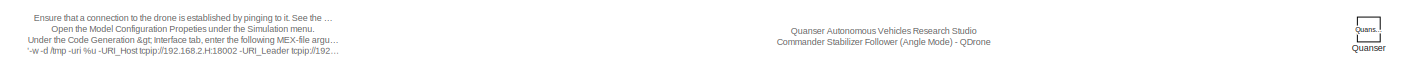
[diagram: root canvas - part 1/3, top center region]
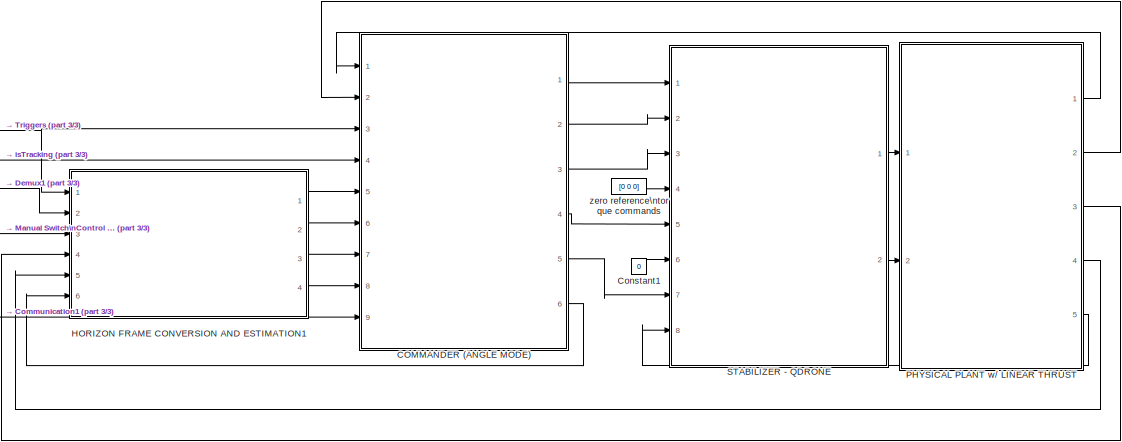
[diagram: root canvas - part 2/3, right side, full height]
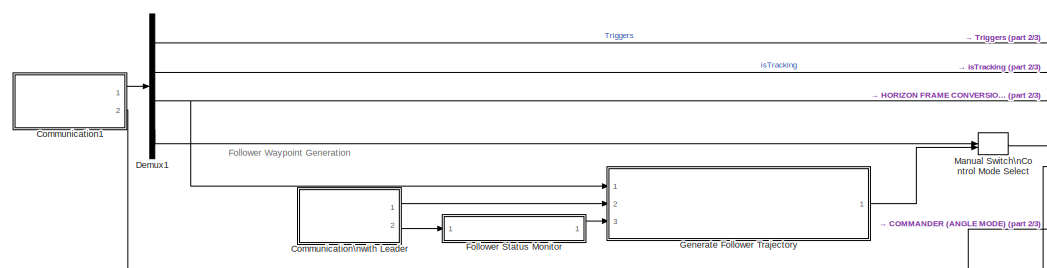
[diagram: root canvas - part 3/3, middle left region]
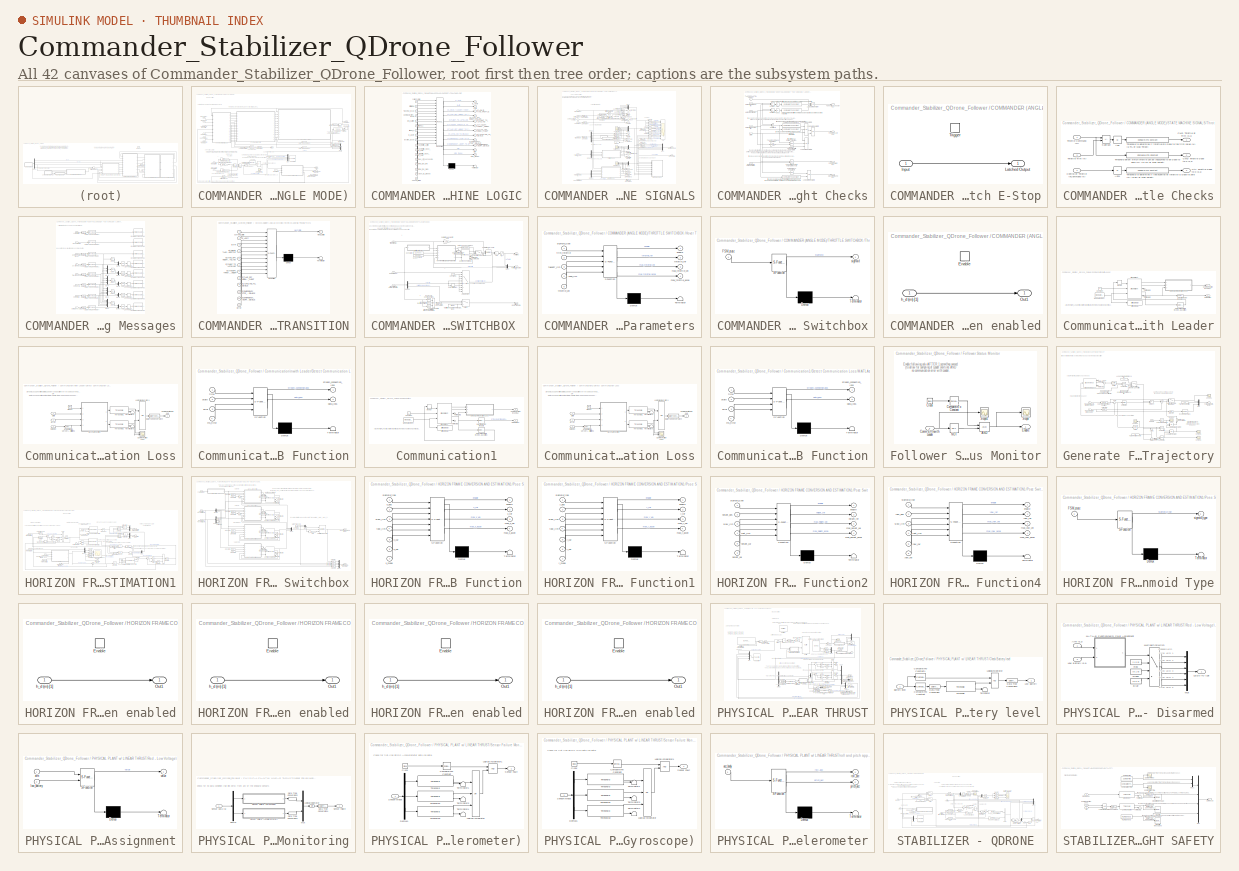
[diagram: thumbnail index - all 42 canvases of the model, root first then tree order]
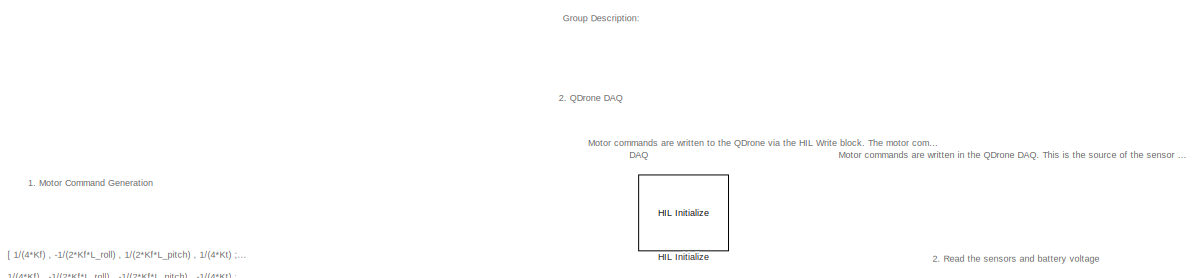
[diagram: PHYSICAL PLANT w/ LINEAR THRUST - part 1/3, full width, top band]
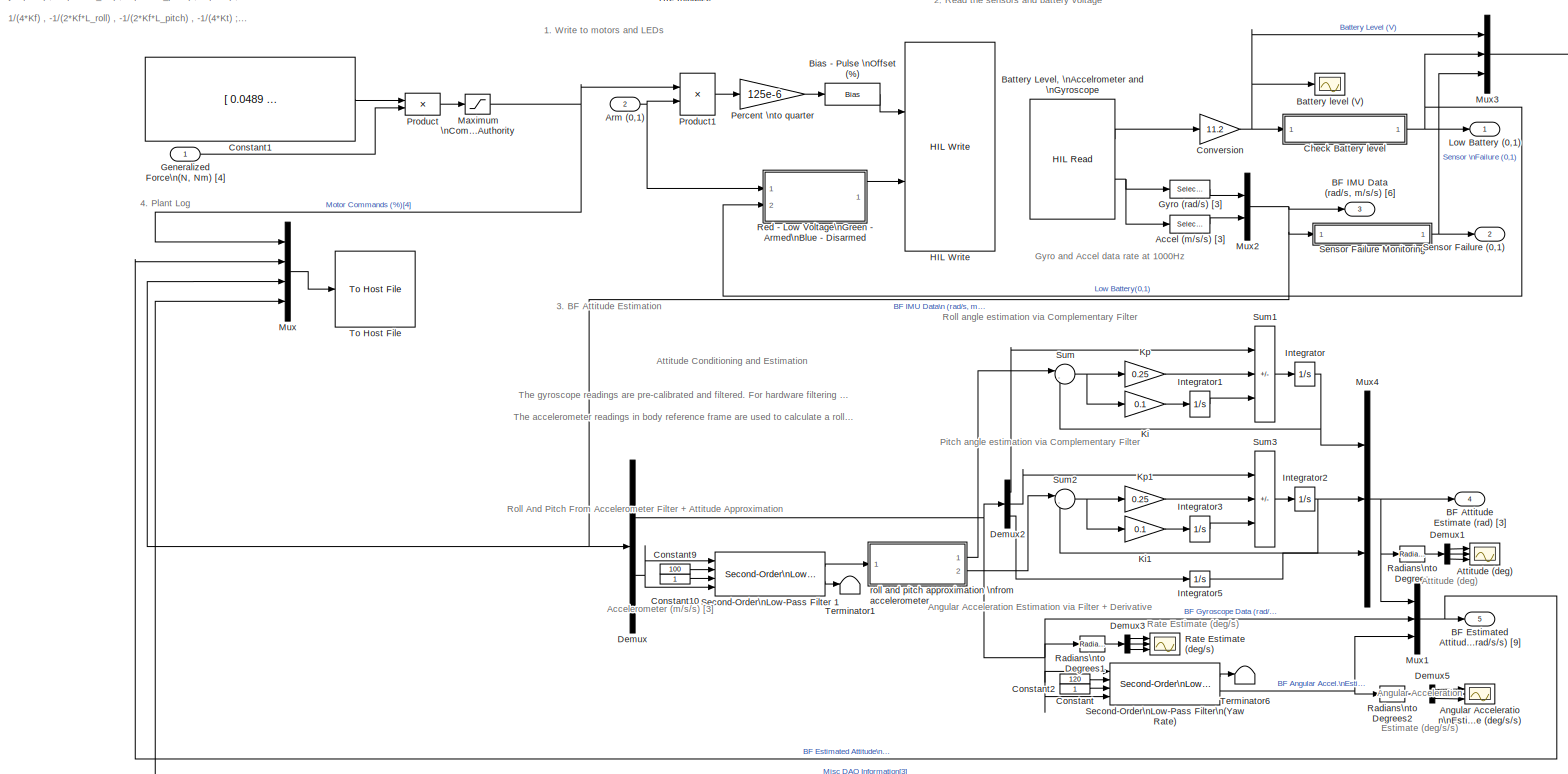
[diagram: PHYSICAL PLANT w/ LINEAR THRUST - part 2/3, full width, middle band]
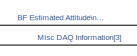
[diagram: PHYSICAL PLANT w/ LINEAR THRUST - part 3/3, bottom center region]
MODEL Commander_Stabilizer_QDrone_Follower
KIND model
CONFIG InitFcn = set_param(gcs, 'ZoomFactor','FitSystem')
BLOCK [SubSystem] COMMANDER (ANGLE MODE)
  Ports = [9, 6]
  RequestExecContextInheritance = off
  SID = 16132
BLOCK [Product] COMMANDER (ANGLE MODE)/ 
  Multiplication = Matrix(*)
  Ports = [2, 1]
  SID = 16142
BLOCK [Outport] COMMANDER (ANGLE MODE)/Arm (0,1)
  Port = 5
  SID = 16415
  VectorParamsAs1DForOutWhenUnconnected = off
BLOCK [Outport] COMMANDER (ANGLE MODE)/Attitude Commands (rad, rad//s) [3]
  Port = 4
  SID = 16414
  VectorParamsAs1DForOutWhenUnconnected = off
BLOCK [Inport] COMMANDER (ANGLE MODE)/Communication Issue (0,1)
  Port = 9
  SID = 16141
BLOCK [Constant] COMMANDER (ANGLE MODE)/Constant2
  SID = 16143
  Value = [0 0 1 0; 0 -1 0 0; 1 0 0 0; 0 0 0 1]
BLOCK [DataTypeConversion] COMMANDER (ANGLE MODE)/Data Type Conversion1
  RndMeth = Floor
  SID = 16144
  SaturateOnIntegerOverflow = off
BLOCK [DataTypeConversion] COMMANDER (ANGLE MODE)/Data Type Conversion2
  RndMeth = Floor
  SID = 16145
  SaturateOnIntegerOverflow = off
BLOCK [DataTypeConversion] COMMANDER (ANGLE MODE)/Data Type Conversion3
  RndMeth = Floor
  SID = 16146
  SaturateOnIntegerOverflow = off
BLOCK [DataTypeConversion] COMMANDER (ANGLE MODE)/Data Type Conversion4
  OutDataTypeStr = double
  RndMeth = Floor
  SID = 16147
  SaturateOnIntegerOverflow = off
BLOCK [DataTypeConversion] COMMANDER (ANGLE MODE)/Data Type Conversion5
  OutDataTypeStr = double
  RndMeth = Floor
  SID = 16148
  SaturateOnIntegerOverflow = off
BLOCK [DataTypeConversion] COMMANDER (ANGLE MODE)/Data Type Conversion6
  OutDataTypeStr = double
  RndMeth = Floor
  SID = 16149
  SaturateOnIntegerOverflow = off
BLOCK [Outport] COMMANDER (ANGLE MODE)/FSM State (0-9)
  Port = 6
  SID = 16416
  VectorParamsAs1DForOutWhenUnconnected = off
BLOCK [Scope] COMMANDER (ANGLE MODE)/Generalized \ncommands\n
  Floating = off
  NumInputPorts = 1
  Ports = [1]
  SID = 16150
  ScopeSpecificationString = Simulink.scopes.TimeScopeBlockCfg('CurrentConfiguration', extmgr.ConfigurationSet(extmgr.Configuration('Core','General UI',true),extmgr.Configuration('Core','Source UI',true),extmgr.Configuration('Sources','WiredSimulink',true,'DataLoggingVariableName','ScopeData1'),extmgr.Configuration('Visuals','Time Domain',true,'SerializedDisplays',{struct('MinYLimReal','-9.59108','MaxYLimReal','39.95456','YLa...<+1434ch>
BLOCK [Inport] COMMANDER (ANGLE MODE)/HF Pose Error \nEstimate (m, rad) [4]
  Port = 6
  SID = 16138
BLOCK [Inport] COMMANDER (ANGLE MODE)/HF Pose Rate \nEstimate (m, rad) [4]
  Port = 5
  SID = 16137
BLOCK [Inport] COMMANDER (ANGLE MODE)/Heigh Signals Check (m) [4]
  Port = 7
  SID = 16139
BLOCK [Inport] COMMANDER (ANGLE MODE)/IF Pose Info (m,rad)
  Port = 8
  SID = 16140
BLOCK [Integrator] COMMANDER (ANGLE MODE)/Integrator1
  ExternalReset = rising
  LimitOutput = on
  LowerSaturationLimit = [-0.26 -0.33 -15 -0.05].*0.75
  Ports = [2, 1]
  SID = 16151
  UpperSaturationLimit = [0.26 0.33 15 0.05].*0.75
BLOCK [Gain] COMMANDER (ANGLE MODE)/Kd (rad // m//s, rad // m//s, N // m//s, rad//s // rad//s)
  Gain = [pi/2 2*pi/3 28 4]
  SID = 16152
BLOCK [Gain] COMMANDER (ANGLE MODE)/Ki (rad s // m, rad s // m, N s//m, rad//s // rad//s)
  Gain = [0 0 6 0]
  SID = 16153
BLOCK [Gain] COMMANDER (ANGLE MODE)/Kp (rad // m, rad // m, N // m, rad//s // rad)
  Gain = [pi/2 pi/2 35.0 15]
  SID = 16154
BLOCK [Logic] COMMANDER (ANGLE MODE)/Logical\nOperator1
  AllPortsSameDT = off
  OutDataTypeStr = boolean
  Ports = [2, 1]
  SID = 16155
BLOCK [Logic] COMMANDER (ANGLE MODE)/Logical\nOperator2
  AllPortsSameDT = off
  Operator = NOT
  OutDataTypeStr = boolean
  Ports = [1, 1]
  SID = 16156
BLOCK [Inport] COMMANDER (ANGLE MODE)/Low Battery (0,1)
  SID = 16133
BLOCK [Memory] COMMANDER (ANGLE MODE)/Memory
  InitialCondition = 1
  NameLocation = top
  SID = 16157
BLOCK [Outport] COMMANDER (ANGLE MODE)/Mode
  SID = 16411
  VectorParamsAs1DForOutWhenUnconnected = off
BLOCK [Mux] COMMANDER (ANGLE MODE)/Mux
  DisplayOption = bar
  Ports = [4, 1]
  SID = 16158
BLOCK [Mux] COMMANDER (ANGLE MODE)/Mux8
  DisplayOption = bar
  Inputs = [17 1 1 1]
  Ports = [4, 1]
  SID = 16159
BLOCK [Reference] COMMANDER (ANGLE MODE)/Reset when starting\nto takeoff  REF=simulink/Logic and Bit\nOperations/Compare\nTo Constant
  OutDataTypeStr = boolean
  Ports = [1, 1]
  RTWMemSecDataConstants = Inherit from model
  RTWMemSecDataInternal = Inherit from model
  RTWMemSecDataParameters = Inherit from model
  RTWMemSecFuncExecute = Inherit from model
  RTWMemSecFuncInitTerm = Inherit from model
  SID = 16160
  SourceBlock = simulink/Logic and Bit\nOperations/Compare\nTo Constant
  SourceProductBaseCode = SL
  SourceType = Compare To Constant
  ZeroCross = on
  const = 4
  relop = ==
BLOCK [SubSystem] COMMANDER (ANGLE MODE)/STATE MACHINE LOGIC
  ErrorFcn = Stateflow.Translate.translate
  NameLocation = top
  PermitHierarchicalResolution = ExplicitOnly
  Ports = [17, 12]
  RequestExecContextInheritance = off
  SFBlockType = MATLAB Function
  SID = 16161
  TreatAsAtomicUnit = on
BLOCK [Demux] COMMANDER (ANGLE MODE)/STATE MACHINE LOGIC/ Demux 
  Outputs = 1
  Ports = [1, 1]
  SID = 16161::153
BLOCK [S-Function] COMMANDER (ANGLE MODE)/STATE MACHINE LOGIC/ SFunction 
  EnableBusSupport = off
  FunctionName = sf_sfun
  PortCounts = [17 13]
  Ports = [17, 13]
  SFcnIsStateOwnerBlock = off
  SFunctionDeploymentMode = off
  SID = 16161::152
  Tag = Stateflow S-Function 3
BLOCK [Terminator] COMMANDER (ANGLE MODE)/STATE MACHINE LOGIC/ Terminator 
  SID = 16161::154
BLOCK [Inport] COMMANDER (ANGLE MODE)/STATE MACHINE LOGIC/Communication_Issue
  Port = 4
  SID = 16161::93
BLOCK [Outport] COMMANDER (ANGLE MODE)/STATE MACHINE LOGIC/E_Abort
  SID = 16161::48
  VectorParamsAs1DForOutWhenUnconnected = off
BLOCK [Inport] COMMANDER (ANGLE MODE)/STATE MACHINE LOGIC/E_abort
  Port = 8
  SID = 16161::49
BLOCK [Outport] COMMANDER (ANGLE MODE)/STATE MACHINE LOGIC/Error
  Port = 11
  SID = 16161::5
  VectorParamsAs1DForOutWhenUnconnected = off
BLOCK [Inport] COMMANDER (ANGLE MODE)/STATE MACHINE LOGIC/Tracking_Issue
  Port = 3
  SID = 16161::31
BLOCK [Inport] COMMANDER (ANGLE MODE)/STATE MACHINE LOGIC/close_to_ground
  Port = 16
  SID = 16161::43
BLOCK [Inport] COMMANDER (ANGLE MODE)/STATE MACHINE LOGIC/ctrl_throttle_close_to_zero
  Port = 12
  SID = 16161::50
BLOCK [Inport] COMMANDER (ANGLE MODE)/STATE MACHINE LOGIC/current_state
  SID = 16161::19
BLOCK [Inport] COMMANDER (ANGLE MODE)/STATE MACHINE LOGIC/flying_too_high
  Port = 15
  SID = 16161::42
BLOCK [Inport] COMMANDER (ANGLE MODE)/STATE MACHINE LOGIC/flying_too_low
  Port = 14
  SID = 16161::41
BLOCK [Inport] COMMANDER (ANGLE MODE)/STATE MACHINE LOGIC/initializing
  Port = 2
  SID = 16161::20
BLOCK [Outport] COMMANDER (ANGLE MODE)/STATE MACHINE LOGIC/isArm
  Port = 2
  SID = 16161::59
  VectorParamsAs1DForOutWhenUnconnected = off
BLOCK [Inport] COMMANDER (ANGLE MODE)/STATE MACHINE LOGIC/joystick_issue
  Port = 9
  SID = 16161::94
BLOCK [Inport] COMMANDER (ANGLE MODE)/STATE MACHINE LOGIC/low_battery
  Port = 5
  SID = 16161::21
BLOCK [Inport] COMMANDER (ANGLE MODE)/STATE MACHINE LOGIC/net_throttle_at_trim
  Port = 10
  SID = 16161::34
BLOCK [Inport] COMMANDER (ANGLE MODE)/STATE MACHINE LOGIC/net_throttle_close_to_zero
  Port = 11
  SID = 16161::35
BLOCK [Outport] COMMANDER (ANGLE MODE)/STATE MACHINE LOGIC/pt_ARM_to_TAKEOFF_THROTTLE
  Port = 3
  SID = 16161::60
  VectorParamsAs1DForOutWhenUnconnected = off
BLOCK [Outport] COMMANDER (ANGLE MODE)/STATE MACHINE LOGIC/pt_AUTOLAND_TO_DISABLE
  Port = 8
  SID = 16161::36
  VectorParamsAs1DForOutWhenUnconnected = off
BLOCK [Outport] COMMANDER (ANGLE MODE)/STATE MACHINE LOGIC/pt_EMERGENCY_ABORT_TO_DISABLE
  Port = 10
  SID = 16161::38
  VectorParamsAs1DForOutWhenUnconnected = off
BLOCK [Outport] COMMANDER (ANGLE MODE)/STATE MACHINE LOGIC/pt_EMERGENCY_STOP_TO_DISABLE
  Port = 9
  SID = 16161::37
  VectorParamsAs1DForOutWhenUnconnected = off
BLOCK [Outport] COMMANDER (ANGLE MODE)/STATE MACHINE LOGIC/pt_FLIGHT_TO_AUTOLAND
  Port = 5
  SID = 16161::62
  VectorParamsAs1DForOutWhenUnconnected = off
BLOCK [Outport] COMMANDER (ANGLE MODE)/STATE MACHINE LOGIC/pt_TAKEOFF_THROTTLE_TO_TAKEOFF_HEIGHT
  Port = 6
  SID = 16161::26
  VectorParamsAs1DForOutWhenUnconnected = off
BLOCK [Outport] COMMANDER (ANGLE MODE)/STATE MACHINE LOGIC/pt_TAKE_OFF_HEIGHT_TO_AUTOLAND
  Port = 4
  SID = 16161::61
  VectorParamsAs1DForOutWhenUnconnected = off
BLOCK [Outport] COMMANDER (ANGLE MODE)/STATE MACHINE LOGIC/pt_TAKE_OFF_HEIGHT_TO_FLIGHT
  Port = 7
  SID = 16161::33
  VectorParamsAs1DForOutWhenUnconnected = off
BLOCK [Inport] COMMANDER (ANGLE MODE)/STATE MACHINE LOGIC/sensor_failed
  Port = 17
  SID = 16161::52
BLOCK [Outport] COMMANDER (ANGLE MODE)/STATE MACHINE LOGIC/stop_model
  Port = 12
  SID = 16161::44
  VectorParamsAs1DForOutWhenUnconnected = off
BLOCK [Inport] COMMANDER (ANGLE MODE)/STATE MACHINE LOGIC/take_off_successful
  Port = 13
  SID = 16161::40
BLOCK [Inport] COMMANDER (ANGLE MODE)/STATE MACHINE LOGIC/trigger_1
  Port = 6
  SID = 16161::22
BLOCK [Inport] COMMANDER (ANGLE MODE)/STATE MACHINE LOGIC/trigger_2
  Port = 7
  SID = 16161::23
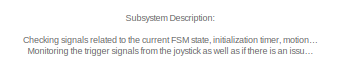
[diagram: COMMANDER (ANGLE MODE)/STATE MACHINE SIGNALS - part 1/3, top left region]
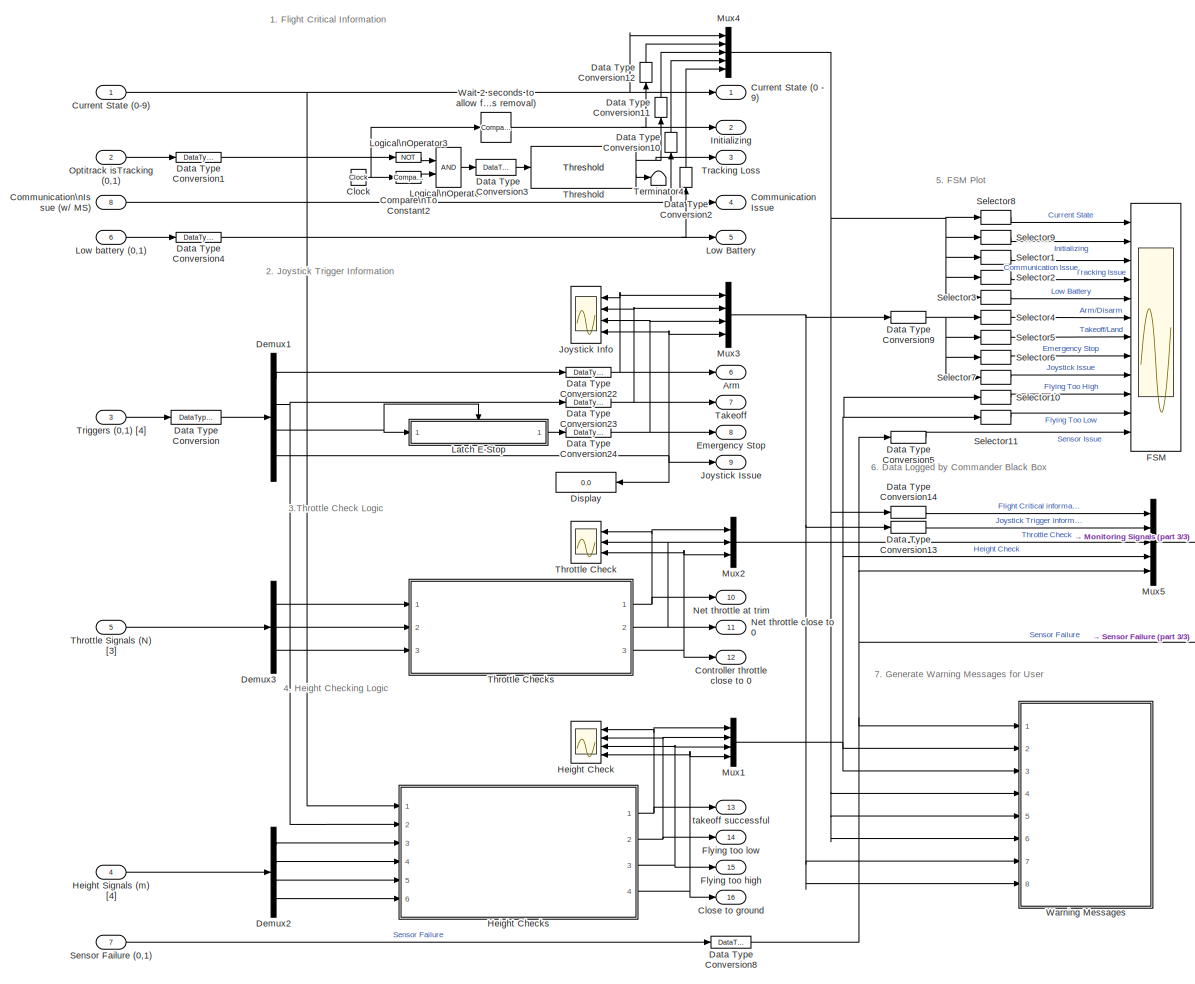
[diagram: COMMANDER (ANGLE MODE)/STATE MACHINE SIGNALS - part 2/3, most of the canvas]
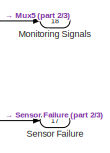
[diagram: COMMANDER (ANGLE MODE)/STATE MACHINE SIGNALS - part 3/3, middle right region]
BLOCK [SubSystem] COMMANDER (ANGLE MODE)/STATE MACHINE SIGNALS
  NameLocation = top
  Ports = [8, 18]
  RequestExecContextInheritance = off
  SID = 16162
BLOCK [Outport] COMMANDER (ANGLE MODE)/STATE MACHINE SIGNALS/  Sensor Failure
  Port = 17
  SID = 16348
  VectorParamsAs1DForOutWhenUnconnected = off
BLOCK [Outport] COMMANDER (ANGLE MODE)/STATE MACHINE SIGNALS/Arm
  Port = 6
  SID = 16337
  VectorParamsAs1DForOutWhenUnconnected = off
BLOCK [Clock] COMMANDER (ANGLE MODE)/STATE MACHINE SIGNALS/Clock
  SID = 16171
BLOCK [Outport] COMMANDER (ANGLE MODE)/STATE MACHINE SIGNALS/Close to ground
  Port = 16
  SID = 16347
  VectorParamsAs1DForOutWhenUnconnected = off
BLOCK [Outport] COMMANDER (ANGLE MODE)/STATE MACHINE SIGNALS/Communication Issue
  Port = 4
  SID = 16335
  VectorParamsAs1DForOutWhenUnconnected = off
BLOCK [Inport] COMMANDER (ANGLE MODE)/STATE MACHINE SIGNALS/Communication\nIssue (w// MS)
  Port = 8
  SID = 16170
BLOCK [Reference] COMMANDER (ANGLE MODE)/STATE MACHINE SIGNALS/Compare\nTo Constant2  REF=simulink/Logic and Bit\nOperations/Compare\nTo Constant
  OutDataTypeStr = boolean
  Ports = [1, 1]
  RTWMemSecDataConstants = Inherit from model
  RTWMemSecDataInternal = Inherit from model
  RTWMemSecDataParameters = Inherit from model
  RTWMemSecFuncExecute = Inherit from model
  RTWMemSecFuncInitTerm = Inherit from model
  SID = 16172
  SourceBlock = simulink/Logic and Bit\nOperations/Compare\nTo Constant
  SourceProductBaseCode = SL
  SourceType = Compare To Constant
  ZeroCross = on
  const = 1
  relop = >
BLOCK [Outport] COMMANDER (ANGLE MODE)/STATE MACHINE SIGNALS/Controller throttle close to 0
  Port = 12
  SID = 16343
  VectorParamsAs1DForOutWhenUnconnected = off
BLOCK [Outport] COMMANDER (ANGLE MODE)/STATE MACHINE SIGNALS/Current State (0 - 9)  
  SID = 16332
  VectorParamsAs1DForOutWhenUnconnected = off
BLOCK [Inport] COMMANDER (ANGLE MODE)/STATE MACHINE SIGNALS/Current State (0-9)
  SID = 16163
BLOCK [DataTypeConversion] COMMANDER (ANGLE MODE)/STATE MACHINE SIGNALS/Data Type Conversion
  RndMeth = Floor
  SID = 16173
  SaturateOnIntegerOverflow = off
BLOCK [DataTypeConversion] COMMANDER (ANGLE MODE)/STATE MACHINE SIGNALS/Data Type Conversion1
  RndMeth = Floor
  SID = 16174
  SaturateOnIntegerOverflow = off
BLOCK [DataTypeConversion] COMMANDER (ANGLE MODE)/STATE MACHINE SIGNALS/Data Type Conversion10
  NameLocation = right
  RndMeth = Floor
  SID = 16175
  SaturateOnIntegerOverflow = off
BLOCK [DataTypeConversion] COMMANDER (ANGLE MODE)/STATE MACHINE SIGNALS/Data Type Conversion11
  NameLocation = right
  RndMeth = Floor
  SID = 16176
  SaturateOnIntegerOverflow = off
BLOCK [DataTypeConversion] COMMANDER (ANGLE MODE)/STATE MACHINE SIGNALS/Data Type Conversion12
  NameLocation = right
  OutDataTypeStr = double
  RndMeth = Floor
  SID = 16177
  SaturateOnIntegerOverflow = off
BLOCK [DataTypeConversion] COMMANDER (ANGLE MODE)/STATE MACHINE SIGNALS/Data Type Conversion13
  RndMeth = Floor
  SID = 16178
  SaturateOnIntegerOverflow = off
BLOCK [DataTypeConversion] COMMANDER (ANGLE MODE)/STATE MACHINE SIGNALS/Data Type Conversion14
  RndMeth = Floor
  SID = 16179
  SaturateOnIntegerOverflow = off
BLOCK [DataTypeConversion] COMMANDER (ANGLE MODE)/STATE MACHINE SIGNALS/Data Type Conversion2
  NameLocation = right
  RndMeth = Floor
  SID = 16180
  SaturateOnIntegerOverflow = off
BLOCK [DataTypeConversion] COMMANDER (ANGLE MODE)/STATE MACHINE SIGNALS/Data Type Conversion22
  OutDataTypeStr = boolean
  RndMeth = Floor
  SID = 16181
  SaturateOnIntegerOverflow = off
BLOCK [DataTypeConversion] COMMANDER (ANGLE MODE)/STATE MACHINE SIGNALS/Data Type Conversion23
  OutDataTypeStr = boolean
  RndMeth = Floor
  SID = 16182
  SaturateOnIntegerOverflow = off
BLOCK [DataTypeConversion] COMMANDER (ANGLE MODE)/STATE MACHINE SIGNALS/Data Type Conversion24
  OutDataTypeStr = boolean
  RndMeth = Floor
  SID = 16183
  SaturateOnIntegerOverflow = off
BLOCK [DataTypeConversion] COMMANDER (ANGLE MODE)/STATE MACHINE SIGNALS/Data Type Conversion3
  RndMeth = Floor
  SID = 16184
  SaturateOnIntegerOverflow = off
BLOCK [DataTypeConversion] COMMANDER (ANGLE MODE)/STATE MACHINE SIGNALS/Data Type Conversion4
  OutDataTypeStr = boolean
  RndMeth = Floor
  SID = 16185
  SaturateOnIntegerOverflow = off
BLOCK [DataTypeConversion] COMMANDER (ANGLE MODE)/STATE MACHINE SIGNALS/Data Type Conversion5
  RndMeth = Floor
  SID = 16186
  SaturateOnIntegerOverflow = off
BLOCK [DataTypeConversion] COMMANDER (ANGLE MODE)/STATE MACHINE SIGNALS/Data Type Conversion8
  RndMeth = Floor
  SID = 16187
  SaturateOnIntegerOverflow = off
BLOCK [DataTypeConversion] COMMANDER (ANGLE MODE)/STATE MACHINE SIGNALS/Data Type Conversion9
  RndMeth = Floor
  SID = 16188
  SaturateOnIntegerOverflow = off
BLOCK [Demux] COMMANDER (ANGLE MODE)/STATE MACHINE SIGNALS/Demux1
  Outputs = [1 1 1 1]
  Ports = [1, 4]
  SID = 16189
BLOCK [Demux] COMMANDER (ANGLE MODE)/STATE MACHINE SIGNALS/Demux2
  Ports = [1, 4]
  SID = 16190
BLOCK [Demux] COMMANDER (ANGLE MODE)/STATE MACHINE SIGNALS/Demux3
  Outputs = 3
  Ports = [1, 3]
  SID = 16191
BLOCK [Display] COMMANDER (ANGLE MODE)/STATE MACHINE SIGNALS/Display
  Decimation = 1
  Ports = [1]
  SID = 16192
BLOCK [Outport] COMMANDER (ANGLE MODE)/STATE MACHINE SIGNALS/Emergency Stop
  Port = 8
  SID = 16339
  VectorParamsAs1DForOutWhenUnconnected = off
BLOCK [Scope] COMMANDER (ANGLE MODE)/STATE MACHINE SIGNALS/FSM
  Floating = off
  NumInputPorts = 12
  Ports = [12]
  SID = 16193
  ScopeSpecificationString = Simulink.scopes.TimeScopeBlockCfg('CurrentConfiguration', extmgr.ConfigurationSet(extmgr.Configuration('Core','General UI',true),extmgr.Configuration('Core','Source UI',true),extmgr.Configuration('Sources','WiredSimulink',true,'DataLoggingVariableName','ScopeData1'),extmgr.Configuration('Visuals','Time Domain',true,'SerializedDisplays',{struct('MinYLimReal','0.00000','MaxYLimReal','10.00000','YLab...<+9406ch>
BLOCK [Outport] COMMANDER (ANGLE MODE)/STATE MACHINE SIGNALS/Flying too high
  Port = 15
  SID = 16346
  VectorParamsAs1DForOutWhenUnconnected = off
BLOCK [Outport] COMMANDER (ANGLE MODE)/STATE MACHINE SIGNALS/Flying too low
  Port = 14
  SID = 16345
  VectorParamsAs1DForOutWhenUnconnected = off
BLOCK [Scope] COMMANDER (ANGLE MODE)/STATE MACHINE SIGNALS/Height Check 
  Floating = off
  NumInputPorts = 4
  Ports = [4]
  SID = 16194
  ScopeSpecificationString = Simulink.scopes.TimeScopeBlockCfg('CurrentConfiguration', extmgr.ConfigurationSet(extmgr.Configuration('Core','General UI',true),extmgr.Configuration('Core','Source UI',true),extmgr.Configuration('Sources','WiredSimulink',true,'DataLoggingVariableName','ScopeData3'),extmgr.Configuration('Visuals','Time Domain',true,'SerializedDisplays',{struct('MinYLimReal','-1.00000','MaxYLimReal','1.00000','YLab...<+3397ch>
BLOCK [SubSystem] COMMANDER (ANGLE MODE)/STATE MACHINE SIGNALS/Height Checks
  Ports = [6, 4]
  RequestExecContextInheritance = off
  SID = 16195
BLOCK [Reference] COMMANDER (ANGLE MODE)/STATE MACHINE SIGNALS/Height Checks/...the measured height is less than 0.15m...  REF=simulink/Logic and Bit\nOperations/Compare\nTo Constant
  OutDataTypeStr = boolean
  Ports = [1, 1]
  RTWMemSecDataConstants = Inherit from model
  RTWMemSecDataInternal = Inherit from model
  RTWMemSecDataParameters = Inherit from model
  RTWMemSecFuncExecute = Inherit from model
  RTWMemSecFuncInitTerm = Inherit from model
  SID = 16202
  SourceBlock = simulink/Logic and Bit\nOperations/Compare\nTo Constant
  SourceProductBaseCode = SL
  SourceType = Compare To Constant
  ZeroCross = on
  const = 0.15
  relop = <=
BLOCK [Gain] COMMANDER (ANGLE MODE)/STATE MACHINE SIGNALS/Height Checks/75% of \nCommanded Height
  Gain = 0.75
  NameLocation = top
  SID = 16203
BLOCK [Abs] COMMANDER (ANGLE MODE)/STATE MACHINE SIGNALS/Height Checks/Abs
  SID = 16204
  SaturateOnIntegerOverflow = off
BLOCK [Abs] COMMANDER (ANGLE MODE)/STATE MACHINE SIGNALS/Height Checks/Abs1
  SID = 16205
  SaturateOnIntegerOverflow = off
BLOCK [Outport] COMMANDER (ANGLE MODE)/STATE MACHINE SIGNALS/Height Checks/Close to ground (0,1)
  Port = 4
  SID = 16226
  VectorParamsAs1DForOutWhenUnconnected = off
BLOCK [Reference] COMMANDER (ANGLE MODE)/STATE MACHINE SIGNALS/Height Checks/Compare\nTo Constant1  REF=simulink/Logic and Bit\nOperations/Compare\nTo Constant
  OutDataTypeStr = boolean
  Ports = [1, 1]
  RTWMemSecDataConstants = Inherit from model
  RTWMemSecDataInternal = Inherit from model
  RTWMemSecDataParameters = Inherit from model
  RTWMemSecFuncExecute = Inherit from model
  RTWMemSecFuncInitTerm = Inherit from model
  SID = 16206
  SourceBlock = simulink/Logic and Bit\nOperations/Compare\nTo Constant
  SourceProductBaseCode = SL
  SourceType = Compare To Constant
  ZeroCross = on
  const = 6
  relop = >=
BLOCK [Reference] COMMANDER (ANGLE MODE)/STATE MACHINE SIGNALS/Height Checks/Flight State  REF=simulink/Logic and Bit\nOperations/Compare\nTo Constant
  OutDataTypeStr = boolean
  Ports = [1, 1]
  RTWMemSecDataConstants = Inherit from model
  RTWMemSecDataInternal = Inherit from model
  RTWMemSecDataParameters = Inherit from model
  RTWMemSecFuncExecute = Inherit from model
  RTWMemSecFuncInitTerm = Inherit from model
  SID = 16207
  SourceBlock = simulink/Logic and Bit\nOperations/Compare\nTo Constant
  SourceProductBaseCode = SL
  SourceType = Compare To Constant
  ZeroCross = on
  const = 5
  relop = ==
BLOCK [Outport] COMMANDER (ANGLE MODE)/STATE MACHINE SIGNALS/Height Checks/Flying too High (0,1)
  Port = 3
  SID = 16225
  VectorParamsAs1DForOutWhenUnconnected = off
BLOCK [Outport] COMMANDER (ANGLE MODE)/STATE MACHINE SIGNALS/Height Checks/Flying too Low (0,1l)
  Port = 2
  SID = 16224
  VectorParamsAs1DForOutWhenUnconnected = off
BLOCK [Inport] COMMANDER (ANGLE MODE)/STATE MACHINE SIGNALS/Height Checks/Height Command (m)
  Port = 3
  SID = 16198
BLOCK [Inport] COMMANDER (ANGLE MODE)/STATE MACHINE SIGNALS/Height Checks/Height Safety Threshold (m)
  Port = 5
  SID = 16200
BLOCK [Inport] COMMANDER (ANGLE MODE)/STATE MACHINE SIGNALS/Height Checks/Height desired (m)
  Port = 6
  SID = 16201
BLOCK [Inport] COMMANDER (ANGLE MODE)/STATE MACHINE SIGNALS/Height Checks/Height measured (m)
  Port = 4
  SID = 16199
BLOCK [Reference] COMMANDER (ANGLE MODE)/STATE MACHINE SIGNALS/Height Checks/If the difference between the measured \nand commanded height is greater than \n75% of the commanded height during...  REF=quarc_library/Logic Operations/Compare
  MultiThreadCoSim = auto
  NameLocation = top
  Ports = [2, 1]
  SID = 16208
  SourceBlock = quarc_library/Logic Operations/Compare
  SourceProductName = QUARC Targets
  SourceType = Compare
  operator = >=
  output_data_type = boolean
BLOCK [Reference] COMMANDER (ANGLE MODE)/STATE MACHINE SIGNALS/Height Checks/If the drone is at or below this height (m), \nthen the drone has landed\nNOTE - minimum height to be considered flying is 0.15m     REF=simulink/Logic and Bit\nOperations/Compare\nTo Constant
  OutDataTypeStr = boolean
  Ports = [1, 1]
  RTWMemSecDataConstants = Inherit from model
  RTWMemSecDataInternal = Inherit from model
  RTWMemSecDataParameters = Inherit from model
  RTWMemSecFuncExecute = Inherit from model
  RTWMemSecFuncInitTerm = Inherit from model
  SID = 16209
  SourceBlock = simulink/Logic and Bit\nOperations/Compare\nTo Constant
  SourceProductBaseCode = SL
  SourceType = Compare To Constant
  ZeroCross = on
  const = 0.05
  relop = <=
BLOCK [Reference] COMMANDER (ANGLE MODE)/STATE MACHINE SIGNALS/Height Checks/If the measured height is more than\n0.2 m below the commanded height and...  REF=simulink/Logic and Bit\nOperations/Compare\nTo Constant
  NameLocation = top
  OutDataTypeStr = boolean
  Ports = [1, 1]
  RTWMemSecDataConstants = Inherit from model
  RTWMemSecDataInternal = Inherit from model
  RTWMemSecDataParameters = Inherit from model
  RTWMemSecFuncExecute = Inherit from model
  RTWMemSecFuncInitTerm = Inherit from model
  SID = 16210
  SourceBlock = simulink/Logic and Bit\nOperations/Compare\nTo Constant
  SourceProductBaseCode = SL
  SourceType = Compare To Constant
  ZeroCross = on
  const = 0.20
  relop = >=
BLOCK [Logic] COMMANDER (ANGLE MODE)/STATE MACHINE SIGNALS/Height Checks/Logical\nOperator
  AllPortsSameDT = off
  Inputs = 3
  OutDataTypeStr = boolean
  Ports = [3, 1]
  SID = 16211
BLOCK [Logic] COMMANDER (ANGLE MODE)/STATE MACHINE SIGNALS/Height Checks/Logical\nOperator1
  AllPortsSameDT = off
  Inputs = 3
  OutDataTypeStr = boolean
  Ports = [3, 1]
  SID = 16212
BLOCK [Logic] COMMANDER (ANGLE MODE)/STATE MACHINE SIGNALS/Height Checks/Logical\nOperator2
  AllPortsSameDT = off
  Operator = OR
  OutDataTypeStr = boolean
  Ports = [2, 1]
  SID = 16213
BLOCK [Logic] COMMANDER (ANGLE MODE)/STATE MACHINE SIGNALS/Height Checks/Logical\nOperator3
  AllPortsSameDT = off
  OutDataTypeStr = boolean
  Ports = [2, 1]
  SID = 16214
BLOCK [Logic] COMMANDER (ANGLE MODE)/STATE MACHINE SIGNALS/Height Checks/Logical\nOperator4
  AllPortsSameDT = off
  Inputs = 3
  OutDataTypeStr = boolean
  Ports = [3, 1]
  SID = 16215
BLOCK [Inport] COMMANDER (ANGLE MODE)/STATE MACHINE SIGNALS/Height Checks/State
  SID = 16196
BLOCK [Sum] COMMANDER (ANGLE MODE)/STATE MACHINE SIGNALS/Height Checks/Subtract
  IconShape = rectangular
  Inputs = +-
  Ports = [2, 1]
  SID = 16216
BLOCK [Sum] COMMANDER (ANGLE MODE)/STATE MACHINE SIGNALS/Height Checks/Subtract1
  IconShape = rectangular
  Inputs = +-
  Ports = [2, 1]
  SID = 16217
BLOCK [Sum] COMMANDER (ANGLE MODE)/STATE MACHINE SIGNALS/Height Checks/Subtract2
  IconShape = rectangular
  Inputs = +-
  Ports = [2, 1]
  SID = 16218
BLOCK [Inport] COMMANDER (ANGLE MODE)/STATE MACHINE SIGNALS/Height Checks/TAKEOFF//AUTOLAND (0,1)
  Port = 2
  SID = 16197
BLOCK [Reference] COMMANDER (ANGLE MODE)/STATE MACHINE SIGNALS/Height Checks/Takeoff Throttle Height State  REF=simulink/Logic and Bit\nOperations/Compare\nTo Constant
  OutDataTypeStr = boolean
  Ports = [1, 1]
  RTWMemSecDataConstants = Inherit from model
  RTWMemSecDataInternal = Inherit from model
  RTWMemSecDataParameters = Inherit from model
  RTWMemSecFuncExecute = Inherit from model
  RTWMemSecFuncInitTerm = Inherit from model
  SID = 16219
  SourceBlock = simulink/Logic and Bit\nOperations/Compare\nTo Constant
  SourceProductBaseCode = SL
  SourceType = Compare To Constant
  ZeroCross = on
  const = 4
  relop = ==
BLOCK [Outport] COMMANDER (ANGLE MODE)/STATE MACHINE SIGNALS/Height Checks/Takeoff successful (0,1)
  SID = 16223
  VectorParamsAs1DForOutWhenUnconnected = off
BLOCK [Reference] COMMANDER (ANGLE MODE)/STATE MACHINE SIGNALS/Height Checks/Threshold to detect if the commanded\nheight is close to the desired height (m)  REF=simulink/Logic and Bit\nOperations/Compare\nTo Constant
  OutDataTypeStr = boolean
  Ports = [1, 1]
  RTWMemSecDataConstants = Inherit from model
  RTWMemSecDataInternal = Inherit from model
  RTWMemSecDataParameters = Inherit from model
  RTWMemSecFuncExecute = Inherit from model
  RTWMemSecFuncInitTerm = Inherit from model
  SID = 16220
  SourceBlock = simulink/Logic and Bit\nOperations/Compare\nTo Constant
  SourceProductBaseCode = SL
  SourceType = Compare To Constant
  ZeroCross = on
  const = 0.1
  relop = <=
BLOCK [Reference] COMMANDER (ANGLE MODE)/STATE MACHINE SIGNALS/Height Checks/Threshold to detect if the drone is close\nto the commanded height (m)  REF=simulink/Logic and Bit\nOperations/Compare\nTo Constant
  OutDataTypeStr = boolean
  Ports = [1, 1]
  RTWMemSecDataConstants = Inherit from model
  RTWMemSecDataInternal = Inherit from model
  RTWMemSecDataParameters = Inherit from model
  RTWMemSecFuncExecute = Inherit from model
  RTWMemSecFuncInitTerm = Inherit from model
  SID = 16221
  SourceBlock = simulink/Logic and Bit\nOperations/Compare\nTo Constant
  SourceProductBaseCode = SL
  SourceType = Compare To Constant
  ZeroCross = on
  const = 0.1
  relop = <=
BLOCK [Reference] COMMANDER (ANGLE MODE)/STATE MACHINE SIGNALS/Height Checks/check if measured height\nexceeds maximum height safety threshold  REF=quarc_library/Logic Operations/Compare
  MultiThreadCoSim = auto
  Ports = [2, 1]
  SID = 16222
  SourceBlock = quarc_library/Logic Operations/Compare
  SourceProductName = QUARC Targets
  SourceType = Compare
  operator = >=
  output_data_type = boolean
BLOCK [Inport] COMMANDER (ANGLE MODE)/STATE MACHINE SIGNALS/Height Signals (m) [4]
  Port = 4
  SID = 16166
BLOCK [Outport] COMMANDER (ANGLE MODE)/STATE MACHINE SIGNALS/Initializing
  Port = 2
  SID = 16333
  VectorParamsAs1DForOutWhenUnconnected = off
BLOCK [Scope] COMMANDER (ANGLE MODE)/STATE MACHINE SIGNALS/Joystick Info
  Floating = off
  NumInputPorts = 4
  Ports = [4]
  SID = 16234
  ScopeSpecificationString = Simulink.scopes.TimeScopeBlockCfg('CurrentConfiguration', extmgr.ConfigurationSet(extmgr.Configuration('Core','General UI',true),extmgr.Configuration('Core','Source UI',true),extmgr.Configuration('Sources','WiredSimulink',true,'DataLoggingVariableName','ScopeData1'),extmgr.Configuration('Visuals','Time Domain',true,'SerializedDisplays',{struct('MinYLimReal','-10','MaxYLimReal','10','YLabelReal',''...<+3389ch>
BLOCK [Outport] COMMANDER (ANGLE MODE)/STATE MACHINE SIGNALS/Joystick Issue 
  Port = 9
  SID = 16340
  VectorParamsAs1DForOutWhenUnconnected = off
BLOCK [SubSystem] COMMANDER (ANGLE MODE)/STATE MACHINE SIGNALS/Latch E-Stop
  Ports = [1, 1, 0, 1]
  RequestExecContextInheritance = off
  SID = 16235
  TreatAsAtomicUnit = on
BLOCK [Inport] COMMANDER (ANGLE MODE)/STATE MACHINE SIGNALS/Latch E-Stop/Input
  SID = 16236
BLOCK [Outport] COMMANDER (ANGLE MODE)/STATE MACHINE SIGNALS/Latch E-Stop/Latched Output
  InitialOutput = 0
  SID = 16238
  VectorParamsAs1DForOutWhenUnconnected = off
BLOCK [TriggerPort] COMMANDER (ANGLE MODE)/STATE MACHINE SIGNALS/Latch E-Stop/Trigger
  Ports = []
  SID = 16237
  StatesWhenEnabling = held
  VariantControl = Variant
BLOCK [Logic] COMMANDER (ANGLE MODE)/STATE MACHINE SIGNALS/Logical\nOperator3
  AllPortsSameDT = off
  Operator = NOT
  OutDataTypeStr = boolean
  Ports = [1, 1]
  SID = 16239
BLOCK [Logic] COMMANDER (ANGLE MODE)/STATE MACHINE SIGNALS/Logical\nOperator4
  AllPortsSameDT = off
  OutDataTypeStr = boolean
  Ports = [2, 1]
  SID = 16240
BLOCK [Outport] COMMANDER (ANGLE MODE)/STATE MACHINE SIGNALS/Low Battery
  Port = 5
  SID = 16336
  VectorParamsAs1DForOutWhenUnconnected = off
BLOCK [Inport] COMMANDER (ANGLE MODE)/STATE MACHINE SIGNALS/Low battery (0,1)
  Port = 6
  SID = 16168
BLOCK [Outport] COMMANDER (ANGLE MODE)/STATE MACHINE SIGNALS/Monitoring Signals
  NameLocation = top
  Port = 18
  SID = 16349
  VectorParamsAs1DForOutWhenUnconnected = off
BLOCK [Mux] COMMANDER (ANGLE MODE)/STATE MACHINE SIGNALS/Mux1
  DisplayOption = bar
  Inputs = [1 1 1 1]
  NameLocation = top
  Ports = [4, 1]
  SID = 16241
BLOCK [Mux] COMMANDER (ANGLE MODE)/STATE MACHINE SIGNALS/Mux2
  DisplayOption = bar
  Inputs = [1 1 1]
  NameLocation = top
  Ports = [3, 1]
  SID = 16242
BLOCK [Mux] COMMANDER (ANGLE MODE)/STATE MACHINE SIGNALS/Mux3
  DisplayOption = bar
  Inputs = [1 1 1 1]
  NameLocation = top
  Ports = [4, 1]
  SID = 16243
BLOCK [Mux] COMMANDER (ANGLE MODE)/STATE MACHINE SIGNALS/Mux4
  DisplayOption = bar
  Inputs = [1 1 1 1 1]
  NameLocation = top
  Ports = [5, 1]
  SID = 16244
BLOCK [Mux] COMMANDER (ANGLE MODE)/STATE MACHINE SIGNALS/Mux5
  DisplayOption = bar
  Inputs = [5 4 3 4 1]
  NameLocation = top
  Ports = [5, 1]
  SID = 16245
BLOCK [Outport] COMMANDER (ANGLE MODE)/STATE MACHINE SIGNALS/Net throttle at trim
  Port = 10
  SID = 16341
  VectorParamsAs1DForOutWhenUnconnected = off
BLOCK [Outport] COMMANDER (ANGLE MODE)/STATE MACHINE SIGNALS/Net throttle close to 0
  Port = 11
  SID = 16342
  VectorParamsAs1DForOutWhenUnconnected = off
BLOCK [Inport] COMMANDER (ANGLE MODE)/STATE MACHINE SIGNALS/Optitrack isTracking (0,1)  
  Port = 2
  SID = 16164
BLOCK [Selector] COMMANDER (ANGLE MODE)/STATE MACHINE SIGNALS/Selector1
  IndexOptions = Index vector (dialog)
  Indices = 4
  InputPortWidth = 5
  OutputSizes = 1
  Ports = [1, 1]
  SID = 16246
BLOCK [Selector] COMMANDER (ANGLE MODE)/STATE MACHINE SIGNALS/Selector10
  IndexOptions = Index vector (dialog)
  Indices = 3
  InputPortWidth = 4
  OutputSizes = 1
  Ports = [1, 1]
  SID = 16247
BLOCK [Selector] COMMANDER (ANGLE MODE)/STATE MACHINE SIGNALS/Selector11
  IndexOptions = Index vector (dialog)
  Indices = 2
  InputPortWidth = 4
  OutputSizes = 1
  Ports = [1, 1]
  SID = 16248
BLOCK [Selector] COMMANDER (ANGLE MODE)/STATE MACHINE SIGNALS/Selector2
  IndexOptions = Index vector (dialog)
  Indices = 3
  InputPortWidth = 5
  OutputSizes = 1
  Ports = [1, 1]
  SID = 16249
BLOCK [Selector] COMMANDER (ANGLE MODE)/STATE MACHINE SIGNALS/Selector3
  IndexOptions = Index vector (dialog)
  Indices = 5
  InputPortWidth = 5
  OutputSizes = 1
  Ports = [1, 1]
  SID = 16250
BLOCK [Selector] COMMANDER (ANGLE MODE)/STATE MACHINE SIGNALS/Selector4
  IndexOptions = Index vector (dialog)
  Indices = 1
  InputPortWidth = 4
  OutputSizes = 1
  Ports = [1, 1]
  SID = 16251
BLOCK [Selector] COMMANDER (ANGLE MODE)/STATE MACHINE SIGNALS/Selector5
  IndexOptions = Index vector (dialog)
  Indices = 2
  InputPortWidth = 4
  OutputSizes = 1
  Ports = [1, 1]
  SID = 16252
BLOCK [Selector] COMMANDER (ANGLE MODE)/STATE MACHINE SIGNALS/Selector6
  IndexOptions = Index vector (dialog)
  Indices = 3
  InputPortWidth = 4
  OutputSizes = 1
  Ports = [1, 1]
  SID = 16253
BLOCK [Selector] COMMANDER (ANGLE MODE)/STATE MACHINE SIGNALS/Selector7
  IndexOptions = Index vector (dialog)
  Indices = 4
  InputPortWidth = 4
  OutputSizes = 1
  Ports = [1, 1]
  SID = 16254
BLOCK [Selector] COMMANDER (ANGLE MODE)/STATE MACHINE SIGNALS/Selector8
  IndexOptions = Index vector (dialog)
  Indices = 1
  InputPortWidth = 5
  OutputSizes = 1
  Ports = [1, 1]
  SID = 16255
BLOCK [Selector] COMMANDER (ANGLE MODE)/STATE MACHINE SIGNALS/Selector9
  IndexOptions = Index vector (dialog)
  Indices = 2
  InputPortWidth = 5
  OutputSizes = 1
  Ports = [1, 1]
  SID = 16256
BLOCK [Inport] COMMANDER (ANGLE MODE)/STATE MACHINE SIGNALS/Sensor Failure (0,1)
  Port = 7
  SID = 16169
BLOCK [Outport] COMMANDER (ANGLE MODE)/STATE MACHINE SIGNALS/Takeoff
  Port = 7
  SID = 16338
  VectorParamsAs1DForOutWhenUnconnected = off
BLOCK [Terminator] COMMANDER (ANGLE MODE)/STATE MACHINE SIGNALS/Terminator4
  SID = 16257
BLOCK [Reference] COMMANDER (ANGLE MODE)/STATE MACHINE SIGNALS/Threshold  REF=quarc_library/Discontinuities/Threshold
  Ports = [1, 2]
  RTWMemSecDataConstants = Inherit from model
  RTWMemSecDataInternal = Inherit from model
  RTWMemSecDataParameters = Inherit from model
  RTWMemSecFuncExecute = Inherit from model
  RTWMemSecFuncInitTerm = Inherit from model
  SID = 16258
  SourceBlock = quarc_library/Discontinuities/Threshold
  SourceProductName = QUARC Targets
  SourceType = Threshold
  duration = 0.2
  operator = >=
  param_src = Specify via dialog
  threshold = 0.5
BLOCK [Scope] COMMANDER (ANGLE MODE)/STATE MACHINE SIGNALS/Throttle Check
  Floating = off
  NumInputPorts = 3
  Ports = [3]
  SID = 16259
  ScopeSpecificationString = Simulink.scopes.TimeScopeBlockCfg('CurrentConfiguration', extmgr.ConfigurationSet(extmgr.Configuration('Core','General UI',true),extmgr.Configuration('Core','Source UI',true),extmgr.Configuration('Sources','WiredSimulink',true,'DataLoggingVariableName','ScopeData2'),extmgr.Configuration('Visuals','Time Domain',true,'SerializedDisplays',{struct('MinYLimReal','-0.125','MaxYLimReal','1.125','YLabelRe...<+2693ch>
BLOCK [SubSystem] COMMANDER (ANGLE MODE)/STATE MACHINE SIGNALS/Throttle Checks
  NameLocation = top
  Ports = [3, 3]
  RequestExecContextInheritance = off
  SID = 16260
BLOCK [Abs] COMMANDER (ANGLE MODE)/STATE MACHINE SIGNALS/Throttle Checks/Abs
  SID = 16264
  SaturateOnIntegerOverflow = off
BLOCK [Abs] COMMANDER (ANGLE MODE)/STATE MACHINE SIGNALS/Throttle Checks/Abs1
  SID = 16265
  SaturateOnIntegerOverflow = off
BLOCK [Outport] COMMANDER (ANGLE MODE)/STATE MACHINE SIGNALS/Throttle Checks/CMD Throttle at Trim (0,1)
  SID = 16270
  VectorParamsAs1DForOutWhenUnconnected = off
BLOCK [Outport] COMMANDER (ANGLE MODE)/STATE MACHINE SIGNALS/Throttle Checks/CMD Throttle close to 0 (0,1)
  Port = 2
  SID = 16271
  VectorParamsAs1DForOutWhenUnconnected = off
BLOCK [Inport] COMMANDER (ANGLE MODE)/STATE MACHINE SIGNALS/Throttle Checks/Controller Throttle \nCommand (N)
  Port = 2
  SID = 16262
BLOCK [Outport] COMMANDER (ANGLE MODE)/STATE MACHINE SIGNALS/Throttle Checks/Ctrl Throttle close to 0 (0,1)
  Port = 3
  SID = 16272
  VectorParamsAs1DForOutWhenUnconnected = off
BLOCK [Sum] COMMANDER (ANGLE MODE)/STATE MACHINE SIGNALS/Throttle Checks/Subtract
  IconShape = rectangular
  Inputs = +-
  Ports = [2, 1]
  SID = 16266
BLOCK [Reference] COMMANDER (ANGLE MODE)/STATE MACHINE SIGNALS/Throttle Checks/Threshold below which throttle can be \nassumed to be close to zero (N) (17.1% of Max Thrust)  REF=simulink/Logic and Bit\nOperations/Compare\nTo Constant
  OutDataTypeStr = boolean
  Ports = [1, 1]
  RTWMemSecDataConstants = Inherit from model
  RTWMemSecDataInternal = Inherit from model
  RTWMemSecDataParameters = Inherit from model
  RTWMemSecFuncExecute = Inherit from model
  RTWMemSecFuncInitTerm = Inherit from model
  SID = 16267
  SourceBlock = simulink/Logic and Bit\nOperations/Compare\nTo Constant
  SourceProductBaseCode = SL
  SourceType = Compare To Constant
  ZeroCross = on
  const = 3.5
  relop = <=
BLOCK [Reference] COMMANDER (ANGLE MODE)/STATE MACHINE SIGNALS/Throttle Checks/Threshold to determine if the\ncontroller throttle is close to zero (N) (6.8% of Max Thrust)  REF=simulink/Logic and Bit\nOperations/Compare\nTo Constant
  OutDataTypeStr = boolean
  Ports = [1, 1]
  RTWMemSecDataConstants = Inherit from model
  RTWMemSecDataInternal = Inherit from model
  RTWMemSecDataParameters = Inherit from model
  RTWMemSecFuncExecute = Inherit from model
  RTWMemSecFuncInitTerm = Inherit from model
  SID = 16268
  SourceBlock = simulink/Logic and Bit\nOperations/Compare\nTo Constant
  SourceProductBaseCode = SL
  SourceType = Compare To Constant
  ZeroCross = on
  const = 1.40
  relop = <=
BLOCK [Reference] COMMANDER (ANGLE MODE)/STATE MACHINE SIGNALS/Throttle Checks/Threshold to determine if throttle\nis close to the trim value (N) (3.4% of Max Thrust)  REF=simulink/Logic and Bit\nOperations/Compare\nTo Constant
  OutDataTypeStr = boolean
  Ports = [1, 1]
  RTWMemSecDataConstants = Inherit from model
  RTWMemSecDataInternal = Inherit from model
  RTWMemSecDataParameters = Inherit from model
  RTWMemSecFuncExecute = Inherit from model
  RTWMemSecFuncInitTerm = Inherit from model
  SID = 16269
  SourceBlock = simulink/Logic and Bit\nOperations/Compare\nTo Constant
  SourceProductBaseCode = SL
  SourceType = Compare To Constant
  ZeroCross = on
  const = 0.7
  relop = <=
BLOCK [Inport] COMMANDER (ANGLE MODE)/STATE MACHINE SIGNALS/Throttle Checks/Throttle Command (N)
  SID = 16261
BLOCK [Inport] COMMANDER (ANGLE MODE)/STATE MACHINE SIGNALS/Throttle Checks/Throttle Trim (N)
  Port = 3
  SID = 16263
BLOCK [Inport] COMMANDER (ANGLE MODE)/STATE MACHINE SIGNALS/Throttle Signals (N) [3]
  Port = 5
  SID = 16167
BLOCK [Outport] COMMANDER (ANGLE MODE)/STATE MACHINE SIGNALS/Tracking Loss
  Port = 3
  SID = 16334
  VectorParamsAs1DForOutWhenUnconnected = off
BLOCK [Inport] COMMANDER (ANGLE MODE)/STATE MACHINE SIGNALS/Triggers (0,1) [4]
  Port = 3
  SID = 16165
BLOCK [Reference] COMMANDER (ANGLE MODE)/STATE MACHINE SIGNALS/Wait 2 seconds to allow for initialization (e.g., bias removal)  REF=simulink/Logic and Bit\nOperations/Compare\nTo Constant
  NameLocation = top
  OutDataTypeStr = boolean
  Ports = [1, 1]
  RTWMemSecDataConstants = Inherit from model
  RTWMemSecDataInternal = Inherit from model
  RTWMemSecDataParameters = Inherit from model
  RTWMemSecFuncExecute = Inherit from model
  RTWMemSecFuncInitTerm = Inherit from model
  SID = 16273
  SourceBlock = simulink/Logic and Bit\nOperations/Compare\nTo Constant
  SourceProductBaseCode = SL
  SourceType = Compare To Constant
  ZeroCross = on
  const = 2
  relop = <=
BLOCK [SubSystem] COMMANDER (ANGLE MODE)/STATE MACHINE SIGNALS/Warning Messages
  Ports = [8]
  RequestExecContextInheritance = off
  SID = 16274
BLOCK [Logic] COMMANDER (ANGLE MODE)/STATE MACHINE SIGNALS/Warning Messages/AND2
  AllPortsSameDT = off
  Inputs = 1
  OutDataTypeStr = boolean
  Ports = [1, 1]
  SID = 16283
BLOCK [Logic] COMMANDER (ANGLE MODE)/STATE MACHINE SIGNALS/Warning Messages/AND3
  AllPortsSameDT = off
  Inputs = 1
  OutDataTypeStr = boolean
  Ports = [1, 1]
  SID = 16284
BLOCK [Logic] COMMANDER (ANGLE MODE)/STATE MACHINE SIGNALS/Warning Messages/AND4
  AllPortsSameDT = off
  Inputs = 1
  OutDataTypeStr = boolean
  Ports = [1, 1]
  SID = 16285
BLOCK [Logic] COMMANDER (ANGLE MODE)/STATE MACHINE SIGNALS/Warning Messages/AND5
  AllPortsSameDT = off
  Inputs = 1
  OutDataTypeStr = boolean
  Ports = [1, 1]
  SID = 16286
BLOCK [Logic] COMMANDER (ANGLE MODE)/STATE MACHINE SIGNALS/Warning Messages/AND6
  AllPortsSameDT = off
  Inputs = 1
  OutDataTypeStr = boolean
  Ports = [1, 1]
  SID = 16287
BLOCK [Inport] COMMANDER (ANGLE MODE)/STATE MACHINE SIGNALS/Warning Messages/Communication Issue
  Port = 5
  SID = 16279
BLOCK [DataTypeConversion] COMMANDER (ANGLE MODE)/STATE MACHINE SIGNALS/Warning Messages/Data Type Conversion
  RndMeth = Floor
  SID = 16288
  SaturateOnIntegerOverflow = off
BLOCK [DataTypeConversion] COMMANDER (ANGLE MODE)/STATE MACHINE SIGNALS/Warning Messages/Data Type Conversion1
  RndMeth = Floor
  SID = 16289
  SaturateOnIntegerOverflow = off
BLOCK [DataTypeConversion] COMMANDER (ANGLE MODE)/STATE MACHINE SIGNALS/Warning Messages/Data Type Conversion10
  RndMeth = Floor
  SID = 16290
  SaturateOnIntegerOverflow = off
BLOCK [DataTypeConversion] COMMANDER (ANGLE MODE)/STATE MACHINE SIGNALS/Warning Messages/Data Type Conversion11
  RndMeth = Floor
  SID = 16291
  SaturateOnIntegerOverflow = off
BLOCK [DataTypeConversion] COMMANDER (ANGLE MODE)/STATE MACHINE SIGNALS/Warning Messages/Data Type Conversion12
  RndMeth = Floor
  SID = 16292
  SaturateOnIntegerOverflow = off
BLOCK [DataTypeConversion] COMMANDER (ANGLE MODE)/STATE MACHINE SIGNALS/Warning Messages/Data Type Conversion2
  RndMeth = Floor
  SID = 16293
  SaturateOnIntegerOverflow = off
BLOCK [DataTypeConversion] COMMANDER (ANGLE MODE)/STATE MACHINE SIGNALS/Warning Messages/Data Type Conversion3
  RndMeth = Floor
  SID = 16294
  SaturateOnIntegerOverflow = off
BLOCK [DataTypeConversion] COMMANDER (ANGLE MODE)/STATE MACHINE SIGNALS/Warning Messages/Data Type Conversion4
  RndMeth = Floor
  SID = 16295
  SaturateOnIntegerOverflow = off
BLOCK [DataTypeConversion] COMMANDER (ANGLE MODE)/STATE MACHINE SIGNALS/Warning Messages/Data Type Conversion5
  RndMeth = Floor
  SID = 16296
  SaturateOnIntegerOverflow = off
BLOCK [DataTypeConversion] COMMANDER (ANGLE MODE)/STATE MACHINE SIGNALS/Warning Messages/Data Type Conversion6
  RndMeth = Floor
  SID = 16297
  SaturateOnIntegerOverflow = off
BLOCK [DataTypeConversion] COMMANDER (ANGLE MODE)/STATE MACHINE SIGNALS/Warning Messages/Data Type Conversion7
  RndMeth = Floor
  SID = 16298
  SaturateOnIntegerOverflow = off
BLOCK [DataTypeConversion] COMMANDER (ANGLE MODE)/STATE MACHINE SIGNALS/Warning Messages/Data Type Conversion8
  RndMeth = Floor
  SID = 16299
  SaturateOnIntegerOverflow = off
BLOCK [DataTypeConversion] COMMANDER (ANGLE MODE)/STATE MACHINE SIGNALS/Warning Messages/Data Type Conversion9
  RndMeth = Floor
  SID = 16300
  SaturateOnIntegerOverflow = off
BLOCK [Inport] COMMANDER (ANGLE MODE)/STATE MACHINE SIGNALS/Warning Messages/Emergency Stop 
  Port = 7
  SID = 16281
BLOCK [Inport] COMMANDER (ANGLE MODE)/STATE MACHINE SIGNALS/Warning Messages/Flying High
  Port = 2
  SID = 16276
BLOCK [Inport] COMMANDER (ANGLE MODE)/STATE MACHINE SIGNALS/Warning Messages/Flying Low
  Port = 3
  SID = 16277
BLOCK [Inport] COMMANDER (ANGLE MODE)/STATE MACHINE SIGNALS/Warning Messages/Joystick Issue
  Port = 8
  SID = 16282
BLOCK [Inport] COMMANDER (ANGLE MODE)/STATE MACHINE SIGNALS/Warning Messages/Low Battery
  Port = 4
  SID = 16278
BLOCK [Mux] COMMANDER (ANGLE MODE)/STATE MACHINE SIGNALS/Warning Messages/Mux10
  DisplayOption = bar
  Inputs = 2
  Ports = [2, 1]
  SID = 16301
BLOCK [Mux] COMMANDER (ANGLE MODE)/STATE MACHINE SIGNALS/Warning Messages/Mux2
  DisplayOption = bar
  Inputs = [1 1 1 1 1]
  Ports = [5, 1]
  SID = 16302
BLOCK [Mux] COMMANDER (ANGLE MODE)/STATE MACHINE SIGNALS/Warning Messages/Mux3
  DisplayOption = bar
  Inputs = [ 1 1 1 1]
  Ports = [4, 1]
  SID = 16303
BLOCK [Mux] COMMANDER (ANGLE MODE)/STATE MACHINE SIGNALS/Warning Messages/Mux4
  DisplayOption = bar
  Inputs = [1 1 1]
  Ports = [3, 1]
  SID = 16304
BLOCK [Mux] COMMANDER (ANGLE MODE)/STATE MACHINE SIGNALS/Warning Messages/Mux5
  DisplayOption = bar
  Inputs = [1 1]
  Ports = [2, 1]
  SID = 16305
BLOCK [Mux] COMMANDER (ANGLE MODE)/STATE MACHINE SIGNALS/Warning Messages/Mux6
  DisplayOption = bar
  Inputs = 2
  Ports = [2, 1]
  SID = 16306
BLOCK [Mux] COMMANDER (ANGLE MODE)/STATE MACHINE SIGNALS/Warning Messages/Mux7
  DisplayOption = bar
  Inputs = 2
  Ports = [2, 1]
  SID = 16307
BLOCK [Mux] COMMANDER (ANGLE MODE)/STATE MACHINE SIGNALS/Warning Messages/Mux8
  DisplayOption = bar
  Inputs = 2
  Ports = [2, 1]
  SID = 16308
BLOCK [Mux] COMMANDER (ANGLE MODE)/STATE MACHINE SIGNALS/Warning Messages/Mux9
  DisplayOption = bar
  Inputs = 2
  Ports = [2, 1]
  SID = 16309
BLOCK [Logic] COMMANDER (ANGLE MODE)/STATE MACHINE SIGNALS/Warning Messages/NOT2
  AllPortsSameDT = off
  IconShape = distinctive
  Operator = NOT
  OutDataTypeStr = boolean
  Ports = [1, 1]
  SID = 16310
BLOCK [Logic] COMMANDER (ANGLE MODE)/STATE MACHINE SIGNALS/Warning Messages/NOT3
  AllPortsSameDT = off
  IconShape = distinctive
  Operator = NOT
  OutDataTypeStr = boolean
  Ports = [1, 1]
  SID = 16311
BLOCK [Logic] COMMANDER (ANGLE MODE)/STATE MACHINE SIGNALS/Warning Messages/NOT4
  AllPortsSameDT = off
  IconShape = distinctive
  Operator = NOT
  OutDataTypeStr = boolean
  Ports = [1, 1]
  SID = 16312
BLOCK [Logic] COMMANDER (ANGLE MODE)/STATE MACHINE SIGNALS/Warning Messages/NOT5
  AllPortsSameDT = off
  IconShape = distinctive
  Operator = NOT
  OutDataTypeStr = boolean
  Ports = [1, 1]
  SID = 16313
BLOCK [Logic] COMMANDER (ANGLE MODE)/STATE MACHINE SIGNALS/Warning Messages/NOT6
  AllPortsSameDT = off
  IconShape = distinctive
  Operator = NOT
  OutDataTypeStr = boolean
  Ports = [1, 1]
  SID = 16314
BLOCK [Selector] COMMANDER (ANGLE MODE)/STATE MACHINE SIGNALS/Warning Messages/Selector1
  IndexOptions = Index vector (dialog)
  Indices = 3
  InputPortWidth = 4
  OutputSizes = 1
  Ports = [1, 1]
  SID = 16315
BLOCK [Selector] COMMANDER (ANGLE MODE)/STATE MACHINE SIGNALS/Warning Messages/Selector2
  IndexOptions = Index vector (dialog)
  Indices = 5
  InputPortWidth = 5
  OutputSizes = 1
  Ports = [1, 1]
  SID = 16316
BLOCK [Selector] COMMANDER (ANGLE MODE)/STATE MACHINE SIGNALS/Warning Messages/Selector3
  IndexOptions = Index vector (dialog)
  Indices = 4
  InputPortWidth = 4
  OutputSizes = 1
  Ports = [1, 1]
  SID = 16317
BLOCK [Selector] COMMANDER (ANGLE MODE)/STATE MACHINE SIGNALS/Warning Messages/Selector4
  IndexOptions = Index vector (dialog)
  Indices = 4
  InputPortWidth = 5
  OutputSizes = 1
  Ports = [1, 1]
  SID = 16318
BLOCK [Selector] COMMANDER (ANGLE MODE)/STATE MACHINE SIGNALS/Warning Messages/Selector5
  IndexOptions = Index vector (dialog)
  Indices = 3
  InputPortWidth = 5
  OutputSizes = 1
  Ports = [1, 1]
  SID = 16319
BLOCK [Selector] COMMANDER (ANGLE MODE)/STATE MACHINE SIGNALS/Warning Messages/Selector6
  IndexOptions = Index vector (dialog)
  Indices = 3
  InputPortWidth = 4
  OutputSizes = 1
  Ports = [1, 1]
  SID = 16320
BLOCK [Selector] COMMANDER (ANGLE MODE)/STATE MACHINE SIGNALS/Warning Messages/Selector7
  IndexOptions = Index vector (dialog)
  Indices = 2
  InputPortWidth = 4
  OutputSizes = 1
  Ports = [1, 1]
  SID = 16321
BLOCK [Inport] COMMANDER (ANGLE MODE)/STATE MACHINE SIGNALS/Warning Messages/Sensor Failed
  SID = 16275
BLOCK [Reference] COMMANDER (ANGLE MODE)/STATE MACHINE SIGNALS/Warning Messages/Show Message on Host  REF=quarc_library/Sinks/Error Handling/Show Message on Host
  AttributesFormatString = \"%<message>\"
  MultiThreadCoSim = auto
  Ports = [1]
  SID = 16322
  SourceBlock = quarc_library/Sinks/Error Handling/Show Message on Host
  SourceProductName = QUARC Targets
  SourceType = Host Show Message
  message = Commander: Low Battery
  message_icon = Warning
  message_type = Fixed error message
BLOCK [Reference] COMMANDER (ANGLE MODE)/STATE MACHINE SIGNALS/Warning Messages/Show Message on Host2  REF=quarc_library/Sinks/Error Handling/Show Message on Host
  AttributesFormatString = \"%<message>\"
  MultiThreadCoSim = auto
  Ports = [1]
  SID = 16323
  SourceBlock = quarc_library/Sinks/Error Handling/Show Message on Host
  SourceProductName = QUARC Targets
  SourceType = Host Show Message
  message = Commander: Optitrack isn't tracking
  message_icon = Warning
  message_type = Fixed error message
BLOCK [Reference] COMMANDER (ANGLE MODE)/STATE MACHINE SIGNALS/Warning Messages/Show Message on Host3  REF=quarc_library/Sinks/Error Handling/Show Message on Host
  AttributesFormatString = \"%<message>\"
  MultiThreadCoSim = auto
  Ports = [1]
  SID = 16324
  SourceBlock = quarc_library/Sinks/Error Handling/Show Message on Host
  SourceProductName = QUARC Targets
  SourceType = Host Show Message
  message = Commander: Host Stream Issue
  message_icon = Warning
  message_type = Fixed error message
BLOCK [Reference] COMMANDER (ANGLE MODE)/STATE MACHINE SIGNALS/Warning Messages/Show Message on Host4  REF=quarc_library/Sinks/Error Handling/Show Message on Host
  AttributesFormatString = \"%<message>\"
  MultiThreadCoSim = auto
  Ports = [1]
  SID = 16325
  SourceBlock = quarc_library/Sinks/Error Handling/Show Message on Host
  SourceProductName = QUARC Targets
  SourceType = Host Show Message
  message = Commander: Emergency Stop Triggered
  message_icon = Warning
  message_type = Fixed error message
BLOCK [Reference] COMMANDER (ANGLE MODE)/STATE MACHINE SIGNALS/Warning Messages/Show Message on Host5  REF=quarc_library/Sinks/Error Handling/Show Message on Host
  AttributesFormatString = \"%<message>\"
  MultiThreadCoSim = auto
  Ports = [1]
  SID = 16326
  SourceBlock = quarc_library/Sinks/Error Handling/Show Message on Host
  SourceProductName = QUARC Targets
  SourceType = Host Show Message
  message = Commander: Joystick Issue
  message_icon = Warning
  message_type = Fixed error message
BLOCK [Reference] COMMANDER (ANGLE MODE)/STATE MACHINE SIGNALS/Warning Messages/Show Message on Host6  REF=quarc_library/Sinks/Error Handling/Show Message on Host
  AttributesFormatString = \"%<message>\"
  MultiThreadCoSim = auto
  Ports = [1]
  SID = 16327
  SourceBlock = quarc_library/Sinks/Error Handling/Show Message on Host
  SourceProductName = QUARC Targets
  SourceType = Host Show Message
  message = Commander: Flying low
  message_icon = Warning
  message_type = Fixed error message
BLOCK [Reference] COMMANDER (ANGLE MODE)/STATE MACHINE SIGNALS/Warning Messages/Show Message on Host7  REF=quarc_library/Sinks/Error Handling/Show Message on Host
  AttributesFormatString = \"%<message>\"
  MultiThreadCoSim = auto
  Ports = [1]
  SID = 16328
  SourceBlock = quarc_library/Sinks/Error Handling/Show Message on Host
  SourceProductName = QUARC Targets
  SourceType = Host Show Message
  message = Commander: Flying high
  message_icon = Warning
  message_type = Fixed error message
BLOCK [Reference] COMMANDER (ANGLE MODE)/STATE MACHINE SIGNALS/Warning Messages/Show Message on Host8  REF=quarc_library/Sinks/Error Handling/Show Message on Host
  AttributesFormatString = \"%<message>\"
  MultiThreadCoSim = auto
  Ports = [1]
  SID = 16329
  SourceBlock = quarc_library/Sinks/Error Handling/Show Message on Host
  SourceProductName = QUARC Targets
  SourceType = Host Show Message
  message = Commander: Sensor Failure
  message_icon = Warning
  message_type = Fixed error message
BLOCK [Inport] COMMANDER (ANGLE MODE)/STATE MACHINE SIGNALS/Warning Messages/Tracking Loss
  Port = 6
  SID = 16280
BLOCK [Outport] COMMANDER (ANGLE MODE)/STATE MACHINE SIGNALS/takeoff successful
  Port = 13
  SID = 16344
  VectorParamsAs1DForOutWhenUnconnected = off
BLOCK [SubSystem] COMMANDER (ANGLE MODE)/STATE MACHINE TRANSITION
  ErrorFcn = Stateflow.Translate.translate
  PermitHierarchicalResolution = ExplicitOnly
  Ports = [12, 1]
  RequestExecContextInheritance = off
  SFBlockType = MATLAB Function
  SID = 16358
  TreatAsAtomicUnit = on
BLOCK [Demux] COMMANDER (ANGLE MODE)/STATE MACHINE TRANSITION/ Demux 
  Outputs = 1
  Ports = [1, 1]
  SID = 16358::127
BLOCK [S-Function] COMMANDER (ANGLE MODE)/STATE MACHINE TRANSITION/ SFunction 
  EnableBusSupport = off
  FunctionName = sf_sfun
  PortCounts = [12 2]
  Ports = [12, 2]
  SFcnIsStateOwnerBlock = off
  SFunctionDeploymentMode = off
  SID = 16358::126
  Tag = Stateflow S-Function 13
BLOCK [Terminator] COMMANDER (ANGLE MODE)/STATE MACHINE TRANSITION/ Terminator 
  SID = 16358::128
BLOCK [Inport] COMMANDER (ANGLE MODE)/STATE MACHINE TRANSITION/E_Abort
  Port = 2
  SID = 16358::22
BLOCK [Inport] COMMANDER (ANGLE MODE)/STATE MACHINE TRANSITION/Error
  Port = 12
  SID = 16358::21
BLOCK [Outport] COMMANDER (ANGLE MODE)/STATE MACHINE TRANSITION/Next_state
  SID = 16358::5
  VectorParamsAs1DForOutWhenUnconnected = off
BLOCK [Inport] COMMANDER (ANGLE MODE)/STATE MACHINE TRANSITION/current_state
  SID = 16358::20
BLOCK [Inport] COMMANDER (ANGLE MODE)/STATE MACHINE TRANSITION/isArm
  Port = 3
  SID = 16358::35
BLOCK [Inport] COMMANDER (ANGLE MODE)/STATE MACHINE TRANSITION/pt_ARM_to_TAKEOFF_THROTTLE
  Port = 4
  SID = 16358::36
BLOCK [Inport] COMMANDER (ANGLE MODE)/STATE MACHINE TRANSITION/pt_AUTOLAND_TO_DISABLE
  Port = 9
  SID = 16358::25
BLOCK [Inport] COMMANDER (ANGLE MODE)/STATE MACHINE TRANSITION/pt_EMERGENCY_ABORT_TO_DISABLE
  Port = 11
  SID = 16358::27
BLOCK [Inport] COMMANDER (ANGLE MODE)/STATE MACHINE TRANSITION/pt_EMERGENCY_STOP_TO_DISABLE
  Port = 10
  SID = 16358::26
BLOCK [Inport] COMMANDER (ANGLE MODE)/STATE MACHINE TRANSITION/pt_FLIGHT_TO_AUTOLAND
  Port = 6
  SID = 16358::38
BLOCK [Inport] COMMANDER (ANGLE MODE)/STATE MACHINE TRANSITION/pt_TAKEOFF_THROTTLE_TO_TAKEOFF_HEIGHT
  Port = 7
  SID = 16358::23
BLOCK [Inport] COMMANDER (ANGLE MODE)/STATE MACHINE TRANSITION/pt_TAKE_OFF_HEIGHT_TO_AUTOLAND
  Port = 5
  SID = 16358::37
BLOCK [Inport] COMMANDER (ANGLE MODE)/STATE MACHINE TRANSITION/pt_TAKE_OFF_HEIGHT_TO_FLIGHT
  Port = 8
  SID = 16358::24
BLOCK [Saturate] COMMANDER (ANGLE MODE)/Saturate\nStabilization\nCommand
  LowerLimit = [-pi/4 -pi/4 -35 -100*pi/180]
  SID = 16359
  UpperLimit = [pi/4 pi/4 35 100*pi/180]
BLOCK [Inport] COMMANDER (ANGLE MODE)/Sensor Failure (0,1)
  Port = 2
  SID = 16134
BLOCK [Constant] COMMANDER (ANGLE MODE)/Specify\nAngle Mode\nfor Stabilizer\n(DO NOT CHANGE)
  SID = 16360
  Value = 0
BLOCK [Outport] COMMANDER (ANGLE MODE)/Stop Model (0,1)
  Port = 2
  SID = 16412
  VectorParamsAs1DForOutWhenUnconnected = off
BLOCK [Stop] COMMANDER (ANGLE MODE)/Stop Simulation
  SID = 16361
BLOCK [Sum] COMMANDER (ANGLE MODE)/Sum2
  IconShape = rectangular
  Inputs = ++-
  Ports = [3, 1]
  SID = 16362
BLOCK [SubSystem] COMMANDER (ANGLE MODE)/THROTTLE SWITCHBOX 
  Ports = [3, 3]
  RequestExecContextInheritance = off
  SID = 16363
BLOCK [Saturate] COMMANDER (ANGLE MODE)/THROTTLE SWITCHBOX /(N)
  LowerLimit = 0
  SID = 16367
  UpperLimit = 20.44
BLOCK [MultiPortSwitch] COMMANDER (ANGLE MODE)/THROTTLE SWITCHBOX /Actual height
  InputSameDT = off
  Inputs = 9
  Ports = [10, 1]
  SID = 16368
  SaturateOnIntegerOverflow = off
BLOCK [Sum] COMMANDER (ANGLE MODE)/THROTTLE SWITCHBOX /Add
  IconShape = rectangular
  Ports = [2, 1]
  SID = 16369
BLOCK [Outport] COMMANDER (ANGLE MODE)/THROTTLE SWITCHBOX /Attitude Command\n(rad, rad, rad//s) [3]
  Port = 2
  SID = 16399
  VectorParamsAs1DForOutWhenUnconnected = off
BLOCK [Constant] COMMANDER (ANGLE MODE)/THROTTLE SWITCHBOX /Constant1
  SID = 16370
  Value = 0
BLOCK [Constant] COMMANDER (ANGLE MODE)/THROTTLE SWITCHBOX /Constant2
  SID = 16371
  Value = [2.33 46600]
BLOCK [Constant] COMMANDER (ANGLE MODE)/THROTTLE SWITCHBOX /Constant3
  SID = 16372
  Value = [1.7475 0.17475]
BLOCK [Constant] COMMANDER (ANGLE MODE)/THROTTLE SWITCHBOX /Constant4
  SID = 16373
  Value = 0
BLOCK [Constant] COMMANDER (ANGLE MODE)/THROTTLE SWITCHBOX /Constant5
  SID = 16374
  Value = 0
BLOCK [Reference] COMMANDER (ANGLE MODE)/THROTTLE SWITCHBOX /Continuous Sigmoid  REF=quarc_library/Sources/Sigmoids/Continuous Sigmoid
  MultiThreadCoSim = auto
  Ports = [3, 4]
  SID = 16375
  SourceBlock = quarc_library/Sources/Sigmoids/Continuous Sigmoid
  SourceProductName = QUARC Targets
  SourceType = Continuous Sigmoid
  hold_off = 0.5
  initial_position = 0
  initial_velocity = 0
  input_sample_time = -1
  max_acceleration = 10
  max_velocity = 2
  output_sample_time = qc_get_step_size
  params_source = External (input ports)
BLOCK [DataTypeConversion] COMMANDER (ANGLE MODE)/THROTTLE SWITCHBOX /Data Type Conversion
  RndMeth = Floor
  SID = 16376
  SaturateOnIntegerOverflow = off
BLOCK [DataTypeConversion] COMMANDER (ANGLE MODE)/THROTTLE SWITCHBOX /Data Type Conversion1
  RndMeth = Floor
  SID = 16377
  SaturateOnIntegerOverflow = off
BLOCK [Demux] COMMANDER (ANGLE MODE)/THROTTLE SWITCHBOX /Demux
  Outputs = [1 3]
  Ports = [1, 2]
  SID = 16378
BLOCK [Inport] COMMANDER (ANGLE MODE)/THROTTLE SWITCHBOX /FSM State (0-9)
  Port = 3
  SID = 16366
BLOCK [Inport] COMMANDER (ANGLE MODE)/THROTTLE SWITCHBOX /Generalized Command\n(N, rad, rad, rad//s) [4]
  SID = 16364
BLOCK [SubSystem] COMMANDER (ANGLE MODE)/THROTTLE SWITCHBOX /Hover Throttle Sigmoid Parameters
  ErrorFcn = Stateflow.Translate.translate
  PermitHierarchicalResolution = ExplicitOnly
  Ports = [5, 4]
  RequestExecContextInheritance = off
  SFBlockType = MATLAB Function
  SID = 16379
  TreatAsAtomicUnit = on
BLOCK [Demux] COMMANDER (ANGLE MODE)/THROTTLE SWITCHBOX /Hover Throttle Sigmoid Parameters/ Demux 
  Outputs = 1
  Ports = [1, 1]
  SID = 16379::117
BLOCK [S-Function] COMMANDER (ANGLE MODE)/THROTTLE SWITCHBOX /Hover Throttle Sigmoid Parameters/ SFunction 
  EnableBusSupport = off
  FunctionName = sf_sfun
  PortCounts = [5 5]
  Ports = [5, 5]
  SFcnIsStateOwnerBlock = off
  SFunctionDeploymentMode = off
  SID = 16379::116
  Tag = Stateflow S-Function 10
BLOCK [Terminator] COMMANDER (ANGLE MODE)/THROTTLE SWITCHBOX /Hover Throttle Sigmoid Parameters/ Terminator 
  SID = 16379::118
BLOCK [Outport] COMMANDER (ANGLE MODE)/THROTTLE SWITCHBOX /Hover Throttle Sigmoid Parameters/enable
  SID = 16379::5
  VectorParamsAs1DForOutWhenUnconnected = off
BLOCK [Inport] COMMANDER (ANGLE MODE)/THROTTLE SWITCHBOX /Hover Throttle Sigmoid Parameters/land_lim
  Port = 4
  SID = 16379::21
BLOCK [Outport] COMMANDER (ANGLE MODE)/THROTTLE SWITCHBOX /Hover Throttle Sigmoid Parameters/max_throttle_accel
  Port = 4
  SID = 16379::25
  VectorParamsAs1DForOutWhenUnconnected = off
BLOCK [Outport] COMMANDER (ANGLE MODE)/THROTTLE SWITCHBOX /Hover Throttle Sigmoid Parameters/max_throttle_vel
  Port = 3
  SID = 16379::24
  VectorParamsAs1DForOutWhenUnconnected = off
BLOCK [Inport] COMMANDER (ANGLE MODE)/THROTTLE SWITCHBOX /Hover Throttle Sigmoid Parameters/sigmoid_type
  SID = 16379::1
BLOCK [Inport] COMMANDER (ANGLE MODE)/THROTTLE SWITCHBOX /Hover Throttle Sigmoid Parameters/takeoff_lim
  Port = 3
  SID = 16379::20
BLOCK [Outport] COMMANDER (ANGLE MODE)/THROTTLE SWITCHBOX /Hover Throttle Sigmoid Parameters/throttle_ref
  Port = 2
  SID = 16379::23
  VectorParamsAs1DForOutWhenUnconnected = off
BLOCK [Inport] COMMANDER (ANGLE MODE)/THROTTLE SWITCHBOX /Hover Throttle Sigmoid Parameters/throttle_vel
  Port = 5
  SID = 16379::22
BLOCK [Inport] COMMANDER (ANGLE MODE)/THROTTLE SWITCHBOX /Hover Throttle Sigmoid Parameters/trim_throttle
  Port = 2
  SID = 16379::19
BLOCK [Reference] COMMANDER (ANGLE MODE)/THROTTLE SWITCHBOX /Ignore Controller\nunless in Takeoff, Flight or Landing  REF=simulink/Logic and Bit\nOperations/Compare\nTo Constant
  OutDataTypeStr = boolean
  Ports = [1, 1]
  RTWMemSecDataConstants = Inherit from model
  RTWMemSecDataInternal = Inherit from model
  RTWMemSecDataParameters = Inherit from model
  RTWMemSecFuncExecute = Inherit from model
  RTWMemSecFuncInitTerm = Inherit from model
  SID = 16380
  SourceBlock = simulink/Logic and Bit\nOperations/Compare\nTo Constant
  SourceProductBaseCode = SL
  SourceType = Compare To Constant
  ZeroCross = on
  const = 6
  relop = ==
BLOCK [Reference] COMMANDER (ANGLE MODE)/THROTTLE SWITCHBOX /Ignore Yaw Controller\nunless in Flight1  REF=simulink/Logic and Bit\nOperations/Compare\nTo Constant
  OutDataTypeStr = boolean
  Ports = [1, 1]
  RTWMemSecDataConstants = Inherit from model
  RTWMemSecDataInternal = Inherit from model
  RTWMemSecDataParameters = Inherit from model
  RTWMemSecFuncExecute = Inherit from model
  RTWMemSecFuncInitTerm = Inherit from model
  SID = 16381
  SourceBlock = simulink/Logic and Bit\nOperations/Compare\nTo Constant
  SourceProductBaseCode = SL
  SourceType = Compare To Constant
  ZeroCross = on
  const = 4
  relop = ==
BLOCK [Reference] COMMANDER (ANGLE MODE)/THROTTLE SWITCHBOX /Ignore Yaw Controller\nunless in Flight2  REF=simulink/Logic and Bit\nOperations/Compare\nTo Constant
  OutDataTypeStr = boolean
  Ports = [1, 1]
  RTWMemSecDataConstants = Inherit from model
  RTWMemSecDataInternal = Inherit from model
  RTWMemSecDataParameters = Inherit from model
  RTWMemSecFuncExecute = Inherit from model
  RTWMemSecFuncInitTerm = Inherit from model
  SID = 16382
  SourceBlock = simulink/Logic and Bit\nOperations/Compare\nTo Constant
  SourceProductBaseCode = SL
  SourceType = Compare To Constant
  ZeroCross = on
  const = 5
  relop = ==
BLOCK [Logic] COMMANDER (ANGLE MODE)/THROTTLE SWITCHBOX /Logical\nOperator
  AllPortsSameDT = off
  Inputs = 3
  Operator = OR
  OutDataTypeStr = boolean
  Ports = [3, 1]
  SID = 16383
BLOCK [Mux] COMMANDER (ANGLE MODE)/THROTTLE SWITCHBOX /Mux2
  DisplayOption = bar
  Inputs = 3
  Ports = [3, 1]
  SID = 16384
BLOCK [Constant] COMMANDER (ANGLE MODE)/THROTTLE SWITCHBOX /Null Attitude Command\n(rad, rad, rad//s)
  SID = 16385
  Value = [0 0 0]
BLOCK [RateLimiter] COMMANDER (ANGLE MODE)/THROTTLE SWITCHBOX /Rate Limiter\n(N//s)
  FallingSlewLimit = -100
  RisingSlewLimit = 100
  SID = 16386
  SampleTimeMode = inherited
BLOCK [Gain] COMMANDER (ANGLE MODE)/THROTTLE SWITCHBOX /Saturation Upper Limit Gain
  Gain = 1.05
  NameLocation = top
  SID = 16388
BLOCK [Reference] COMMANDER (ANGLE MODE)/THROTTLE SWITCHBOX /Saturation\nDynamic  REF=simulink/Discontinuities/Saturation\nDynamic
  DoSatur = off
  LockScale = off
  OutDataType = fixdt(1, 16)
  OutDataTypeStr = Inherit: Same as second input
  OutMax = []
  OutMin = []
  OutScaling = 2^-10
  OutputDataTypeScalingMode = Same as second input
  Ports = [3, 1]
  RTWMemSecDataConstants = Inherit from model
  RTWMemSecDataInternal = Inherit from model
  RTWMemSecDataParameters = Inherit from model
  RTWMemSecFuncExecute = Inherit from model
  RTWMemSecFuncInitTerm = Inherit from model
  RndMeth = Floor
  SID = 16387
  SourceBlock = simulink/Discontinuities/Saturation\nDynamic
  SourceProductBaseCode = SL
  SourceType = Saturation Dynamic
BLOCK [Switch] COMMANDER (ANGLE MODE)/THROTTLE SWITCHBOX /Switch
  Criteria = u2 > Threshold
  InputSameDT = off
  SID = 16389
  SaturateOnIntegerOverflow = off
  Threshold = 0.5
BLOCK [Switch] COMMANDER (ANGLE MODE)/THROTTLE SWITCHBOX /Switch1
  Criteria = u2 > Threshold
  InputSameDT = off
  SID = 16390
  SaturateOnIntegerOverflow = off
  Threshold = 0.5
BLOCK [Terminator] COMMANDER (ANGLE MODE)/THROTTLE SWITCHBOX /Terminator1
  SID = 16391
BLOCK [Terminator] COMMANDER (ANGLE MODE)/THROTTLE SWITCHBOX /Terminator3
  SID = 16392
BLOCK [Outport] COMMANDER (ANGLE MODE)/THROTTLE SWITCHBOX /Throttle (N)
  SID = 16398
  VectorParamsAs1DForOutWhenUnconnected = off
BLOCK [Outport] COMMANDER (ANGLE MODE)/THROTTLE SWITCHBOX /Throttle Signals (N) [3]
  Port = 3
  SID = 16400
  VectorParamsAs1DForOutWhenUnconnected = off
BLOCK [SubSystem] COMMANDER (ANGLE MODE)/THROTTLE SWITCHBOX /Throttle Switchbox
  ErrorFcn = Stateflow.Translate.translate
  NameLocation = top
  PermitHierarchicalResolution = ExplicitOnly
  Ports = [1, 1]
  RequestExecContextInheritance = off
  SFBlockType = MATLAB Function
  SID = 16393
  TreatAsAtomicUnit = on
BLOCK [Demux] COMMANDER (ANGLE MODE)/THROTTLE SWITCHBOX /Throttle Switchbox/ Demux 
  Outputs = 1
  Ports = [1, 1]
  SID = 16393::110
BLOCK [S-Function] COMMANDER (ANGLE MODE)/THROTTLE SWITCHBOX /Throttle Switchbox/ SFunction 
  EnableBusSupport = off
  FunctionName = sf_sfun
  PortCounts = [1 2]
  Ports = [1, 2]
  SFcnIsStateOwnerBlock = off
  SFunctionDeploymentMode = off
  SID = 16393::109
  Tag = Stateflow S-Function 4
BLOCK [Terminator] COMMANDER (ANGLE MODE)/THROTTLE SWITCHBOX /Throttle Switchbox/ Terminator 
  SID = 16393::111
BLOCK [Inport] COMMANDER (ANGLE MODE)/THROTTLE SWITCHBOX /Throttle Switchbox/FSM_state
  SID = 16393::1
BLOCK [Outport] COMMANDER (ANGLE MODE)/THROTTLE SWITCHBOX /Throttle Switchbox/sigmoid
  SID = 16393::5
  VectorParamsAs1DForOutWhenUnconnected = off
BLOCK [Inport] COMMANDER (ANGLE MODE)/THROTTLE SWITCHBOX /Trim throttle (N) [1]
  Port = 2
  SID = 16365
BLOCK [SubSystem] COMMANDER (ANGLE MODE)/THROTTLE SWITCHBOX /Use desired height when enabled
  Ports = [1, 1, 1]
  RequestExecContextInheritance = off
  SID = 16394
  TreatAsAtomicUnit = on
BLOCK [EnablePort] COMMANDER (ANGLE MODE)/THROTTLE SWITCHBOX /Use desired height when enabled/Enable
  Ports = []
  SID = 16396
BLOCK [Outport] COMMANDER (ANGLE MODE)/THROTTLE SWITCHBOX /Use desired height when enabled/Out1
  InitialOutput = 0
  OutputWhenDisabled = reset
  SID = 16397
  VectorParamsAs1DForOutWhenUnconnected = off
BLOCK [Inport] COMMANDER (ANGLE MODE)/THROTTLE SWITCHBOX /Use desired height when enabled/h_d (m) [1]
  SID = 16395
BLOCK [Terminator] COMMANDER (ANGLE MODE)/Terminator
  SID = 16407
BLOCK [Reference] COMMANDER (ANGLE MODE)/Threshold  REF=quarc_library/Discontinuities/Threshold
  Ports = [1, 2]
  RTWMemSecDataConstants = Inherit from model
  RTWMemSecDataInternal = Inherit from model
  RTWMemSecDataParameters = Inherit from model
  RTWMemSecFuncExecute = Inherit from model
  RTWMemSecFuncInitTerm = Inherit from model
  SID = 16408
  SourceBlock = quarc_library/Discontinuities/Threshold
  SourceProductName = QUARC Targets
  SourceType = Threshold
  duration = 1
  operator = >=
  param_src = Specify via dialog
  threshold = 0.5
BLOCK [Outport] COMMANDER (ANGLE MODE)/Throttle (N)
  Port = 3
  SID = 16413
  VectorParamsAs1DForOutWhenUnconnected = off
BLOCK [Reference] COMMANDER (ANGLE MODE)/To Host File  REF=quarc_library/Sinks/To Host/To Host File
  AttributesFormatString = %<final_file_name>
  MultiThreadCoSim = auto
  Ports = [1]
  SID = 16409
  SourceBlock = quarc_library/Sinks/To Host/To Host File
  SourceProductName = QUARC Targets
  SourceType = To Host File
  append = off
  bitrate = 2000000
  decimation = 1
  file_format = MAT-file v.5
  file_name = saved_data/%m/Commander_%{char(datetime)}.mat
  final_file_name = saved_data/Commander_Stabilizer_QDrone_Follower/Commander_2022-03-09 14-15-51.mat
  options = No header or footer
  sample_time = -1
  variable_name = commander_data
BLOCK [Inport] COMMANDER (ANGLE MODE)/Triggers (0,1) [4]
  Port = 3
  SID = 16135
BLOCK [Constant] COMMANDER (ANGLE MODE)/Trim Throttle (N)\n
  SID = 16410
  Value = 11
BLOCK [Inport] COMMANDER (ANGLE MODE)/isTracking (0,1)
  Port = 4
  SID = 16136
BLOCK [SubSystem] Communication1
  Ports = [0, 2]
  RequestExecContextInheritance = off
  SID = 15412
BLOCK [Outport] Communication1/Communication Issue (0,1)
  Port = 2
  SID = 15439
  VectorParamsAs1DForOutWhenUnconnected = off
BLOCK [Constant] Communication1/Constant
  SID = 15413
BLOCK [Outport] Communication1/Data Out [14]
  SID = 15438
  VectorParamsAs1DForOutWhenUnconnected = off
BLOCK [SubSystem] Communication1/Detect Communication Loss
  Ports = [3, 1]
  RequestExecContextInheritance = off
  SID = 15414
BLOCK [Clock] Communication1/Detect Communication Loss/Clock1
  NameLocation = top
  SID = 15418
BLOCK [Scope] Communication1/Detect Communication Loss/Communication Loss
  Floating = off
  NumInputPorts = 2
  Ports = [2]
  SID = 15419
  ScopeSpecificationString = Simulink.scopes.TimeScopeBlockCfg('CurrentConfiguration', extmgr.ConfigurationSet(extmgr.Configuration('Core','General UI',true),extmgr.Configuration('Core','Source UI',true),extmgr.Configuration('Sources','WiredSimulink',true,'DataLoggingVariableName','ScopeData1'),extmgr.Configuration('Visuals','Time Domain',true,'SerializedDisplays',{struct('MinYLimReal','-0.1','MaxYLimReal','1.1','YLabelReal',...<+1946ch>
BLOCK [Outport] Communication1/Detect Communication Loss/Communication\nIssue
  SID = 15428
  VectorParamsAs1DForOutWhenUnconnected = off
BLOCK [Inport] Communication1/Detect Communication Loss/Data Out
  Port = 3
  SID = 15417
BLOCK [DataTypeConversion] Communication1/Detect Communication Loss/Data Type Conversion4
  RndMeth = Floor
  SID = 15420
  SaturateOnIntegerOverflow = off
BLOCK [Inport] Communication1/Detect Communication Loss/Error
  Port = 2
  SID = 15416
BLOCK [Selector] Communication1/Detect Communication Loss/Grab mission server\ntime to detect flat lines
  IndexOptions = Index vector (dialog)
  Indices = [14]
  InputPortWidth = 14
  OutputSizes = 1
  Ports = [1, 1]
  SID = 15421
BLOCK [Logic] Communication1/Detect Communication Loss/Logical\nOperator4
  AllPortsSameDT = off
  Operator = OR
  OutDataTypeStr = boolean
  Ports = [2, 1]
  SID = 15422
BLOCK [SubSystem] Communication1/Detect Communication Loss/MATLAB Function
  ErrorFcn = Stateflow.Translate.translate
  PermitHierarchicalResolution = ExplicitOnly
  Ports = [4, 2]
  RequestExecContextInheritance = off
  SFBlockType = MATLAB Function
  SID = 15423
  TreatAsAtomicUnit = on
BLOCK [Demux] Communication1/Detect Communication Loss/MATLAB Function/ Demux 
  Outputs = 1
  Ports = [1, 1]
  SID = 15423::123
BLOCK [S-Function] Communication1/Detect Communication Loss/MATLAB Function/ SFunction 
  EnableBusSupport = off
  FunctionName = sf_sfun
  PortCounts = [4 3]
  Ports = [4, 3]
  SFcnIsStateOwnerBlock = off
  SFunctionDeploymentMode = off
  SID = 15423::122
  Tag = Stateflow S-Function 18
BLOCK [Terminator] Communication1/Detect Communication Loss/MATLAB Function/ Terminator 
  SID = 15423::124
BLOCK [Outport] Communication1/Detect Communication Loss/MATLAB Function/data_loss
  Port = 2
  SID = 15423::26
  VectorParamsAs1DForOutWhenUnconnected = off
BLOCK [Inport] Communication1/Detect Communication Loss/MATLAB Function/error
  Port = 3
  SID = 15423::23
BLOCK [Inport] Communication1/Detect Communication Loss/MATLAB Function/ms_time
  Port = 4
  SID = 15423::24
BLOCK [Inport] Communication1/Detect Communication Loss/MATLAB Function/state
  Port = 2
  SID = 15423::22
BLOCK [Outport] Communication1/Detect Communication Loss/MATLAB Function/stream_connection_loss
  SID = 15423::5
  VectorParamsAs1DForOutWhenUnconnected = off
BLOCK [Inport] Communication1/Detect Communication Loss/MATLAB Function/time
  SID = 15423::1
BLOCK [Inport] Communication1/Detect Communication Loss/State
  SID = 15415
BLOCK [Terminator] Communication1/Detect Communication Loss/Terminator3
  SID = 15424
BLOCK [Terminator] Communication1/Detect Communication Loss/Terminator5
  SID = 15425
BLOCK [Reference] Communication1/Detect Communication Loss/Threshold1  REF=quarc_library/Discontinuities/Threshold
  Ports = [1, 2]
  RTWMemSecDataConstants = Inherit from model
  RTWMemSecDataInternal = Inherit from model
  RTWMemSecDataParameters = Inherit from model
  RTWMemSecFuncExecute = Inherit from model
  RTWMemSecFuncInitTerm = Inherit from model
  SID = 15426
  SourceBlock = quarc_library/Discontinuities/Threshold
  SourceProductName = QUARC Targets
  SourceType = Threshold
  duration = 0.1
  operator = >=
  param_src = Specify via dialog
  threshold = 0.5
BLOCK [Reference] Communication1/Detect Communication Loss/Threshold2  REF=quarc_library/Discontinuities/Threshold
  Ports = [1, 2]
  RTWMemSecDataConstants = Inherit from model
  RTWMemSecDataInternal = Inherit from model
  RTWMemSecDataParameters = Inherit from model
  RTWMemSecFuncExecute = Inherit from model
  RTWMemSecFuncInitTerm = Inherit from model
  SID = 15427
  SourceBlock = quarc_library/Discontinuities/Threshold
  SourceProductName = QUARC Targets
  SourceType = Threshold
  duration = 0.5
  operator = >=
  param_src = Specify via dialog
  threshold = 0.5
BLOCK [Memory] Communication1/Memory
  InheritSampleTime = on
  LinearizeAsDelay = on
  LinearizeMemory = on
  SID = 15430
BLOCK [Reference] Communication1/Model Argument  REF=quarc_library/Sources/Signals/Model Argument
  AttributesFormatString = (-%<argument_name>)
  MultiThreadCoSim = auto
  Ports = [0, 1]
  SID = 15431
  SourceBlock = quarc_library/Sources/Signals/Model Argument
  SourceProductName = QUARC Targets
  SourceType = Model Argument
  argument_name = URI_Host
  data_type = char
  data_type_mode = Specify via dialog
  default_string = tcpip://192.168.2.H:18002
  default_value = 0
  has_value = on
  max_length = 80
  variable_size = off
BLOCK [Selector] Communication1/Select Timestamp received and send \nback immediately (for calculating\nloopback time)
  IndexOptions = Index vector (dialog)
  Indices = [14]
  InputPortWidth = 14
  OutputSizes = 1
  Ports = [1, 1]
  SID = 15432
BLOCK [Selector] Communication1/Select the rest of the data
  IndexOptions = Index vector (dialog)
  Indices = [1:13]
  InputPortWidth = 14
  OutputSizes = 1
  Ports = [1, 1]
  SID = 15433
BLOCK [Reference] Communication1/Stream Client  REF=quarc_library/Communications/Basic/Stream Client
  MultiThreadCoSim = auto
  Ports = [3, 5]
  SID = 15434
  SourceBlock = quarc_library/Communications/Basic/Stream Client
  SourceProductName = QUARC Targets
  SourceType = Stream Client
  active = off
  apply_uri_to_all_configs = on
  byte_order = little endian (Intel - LSB first)
  data_type = Inherited via back propagation
  default_value = zeros(1,14)
  implementation = Use blocking I/O in a separate thread
  max_dimensions = -1
  optimization = Minimum latency
  receive_buffer_size = 1460
  receive_dimensions = off
  receive_fifo_size = 1000
  receive_options = Receive most recent data
  receive_priority = 0
  sample_time = qc_get_step_size
  send_buffer_size = 1460
  send_dimensions = off
  send_fifo_size = 1000
  send_options = Send most recent data
  send_priority = 0
  type_expr = BusObject
  uri = tcpip://192.168.2.3:18669
  uri_source = External input port
BLOCK [Reference] Communication1/String Display  REF=quarc_library/Strings/String Display
  MultiThreadCoSim = auto
  Ports = [1]
  SID = 15435
  SourceBlock = quarc_library/Strings/String Display
  SourceProductName = QUARC Targets
  SourceType = String Display
  alignment = center
  display_mode = Single line
  sample_time = -1
  use_new = off
BLOCK [Terminator] Communication1/Terminator1
  SID = 15436
BLOCK [Terminator] Communication1/Terminator2
  SID = 15437
BLOCK [SubSystem] Communication\nwith Leader
  Ports = [0, 2]
  RequestExecContextInheritance = off
  SID = 12152
BLOCK [Outport] Communication\nwith Leader/Communication Issue (0,1)
  Port = 2
  SID = 12179
  VectorParamsAs1DForOutWhenUnconnected = off
BLOCK [Constant] Communication\nwith Leader/Constant
  SID = 12153
BLOCK [Outport] Communication\nwith Leader/Data Out [2]
  SID = 12178
  VectorParamsAs1DForOutWhenUnconnected = off
BLOCK [SubSystem] Communication\nwith Leader/Detect Communication Loss
  Ports = [3, 1]
  RequestExecContextInheritance = off
  SID = 12154
BLOCK [Clock] Communication\nwith Leader/Detect Communication Loss/Clock1
  NameLocation = top
  SID = 12158
BLOCK [Scope] Communication\nwith Leader/Detect Communication Loss/Communication Loss
  Floating = off
  NumInputPorts = 2
  Ports = [2]
  SID = 12159
  ScopeSpecificationString = Simulink.scopes.TimeScopeBlockCfg('CurrentConfiguration', extmgr.ConfigurationSet(extmgr.Configuration('Core','General UI',true),extmgr.Configuration('Core','Source UI',true),extmgr.Configuration('Sources','WiredSimulink',true,'DataLoggingVariableName','ScopeData1'),extmgr.Configuration('Visuals','Time Domain',true,'SerializedDisplays',{struct('MinYLimReal','-0.1','MaxYLimReal','1.1','YLabelReal',...<+1946ch>
BLOCK [Outport] Communication\nwith Leader/Detect Communication Loss/Communication\nIssue
  SID = 12168
  VectorParamsAs1DForOutWhenUnconnected = off
BLOCK [Inport] Communication\nwith Leader/Detect Communication Loss/Data Out
  Port = 3
  SID = 12157
BLOCK [DataTypeConversion] Communication\nwith Leader/Detect Communication Loss/Data Type Conversion4
  RndMeth = Floor
  SID = 12160
  SaturateOnIntegerOverflow = off
BLOCK [Inport] Communication\nwith Leader/Detect Communication Loss/Error
  Port = 2
  SID = 12156
BLOCK [Selector] Communication\nwith Leader/Detect Communication Loss/Grab mission server\ntime to detect flat lines
  IndexOptions = Index vector (dialog)
  Indices = [4]
  InputPortWidth = 4
  OutputSizes = 1
  Ports = [1, 1]
  SID = 12161
BLOCK [Logic] Communication\nwith Leader/Detect Communication Loss/Logical\nOperator4
  AllPortsSameDT = off
  Operator = OR
  OutDataTypeStr = boolean
  Ports = [2, 1]
  SID = 12162
BLOCK [SubSystem] Communication\nwith Leader/Detect Communication Loss/MATLAB Function
  ErrorFcn = Stateflow.Translate.translate
  PermitHierarchicalResolution = ExplicitOnly
  Ports = [4, 2]
  RequestExecContextInheritance = off
  SFBlockType = MATLAB Function
  SID = 12163
  TreatAsAtomicUnit = on
BLOCK [Demux] Communication\nwith Leader/Detect Communication Loss/MATLAB Function/ Demux 
  Outputs = 1
  Ports = [1, 1]
  SID = 12163::111
BLOCK [S-Function] Communication\nwith Leader/Detect Communication Loss/MATLAB Function/ SFunction 
  EnableBusSupport = off
  FunctionName = sf_sfun
  PortCounts = [4 3]
  Ports = [4, 3]
  SFcnIsStateOwnerBlock = off
  SFunctionDeploymentMode = off
  SID = 12163::110
  Tag = Stateflow S-Function 11
BLOCK [Terminator] Communication\nwith Leader/Detect Communication Loss/MATLAB Function/ Terminator 
  SID = 12163::112
BLOCK [Outport] Communication\nwith Leader/Detect Communication Loss/MATLAB Function/data_loss
  Port = 2
  SID = 12163::26
  VectorParamsAs1DForOutWhenUnconnected = off
BLOCK [Inport] Communication\nwith Leader/Detect Communication Loss/MATLAB Function/error
  Port = 3
  SID = 12163::23
BLOCK [Inport] Communication\nwith Leader/Detect Communication Loss/MATLAB Function/ms_time
  Port = 4
  SID = 12163::24
BLOCK [Inport] Communication\nwith Leader/Detect Communication Loss/MATLAB Function/state
  Port = 2
  SID = 12163::22
BLOCK [Outport] Communication\nwith Leader/Detect Communication Loss/MATLAB Function/stream_connection_loss
  SID = 12163::5
  VectorParamsAs1DForOutWhenUnconnected = off
BLOCK [Inport] Communication\nwith Leader/Detect Communication Loss/MATLAB Function/time
  SID = 12163::1
BLOCK [Inport] Communication\nwith Leader/Detect Communication Loss/State
  SID = 12155
BLOCK [Terminator] Communication\nwith Leader/Detect Communication Loss/Terminator3
  SID = 12164
BLOCK [Terminator] Communication\nwith Leader/Detect Communication Loss/Terminator5
  SID = 12165
BLOCK [Reference] Communication\nwith Leader/Detect Communication Loss/Threshold1  REF=quarc_library/Discontinuities/Threshold
  Ports = [1, 2]
  RTWMemSecDataConstants = Inherit from model
  RTWMemSecDataInternal = Inherit from model
  RTWMemSecDataParameters = Inherit from model
  RTWMemSecFuncExecute = Inherit from model
  RTWMemSecFuncInitTerm = Inherit from model
  SID = 12166
  SourceBlock = quarc_library/Discontinuities/Threshold
  SourceProductName = QUARC Targets
  SourceType = Threshold
  duration = 0.1
  operator = >=
  param_src = Specify via dialog
  threshold = 0.5
BLOCK [Reference] Communication\nwith Leader/Detect Communication Loss/Threshold2  REF=quarc_library/Discontinuities/Threshold
  Ports = [1, 2]
  RTWMemSecDataConstants = Inherit from model
  RTWMemSecDataInternal = Inherit from model
  RTWMemSecDataParameters = Inherit from model
  RTWMemSecFuncExecute = Inherit from model
  RTWMemSecFuncInitTerm = Inherit from model
  SID = 12167
  SourceBlock = quarc_library/Discontinuities/Threshold
  SourceProductName = QUARC Targets
  SourceType = Threshold
  duration = 0.5
  operator = >=
  param_src = Specify via dialog
  threshold = 0.5
BLOCK [Memory] Communication\nwith Leader/Memory
  InheritSampleTime = on
  LinearizeAsDelay = on
  LinearizeMemory = on
  SID = 12170
BLOCK [Reference] Communication\nwith Leader/Model Argument  REF=quarc_library/Sources/Signals/Model Argument
  AttributesFormatString = (-%<argument_name>)
  MultiThreadCoSim = auto
  Ports = [0, 1]
  SID = 12171
  SourceBlock = quarc_library/Sources/Signals/Model Argument
  SourceProductName = QUARC Targets
  SourceType = Model Argument
  argument_name = URI_Leader
  data_type = char
  data_type_mode = Specify via dialog
  default_string = tcpip://192.168.2.Y:18002
  default_value = 0
  has_value = on
  max_length = 80
  variable_size = off
BLOCK [Selector] Communication\nwith Leader/Select Timestamp received and send \nback immediately (for calculating\nloopback time)
  IndexOptions = Index vector (dialog)
  Indices = [4]
  InputPortWidth = 4
  OutputSizes = 1
  Ports = [1, 1]
  SID = 12172
BLOCK [Selector] Communication\nwith Leader/Select the rest of the data
  IndexOptions = Index vector (dialog)
  Indices = [1:3]
  InputPortWidth = 4
  OutputSizes = 1
  Ports = [1, 1]
  SID = 12173
BLOCK [Reference] Communication\nwith Leader/Stream Client  REF=quarc_library/Communications/Basic/Stream Client
  MultiThreadCoSim = auto
  Ports = [3, 5]
  SID = 12174
  SourceBlock = quarc_library/Communications/Basic/Stream Client
  SourceProductName = QUARC Targets
  SourceType = Stream Client
  active = off
  apply_uri_to_all_configs = on
  byte_order = little endian (Intel - LSB first)
  data_type = Inherited via back propagation
  default_value = zeros(1,4)
  implementation = Use blocking I/O in a separate thread
  max_dimensions = -1
  optimization = Minimum latency
  receive_buffer_size = 1460
  receive_dimensions = off
  receive_fifo_size = 1000
  receive_options = Receive most recent data
  receive_priority = 0
  sample_time = qc_get_step_size
  send_buffer_size = 1460
  send_dimensions = off
  send_fifo_size = 1000
  send_options = Send most recent data
  send_priority = 0
  type_expr = BusObject
  uri = tcpip://192.168.2.3:18669
  uri_source = External input port
BLOCK [Reference] Communication\nwith Leader/String Display  REF=quarc_library/Strings/String Display
  MultiThreadCoSim = auto
  Ports = [1]
  SID = 12175
  SourceBlock = quarc_library/Strings/String Display
  SourceProductName = QUARC Targets
  SourceType = String Display
  alignment = center
  display_mode = Single line
  sample_time = -1
  use_new = off
BLOCK [Terminator] Communication\nwith Leader/Terminator1
  SID = 12176
BLOCK [Terminator] Communication\nwith Leader/Terminator2
  SID = 12177
BLOCK [Constant] Constant1
  SID = 15441
  Value = 0
BLOCK [Demux] Demux1
  Outputs = [4 1 4 4]
  Ports = [1, 4]
  SID = 15442
BLOCK [SubSystem] Follower Status Monitor
  Ports = [1, 1]
  RequestExecContextInheritance = off
  SID = 12181
BLOCK [Logic] Follower Status Monitor/AND
  AllPortsSameDT = off
  IconShape = distinctive
  OutDataTypeStr = boolean
  Ports = [2, 1]
  SID = 12183
BLOCK [Clock] Follower Status Monitor/Clock
  SID = 12184
BLOCK [Inport] Follower Status Monitor/Comm Err\nwith Leader
  SID = 12182
BLOCK [Reference] Follower Status Monitor/Compare\nTo Constant  REF=simulink/Logic and Bit\nOperations/Compare\nTo Constant
  OutDataTypeStr = boolean
  Ports = [1, 1]
  RTWMemSecDataConstants = Inherit from model
  RTWMemSecDataInternal = Inherit from model
  RTWMemSecDataParameters = Inherit from model
  RTWMemSecFuncExecute = Inherit from model
  RTWMemSecFuncInitTerm = Inherit from model
  SID = 12185
  SourceBlock = simulink/Logic and Bit\nOperations/Compare\nTo Constant
  SourceProductBaseCode = SL
  SourceType = Compare To Constant
  ZeroCross = on
  const = 1
  relop = >=
BLOCK [Outport] Follower Status Monitor/Enable
  SID = 12189
  VectorParamsAs1DForOutWhenUnconnected = off
BLOCK [Logic] Follower Status Monitor/NOT
  AllPortsSameDT = off
  IconShape = distinctive
  Operator = NOT
  OutDataTypeStr = boolean
  Ports = [1, 1]
  SID = 12186
BLOCK [Scope] Follower Status Monitor/Scope
  Floating = off
  NumInputPorts = 1
  Ports = [1]
  SID = 12187
  ScopeSpecificationString = Simulink.scopes.TimeScopeBlockCfg('CurrentConfiguration', extmgr.ConfigurationSet(extmgr.Configuration('Core','General UI',true),extmgr.Configuration('Core','Source UI',true),extmgr.Configuration('Sources','WiredSimulink',true,'DataLoggingVariableName','ScopeData5'),extmgr.Configuration('Visuals','Time Domain',true,'SerializedDisplays',{struct('MinYLimReal','-0.125','MaxYLimReal','1.125','YLabelRe...<+1380ch>
BLOCK [Scope] Follower Status Monitor/Scope1
  Floating = off
  NumInputPorts = 1
  Ports = [1]
  SID = 12188
  ScopeSpecificationString = Simulink.scopes.TimeScopeBlockCfg('CurrentConfiguration', extmgr.ConfigurationSet(extmgr.Configuration('Core','General UI',true),extmgr.Configuration('Core','Source UI',true),extmgr.Configuration('Sources','WiredSimulink',true,'DataLoggingVariableName','ScopeData6'),extmgr.Configuration('Visuals','Time Domain',true,'SerializedDisplays',{struct('MinYLimReal','-0.125','MaxYLimReal','1.125','YLabelRe...<+1367ch>
BLOCK [SubSystem] Generate Follower Trajectory
  Ports = [3, 1]
  RequestExecContextInheritance = off
  SID = 12191
BLOCK [Reference] Generate Follower Trajectory/Bias Removal  REF=quarc_library/Discrete/Bias Removal
  Ports = [1, 3]
  RTWMemSecDataConstants = Inherit from model
  RTWMemSecDataInternal = Inherit from model
  RTWMemSecDataParameters = Inherit from model
  RTWMemSecFuncExecute = Inherit from model
  RTWMemSecFuncInitTerm = Inherit from model
  SID = 12195
  SourceBlock = quarc_library/Discrete/Bias Removal
  SourceProductName = QUARC Targets
  SourceType = Bias Removal
  end_time = 1
  sample_time = qc_get_step_size
  start_time = 0
  switch_id = 0
BLOCK [Reference] Generate Follower Trajectory/Compare  REF=quarc_library/Logic Operations/Compare
  MultiThreadCoSim = auto
  Ports = [2, 1]
  SID = 12196
  SourceBlock = quarc_library/Logic Operations/Compare
  SourceProductName = QUARC Targets
  SourceType = Compare
  operator = <=
  output_data_type = boolean
BLOCK [Reference] Generate Follower Trajectory/Compare1  REF=quarc_library/Logic Operations/Compare
  MultiThreadCoSim = auto
  Ports = [2, 1]
  SID = 12197
  SourceBlock = quarc_library/Logic Operations/Compare
  SourceProductName = QUARC Targets
  SourceType = Compare
  operator = >=
  output_data_type = boolean
BLOCK [Reference] Generate Follower Trajectory/Compare2  REF=quarc_library/Logic Operations/Compare
  MultiThreadCoSim = auto
  Ports = [2, 1]
  SID = 12198
  SourceBlock = quarc_library/Logic Operations/Compare
  SourceProductName = QUARC Targets
  SourceType = Compare
  operator = <=
  output_data_type = boolean
BLOCK [DataTypeConversion] Generate Follower Trajectory/Data Type Conversion
  NameLocation = right
  OutDataTypeStr = double
  RndMeth = Floor
  SID = 12199
  SaturateOnIntegerOverflow = off
BLOCK [Inport] Generate Follower Trajectory/Enable
  Port = 3
  SID = 12194
BLOCK [Outport] Generate Follower Trajectory/Follower CMD (m, rad) [4]
  SID = 12231
  VectorParamsAs1DForOutWhenUnconnected = off
BLOCK [Reference] Generate Follower Trajectory/Inverse\nModulus  REF=quarc_library/Discontinuities/Inverse\nModulus
  MultiThreadCoSim = auto
  Ports = [1, 1]
  SID = 14158
  SourceBlock = quarc_library/Discontinuities/Inverse\nModulus
  SourceProductName = QUARC Targets
  SourceType = Inverse Modulus
  max_x = Inf
  min_x = -Inf
  modulus = 2*pi
  output_derivative = off
  output_revolutions = off
BLOCK [Constant] Generate Follower Trajectory/Leader Position Threshold\nto Starting Position  (m)
  SID = 12200
  Value = 0.35
BLOCK [Logic] Generate Follower Trajectory/Logical\nOperator
  AllPortsSameDT = off
  OutDataTypeStr = boolean
  Ports = [2, 1]
  SID = 12201
BLOCK [Logic] Generate Follower Trajectory/Logical\nOperator1
  AllPortsSameDT = off
  Inputs = 1
  Operator = NOT
  OutDataTypeStr = boolean
  Ports = [1, 1]
  SID = 12202
BLOCK [Logic] Generate Follower Trajectory/Logical\nOperator2
  AllPortsSameDT = off
  Operator = OR
  OutDataTypeStr = boolean
  Ports = [2, 1]
  SID = 12203
BLOCK [Constant] Generate Follower Trajectory/Long Following Distance (m)
  NameLocation = top
  SID = 12204
  Value = 0.75
BLOCK [Mux] Generate Follower Trajectory/Mux
  DisplayOption = bar
  Inputs = 3
  Ports = [3, 1]
  SID = 12205
BLOCK [Reference] Generate Follower Trajectory/Norm  REF=quarc_library/Math Operations/Vectors/Norm
  Ports = [1, 1]
  RTWMemSecDataConstants = Inherit from model
  RTWMemSecDataInternal = Inherit from model
  RTWMemSecDataParameters = Inherit from model
  RTWMemSecFuncExecute = Inherit from model
  RTWMemSecFuncInitTerm = Inherit from model
  SID = 12206
  SourceBlock = quarc_library/Math Operations/Vectors/Norm
  SourceProductName = QUARC Targets
  SourceType = Norm
BLOCK [Reference] Generate Follower Trajectory/Norm1  REF=quarc_library/Math Operations/Vectors/Norm
  Ports = [1, 1]
  RTWMemSecDataConstants = Inherit from model
  RTWMemSecDataInternal = Inherit from model
  RTWMemSecDataParameters = Inherit from model
  RTWMemSecFuncExecute = Inherit from model
  RTWMemSecFuncInitTerm = Inherit from model
  SID = 12207
  SourceBlock = quarc_library/Math Operations/Vectors/Norm
  SourceProductName = QUARC Targets
  SourceType = Norm
BLOCK [Reference] Generate Follower Trajectory/Normalize  REF=quarc_library/Math Operations/Vectors/Normalize
  Ports = [1, 1]
  RTWMemSecDataConstants = Inherit from model
  RTWMemSecDataInternal = Inherit from model
  RTWMemSecDataParameters = Inherit from model
  RTWMemSecFuncExecute = Inherit from model
  RTWMemSecFuncInitTerm = Inherit from model
  SID = 12208
  SourceBlock = quarc_library/Math Operations/Vectors/Normalize
  SourceProductName = QUARC Targets
  SourceType = Normalize
BLOCK [Inport] Generate Follower Trajectory/POSE QBot 2 (m) [2]\n(Leader)
  Port = 2
  SID = 12193
BLOCK [Inport] Generate Follower Trajectory/POSE QDrone (m, rad) [4]\n(Follower)
  SID = 12192
BLOCK [Product] Generate Follower Trajectory/Product
  Ports = [2, 1]
  SID = 12209
BLOCK [Saturate] Generate Follower Trajectory/Saturation
  LowerLimit = 0
  SID = 12210
  UpperLimit = 3
BLOCK [Scope] Generate Follower Trajectory/Scope1
  Floating = off
  NumInputPorts = 1
  Ports = [1]
  SID = 12211
  ScopeSpecificationString = Simulink.scopes.TimeScopeBlockCfg('CurrentConfiguration', extmgr.ConfigurationSet(extmgr.Configuration('Core','General UI',true),extmgr.Configuration('Core','Source UI',true),extmgr.Configuration('Sources','WiredSimulink',true,'DataLoggingVariableName','ScopeData1'),extmgr.Configuration('Visuals','Time Domain',true,'SerializedDisplays',{struct('MinYLimReal','-1.42991','MaxYLimReal','1.48923','YLab...<+1458ch>
BLOCK [Scope] Generate Follower Trajectory/Scope2
  Floating = off
  NumInputPorts = 1
  Ports = [1]
  SID = 12212
  ScopeSpecificationString = Simulink.scopes.TimeScopeBlockCfg('CurrentConfiguration', extmgr.ConfigurationSet(extmgr.Configuration('Core','General UI',true),extmgr.Configuration('Core','Source UI',true),extmgr.Configuration('Sources','WiredSimulink',true,'DataLoggingVariableName','ScopeData2'),extmgr.Configuration('Visuals','Time Domain',true,'SerializedDisplays',{struct('MinYLimReal','-0.10738','MaxYLimReal','0.96645','YLab...<+1462ch>
BLOCK [Scope] Generate Follower Trajectory/Scope4
  Floating = off
  NumInputPorts = 1
  Ports = [1]
  SID = 12213
  ScopeSpecificationString = Simulink.scopes.TimeScopeBlockCfg('CurrentConfiguration', extmgr.ConfigurationSet(extmgr.Configuration('Core','General UI',true),extmgr.Configuration('Core','Source UI',true),extmgr.Configuration('Sources','WiredSimulink',true,'DataLoggingVariableName','ScopeData2'),extmgr.Configuration('Visuals','Time Domain',true,'SerializedDisplays',{struct('MinYLimReal','-0.125','MaxYLimReal','1.125','YLabelRe...<+1446ch>
BLOCK [Scope] Generate Follower Trajectory/Scope5
  Floating = off
  NumInputPorts = 1
  Ports = [1]
  SID = 12214
  ScopeSpecificationString = Simulink.scopes.TimeScopeBlockCfg('CurrentConfiguration', extmgr.ConfigurationSet(extmgr.Configuration('Core','General UI',true),extmgr.Configuration('Core','Source UI',true),extmgr.Configuration('Sources','WiredSimulink',true,'DataLoggingVariableName','ScopeData3'),extmgr.Configuration('Visuals','Time Domain',true,'SerializedDisplays',{struct('MinYLimReal','-0.125','MaxYLimReal','1.125','YLabelRe...<+1443ch>
BLOCK [Scope] Generate Follower Trajectory/Scope6
  Floating = off
  NumInputPorts = 1
  Ports = [1]
  SID = 12215
  ScopeSpecificationString = Simulink.scopes.TimeScopeBlockCfg('CurrentConfiguration', extmgr.ConfigurationSet(extmgr.Configuration('Core','General UI',true),extmgr.Configuration('Core','Source UI',true),extmgr.Configuration('Sources','WiredSimulink',true,'DataLoggingVariableName','ScopeData4'),extmgr.Configuration('Visuals','Time Domain',true,'SerializedDisplays',{struct('MinYLimReal','-0.125','MaxYLimReal','1.125','YLabelRe...<+1446ch>
BLOCK [Selector] Generate Follower Trajectory/Selector
  IndexOptions = Index vector (dialog)
  Indices = [3]
  InputPortWidth = 3
  OutputSizes = 1
  Ports = [1, 1]
  SID = 14156
BLOCK [Selector] Generate Follower Trajectory/Selector - xy\n(Follower Position)
  IndexOptions = Index vector (dialog)
  Indices = [1 2]
  InputPortWidth = 4
  OutputSizes = 1
  Ports = [1, 1]
  SID = 12216
BLOCK [Selector] Generate Follower Trajectory/Selector1
  IndexOptions = Index vector (dialog)
  Indices = [1 ,2]
  InputPortWidth = 3
  OutputSizes = 1
  Ports = [1, 1]
  SID = 14157
BLOCK [Constant] Generate Follower Trajectory/Short Following Distance (m)
  SID = 12218
  Value = 0.15
BLOCK [Sum] Generate Follower Trajectory/Sum
  Inputs = |+-
  Ports = [2, 1]
  SID = 12219
BLOCK [Sum] Generate Follower Trajectory/Sum1
  Inputs = |++
  Ports = [2, 1]
  SID = 12220
BLOCK [Sum] Generate Follower Trajectory/Sum2
  Inputs = |++
  Ports = [2, 1]
  SID = 12221
BLOCK [Sum] Generate Follower Trajectory/Sum3
  Inputs = -+|
  Ports = [2, 1]
  SID = 12222
BLOCK [Sum] Generate Follower Trajectory/Sum4
  Inputs = |+-
  Ports = [2, 1]
  SID = 12223
BLOCK [Switch] Generate Follower Trajectory/Switch - Arrived\n(or disabled)
  Criteria = u2 > Threshold
  InputSameDT = off
  SID = 12225
  SaturateOnIntegerOverflow = off
  Threshold = 0.5
BLOCK [Switch] Generate Follower Trajectory/Switch - \nStarting//Stopping\nCondition
  Criteria = u2 > Threshold
  InputSameDT = off
  SID = 12224
  SaturateOnIntegerOverflow = off
  Threshold = 0.5
BLOCK [Constant] Generate Follower Trajectory/Target Tolerance (m)
  NameLocation = top
  SID = 12226
  Value = .15
BLOCK [Terminator] Generate Follower Trajectory/Terminator
  SID = 12227
BLOCK [Terminator] Generate Follower Trajectory/Terminator1
  SID = 12228
BLOCK [Constant] Generate Follower Trajectory/Tracking Height (m)
  SID = 12230
  Value = 1.25
BLOCK [SubSystem] HORIZON FRAME CONVERSION AND ESTIMATION1
  Ports = [6, 4]
  RequestExecContextInheritance = off
  SID = 15443
BLOCK [Inport] HORIZON FRAME CONVERSION AND ESTIMATION1/BF Attitude (rad) [3]
  Port = 5
  SID = 15448
BLOCK [Inport] HORIZON FRAME CONVERSION AND ESTIMATION1/BF IMU Data \n(rad//s, m//s//s) [6]
  Port = 4
  SID = 15447
BLOCK [Selector] HORIZON FRAME CONVERSION AND ESTIMATION1/BF Linear\nAcceleration
  IndexOptions = Index vector (dialog)
  Indices = [4:6]
  InputPortWidth = 6
  OutputSizes = 1
  Ports = [1, 1]
  SID = 15451
BLOCK [Selector] HORIZON FRAME CONVERSION AND ESTIMATION1/BF \nGyro rates
  IndexOptions = Index vector (dialog)
  Indices = [1:3]
  InputPortWidth = 6
  OutputSizes = 1
  Ports = [1, 1]
  SID = 15450
BLOCK [Constant] HORIZON FRAME CONVERSION AND ESTIMATION1/Constant
  SID = 15452
  Value = 0
BLOCK [Reference] HORIZON FRAME CONVERSION AND ESTIMATION1/Euler Angles to\nRotation Matrix1  REF=quarc_library/Math Operations/Matrices/Euler Angles to\nRotation Matrix
  MultiThreadCoSim = auto
  Ports = [3, 1]
  SID = 15453
  SourceBlock = quarc_library/Math Operations/Matrices/Euler Angles to\nRotation Matrix
  SourceProductName = QUARC Targets
  SourceType = Euler Angles to Rotation Matrix
  menu_order = Relative Z-Y-X
BLOCK [Reference] HORIZON FRAME CONVERSION AND ESTIMATION1/Euler Angles to\nRotation Matrix2  REF=quarc_library/Math Operations/Matrices/Euler Angles to\nRotation Matrix
  MultiThreadCoSim = auto
  Ports = [3, 1]
  SID = 15454
  SourceBlock = quarc_library/Math Operations/Matrices/Euler Angles to\nRotation Matrix
  SourceProductName = QUARC Targets
  SourceType = Euler Angles to Rotation Matrix
  menu_order = Relative Z-Y-X
BLOCK [Inport] HORIZON FRAME CONVERSION AND ESTIMATION1/FSM STate(0-9)
  Port = 6
  SID = 15449
BLOCK [Outport] HORIZON FRAME CONVERSION AND ESTIMATION1/HF Pose Rate\n Estimate (m//s, rad//s) [4]
  NameLocation = top
  SID = 15571
  VectorParamsAs1DForOutWhenUnconnected = off
BLOCK [Outport] HORIZON FRAME CONVERSION AND ESTIMATION1/HF Pose error (m, rad) [4]
  Port = 2
  SID = 15572
  VectorParamsAs1DForOutWhenUnconnected = off
BLOCK [Outport] HORIZON FRAME CONVERSION AND ESTIMATION1/Height Signals (Mixed) [4]
  Port = 3
  SID = 15573
  VectorParamsAs1DForOutWhenUnconnected = off
BLOCK [Inport] HORIZON FRAME CONVERSION AND ESTIMATION1/IF Desired Pose (m, rad) [4]
  Port = 3
  SID = 15446
BLOCK [Inport] HORIZON FRAME CONVERSION AND ESTIMATION1/IF Measured Pose\n(m, rad) [4]
  Port = 2
  SID = 15445
BLOCK [Outport] HORIZON FRAME CONVERSION AND ESTIMATION1/IF Pose Info (m,rad) [4]
  Port = 4
  SID = 15574
  VectorParamsAs1DForOutWhenUnconnected = off
BLOCK [Scope] HORIZON FRAME CONVERSION AND ESTIMATION1/IF Pose Tracking \n(Performance Tracking)
  Floating = off
  NumInputPorts = 4
  Ports = [4]
  SID = 15455
  ScopeSpecificationString = Simulink.scopes.TimeScopeBlockCfg('CurrentConfiguration', extmgr.ConfigurationSet(extmgr.Configuration('Core','General UI',true),extmgr.Configuration('Core','Source UI',true),extmgr.Configuration('Sources','WiredSimulink',true,'DataLoggingVariableName','ScopeData1'),extmgr.Configuration('Visuals','Time Domain',true,'SerializedDisplays',{struct('MinYLimReal','-0.04539','MaxYLimReal','0.66251','YLab...<+3332ch>
BLOCK [Integrator] HORIZON FRAME CONVERSION AND ESTIMATION1/Integrator1
  Ports = [1, 1]
  SID = 15456
BLOCK [Integrator] HORIZON FRAME CONVERSION AND ESTIMATION1/Integrator2
  ExternalReset = rising
  Ports = [2, 1]
  SID = 15457
BLOCK [Integrator] HORIZON FRAME CONVERSION AND ESTIMATION1/Integrator6
  Ports = [1, 1]
  SID = 15458
BLOCK [Integrator] HORIZON FRAME CONVERSION AND ESTIMATION1/Integrator7
  ExternalReset = rising
  Ports = [2, 1]
  SID = 15459
BLOCK [Gain] HORIZON FRAME CONVERSION AND ESTIMATION1/Ki1
  Gain = 0.1
  SID = 15460
BLOCK [Gain] HORIZON FRAME CONVERSION AND ESTIMATION1/Ki3
  Gain = 0.1
  SID = 15461
BLOCK [Gain] HORIZON FRAME CONVERSION AND ESTIMATION1/Kp1
  NameLocation = top
  SID = 15462
BLOCK [Gain] HORIZON FRAME CONVERSION AND ESTIMATION1/Kp3
  Gain = 4
  NameLocation = top
  SID = 15463
BLOCK [Product] HORIZON FRAME CONVERSION AND ESTIMATION1/Matrix Multiply
  Multiplication = Matrix(*)
  Ports = [2, 1]
  SID = 15464
BLOCK [Product] HORIZON FRAME CONVERSION AND ESTIMATION1/Matrix Multiply1
  Multiplication = Matrix(*)
  Ports = [2, 1]
  SID = 15465
BLOCK [Mux] HORIZON FRAME CONVERSION AND ESTIMATION1/Mux
  DisplayOption = bar
  Inputs = 2
  Ports = [2, 1]
  SID = 15466
BLOCK [Mux] HORIZON FRAME CONVERSION AND ESTIMATION1/Mux1
  DisplayOption = bar
  Inputs = 2
  Ports = [2, 1]
  SID = 15467
BLOCK [Mux] HORIZON FRAME CONVERSION AND ESTIMATION1/Mux2
  DisplayOption = bar
  Inputs = 2
  Ports = [2, 1]
  SID = 15468
BLOCK [Mux] HORIZON FRAME CONVERSION AND ESTIMATION1/Mux3
  DisplayOption = bar
  Inputs = 2
  Ports = [2, 1]
  SID = 15469
BLOCK [Selector] HORIZON FRAME CONVERSION AND ESTIMATION1/Pitch
  IndexOptions = Index vector (dialog)
  Indices = [2]
  InputPortWidth = 3
  NameLocation = top
  OutputSizes = 1
  Ports = [1, 1]
  SID = 15470
BLOCK [SubSystem] HORIZON FRAME CONVERSION AND ESTIMATION1/Pose Switchbox
  Ports = [4, 2]
  RequestExecContextInheritance = off
  SID = 15471
BLOCK [Constant] HORIZON FRAME CONVERSION AND ESTIMATION1/Pose Switchbox/Constant1
  SID = 15476
  Value = Inf
BLOCK [Constant] HORIZON FRAME CONVERSION AND ESTIMATION1/Pose Switchbox/Constant2
  SID = 15477
  Value = [2 0.2]
BLOCK [Constant] HORIZON FRAME CONVERSION AND ESTIMATION1/Pose Switchbox/Constant3
  SID = 15478
  Value = [3 10]
BLOCK [Constant] HORIZON FRAME CONVERSION AND ESTIMATION1/Pose Switchbox/Constant4
  SID = 15479
  Value = [3 4.5]
BLOCK [Constant] HORIZON FRAME CONVERSION AND ESTIMATION1/Pose Switchbox/Constant5
  SID = 15480
  Value = [2 10]
BLOCK [Constant] HORIZON FRAME CONVERSION AND ESTIMATION1/Pose Switchbox/Constant6
  SID = 15481
  Value = [2 0.5]
BLOCK [Constant] HORIZON FRAME CONVERSION AND ESTIMATION1/Pose Switchbox/Constant7
  SID = 15482
  Value = [2 2]
BLOCK [Constant] HORIZON FRAME CONVERSION AND ESTIMATION1/Pose Switchbox/Constant8
  SID = 15483
  Value = [2 10]
BLOCK [Constant] HORIZON FRAME CONVERSION AND ESTIMATION1/Pose Switchbox/Constant9
  SID = 15484
  Value = [2 0.2]
BLOCK [Reference] HORIZON FRAME CONVERSION AND ESTIMATION1/Pose Switchbox/Continuous Sigmoid  REF=quarc_library/Sources/Sigmoids/Continuous Sigmoid
  MultiThreadCoSim = auto
  Ports = [3, 4]
  SID = 15485
  SourceBlock = quarc_library/Sources/Sigmoids/Continuous Sigmoid
  SourceProductName = QUARC Targets
  SourceType = Continuous Sigmoid
  hold_off = 0.5
  initial_position = 0
  initial_velocity = 0
  input_sample_time = -1
  max_acceleration = 10
  max_velocity = 2
  output_sample_time = qc_get_step_size
  params_source = External (input ports)
BLOCK [Reference] HORIZON FRAME CONVERSION AND ESTIMATION1/Pose Switchbox/Continuous Sigmoid1  REF=quarc_library/Sources/Sigmoids/Continuous Sigmoid
  MultiThreadCoSim = auto
  Ports = [3, 4]
  SID = 15486
  SourceBlock = quarc_library/Sources/Sigmoids/Continuous Sigmoid
  SourceProductName = QUARC Targets
  SourceType = Continuous Sigmoid
  hold_off = 0.5
  initial_position = 0
  initial_velocity = 0
  input_sample_time = -1
  max_acceleration = 10
  max_velocity = 2
  output_sample_time = qc_get_step_size
  params_source = External (input ports)
BLOCK [Reference] HORIZON FRAME CONVERSION AND ESTIMATION1/Pose Switchbox/Continuous Sigmoid2  REF=quarc_library/Sources/Sigmoids/Continuous Sigmoid
  MultiThreadCoSim = auto
  Ports = [3, 4]
  SID = 15487
  SourceBlock = quarc_library/Sources/Sigmoids/Continuous Sigmoid
  SourceProductName = QUARC Targets
  SourceType = Continuous Sigmoid
  hold_off = 0.5
  initial_position = 0
  initial_velocity = 0
  input_sample_time = -1
  max_acceleration = 10
  max_velocity = 2
  output_sample_time = qc_get_step_size
  params_source = External (input ports)
BLOCK [Reference] HORIZON FRAME CONVERSION AND ESTIMATION1/Pose Switchbox/Continuous Sigmoid3  REF=quarc_library/Sources/Sigmoids/Continuous Sigmoid
  MultiThreadCoSim = auto
  Ports = [3, 4]
  SID = 15488
  SourceBlock = quarc_library/Sources/Sigmoids/Continuous Sigmoid
  SourceProductName = QUARC Targets
  SourceType = Continuous Sigmoid
  hold_off = 0.5
  initial_position = 0
  initial_velocity = 0
  input_sample_time = -1
  max_acceleration = 10
  max_velocity = 2
  output_sample_time = qc_get_step_size
  params_source = External (input ports)
BLOCK [Demux] HORIZON FRAME CONVERSION AND ESTIMATION1/Pose Switchbox/Demux
  Ports = [1, 4]
  SID = 15489
BLOCK [Demux] HORIZON FRAME CONVERSION AND ESTIMATION1/Pose Switchbox/Demux1
  Ports = [1, 4]
  SID = 15490
BLOCK [Inport] HORIZON FRAME CONVERSION AND ESTIMATION1/Pose Switchbox/FSM State (0,9)
  Port = 2
  SID = 15473
BLOCK [Gain] HORIZON FRAME CONVERSION AND ESTIMATION1/Pose Switchbox/Gain
  Gain = [-1 -1 0 -1]
  SID = 15491
BLOCK [Gain] HORIZON FRAME CONVERSION AND ESTIMATION1/Pose Switchbox/Gain1
  Gain = 1/4
  SID = 15492
BLOCK [Gain] HORIZON FRAME CONVERSION AND ESTIMATION1/Pose Switchbox/Gain2
  Gain = 1/4
  SID = 15493
BLOCK [Outport] HORIZON FRAME CONVERSION AND ESTIMATION1/Pose Switchbox/Height Signals - Mixed (m) [4]
  Port = 2
  SID = 15534
  VectorParamsAs1DForOutWhenUnconnected = off
BLOCK [Inport] HORIZON FRAME CONVERSION AND ESTIMATION1/Pose Switchbox/IF Desired Pose\n(m, rad) [4]
  Port = 3
  SID = 15474
BLOCK [Inport] HORIZON FRAME CONVERSION AND ESTIMATION1/Pose Switchbox/IF Measured Pose\n(m, rad) [4]
  SID = 15472
BLOCK [Outport] HORIZON FRAME CONVERSION AND ESTIMATION1/Pose Switchbox/IF Pose Commands (m, rad) [4]
  SID = 15533
  VectorParamsAs1DForOutWhenUnconnected = off
BLOCK [SubSystem] HORIZON FRAME CONVERSION AND ESTIMATION1/Pose Switchbox/MATLAB Function
  ErrorFcn = Stateflow.Translate.translate
  PermitHierarchicalResolution = ExplicitOnly
  Ports = [7, 4]
  RequestExecContextInheritance = off
  SFBlockType = MATLAB Function
  SID = 15494
  TreatAsAtomicUnit = on
BLOCK [Demux] HORIZON FRAME CONVERSION AND ESTIMATION1/Pose Switchbox/MATLAB Function/ Demux 
  Outputs = 1
  Ports = [1, 1]
  SID = 15494::122
BLOCK [S-Function] HORIZON FRAME CONVERSION AND ESTIMATION1/Pose Switchbox/MATLAB Function/ SFunction 
  EnableBusSupport = off
  FunctionName = sf_sfun
  PortCounts = [7 5]
  Ports = [7, 5]
  SFcnIsStateOwnerBlock = off
  SFunctionDeploymentMode = off
  SID = 15494::121
  Tag = Stateflow S-Function 19
BLOCK [Terminator] HORIZON FRAME CONVERSION AND ESTIMATION1/Pose Switchbox/MATLAB Function/ Terminator 
  SID = 15494::123
BLOCK [Outport] HORIZON FRAME CONVERSION AND ESTIMATION1/Pose Switchbox/MATLAB Function/enable
  SID = 15494::5
  VectorParamsAs1DForOutWhenUnconnected = off
BLOCK [Inport] HORIZON FRAME CONVERSION AND ESTIMATION1/Pose Switchbox/MATLAB Function/fast_lim
  Port = 4
  SID = 15494::21
BLOCK [Outport] HORIZON FRAME CONVERSION AND ESTIMATION1/Pose Switchbox/MATLAB Function/max_x_accel
  Port = 4
  SID = 15494::25
  VectorParamsAs1DForOutWhenUnconnected = off
BLOCK [Outport] HORIZON FRAME CONVERSION AND ESTIMATION1/Pose Switchbox/MATLAB Function/max_x_vel
  Port = 3
  SID = 15494::24
  VectorParamsAs1DForOutWhenUnconnected = off
BLOCK [Inport] HORIZON FRAME CONVERSION AND ESTIMATION1/Pose Switchbox/MATLAB Function/sigmoid_type
  SID = 15494::1
BLOCK [Inport] HORIZON FRAME CONVERSION AND ESTIMATION1/Pose Switchbox/MATLAB Function/slow_lim
  Port = 3
  SID = 15494::20
BLOCK [Inport] HORIZON FRAME CONVERSION AND ESTIMATION1/Pose Switchbox/MATLAB Function/x_cur
  Port = 5
  SID = 15494::26
BLOCK [Inport] HORIZON FRAME CONVERSION AND ESTIMATION1/Pose Switchbox/MATLAB Function/x_des
  Port = 2
  SID = 15494::19
BLOCK [Inport] HORIZON FRAME CONVERSION AND ESTIMATION1/Pose Switchbox/MATLAB Function/x_meas
  Port = 7
  SID = 15494::27
BLOCK [Outport] HORIZON FRAME CONVERSION AND ESTIMATION1/Pose Switchbox/MATLAB Function/x_ref
  Port = 2
  SID = 15494::23
  VectorParamsAs1DForOutWhenUnconnected = off
BLOCK [Inport] HORIZON FRAME CONVERSION AND ESTIMATION1/Pose Switchbox/MATLAB Function/x_vel
  Port = 6
  SID = 15494::22
BLOCK [SubSystem] HORIZON FRAME CONVERSION AND ESTIMATION1/Pose Switchbox/MATLAB Function1
  ErrorFcn = Stateflow.Translate.translate
  PermitHierarchicalResolution = ExplicitOnly
  Ports = [7, 4]
  RequestExecContextInheritance = off
  SFBlockType = MATLAB Function
  SID = 15495
  TreatAsAtomicUnit = on
BLOCK [Demux] HORIZON FRAME CONVERSION AND ESTIMATION1/Pose Switchbox/MATLAB Function1/ Demux 
  Outputs = 1
  Ports = [1, 1]
  SID = 15495::122
BLOCK [S-Function] HORIZON FRAME CONVERSION AND ESTIMATION1/Pose Switchbox/MATLAB Function1/ SFunction 
  EnableBusSupport = off
  FunctionName = sf_sfun
  PortCounts = [7 5]
  Ports = [7, 5]
  SFcnIsStateOwnerBlock = off
  SFunctionDeploymentMode = off
  SID = 15495::121
  Tag = Stateflow S-Function 20
BLOCK [Terminator] HORIZON FRAME CONVERSION AND ESTIMATION1/Pose Switchbox/MATLAB Function1/ Terminator 
  SID = 15495::123
BLOCK [Outport] HORIZON FRAME CONVERSION AND ESTIMATION1/Pose Switchbox/MATLAB Function1/enable
  SID = 15495::5
  VectorParamsAs1DForOutWhenUnconnected = off
BLOCK [Inport] HORIZON FRAME CONVERSION AND ESTIMATION1/Pose Switchbox/MATLAB Function1/fast_lim
  Port = 4
  SID = 15495::21
BLOCK [Outport] HORIZON FRAME CONVERSION AND ESTIMATION1/Pose Switchbox/MATLAB Function1/max_y_accel
  Port = 4
  SID = 15495::25
  VectorParamsAs1DForOutWhenUnconnected = off
BLOCK [Outport] HORIZON FRAME CONVERSION AND ESTIMATION1/Pose Switchbox/MATLAB Function1/max_y_vel
  Port = 3
  SID = 15495::24
  VectorParamsAs1DForOutWhenUnconnected = off
BLOCK [Inport] HORIZON FRAME CONVERSION AND ESTIMATION1/Pose Switchbox/MATLAB Function1/sigmoid_type
  SID = 15495::1
BLOCK [Inport] HORIZON FRAME CONVERSION AND ESTIMATION1/Pose Switchbox/MATLAB Function1/slow_lim
  Port = 3
  SID = 15495::20
BLOCK [Inport] HORIZON FRAME CONVERSION AND ESTIMATION1/Pose Switchbox/MATLAB Function1/y_cur
  Port = 5
  SID = 15495::26
BLOCK [Inport] HORIZON FRAME CONVERSION AND ESTIMATION1/Pose Switchbox/MATLAB Function1/y_des
  Port = 2
  SID = 15495::19
BLOCK [Inport] HORIZON FRAME CONVERSION AND ESTIMATION1/Pose Switchbox/MATLAB Function1/y_meas
  Port = 7
  SID = 15495::27
BLOCK [Outport] HORIZON FRAME CONVERSION AND ESTIMATION1/Pose Switchbox/MATLAB Function1/y_ref
  Port = 2
  SID = 15495::23
  VectorParamsAs1DForOutWhenUnconnected = off
BLOCK [Inport] HORIZON FRAME CONVERSION AND ESTIMATION1/Pose Switchbox/MATLAB Function1/y_vel
  Port = 6
  SID = 15495::22
BLOCK [SubSystem] HORIZON FRAME CONVERSION AND ESTIMATION1/Pose Switchbox/MATLAB Function2
  ErrorFcn = Stateflow.Translate.translate
  PermitHierarchicalResolution = ExplicitOnly
  Ports = [6, 4]
  RequestExecContextInheritance = off
  SFBlockType = MATLAB Function
  SID = 15496
  TreatAsAtomicUnit = on
BLOCK [Demux] HORIZON FRAME CONVERSION AND ESTIMATION1/Pose Switchbox/MATLAB Function2/ Demux 
  Outputs = 1
  Ports = [1, 1]
  SID = 15496::121
BLOCK [S-Function] HORIZON FRAME CONVERSION AND ESTIMATION1/Pose Switchbox/MATLAB Function2/ SFunction 
  EnableBusSupport = off
  FunctionName = sf_sfun
  PortCounts = [6 5]
  Ports = [6, 5]
  SFcnIsStateOwnerBlock = off
  SFunctionDeploymentMode = off
  SID = 15496::120
  Tag = Stateflow S-Function 21
BLOCK [Terminator] HORIZON FRAME CONVERSION AND ESTIMATION1/Pose Switchbox/MATLAB Function2/ Terminator 
  SID = 15496::122
BLOCK [Outport] HORIZON FRAME CONVERSION AND ESTIMATION1/Pose Switchbox/MATLAB Function2/enable
  SID = 15496::5
  VectorParamsAs1DForOutWhenUnconnected = off
BLOCK [Inport] HORIZON FRAME CONVERSION AND ESTIMATION1/Pose Switchbox/MATLAB Function2/fast_lim
  Port = 4
  SID = 15496::21
BLOCK [Inport] HORIZON FRAME CONVERSION AND ESTIMATION1/Pose Switchbox/MATLAB Function2/height_cur
  Port = 5
  SID = 15496::26
BLOCK [Inport] HORIZON FRAME CONVERSION AND ESTIMATION1/Pose Switchbox/MATLAB Function2/height_des
  Port = 2
  SID = 15496::19
BLOCK [Outport] HORIZON FRAME CONVERSION AND ESTIMATION1/Pose Switchbox/MATLAB Function2/height_ref
  Port = 2
  SID = 15496::23
  VectorParamsAs1DForOutWhenUnconnected = off
BLOCK [Inport] HORIZON FRAME CONVERSION AND ESTIMATION1/Pose Switchbox/MATLAB Function2/height_vel
  Port = 6
  SID = 15496::22
BLOCK [Outport] HORIZON FRAME CONVERSION AND ESTIMATION1/Pose Switchbox/MATLAB Function2/max_height_accel
  Port = 4
  SID = 15496::25
  VectorParamsAs1DForOutWhenUnconnected = off
BLOCK [Outport] HORIZON FRAME CONVERSION AND ESTIMATION1/Pose Switchbox/MATLAB Function2/max_height_vel
  Port = 3
  SID = 15496::24
  VectorParamsAs1DForOutWhenUnconnected = off
BLOCK [Inport] HORIZON FRAME CONVERSION AND ESTIMATION1/Pose Switchbox/MATLAB Function2/sigmoid_type
  SID = 15496::1
BLOCK [Inport] HORIZON FRAME CONVERSION AND ESTIMATION1/Pose Switchbox/MATLAB Function2/slow_lim
  Port = 3
  SID = 15496::20
BLOCK [SubSystem] HORIZON FRAME CONVERSION AND ESTIMATION1/Pose Switchbox/MATLAB Function4
  ErrorFcn = Stateflow.Translate.translate
  PermitHierarchicalResolution = ExplicitOnly
  Ports = [6, 4]
  RequestExecContextInheritance = off
  SFBlockType = MATLAB Function
  SID = 15497
  TreatAsAtomicUnit = on
BLOCK [Demux] HORIZON FRAME CONVERSION AND ESTIMATION1/Pose Switchbox/MATLAB Function4/ Demux 
  Outputs = 1
  Ports = [1, 1]
  SID = 15497::122
BLOCK [S-Function] HORIZON FRAME CONVERSION AND ESTIMATION1/Pose Switchbox/MATLAB Function4/ SFunction 
  EnableBusSupport = off
  FunctionName = sf_sfun
  PortCounts = [6 5]
  Ports = [6, 5]
  SFcnIsStateOwnerBlock = off
  SFunctionDeploymentMode = off
  SID = 15497::121
  Tag = Stateflow S-Function 22
BLOCK [Terminator] HORIZON FRAME CONVERSION AND ESTIMATION1/Pose Switchbox/MATLAB Function4/ Terminator 
  SID = 15497::123
BLOCK [Outport] HORIZON FRAME CONVERSION AND ESTIMATION1/Pose Switchbox/MATLAB Function4/enable
  SID = 15497::5
  VectorParamsAs1DForOutWhenUnconnected = off
BLOCK [Inport] HORIZON FRAME CONVERSION AND ESTIMATION1/Pose Switchbox/MATLAB Function4/fast_lim
  Port = 4
  SID = 15497::21
BLOCK [Outport] HORIZON FRAME CONVERSION AND ESTIMATION1/Pose Switchbox/MATLAB Function4/max_yaw_accel
  Port = 4
  SID = 15497::25
  VectorParamsAs1DForOutWhenUnconnected = off
BLOCK [Outport] HORIZON FRAME CONVERSION AND ESTIMATION1/Pose Switchbox/MATLAB Function4/max_yaw_vel
  Port = 3
  SID = 15497::24
  VectorParamsAs1DForOutWhenUnconnected = off
BLOCK [Inport] HORIZON FRAME CONVERSION AND ESTIMATION1/Pose Switchbox/MATLAB Function4/sigmoid_type
  SID = 15497::1
BLOCK [Inport] HORIZON FRAME CONVERSION AND ESTIMATION1/Pose Switchbox/MATLAB Function4/slow_lim
  Port = 3
  SID = 15497::20
BLOCK [Inport] HORIZON FRAME CONVERSION AND ESTIMATION1/Pose Switchbox/MATLAB Function4/yaw_cur
  Port = 5
  SID = 15497::26
BLOCK [Inport] HORIZON FRAME CONVERSION AND ESTIMATION1/Pose Switchbox/MATLAB Function4/yaw_des
  Port = 2
  SID = 15497::19
BLOCK [Outport] HORIZON FRAME CONVERSION AND ESTIMATION1/Pose Switchbox/MATLAB Function4/yaw_ref
  Port = 2
  SID = 15497::23
  VectorParamsAs1DForOutWhenUnconnected = off
BLOCK [Inport] HORIZON FRAME CONVERSION AND ESTIMATION1/Pose Switchbox/MATLAB Function4/yaw_vel
  Port = 6
  SID = 15497::27
BLOCK [Mux] HORIZON FRAME CONVERSION AND ESTIMATION1/Pose Switchbox/Mux
  DisplayOption = bar
  Inputs = 2
  Ports = [2, 1]
  SID = 15498
BLOCK [Mux] HORIZON FRAME CONVERSION AND ESTIMATION1/Pose Switchbox/Mux2
  DisplayOption = bar
  Ports = [4, 1]
  SID = 15499
BLOCK [Mux] HORIZON FRAME CONVERSION AND ESTIMATION1/Pose Switchbox/Mux4
  DisplayOption = bar
  Ports = [4, 1]
  SID = 15500
BLOCK [Inport] HORIZON FRAME CONVERSION AND ESTIMATION1/Pose Switchbox/Safety Threshold
  NameLocation = top
  Port = 4
  SID = 15475
BLOCK [Reference] HORIZON FRAME CONVERSION AND ESTIMATION1/Pose Switchbox/Saturation\nDynamic  REF=simulink/Discontinuities/Saturation\nDynamic
  DoSatur = off
  LockScale = off
  OutDataType = fixdt(1, 16)
  OutDataTypeStr = Inherit: Same as second input
  OutMax = []
  OutMin = []
  OutScaling = 2^-10
  OutputDataTypeScalingMode = Same as second input
  Ports = [3, 1]
  RTWMemSecDataConstants = Inherit from model
  RTWMemSecDataInternal = Inherit from model
  RTWMemSecDataParameters = Inherit from model
  RTWMemSecFuncExecute = Inherit from model
  RTWMemSecFuncInitTerm = Inherit from model
  RndMeth = Floor
  SID = 15501
  SourceBlock = simulink/Discontinuities/Saturation\nDynamic
  SourceProductBaseCode = SL
  SourceType = Saturation Dynamic
BLOCK [Selector] HORIZON FRAME CONVERSION AND ESTIMATION1/Pose Switchbox/Selector
  IndexOptions = Index vector (dialog)
  Indices = [3]
  InputPortWidth = 4
  OutputSizes = 1
  Ports = [1, 1]
  SID = 15502
BLOCK [Selector] HORIZON FRAME CONVERSION AND ESTIMATION1/Pose Switchbox/Selector1
  IndexOptions = Index vector (dialog)
  Indices = [3]
  InputPortWidth = 4
  OutputSizes = 1
  Ports = [1, 1]
  SID = 15503
BLOCK [Selector] HORIZON FRAME CONVERSION AND ESTIMATION1/Pose Switchbox/Selector2
  IndexOptions = Index vector (dialog)
  Indices = [3]
  InputPortWidth = 4
  OutputSizes = 1
  Ports = [1, 1]
  SID = 15504
BLOCK [Selector] HORIZON FRAME CONVERSION AND ESTIMATION1/Pose Switchbox/Selector3
  IndexOptions = Index vector (dialog)
  Indices = [3]
  InputPortWidth = 3
  OutputSizes = 1
  Ports = [1, 1]
  SID = 15505
BLOCK [SubSystem] HORIZON FRAME CONVERSION AND ESTIMATION1/Pose Switchbox/Signmoid Type
  ErrorFcn = Stateflow.Translate.translate
  PermitHierarchicalResolution = ExplicitOnly
  Ports = [1, 1]
  RequestExecContextInheritance = off
  SFBlockType = MATLAB Function
  SID = 15506
  TreatAsAtomicUnit = on
BLOCK [Demux] HORIZON FRAME CONVERSION AND ESTIMATION1/Pose Switchbox/Signmoid Type/ Demux 
  Outputs = 1
  Ports = [1, 1]
  SID = 15506::116
BLOCK [S-Function] HORIZON FRAME CONVERSION AND ESTIMATION1/Pose Switchbox/Signmoid Type/ SFunction 
  EnableBusSupport = off
  FunctionName = sf_sfun
  PortCounts = [1 2]
  Ports = [1, 2]
  SFcnIsStateOwnerBlock = off
  SFunctionDeploymentMode = off
  SID = 15506::115
  Tag = Stateflow S-Function 23
BLOCK [Terminator] HORIZON FRAME CONVERSION AND ESTIMATION1/Pose Switchbox/Signmoid Type/ Terminator 
  SID = 15506::117
BLOCK [Inport] HORIZON FRAME CONVERSION AND ESTIMATION1/Pose Switchbox/Signmoid Type/FSM_state
  SID = 15506::1
BLOCK [Outport] HORIZON FRAME CONVERSION AND ESTIMATION1/Pose Switchbox/Signmoid Type/sigmoid_type
  SID = 15506::5
  VectorParamsAs1DForOutWhenUnconnected = off
BLOCK [Terminator] HORIZON FRAME CONVERSION AND ESTIMATION1/Pose Switchbox/Terminator
  SID = 15507
BLOCK [Terminator] HORIZON FRAME CONVERSION AND ESTIMATION1/Pose Switchbox/Terminator1
  SID = 15508
BLOCK [Terminator] HORIZON FRAME CONVERSION AND ESTIMATION1/Pose Switchbox/Terminator2
  SID = 15509
BLOCK [Terminator] HORIZON FRAME CONVERSION AND ESTIMATION1/Pose Switchbox/Terminator3
  SID = 15510
BLOCK [Terminator] HORIZON FRAME CONVERSION AND ESTIMATION1/Pose Switchbox/Terminator4
  SID = 15511
BLOCK [Terminator] HORIZON FRAME CONVERSION AND ESTIMATION1/Pose Switchbox/Terminator5
  SID = 15512
BLOCK [Terminator] HORIZON FRAME CONVERSION AND ESTIMATION1/Pose Switchbox/Terminator6
  SID = 15513
BLOCK [Terminator] HORIZON FRAME CONVERSION AND ESTIMATION1/Pose Switchbox/Terminator7
  SID = 15514
BLOCK [Terminator] HORIZON FRAME CONVERSION AND ESTIMATION1/Pose Switchbox/Terminator8
  SID = 15515
BLOCK [Terminator] HORIZON FRAME CONVERSION AND ESTIMATION1/Pose Switchbox/Terminator9
  SID = 15516
BLOCK [SubSystem] HORIZON FRAME CONVERSION AND ESTIMATION1/Pose Switchbox/Use des height \nwhen enabled
  Ports = [1, 1, 1]
  RequestExecContextInheritance = off
  SID = 15517
  TreatAsAtomicUnit = on
BLOCK [EnablePort] HORIZON FRAME CONVERSION AND ESTIMATION1/Pose Switchbox/Use des height \nwhen enabled/Enable
  Ports = []
  SID = 15519
BLOCK [Outport] HORIZON FRAME CONVERSION AND ESTIMATION1/Pose Switchbox/Use des height \nwhen enabled/Out1
  InitialOutput = 0
  OutputWhenDisabled = reset
  SID = 15520
  VectorParamsAs1DForOutWhenUnconnected = off
BLOCK [Inport] HORIZON FRAME CONVERSION AND ESTIMATION1/Pose Switchbox/Use des height \nwhen enabled/h_d (m) [1]
  SID = 15518
BLOCK [SubSystem] HORIZON FRAME CONVERSION AND ESTIMATION1/Pose Switchbox/Use des yaw \nwhen enabled
  Ports = [1, 1, 1]
  RequestExecContextInheritance = off
  SID = 15521
  TreatAsAtomicUnit = on
BLOCK [EnablePort] HORIZON FRAME CONVERSION AND ESTIMATION1/Pose Switchbox/Use des yaw \nwhen enabled/Enable
  Ports = []
  SID = 15523
BLOCK [Outport] HORIZON FRAME CONVERSION AND ESTIMATION1/Pose Switchbox/Use des yaw \nwhen enabled/Out1
  InitialOutput = 0
  OutputWhenDisabled = reset
  SID = 15524
  VectorParamsAs1DForOutWhenUnconnected = off
BLOCK [Inport] HORIZON FRAME CONVERSION AND ESTIMATION1/Pose Switchbox/Use des yaw \nwhen enabled/h_d (m) [1]
  SID = 15522
BLOCK [SubSystem] HORIZON FRAME CONVERSION AND ESTIMATION1/Pose Switchbox/Use desired X \nwhen enabled
  Ports = [1, 1, 1]
  RequestExecContextInheritance = off
  SID = 15525
  TreatAsAtomicUnit = on
BLOCK [EnablePort] HORIZON FRAME CONVERSION AND ESTIMATION1/Pose Switchbox/Use desired X \nwhen enabled/Enable
  Ports = []
  SID = 15527
BLOCK [Outport] HORIZON FRAME CONVERSION AND ESTIMATION1/Pose Switchbox/Use desired X \nwhen enabled/Out1
  InitialOutput = 0
  OutputWhenDisabled = reset
  SID = 15528
  VectorParamsAs1DForOutWhenUnconnected = off
BLOCK [Inport] HORIZON FRAME CONVERSION AND ESTIMATION1/Pose Switchbox/Use desired X \nwhen enabled/h_d (m) [1]
  SID = 15526
BLOCK [SubSystem] HORIZON FRAME CONVERSION AND ESTIMATION1/Pose Switchbox/Use desired Y \nwhen enabled
  Ports = [1, 1, 1]
  RequestExecContextInheritance = off
  SID = 15529
  TreatAsAtomicUnit = on
BLOCK [EnablePort] HORIZON FRAME CONVERSION AND ESTIMATION1/Pose Switchbox/Use desired Y \nwhen enabled/Enable
  Ports = []
  SID = 15531
BLOCK [Outport] HORIZON FRAME CONVERSION AND ESTIMATION1/Pose Switchbox/Use desired Y \nwhen enabled/Out1
  InitialOutput = 0
  OutputWhenDisabled = reset
  SID = 15532
  VectorParamsAs1DForOutWhenUnconnected = off
BLOCK [Inport] HORIZON FRAME CONVERSION AND ESTIMATION1/Pose Switchbox/Use desired Y \nwhen enabled/h_d (m) [1]
  SID = 15530
BLOCK [Constant] HORIZON FRAME CONVERSION AND ESTIMATION1/Position Safety Threshold (m) [3]
  SID = 15543
  Value = [2 2 2]
BLOCK [Product] HORIZON FRAME CONVERSION AND ESTIMATION1/Product
  Multiplication = Matrix(*)
  Ports = [2, 1]
  SID = 15544
BLOCK [Product] HORIZON FRAME CONVERSION AND ESTIMATION1/Product1
  Multiplication = Matrix(*)
  Ports = [2, 1]
  SID = 15545
BLOCK [Selector] HORIZON FRAME CONVERSION AND ESTIMATION1/Roll
  IndexOptions = Index vector (dialog)
  Indices = [1]
  InputPortWidth = 3
  OutputSizes = 1
  Ports = [1, 1]
  SID = 15546
BLOCK [Reference] HORIZON FRAME CONVERSION AND ESTIMATION1/Second-Order\nLow-Pass Filter  REF=quarc_library/Continuous/Second-Order\nLow-Pass Filter
  Ports = [4, 2]
  RTWMemSecDataConstants = Inherit from model
  RTWMemSecDataInternal = Inherit from model
  RTWMemSecDataParameters = Inherit from model
  RTWMemSecFuncExecute = Inherit from model
  RTWMemSecFuncInitTerm = Inherit from model
  SID = 15547
  SourceBlock = quarc_library/Continuous/Second-Order\nLow-Pass Filter
  SourceProductName = QUARC Targets
  SourceType = Second-Order Low-Pass Filter
  input_init = 0
  input_width = 1
  input_zeta = 1
  params_source = External (input ports)
BLOCK [Selector] HORIZON FRAME CONVERSION AND ESTIMATION1/Select Yaw Estimate
  IndexOptions = Index vector (dialog)
  Indices = 4
  InputPortWidth = 4
  OutputSizes = 1
  Ports = [1, 1]
  SID = 15549
BLOCK [Selector] HORIZON FRAME CONVERSION AND ESTIMATION1/Select\nGyro Yaw Rate (rad//s)
  IndexOptions = Index vector (dialog)
  Indices = [3]
  InputPortWidth = 6
  NameLocation = top
  OutputSizes = 1
  Ports = [1, 1]
  SID = 15548
BLOCK [Selector] HORIZON FRAME CONVERSION AND ESTIMATION1/Selector
  IndexOptions = Index vector (dialog)
  Indices = [2]
  InputPortWidth = 4
  OutputSizes = 1
  Ports = [1, 1]
  SID = 15550
BLOCK [Selector] HORIZON FRAME CONVERSION AND ESTIMATION1/Selector1
  IndexOptions = Index vector (dialog)
  Indices = [1:3]
  InputPortWidth = 4
  OutputSizes = 1
  Ports = [1, 1]
  SID = 15551
BLOCK [Selector] HORIZON FRAME CONVERSION AND ESTIMATION1/Selector10
  IndexOptions = Index vector (dialog)
  Indices = [1:3]
  InputPortWidth = 4
  OutputSizes = 1
  Ports = [1, 1]
  SID = 15552
BLOCK [Selector] HORIZON FRAME CONVERSION AND ESTIMATION1/Selector2
  IndexOptions = Index vector (dialog)
  Indices = [4]
  InputPortWidth = 4
  OutputSizes = 1
  Ports = [1, 1]
  SID = 15553
BLOCK [Selector] HORIZON FRAME CONVERSION AND ESTIMATION1/Selector3
  IndexOptions = Index vector (dialog)
  Indices = [1:3]
  InputPortWidth = 4
  OutputSizes = 1
  Ports = [1, 1]
  SID = 15554
BLOCK [Selector] HORIZON FRAME CONVERSION AND ESTIMATION1/Selector4
  IndexOptions = Index vector (dialog)
  Indices = [4]
  InputPortWidth = 4
  OutputSizes = 1
  Ports = [1, 1]
  SID = 15555
BLOCK [Selector] HORIZON FRAME CONVERSION AND ESTIMATION1/Selector5
  IndexOptions = Index vector (dialog)
  Indices = [1 5]
  InputPortWidth = 8
  OutputSizes = 1
  Ports = [1, 1]
  SID = 15556
BLOCK [Selector] HORIZON FRAME CONVERSION AND ESTIMATION1/Selector6
  IndexOptions = Index vector (dialog)
  Indices = [2 6]
  InputPortWidth = 8
  OutputSizes = 1
  Ports = [1, 1]
  SID = 15557
BLOCK [Selector] HORIZON FRAME CONVERSION AND ESTIMATION1/Selector7
  IndexOptions = Index vector (dialog)
  Indices = [3 7]
  InputPortWidth = 8
  OutputSizes = 1
  Ports = [1, 1]
  SID = 15558
BLOCK [Selector] HORIZON FRAME CONVERSION AND ESTIMATION1/Selector8
  IndexOptions = Index vector (dialog)
  Indices = [4 8]
  InputPortWidth = 8
  OutputSizes = 1
  Ports = [1, 1]
  SID = 15559
BLOCK [Selector] HORIZON FRAME CONVERSION AND ESTIMATION1/Selector9
  IndexOptions = Index vector (dialog)
  Indices = [3]
  InputPortWidth = 3
  OutputSizes = 1
  Ports = [1, 1]
  SID = 15560
BLOCK [Sum] HORIZON FRAME CONVERSION AND ESTIMATION1/Sum
  Inputs = |+-
  Ports = [2, 1]
  SID = 15561
BLOCK [Sum] HORIZON FRAME CONVERSION AND ESTIMATION1/Sum1
  Inputs = |-+
  Ports = [2, 1]
  SID = 15562
BLOCK [Sum] HORIZON FRAME CONVERSION AND ESTIMATION1/Sum2
  IconShape = rectangular
  Inputs = +--
  Ports = [3, 1]
  SID = 15563
BLOCK [Sum] HORIZON FRAME CONVERSION AND ESTIMATION1/Sum8
  Inputs = |-+
  Ports = [2, 1]
  SID = 15564
BLOCK [Sum] HORIZON FRAME CONVERSION AND ESTIMATION1/Sum9
  IconShape = rectangular
  Inputs = +--
  Ports = [3, 1]
  SID = 15565
BLOCK [Terminator] HORIZON FRAME CONVERSION AND ESTIMATION1/Terminator1
  SID = 15566
BLOCK [Math] HORIZON FRAME CONVERSION AND ESTIMATION1/Transpose
  Operator = transpose
  Ports = [1, 1]
  SID = 15567
  SignedPower = on
BLOCK [Inport] HORIZON FRAME CONVERSION AND ESTIMATION1/Triggers (0,1) [4]
  SID = 15444
BLOCK [Bias] HORIZON FRAME CONVERSION AND ESTIMATION1/gravity correction
  Bias = [0 0 -9.81]
  SID = 15568
  SaturateOnIntegerOverflow = off
BLOCK [Constant] HORIZON FRAME CONVERSION AND ESTIMATION1/wn
  SID = 15569
  Value = 50
BLOCK [Constant] HORIZON FRAME CONVERSION AND ESTIMATION1/zt
  SID = 15570
BLOCK [ManualSwitch] Manual Switch\nControl Mode Select
  CurrentSetting = 0
  SID = 12238
BLOCK [SubSystem] PHYSICAL PLANT w// LINEAR THRUST
  Ports = [2, 5]
  RequestExecContextInheritance = off
  SID = 15983
BLOCK [Outport] PHYSICAL PLANT w// LINEAR THRUST/ BF Attitude Estimate (rad) [3]
  NameLocation = top
  Port = 4
  SID = 16107
  VectorParamsAs1DForOutWhenUnconnected = off
BLOCK [Selector] PHYSICAL PLANT w// LINEAR THRUST/Accel (m//s//s) [3]
  IndexOptions = Index vector (dialog)
  Indices = [4:6]
  InputPortWidth = 6
  OutputSizes = 1
  Ports = [1, 1]
  SID = 15986
BLOCK [Scope] PHYSICAL PLANT w// LINEAR THRUST/Angular Acceleration\nEstimate (deg//s//s)
  Floating = off
  NumInputPorts = 3
  Ports = [3]
  SID = 15987
  ScopeSpecificationString = Simulink.scopes.TimeScopeBlockCfg('CurrentConfiguration', extmgr.ConfigurationSet(extmgr.Configuration('Core','General UI',true),extmgr.Configuration('Core','Source UI',true),extmgr.Configuration('Sources','WiredSimulink',true,'DataLoggingVariableName','ScopeData5','DataLoggingLimitDataPoints',true,'DataLoggingSaveFormat','Array','DataLoggingDecimation','1','DataLoggingDecimateData',true),extmgr.C...<+2837ch>
BLOCK [Inport] PHYSICAL PLANT w// LINEAR THRUST/Arm (0,1)
  Port = 2
  SID = 15985
BLOCK [Scope] PHYSICAL PLANT w// LINEAR THRUST/Attitude (deg)
  Floating = off
  NumInputPorts = 3
  Ports = [3]
  SID = 15988
  ScopeSpecificationString = Simulink.scopes.TimeScopeBlockCfg('CurrentConfiguration', extmgr.ConfigurationSet(extmgr.Configuration('Core','General UI',true),extmgr.Configuration('Core','Source UI',true),extmgr.Configuration('Sources','WiredSimulink',true,'DataLoggingVariableName','ScopeData2','DataLoggingSaveFormat','Array','DataLoggingDecimation','1','DataLoggingDecimateData',true),extmgr.Configuration('Visuals','Time Domai...<+2849ch>
BLOCK [Outport] PHYSICAL PLANT w// LINEAR THRUST/BF Estimated Attitude\n(rad, rad//s, rad//s//s) [9]
  Port = 5
  SID = 16108
  VectorParamsAs1DForOutWhenUnconnected = off
BLOCK [Outport] PHYSICAL PLANT w// LINEAR THRUST/BF IMU Data (rad//s, m//s//s) [6]
  NameLocation = top
  Port = 3
  SID = 16106
  VectorParamsAs1DForOutWhenUnconnected = off
BLOCK [Reference] PHYSICAL PLANT w// LINEAR THRUST/Battery Level, \nAccelrometer and \nGyroscope  REF=quarc_library/Data Acquisition/Generic/Immediate I//O/HIL Read
  AttributesFormatString = (%<object_name>)
  MultiThreadCoSim = auto
  NameLocation = top
  Ports = [0, 2]
  Priority = 1
  SID = 15989
  SourceBlock = quarc_library/Data Acquisition/Generic/Immediate I//O/HIL Read
  SourceProductName = The database <userpath><path> is locked, or a table in the database is locked. (database is locked)
  SourceType = HIL Read
  UserData = DataTag1
  UserDataPersistent = on
  active = on
  analog_channels = [4]
  data_type_mode = Inherit via back propagation
  digital_channels = []
  digital_data_type = boolean
  encoder_channels = []
  encoder_data_type = double
  object_name = HIL-1
  other_channels = [3000:3002 4000:4002]
  sample_time = qc_get_step_size
  vector_output = on
BLOCK [Scope] PHYSICAL PLANT w// LINEAR THRUST/Battery level  (V)
  Floating = off
  NumInputPorts = 1
  Ports = [1]
  SID = 15990
  ScopeSpecificationString = Simulink.scopes.TimeScopeBlockCfg('CurrentConfiguration', extmgr.ConfigurationSet(extmgr.Configuration('Core','General UI',true),extmgr.Configuration('Core','Source UI',true),extmgr.Configuration('Sources','WiredSimulink',true,'DataLoggingSaveFormat','Array','DataLoggingDecimation','1','DataLoggingDecimateData',true,'DataLoggingVariableName','ScopeData1'),extmgr.Configuration('Visuals','Time Domai...<+1584ch>
BLOCK [Bias] PHYSICAL PLANT w// LINEAR THRUST/Bias - Pulse \nOffset (%)
  Bias = 125e-6
  NameLocation = top
  SID = 15991
  SaturateOnIntegerOverflow = off
BLOCK [SubSystem] PHYSICAL PLANT w// LINEAR THRUST/Check Battery level
  Ports = [1, 1]
  RequestExecContextInheritance = off
  SID = 15992
BLOCK [Inport] PHYSICAL PLANT w// LINEAR THRUST/Check Battery level/Battery level
  SID = 15993
BLOCK [Reference] PHYSICAL PLANT w// LINEAR THRUST/Check Battery level/Compare\nTo Constant  REF=simulink/Logic and Bit\nOperations/Compare\nTo Constant
  OutDataTypeStr = boolean
  Ports = [1, 1]
  RTWMemSecDataConstants = Inherit from model
  RTWMemSecDataInternal = Inherit from model
  RTWMemSecDataParameters = Inherit from model
  RTWMemSecFuncExecute = Inherit from model
  RTWMemSecFuncInitTerm = Inherit from model
  SID = 15994
  SourceBlock = simulink/Logic and Bit\nOperations/Compare\nTo Constant
  SourceProductBaseCode = SL
  SourceType = Compare To Constant
  ZeroCross = on
  const = 10.5
  relop = <=
BLOCK [Reference] PHYSICAL PLANT w// LINEAR THRUST/Check Battery level/Compare\nTo Constant1  REF=simulink/Logic and Bit\nOperations/Compare\nTo Constant
  OutDataTypeStr = boolean
  Ports = [1, 1]
  RTWMemSecDataConstants = Inherit from model
  RTWMemSecDataInternal = Inherit from model
  RTWMemSecDataParameters = Inherit from model
  RTWMemSecFuncExecute = Inherit from model
  RTWMemSecFuncInitTerm = Inherit from model
  SID = 15995
  SourceBlock = simulink/Logic and Bit\nOperations/Compare\nTo Constant
  SourceProductBaseCode = SL
  SourceType = Compare To Constant
  ZeroCross = on
  const = 0.5
  relop = >
BLOCK [DataTypeConversion] PHYSICAL PLANT w// LINEAR THRUST/Check Battery level/Data Type Conversion
  RndMeth = Floor
  SID = 15996
  SaturateOnIntegerOverflow = off
BLOCK [DataTypeConversion] PHYSICAL PLANT w// LINEAR THRUST/Check Battery level/Data Type Conversion1
  RndMeth = Floor
  SID = 15997
  SaturateOnIntegerOverflow = off
BLOCK [Logic] PHYSICAL PLANT w// LINEAR THRUST/Check Battery level/Logical\nOperator
  AllPortsSameDT = off
  OutDataTypeStr = boolean
  Ports = [2, 1]
  SID = 15998
BLOCK [Outport] PHYSICAL PLANT w// LINEAR THRUST/Check Battery level/Low Battery
  SID = 16001
  VectorParamsAs1DForOutWhenUnconnected = off
BLOCK [Terminator] PHYSICAL PLANT w// LINEAR THRUST/Check Battery level/Terminator
  SID = 15999
BLOCK [Reference] PHYSICAL PLANT w// LINEAR THRUST/Check Battery level/Threshold  REF=quarc_library/Discontinuities/Threshold
  Ports = [1, 2]
  RTWMemSecDataConstants = Inherit from model
  RTWMemSecDataInternal = Inherit from model
  RTWMemSecDataParameters = Inherit from model
  RTWMemSecFuncExecute = Inherit from model
  RTWMemSecFuncInitTerm = Inherit from model
  SID = 16000
  SourceBlock = quarc_library/Discontinuities/Threshold
  SourceProductName = The database <userpath><path> is locked, or a table in the database is locked. (database is locked)
  SourceType = Threshold
  duration = 0.1
  operator = >=
  param_src = Specify via dialog
  threshold = 0.5
BLOCK [Constant] PHYSICAL PLANT w// LINEAR THRUST/Constant
  SID = 16002
  Value = 120
BLOCK [Constant] PHYSICAL PLANT w// LINEAR THRUST/Constant1
  SID = 16003
  Value = [ 0.0489   -0.4581    0.5566    5.1335;\n  0.0489   -0.4581   -0.5566   -5.1335;\n  0.0489    0.4581    0.5566   -5.1335;\n  0.0489    0.4581   -0.5566    5.1335]
BLOCK [Constant] PHYSICAL PLANT w// LINEAR THRUST/Constant10
  SID = 16004
BLOCK [Constant] PHYSICAL PLANT w// LINEAR THRUST/Constant2
  SID = 16005
BLOCK [Constant] PHYSICAL PLANT w// LINEAR THRUST/Constant9
  SID = 16006
  Value = 100
BLOCK [Gain] PHYSICAL PLANT w// LINEAR THRUST/Conversion
  Gain = 11.2
  SID = 16007
BLOCK [Demux] PHYSICAL PLANT w// LINEAR THRUST/Demux
  Outputs = [3 3]
  Ports = [1, 2]
  SID = 16008
BLOCK [Demux] PHYSICAL PLANT w// LINEAR THRUST/Demux1
  Outputs = 3
  Ports = [1, 3]
  SID = 16009
BLOCK [Demux] PHYSICAL PLANT w// LINEAR THRUST/Demux2
  Outputs = 3
  Ports = [1, 3]
  SID = 16010
BLOCK [Demux] PHYSICAL PLANT w// LINEAR THRUST/Demux3
  Outputs = 3
  Ports = [1, 3]
  SID = 16011
BLOCK [Demux] PHYSICAL PLANT w// LINEAR THRUST/Demux5
  Outputs = 3
  Ports = [1, 3]
  SID = 16012
BLOCK [Inport] PHYSICAL PLANT w// LINEAR THRUST/Generalized Force\n(N, Nm) [4]
  SID = 15984
BLOCK [Selector] PHYSICAL PLANT w// LINEAR THRUST/Gyro (rad//s) [3]
  IndexOptions = Index vector (dialog)
  Indices = [1:3]
  InputPortWidth = 6
  OutputSizes = 1
  Ports = [1, 1]
  SID = 16013
BLOCK [Reference] PHYSICAL PLANT w// LINEAR THRUST/HIL Initialize  REF=quarc_library/Data Acquisition/Generic/Configuration/HIL Initialize
  AttributesFormatString = %<object_name> (%<board_type>-%<board_number>)
  MultiThreadCoSim = auto
  Ports = []
  SID = 16014
  SourceBlock = quarc_library/Data Acquisition/Generic/Configuration/HIL Initialize
  SourceProductName = The database <userpath><path> is locked, or a table in the database is locked. (database is locked)
  SourceType = HIL Initialize
  UserData = DataTag2
  UserDataPersistent = on
  active = on
  analog_input_channels = [0:4]
  analog_input_configurations = []
  analog_input_maximums = [3.3]
  analog_input_minimums = [0]
  analog_output_channels = []
  analog_output_maximums = []
  analog_output_minimums = []
  board_number = 0
  board_options = gyro_fs=2000;gyro_rate=1000;gyro_os=4;accel_fs=16;accel_rate=400;accel_os=4;baro_os=4096
  board_type = qdrone
  clock_modes = []
  digital_input_channels = []
  digital_output_channels = [5:7 9:23]
  digital_output_configuration = []
  encoder_channels = [0:2]
  encoder_filter_frequency = 50e6/1
  exclusive = off
  final_analog_outputs = []
  final_digital_outputs = [0]
  final_other_outputs = []
  final_pwm_outputs = [0]
  hardware_clocks = []
  initial_analog_outputs = []
  initial_clock_frequencies = []
  initial_digital_outputs = [0]
  initial_encoder_counts = [0]
  initial_other_outputs = []
  initial_pwm_outputs = [0]
  object_name = HIL-1
  other_output_channels = []
  pwm_alignment = [0]
  pwm_channels = [0:3]
  pwm_configuration = [0]
  pwm_frequency = 2000
  pwm_leading_deadband = []
  pwm_modes = [4]
  pwm_polarity = [1]
  pwm_trailing_deadband = []
  quadrature = [4]
  set_analog_input_params_at_start = off
  set_analog_input_params_at_switch_in = off
  set_analog_output_params_at_start = off
  set_analog_output_params_at_switch_in = off
  set_analog_outputs_at_start = off
  set_analog_outputs_at_switch_in = off
  set_analog_outputs_at_switch_out = off
  set_analog_outputs_at_terminate = off
  set_analog_outputs_on_watchdog = off
  set_clock_frequencies_at_start = off
  set_clock_frequencies_at_switch_in = off
  set_clock_params_at_start = off
  set_clock_params_at_switch_in = off
  set_digital_output_params_at_start = off
  set_digital_output_params_at_switch_in = off
  set_digital_outputs_at_start = on
  set_digital_outputs_at_switch_in = off
  set_digital_outputs_at_switch_out = off
  set_digital_outputs_at_terminate = on
  set_digital_outputs_on_watchdog = off
  set_encoder_counts_at_start = on
  set_encoder_counts_at_switch_in = off
  set_encoder_params_at_start = on
  set_encoder_params_at_switch_in = off
  set_other_outputs_at_start = off
  set_other_outputs_at_switch_in = off
  set_other_outputs_at_switch_out = off
  set_other_outputs_at_terminate = off
  set_other_outputs_on_watchdog = off
  set_pwm_outputs_at_start = on
  set_pwm_outputs_at_switch_in = off
  set_pwm_outputs_at_switch_out = off
  set_pwm_outputs_at_terminate = on
  set_pwm_outputs_on_watchdog = off
  set_pwm_params_at_start = on
  set_pwm_params_at_switch_in = off
  watchdog_analog_outputs = []
  watchdog_digital_outputs = []
  watchdog_other_outputs = []
  watchdog_pwm_outputs = [0]
BLOCK [Reference] PHYSICAL PLANT w// LINEAR THRUST/HIL Write  REF=quarc_library/Data Acquisition/Generic/Immediate I//O/HIL Write
  AttributesFormatString = (%<object_name>)
  MultiThreadCoSim = auto
  Ports = [2]
  SID = 16015
  SourceBlock = quarc_library/Data Acquisition/Generic/Immediate I//O/HIL Write
  SourceProductName = The database <userpath><path> is locked, or a table in the database is locked. (database is locked)
  SourceType = HIL Write
  UserData = DataTag3
  UserDataPersistent = on
  active = off
  analog_channels = []
  digital_channels = [5:7 9:23]
  object_name = HIL-1
  other_channels = []
  pwm_channels = [0:3]
  sample_time = -1
  vector_input = on
BLOCK [Integrator] PHYSICAL PLANT w// LINEAR THRUST/Integrator
  Ports = [1, 1]
  SID = 16016
BLOCK [Integrator] PHYSICAL PLANT w// LINEAR THRUST/Integrator1
  Ports = [1, 1]
  SID = 16017
BLOCK [Integrator] PHYSICAL PLANT w// LINEAR THRUST/Integrator2
  Ports = [1, 1]
  SID = 16018
BLOCK [Integrator] PHYSICAL PLANT w// LINEAR THRUST/Integrator3
  Ports = [1, 1]
  SID = 16019
BLOCK [Integrator] PHYSICAL PLANT w// LINEAR THRUST/Integrator5
  Ports = [1, 1]
  SID = 16020
BLOCK [Gain] PHYSICAL PLANT w// LINEAR THRUST/Ki
  Gain = 0.1
  SID = 16021
BLOCK [Gain] PHYSICAL PLANT w// LINEAR THRUST/Ki1
  Gain = 0.1
  SID = 16022
BLOCK [Gain] PHYSICAL PLANT w// LINEAR THRUST/Kp
  Gain = 0.25
  NameLocation = top
  SID = 16023
BLOCK [Gain] PHYSICAL PLANT w// LINEAR THRUST/Kp1
  Gain = 0.25
  NameLocation = top
  SID = 16024
BLOCK [Outport] PHYSICAL PLANT w// LINEAR THRUST/Low Battery (0,1)
  SID = 16104
  VectorParamsAs1DForOutWhenUnconnected = off
BLOCK [Saturate] PHYSICAL PLANT w// LINEAR THRUST/Maximum \nCommand\nAuthority 
  LowerLimit = [0 0 0 0]
  SID = 16025
  UpperLimit = [1 1 1 1]
BLOCK [Mux] PHYSICAL PLANT w// LINEAR THRUST/Mux
  DisplayOption = bar
  Ports = [4, 1]
  SID = 16026
BLOCK [Mux] PHYSICAL PLANT w// LINEAR THRUST/Mux1
  DisplayOption = bar
  Inputs = 3
  Ports = [3, 1]
  SID = 16027
BLOCK [Mux] PHYSICAL PLANT w// LINEAR THRUST/Mux2
  DisplayOption = bar
  Inputs = 2
  Ports = [2, 1]
  SID = 16028
BLOCK [Mux] PHYSICAL PLANT w// LINEAR THRUST/Mux3
  DisplayOption = bar
  Inputs = 3
  Ports = [3, 1]
  SID = 16029
BLOCK [Mux] PHYSICAL PLANT w// LINEAR THRUST/Mux4
  DisplayOption = bar
  Inputs = 3
  Ports = [3, 1]
  SID = 16030
BLOCK [Gain] PHYSICAL PLANT w// LINEAR THRUST/Percent \nto quarter
  Gain = 125e-6
  NameLocation = top
  SID = 16031
BLOCK [Product] PHYSICAL PLANT w// LINEAR THRUST/Product
  Multiplication = Matrix(*)
  Ports = [2, 1]
  SID = 16032
BLOCK [Product] PHYSICAL PLANT w// LINEAR THRUST/Product1
  Ports = [2, 1]
  SID = 16033
BLOCK [Reference] PHYSICAL PLANT w// LINEAR THRUST/Radians\nto Degrees  REF=simulink_extras/Transformations/Radians\nto Degrees
  Ports = [1, 1]
  RTWMemSecDataConstants = Inherit from model
  RTWMemSecDataInternal = Inherit from model
  RTWMemSecDataParameters = Inherit from model
  RTWMemSecFuncExecute = Inherit from model
  RTWMemSecFuncInitTerm = Inherit from model
  SID = 16034
  SourceBlock = simulink_extras/Transformations/Radians\nto Degrees
  SourceProductBaseCode = SL
  SourceType = RadiansToDegrees
BLOCK [Reference] PHYSICAL PLANT w// LINEAR THRUST/Radians\nto Degrees1  REF=simulink_extras/Transformations/Radians\nto Degrees
  Ports = [1, 1]
  RTWMemSecDataConstants = Inherit from model
  RTWMemSecDataInternal = Inherit from model
  RTWMemSecDataParameters = Inherit from model
  RTWMemSecFuncExecute = Inherit from model
  RTWMemSecFuncInitTerm = Inherit from model
  SID = 16035
  SourceBlock = simulink_extras/Transformations/Radians\nto Degrees
  SourceProductBaseCode = SL
  SourceType = RadiansToDegrees
BLOCK [Reference] PHYSICAL PLANT w// LINEAR THRUST/Radians\nto Degrees2  REF=simulink_extras/Transformations/Radians\nto Degrees
  Ports = [1, 1]
  RTWMemSecDataConstants = Inherit from model
  RTWMemSecDataInternal = Inherit from model
  RTWMemSecDataParameters = Inherit from model
  RTWMemSecFuncExecute = Inherit from model
  RTWMemSecFuncInitTerm = Inherit from model
  SID = 16036
  SourceBlock = simulink_extras/Transformations/Radians\nto Degrees
  SourceProductBaseCode = SL
  SourceType = RadiansToDegrees
BLOCK [Scope] PHYSICAL PLANT w// LINEAR THRUST/Rate Estimate (deg//s)
  Floating = off
  NumInputPorts = 3
  Ports = [3]
  SID = 16037
  ScopeSpecificationString = Simulink.scopes.TimeScopeBlockCfg('CurrentConfiguration', extmgr.ConfigurationSet(extmgr.Configuration('Core','General UI',true),extmgr.Configuration('Core','Source UI',true),extmgr.Configuration('Sources','WiredSimulink',true,'DataLoggingVariableName','ScopeData1','DataLoggingLimitDataPoints',true,'DataLoggingSaveFormat','Array','DataLoggingDecimation','1','DataLoggingDecimateData',true),extmgr.C...<+2808ch>
BLOCK [SubSystem] PHYSICAL PLANT w// LINEAR THRUST/Red - Low Voltage\nGreen - Armed\nBlue - Disarmed
  Ports = [2, 1]
  RequestExecContextInheritance = off
  SID = 16038
BLOCK [Inport] PHYSICAL PLANT w// LINEAR THRUST/Red - Low Voltage\nGreen - Armed\nBlue - Disarmed/Arm (0,1)
  NameLocation = top
  SID = 16039
BLOCK [Constant] PHYSICAL PLANT w// LINEAR THRUST/Red - Low Voltage\nGreen - Armed\nBlue - Disarmed/Blue
  SID = 16041
  Value = [0 0 1]
BLOCK [Constant] PHYSICAL PLANT w// LINEAR THRUST/Red - Low Voltage\nGreen - Armed\nBlue - Disarmed/Green
  SID = 16042
  Value = [0 1 0]
BLOCK [Outport] PHYSICAL PLANT w// LINEAR THRUST/Red - Low Voltage\nGreen - Armed\nBlue - Disarmed/LEDs (%) [18]
  SID = 16047
  VectorParamsAs1DForOutWhenUnconnected = off
BLOCK [Inport] PHYSICAL PLANT w// LINEAR THRUST/Red - Low Voltage\nGreen - Armed\nBlue - Disarmed/Low Battery (0,1)
  NameLocation = top
  Port = 2
  SID = 16040
BLOCK [SubSystem] PHYSICAL PLANT w// LINEAR THRUST/Red - Low Voltage\nGreen - Armed\nBlue - Disarmed/MATLAB Function\nLED Color Assignment
  ErrorFcn = Stateflow.Translate.translate
  PermitHierarchicalResolution = ExplicitOnly
  Ports = [2, 1]
  RequestExecContextInheritance = off
  SFBlockType = MATLAB Function
  SID = 16043
  TreatAsAtomicUnit = on
BLOCK [Demux] PHYSICAL PLANT w// LINEAR THRUST/Red - Low Voltage\nGreen - Armed\nBlue - Disarmed/MATLAB Function\nLED Color Assignment/ Demux 
  Outputs = 1
  Ports = [1, 1]
  SID = 16043::115
BLOCK [S-Function] PHYSICAL PLANT w// LINEAR THRUST/Red - Low Voltage\nGreen - Armed\nBlue - Disarmed/MATLAB Function\nLED Color Assignment/ SFunction 
  EnableBusSupport = off
  FunctionName = sf_sfun
  PortCounts = [2 2]
  Ports = [2, 2]
  SFcnIsStateOwnerBlock = off
  SFunctionDeploymentMode = off
  SID = 16043::114
  Tag = Stateflow S-Function 1
BLOCK [Terminator] PHYSICAL PLANT w// LINEAR THRUST/Red - Low Voltage\nGreen - Armed\nBlue - Disarmed/MATLAB Function\nLED Color Assignment/ Terminator 
  SID = 16043::116
BLOCK [Inport] PHYSICAL PLANT w// LINEAR THRUST/Red - Low Voltage\nGreen - Armed\nBlue - Disarmed/MATLAB Function\nLED Color Assignment/arm
  SID = 16043::1
BLOCK [Inport] PHYSICAL PLANT w// LINEAR THRUST/Red - Low Voltage\nGreen - Armed\nBlue - Disarmed/MATLAB Function\nLED Color Assignment/low_battery
  Port = 2
  SID = 16043::19
BLOCK [Outport] PHYSICAL PLANT w// LINEAR THRUST/Red - Low Voltage\nGreen - Armed\nBlue - Disarmed/MATLAB Function\nLED Color Assignment/value
  SID = 16043::5
  VectorParamsAs1DForOutWhenUnconnected = off
BLOCK [MultiPortSwitch] PHYSICAL PLANT w// LINEAR THRUST/Red - Low Voltage\nGreen - Armed\nBlue - Disarmed/Multiport\nSwitch
  InputSameDT = off
  Ports = [4, 1]
  SID = 16044
  SaturateOnIntegerOverflow = off
BLOCK [Mux] PHYSICAL PLANT w// LINEAR THRUST/Red - Low Voltage\nGreen - Armed\nBlue - Disarmed/Mux
  DisplayOption = bar
  Inputs = [3 3 3 3 3 3]
  Ports = [6, 1]
  SID = 16045
BLOCK [Constant] PHYSICAL PLANT w// LINEAR THRUST/Red - Low Voltage\nGreen - Armed\nBlue - Disarmed/Red
  SID = 16046
  Value = [1 0 0]
BLOCK [Reference] PHYSICAL PLANT w// LINEAR THRUST/Second-Order\nLow-Pass Filter 1  REF=quarc_library/Continuous/Second-Order\nLow-Pass Filter
  Ports = [4, 2]
  RTWMemSecDataConstants = Inherit from model
  RTWMemSecDataInternal = Inherit from model
  RTWMemSecDataParameters = Inherit from model
  RTWMemSecFuncExecute = Inherit from model
  RTWMemSecFuncInitTerm = Inherit from model
  SID = 16055
  SourceBlock = quarc_library/Continuous/Second-Order\nLow-Pass Filter
  SourceProductName = The database <userpath><path> is locked, or a table in the database is locked. (database is locked)
  SourceType = Second-Order Low-Pass Filter
  input_init = 0
  input_width = 50
  input_zeta = 1
  params_source = External (input ports)
BLOCK [Reference] PHYSICAL PLANT w// LINEAR THRUST/Second-Order\nLow-Pass Filter\n(Yaw Rate)  REF=quarc_library/Continuous/Second-Order\nLow-Pass Filter
  Ports = [4, 2]
  RTWMemSecDataConstants = Inherit from model
  RTWMemSecDataInternal = Inherit from model
  RTWMemSecDataParameters = Inherit from model
  RTWMemSecFuncExecute = Inherit from model
  RTWMemSecFuncInitTerm = Inherit from model
  SID = 16054
  SourceBlock = quarc_library/Continuous/Second-Order\nLow-Pass Filter
  SourceProductName = The database <userpath><path> is locked, or a table in the database is locked. (database is locked)
  SourceType = Second-Order Low-Pass Filter
  input_init = 0
  input_width = 200
  input_zeta = 1
  params_source = External (input ports)
BLOCK [Outport] PHYSICAL PLANT w// LINEAR THRUST/Sensor Failure (0,1)
  Port = 2
  SID = 16105
  VectorParamsAs1DForOutWhenUnconnected = off
BLOCK [SubSystem] PHYSICAL PLANT w// LINEAR THRUST/Sensor Failure Monitoring
  Ports = [1, 1]
  RequestExecContextInheritance = off
  SID = 16056
BLOCK [DataTypeConversion] PHYSICAL PLANT w// LINEAR THRUST/Sensor Failure Monitoring/Data Type Conversion1
  RndMeth = Floor
  SID = 16058
  SaturateOnIntegerOverflow = off
BLOCK [DataTypeConversion] PHYSICAL PLANT w// LINEAR THRUST/Sensor Failure Monitoring/Data Type Conversion2
  RndMeth = Floor
  SID = 16059
  SaturateOnIntegerOverflow = off
BLOCK [DataTypeConversion] PHYSICAL PLANT w// LINEAR THRUST/Sensor Failure Monitoring/Data Type Conversion4
  RndMeth = Floor
  SID = 16060
  SaturateOnIntegerOverflow = off
BLOCK [Demux] PHYSICAL PLANT w// LINEAR THRUST/Sensor Failure Monitoring/Demux
  Outputs = [3 3]
  Ports = [1, 2]
  SID = 16061
BLOCK [Logic] PHYSICAL PLANT w// LINEAR THRUST/Sensor Failure Monitoring/Logical\nOperator
  AllPortsSameDT = off
  Inputs = 1
  Operator = OR
  OutDataTypeStr = boolean
  Ports = [1, 1]
  SID = 16062
BLOCK [Mux] PHYSICAL PLANT w// LINEAR THRUST/Sensor Failure Monitoring/Mux
  DisplayOption = bar
  Inputs = 2
  Ports = [2, 1]
  SID = 16063
BLOCK [Inport] PHYSICAL PLANT w// LINEAR THRUST/Sensor Failure Monitoring/Sensor Data [6]
  SID = 16057
BLOCK [Outport] PHYSICAL PLANT w// LINEAR THRUST/Sensor Failure Monitoring/Sensor Failure
  SID = 16094
  VectorParamsAs1DForOutWhenUnconnected = off
BLOCK [SubSystem] PHYSICAL PLANT w// LINEAR THRUST/Sensor Failure Monitoring/Sensor Failure (Accelerometer)
  Ports = [1, 1]
  RequestExecContextInheritance = off
  SID = 16064
BLOCK [Clock] PHYSICAL PLANT w// LINEAR THRUST/Sensor Failure Monitoring/Sensor Failure (Accelerometer)/Clock
  SID = 16066
BLOCK [Reference] PHYSICAL PLANT w// LINEAR THRUST/Sensor Failure Monitoring/Sensor Failure (Accelerometer)/Compare\nTo Constant  REF=simulink/Logic and Bit\nOperations/Compare\nTo Constant
  OutDataTypeStr = boolean
  Ports = [1, 1]
  RTWMemSecDataConstants = Inherit from model
  RTWMemSecDataInternal = Inherit from model
  RTWMemSecDataParameters = Inherit from model
  RTWMemSecFuncExecute = Inherit from model
  RTWMemSecFuncInitTerm = Inherit from model
  SID = 16067
  SourceBlock = simulink/Logic and Bit\nOperations/Compare\nTo Constant
  SourceProductBaseCode = SL
  SourceType = Compare To Constant
  ZeroCross = on
  const = 1
  relop = >=
BLOCK [Demux] PHYSICAL PLANT w// LINEAR THRUST/Sensor Failure Monitoring/Sensor Failure (Accelerometer)/Demux1
  Outputs = 3
  Ports = [1, 3]
  SID = 16068
BLOCK [Logic] PHYSICAL PLANT w// LINEAR THRUST/Sensor Failure Monitoring/Sensor Failure (Accelerometer)/Logical\nOperator
  AllPortsSameDT = off
  Inputs = 3
  Operator = OR
  OutDataTypeStr = boolean
  Ports = [3, 1]
  SID = 16069
BLOCK [Logic] PHYSICAL PLANT w// LINEAR THRUST/Sensor Failure Monitoring/Sensor Failure (Accelerometer)/Logical\nOperator1
  AllPortsSameDT = off
  OutDataTypeStr = boolean
  Ports = [2, 1]
  SID = 16070
BLOCK [Outport] PHYSICAL PLANT w// LINEAR THRUST/Sensor Failure Monitoring/Sensor Failure (Accelerometer)/Sensor Fault
  SID = 16077
  VectorParamsAs1DForOutWhenUnconnected = off
BLOCK [Inport] PHYSICAL PLANT w// LINEAR THRUST/Sensor Failure Monitoring/Sensor Failure (Accelerometer)/Sensor\nInput
  SID = 16065
BLOCK [Terminator] PHYSICAL PLANT w// LINEAR THRUST/Sensor Failure Monitoring/Sensor Failure (Accelerometer)/Terminator1
  SID = 16071
BLOCK [Terminator] PHYSICAL PLANT w// LINEAR THRUST/Sensor Failure Monitoring/Sensor Failure (Accelerometer)/Terminator3
  SID = 16072
BLOCK [Terminator] PHYSICAL PLANT w// LINEAR THRUST/Sensor Failure Monitoring/Sensor Failure (Accelerometer)/Terminator4
  SID = 16073
BLOCK [Reference] PHYSICAL PLANT w// LINEAR THRUST/Sensor Failure Monitoring/Sensor Failure (Accelerometer)/Threshold  REF=quarc_library/Discontinuities/Threshold
  Ports = [1, 2]
  RTWMemSecDataConstants = Inherit from model
  RTWMemSecDataInternal = Inherit from model
  RTWMemSecDataParameters = Inherit from model
  RTWMemSecFuncExecute = Inherit from model
  RTWMemSecFuncInitTerm = Inherit from model
  SID = 16074
  SourceBlock = quarc_library/Discontinuities/Threshold
  SourceProductName = The database <userpath><path> is locked, or a table in the database is locked. (database is locked)
  SourceType = Threshold
  duration = 1
  operator = ==
  param_src = Specify via dialog
  threshold = 0
BLOCK [Reference] PHYSICAL PLANT w// LINEAR THRUST/Sensor Failure Monitoring/Sensor Failure (Accelerometer)/Threshold1  REF=quarc_library/Discontinuities/Threshold
  Ports = [1, 2]
  RTWMemSecDataConstants = Inherit from model
  RTWMemSecDataInternal = Inherit from model
  RTWMemSecDataParameters = Inherit from model
  RTWMemSecFuncExecute = Inherit from model
  RTWMemSecFuncInitTerm = Inherit from model
  SID = 16075
  SourceBlock = quarc_library/Discontinuities/Threshold
  SourceProductName = The database <userpath><path> is locked, or a table in the database is locked. (database is locked)
  SourceType = Threshold
  duration = 1
  operator = ==
  param_src = Specify via dialog
  threshold = 0
BLOCK [Reference] PHYSICAL PLANT w// LINEAR THRUST/Sensor Failure Monitoring/Sensor Failure (Accelerometer)/Threshold2  REF=quarc_library/Discontinuities/Threshold
  Ports = [1, 2]
  RTWMemSecDataConstants = Inherit from model
  RTWMemSecDataInternal = Inherit from model
  RTWMemSecDataParameters = Inherit from model
  RTWMemSecFuncExecute = Inherit from model
  RTWMemSecFuncInitTerm = Inherit from model
  SID = 16076
  SourceBlock = quarc_library/Discontinuities/Threshold
  SourceProductName = The database <userpath><path> is locked, or a table in the database is locked. (database is locked)
  SourceType = Threshold
  duration = 1
  operator = ==
  param_src = Specify via dialog
  threshold = 0
BLOCK [SubSystem] PHYSICAL PLANT w// LINEAR THRUST/Sensor Failure Monitoring/Sensor Failure (Gyroscope)
  Ports = [1, 1]
  RequestExecContextInheritance = off
  SID = 16079
BLOCK [Clock] PHYSICAL PLANT w// LINEAR THRUST/Sensor Failure Monitoring/Sensor Failure (Gyroscope)/Clock
  SID = 16081
BLOCK [Reference] PHYSICAL PLANT w// LINEAR THRUST/Sensor Failure Monitoring/Sensor Failure (Gyroscope)/Compare\nTo Constant  REF=simulink/Logic and Bit\nOperations/Compare\nTo Constant
  OutDataTypeStr = boolean
  Ports = [1, 1]
  RTWMemSecDataConstants = Inherit from model
  RTWMemSecDataInternal = Inherit from model
  RTWMemSecDataParameters = Inherit from model
  RTWMemSecFuncExecute = Inherit from model
  RTWMemSecFuncInitTerm = Inherit from model
  SID = 16082
  SourceBlock = simulink/Logic and Bit\nOperations/Compare\nTo Constant
  SourceProductBaseCode = SL
  SourceType = Compare To Constant
  ZeroCross = on
  const = 1
  relop = >=
BLOCK [Demux] PHYSICAL PLANT w// LINEAR THRUST/Sensor Failure Monitoring/Sensor Failure (Gyroscope)/Demux1
  Outputs = 3
  Ports = [1, 3]
  SID = 16083
BLOCK [Logic] PHYSICAL PLANT w// LINEAR THRUST/Sensor Failure Monitoring/Sensor Failure (Gyroscope)/Logical\nOperator
  AllPortsSameDT = off
  Inputs = 3
  Operator = OR
  OutDataTypeStr = boolean
  Ports = [3, 1]
  SID = 16084
BLOCK [Logic] PHYSICAL PLANT w// LINEAR THRUST/Sensor Failure Monitoring/Sensor Failure (Gyroscope)/Logical\nOperator1
  AllPortsSameDT = off
  OutDataTypeStr = boolean
  Ports = [2, 1]
  SID = 16085
BLOCK [Outport] PHYSICAL PLANT w// LINEAR THRUST/Sensor Failure Monitoring/Sensor Failure (Gyroscope)/Sensor Fault
  SID = 16092
  VectorParamsAs1DForOutWhenUnconnected = off
BLOCK [Inport] PHYSICAL PLANT w// LINEAR THRUST/Sensor Failure Monitoring/Sensor Failure (Gyroscope)/Sensor\nInput
  SID = 16080
BLOCK [Terminator] PHYSICAL PLANT w// LINEAR THRUST/Sensor Failure Monitoring/Sensor Failure (Gyroscope)/Terminator1
  SID = 16086
BLOCK [Terminator] PHYSICAL PLANT w// LINEAR THRUST/Sensor Failure Monitoring/Sensor Failure (Gyroscope)/Terminator3
  SID = 16087
BLOCK [Terminator] PHYSICAL PLANT w// LINEAR THRUST/Sensor Failure Monitoring/Sensor Failure (Gyroscope)/Terminator4
  SID = 16088
BLOCK [Reference] PHYSICAL PLANT w// LINEAR THRUST/Sensor Failure Monitoring/Sensor Failure (Gyroscope)/Threshold  REF=quarc_library/Discontinuities/Threshold
  Ports = [1, 2]
  RTWMemSecDataConstants = Inherit from model
  RTWMemSecDataInternal = Inherit from model
  RTWMemSecDataParameters = Inherit from model
  RTWMemSecFuncExecute = Inherit from model
  RTWMemSecFuncInitTerm = Inherit from model
  SID = 16089
  SourceBlock = quarc_library/Discontinuities/Threshold
  SourceProductName = The database <userpath><path> is locked, or a table in the database is locked. (database is locked)
  SourceType = Threshold
  duration = 1
  operator = ==
  param_src = Specify via dialog
  threshold = 0
BLOCK [Reference] PHYSICAL PLANT w// LINEAR THRUST/Sensor Failure Monitoring/Sensor Failure (Gyroscope)/Threshold1  REF=quarc_library/Discontinuities/Threshold
  Ports = [1, 2]
  RTWMemSecDataConstants = Inherit from model
  RTWMemSecDataInternal = Inherit from model
  RTWMemSecDataParameters = Inherit from model
  RTWMemSecFuncExecute = Inherit from model
  RTWMemSecFuncInitTerm = Inherit from model
  SID = 16090
  SourceBlock = quarc_library/Discontinuities/Threshold
  SourceProductName = The database <userpath><path> is locked, or a table in the database is locked. (database is locked)
  SourceType = Threshold
  duration = 1
  operator = ==
  param_src = Specify via dialog
  threshold = 0
BLOCK [Reference] PHYSICAL PLANT w// LINEAR THRUST/Sensor Failure Monitoring/Sensor Failure (Gyroscope)/Threshold2  REF=quarc_library/Discontinuities/Threshold
  Ports = [1, 2]
  RTWMemSecDataConstants = Inherit from model
  RTWMemSecDataInternal = Inherit from model
  RTWMemSecDataParameters = Inherit from model
  RTWMemSecFuncExecute = Inherit from model
  RTWMemSecFuncInitTerm = Inherit from model
  SID = 16091
  SourceBlock = quarc_library/Discontinuities/Threshold
  SourceProductName = The database <userpath><path> is locked, or a table in the database is locked. (database is locked)
  SourceType = Threshold
  duration = 1
  operator = ==
  param_src = Specify via dialog
  threshold = 0
BLOCK [Sum] PHYSICAL PLANT w// LINEAR THRUST/Sum
  Inputs = |-+
  Ports = [2, 1]
  SID = 16096
BLOCK [Sum] PHYSICAL PLANT w// LINEAR THRUST/Sum1
  IconShape = rectangular
  Inputs = +--
  Ports = [3, 1]
  SID = 16097
BLOCK [Sum] PHYSICAL PLANT w// LINEAR THRUST/Sum2
  Inputs = |-+
  Ports = [2, 1]
  SID = 16098
BLOCK [Sum] PHYSICAL PLANT w// LINEAR THRUST/Sum3
  IconShape = rectangular
  Inputs = +--
  Ports = [3, 1]
  SID = 16099
BLOCK [Terminator] PHYSICAL PLANT w// LINEAR THRUST/Terminator1
  SID = 16100
BLOCK [Terminator] PHYSICAL PLANT w// LINEAR THRUST/Terminator6
  SID = 16101
BLOCK [Reference] PHYSICAL PLANT w// LINEAR THRUST/To Host File  REF=quarc_library/Sinks/To Host/To Host File
  AttributesFormatString = %<final_file_name>
  MultiThreadCoSim = auto
  Ports = [1]
  SID = 16102
  SourceBlock = quarc_library/Sinks/To Host/To Host File
  SourceProductName = The database <userpath><path> is locked, or a table in the database is locked. (database is locked)
  SourceType = To Host File
  append = off
  bitrate = 2000000
  decimation = 1
  file_format = MAT-file v.5
  file_name = saved_data/%m/QDrone_%{char(datetime)}.mat
  final_file_name = saved_data/Commander_Stabilizer_QDrone_Follower/QDrone_2022-03-09 14-16-02.mat
  options = No header or footer
  sample_time = -1
  variable_name = QDrone_data
BLOCK [SubSystem] PHYSICAL PLANT w// LINEAR THRUST/roll and pitch approximation \nfrom accelerometer
  ErrorFcn = Stateflow.Translate.translate
  PermitHierarchicalResolution = ExplicitOnly
  Ports = [1, 2]
  RequestExecContextInheritance = off
  SFBlockType = MATLAB Function
  SID = 16103
  TreatAsAtomicUnit = on
BLOCK [Demux] PHYSICAL PLANT w// LINEAR THRUST/roll and pitch approximation \nfrom accelerometer/ Demux 
  Outputs = 1
  Ports = [1, 1]
  SID = 16103::3355
BLOCK [S-Function] PHYSICAL PLANT w// LINEAR THRUST/roll and pitch approximation \nfrom accelerometer/ SFunction 
  EnableBusSupport = off
  FunctionName = sf_sfun
  PortCounts = [1 3]
  Ports = [1, 3]
  SFcnIsStateOwnerBlock = off
  SFunctionDeploymentMode = off
  SID = 16103::3354
  Tag = Stateflow S-Function 2
BLOCK [Terminator] PHYSICAL PLANT w// LINEAR THRUST/roll and pitch approximation \nfrom accelerometer/ Terminator 
  SID = 16103::3356
BLOCK [Inport] PHYSICAL PLANT w// LINEAR THRUST/roll and pitch approximation \nfrom accelerometer/acc_body
  SID = 16103::1
BLOCK [Outport] PHYSICAL PLANT w// LINEAR THRUST/roll and pitch approximation \nfrom accelerometer/pitch_acc
  Port = 2
  SID = 16103::6
  VectorParamsAs1DForOutWhenUnconnected = off
BLOCK [Outport] PHYSICAL PLANT w// LINEAR THRUST/roll and pitch approximation \nfrom accelerometer/roll_acc
  SID = 16103::5
  VectorParamsAs1DForOutWhenUnconnected = off
BLOCK [Reference] Quanser  REF=quarc_library/Logos/Quanser
  Ports = []
  RTWMemSecDataConstants = Inherit from model
  RTWMemSecDataInternal = Inherit from model
  RTWMemSecDataParameters = Inherit from model
  RTWMemSecFuncExecute = Inherit from model
  RTWMemSecFuncInitTerm = Inherit from model
  SID = 8271
  SourceBlock = quarc_library/Logos/Quanser
  SourceProductName = QUARC Targets
  SourceType = Powered by Quanser
BLOCK [SubSystem] STABILIZER - QDRONE
  Ports = [8, 2]
  RequestExecContextInheritance = off
  SID = 15742
BLOCK [Inport] STABILIZER - QDRONE/Arm (0,1)
  Port = 7
  SID = 15749
BLOCK [Outport] STABILIZER - QDRONE/Arm(0,1)
  NameLocation = top
  Port = 2
  SID = 15818
  VectorParamsAs1DForOutWhenUnconnected = off
BLOCK [Inport] STABILIZER - QDRONE/Attitude Commands\n(rad, rad, rad//s) [3]
  Port = 5
  SID = 15747
BLOCK [Inport] STABILIZER - QDRONE/Attitude Torques (Nm) [3]
  Port = 4
  SID = 15746
BLOCK [Inport] STABILIZER - QDRONE/Communication Loss (0,1)
  Port = 6
  SID = 15748
BLOCK [Delay] STABILIZER - QDRONE/Delay
  DelayLength = 0.1/qc_get_step_size
  InputPortMap = u0
  Ports = [1, 1]
  SID = 15751
BLOCK [Inport] STABILIZER - QDRONE/Estimated Attitude\n(rad, rad//s, rad//s//s) [9]
  Port = 8
  SID = 15750
BLOCK [SubSystem] STABILIZER - QDRONE/FLIGHT SAFETY
  Ports = [3, 1]
  RequestExecContextInheritance = off
  SID = 15752
BLOCK [Inport] STABILIZER - QDRONE/FLIGHT SAFETY/Arm
  SID = 15753
BLOCK [Reference] STABILIZER - QDRONE/FLIGHT SAFETY/Communication  REF=quarc_library/Discontinuities/Threshold
  Ports = [1, 2]
  RTWMemSecDataConstants = Inherit from model
  RTWMemSecDataInternal = Inherit from model
  RTWMemSecDataParameters = Inherit from model
  RTWMemSecFuncExecute = Inherit from model
  RTWMemSecFuncInitTerm = Inherit from model
  SID = 15756
  SourceBlock = quarc_library/Discontinuities/Threshold
  SourceProductName = The database <userpath><path> is locked, or a table in the database is locked. (database is locked)
  SourceType = Threshold
  duration = 1
  operator = >=
  param_src = Specify via dialog
  threshold = 0.5
BLOCK [Inport] STABILIZER - QDRONE/FLIGHT SAFETY/Communication Loss
  NameLocation = top
  Port = 3
  SID = 15755
BLOCK [Reference] STABILIZER - QDRONE/FLIGHT SAFETY/Computation Time  REF=quarc_library/Sources/Time/Computation Time
  MultiThreadCoSim = auto
  Ports = [0, 1]
  SID = 15757
  SourceBlock = quarc_library/Sources/Time/Computation Time
  SourceProductName = The database <userpath><path> is locked, or a table in the database is locked. (database is locked)
  SourceType = Computation Time
  sample_time = qc_get_step_size
  use_cpu_time = off
  use_model = on
BLOCK [Scope] STABILIZER - QDRONE/FLIGHT SAFETY/Computation Time (s)
  Floating = off
  NumInputPorts = 1
  Ports = [1]
  SID = 15758
  ScopeSpecificationString = Simulink.scopes.TimeScopeBlockCfg('CurrentConfiguration', extmgr.ConfigurationSet(extmgr.Configuration('Core','General UI',true),extmgr.Configuration('Core','Source UI',true),extmgr.Configuration('Sources','WiredSimulink',true,'DataLoggingVariableName','ScopeData2'),extmgr.Configuration('Visuals','Time Domain',true,'SerializedDisplays',{struct('MinYLimReal','0.0004','MaxYLimReal','0.0017','YLabelR...<+1404ch>
BLOCK [DataTypeConversion] STABILIZER - QDRONE/FLIGHT SAFETY/Data Type Conversion1
  RndMeth = Floor
  SID = 15759
  SaturateOnIntegerOverflow = off
BLOCK [DataTypeConversion] STABILIZER - QDRONE/FLIGHT SAFETY/Data Type Conversion3
  OutDataTypeStr = double
  RndMeth = Floor
  SID = 15760
  SaturateOnIntegerOverflow = off
BLOCK [DataTypeConversion] STABILIZER - QDRONE/FLIGHT SAFETY/Data Type Conversion4
  RndMeth = Floor
  SID = 15761
  SaturateOnIntegerOverflow = off
BLOCK [DataTypeConversion] STABILIZER - QDRONE/FLIGHT SAFETY/Data Type Conversion5
  RndMeth = Floor
  SID = 15762
  SaturateOnIntegerOverflow = off
BLOCK [Reference] STABILIZER - QDRONE/FLIGHT SAFETY/HIL Watchdog  REF=quarc_library/Data Acquisition/Generic/Watchdog/HIL Watchdog
  AttributesFormatString = (%<object_name>)
  MultiThreadCoSim = auto
  Ports = [0, 1]
  SID = 15763
  SourceBlock = quarc_library/Data Acquisition/Generic/Watchdog/HIL Watchdog
  SourceProductName = QUARC Targets
  SourceType = HIL Watchdog
  UserData = DataTag4
  UserDataPersistent = on
  active = off
  object_name = HIL-1
  sample_time = qc_get_step_size
  timeout = 0.1
BLOCK [Logic] STABILIZER - QDRONE/FLIGHT SAFETY/Logical\nOperator1
  AllPortsSameDT = off
  OutDataTypeStr = boolean
  Ports = [2, 1]
  SID = 15764
BLOCK [Mux] STABILIZER - QDRONE/FLIGHT SAFETY/Mux
  DisplayOption = bar
  Ports = [4, 1]
  SID = 15765
BLOCK [Mux] STABILIZER - QDRONE/FLIGHT SAFETY/Mux1
  DisplayOption = bar
  Inputs = 2
  Ports = [2, 1]
  SID = 15766
BLOCK [Outport] STABILIZER - QDRONE/FLIGHT SAFETY/Safety Log
  SID = 15775
  VectorParamsAs1DForOutWhenUnconnected = off
BLOCK [Reference] STABILIZER - QDRONE/FLIGHT SAFETY/Sample Time  REF=quarc_library/Sources/Time/Sample Time
  MultiThreadCoSim = auto
  NameLocation = top
  Ports = [0, 1]
  Priority = -99
  SID = 15767
  SourceBlock = quarc_library/Sources/Time/Sample Time
  SourceProductName = The database <userpath><path> is locked, or a table in the database is locked. (database is locked)
  SourceType = Sample Time
  sample_time = qc_get_step_size
BLOCK [Scope] STABILIZER - QDRONE/FLIGHT SAFETY/Sample Time (s)
  Floating = off
  NameLocation = top
  NumInputPorts = 1
  Ports = [1]
  SID = 15768
  ScopeSpecificationString = Simulink.scopes.TimeScopeBlockCfg('CurrentConfiguration', extmgr.ConfigurationSet(extmgr.Configuration('Core','General UI',true),extmgr.Configuration('Core','Source UI',true),extmgr.Configuration('Sources','WiredSimulink',true,'DataLoggingVariableName','ScopeData1'),extmgr.Configuration('Visuals','Time Domain',true,'SerializedDisplays',{struct('MinYLimReal','-0.00038','MaxYLimReal','0.00212','YLab...<+1408ch>
BLOCK [Inport] STABILIZER - QDRONE/FLIGHT SAFETY/Stop Model
  Port = 2
  SID = 15754
BLOCK [Reference] STABILIZER - QDRONE/FLIGHT SAFETY/Stop model  REF=quarc_library/Discontinuities/Threshold
  Ports = [1, 2]
  RTWMemSecDataConstants = Inherit from model
  RTWMemSecDataInternal = Inherit from model
  RTWMemSecDataParameters = Inherit from model
  RTWMemSecFuncExecute = Inherit from model
  RTWMemSecFuncInitTerm = Inherit from model
  SID = 15769
  SourceBlock = quarc_library/Discontinuities/Threshold
  SourceProductName = The database <userpath><path> is locked, or a table in the database is locked. (database is locked)
  SourceType = Threshold
  duration = 0.1
  operator = >=
  param_src = Specify via dialog
  threshold = 0.5
BLOCK [Reference] STABILIZER - QDRONE/FLIGHT SAFETY/Stop with Message  REF=quarc_library/Sinks/Error Handling/Stop with Message
  AttributesFormatString = \"%<message>\"
  Ports = [1]
  RTWMemSecDataConstants = Inherit from model
  RTWMemSecDataInternal = Inherit from model
  RTWMemSecDataParameters = Inherit from model
  RTWMemSecFuncExecute = Inherit from model
  RTWMemSecFuncInitTerm = Inherit from model
  SID = 15770
  SourceBlock = quarc_library/Sinks/Error Handling/Stop with Message
  SourceProductName = The database <userpath><path> is locked, or a table in the database is locked. (database is locked)
  SourceType = Stop with Message
  message = QDrone Stabilizer: Commander Terminated
  message_icon = Information
  message_type = Fixed error message
BLOCK [Reference] STABILIZER - QDRONE/FLIGHT SAFETY/Stop with Message1  REF=quarc_library/Sinks/Error Handling/Stop with Message
  AttributesFormatString = \"%<message>\"
  Ports = [1]
  RTWMemSecDataConstants = Inherit from model
  RTWMemSecDataInternal = Inherit from model
  RTWMemSecDataParameters = Inherit from model
  RTWMemSecFuncExecute = Inherit from model
  RTWMemSecFuncInitTerm = Inherit from model
  SID = 15771
  SourceBlock = quarc_library/Sinks/Error Handling/Stop with Message
  SourceProductName = The database <userpath><path> is locked, or a table in the database is locked. (database is locked)
  SourceType = Stop with Message
  message = QDrone Stabilizer: Communication with Commander lost
  message_icon = Warning
  message_type = Fixed error message
BLOCK [Reference] STABILIZER - QDRONE/FLIGHT SAFETY/Stop with Message3  REF=quarc_library/Sinks/Error Handling/Stop with Message
  AttributesFormatString = \"%<message>\"
  Ports = [1]
  RTWMemSecDataConstants = Inherit from model
  RTWMemSecDataInternal = Inherit from model
  RTWMemSecDataParameters = Inherit from model
  RTWMemSecFuncExecute = Inherit from model
  RTWMemSecFuncInitTerm = Inherit from model
  SID = 15772
  SourceBlock = quarc_library/Sinks/Error Handling/Stop with Message
  SourceProductName = The database <userpath><path> is locked, or a table in the database is locked. (database is locked)
  SourceType = Stop with Message
  message = QDrone Stabilizer: HIL Watchdog timer expired
  message_icon = Information
  message_type = Fixed error message
BLOCK [Terminator] STABILIZER - QDRONE/FLIGHT SAFETY/Terminator
  SID = 15773
BLOCK [Terminator] STABILIZER - QDRONE/FLIGHT SAFETY/Terminator1
  SID = 15774
BLOCK [Gain] STABILIZER - QDRONE/Gain1
  Gain = [1 1 0]
  SID = 15782
BLOCK [Outport] STABILIZER - QDRONE/Generalized\n Force (N,Nm) [4]
  SID = 15817
  VectorParamsAs1DForOutWhenUnconnected = off
BLOCK [Gain] STABILIZER - QDRONE/K_d_angle (rad//s // rad//s)
  Gain = [0.1 0.1 0]
  SID = 15783
BLOCK [Gain] STABILIZER - QDRONE/K_d_speed (Nm // rad//s//s)
  Gain = [0.0032    0.0026     0]
  NameLocation = top
  SID = 15784
BLOCK [Gain] STABILIZER - QDRONE/K_p_angle (rad//s // rad)
  Gain = [12 12 1]
  SID = 15785
BLOCK [Gain] STABILIZER - QDRONE/K_p_speed (Nm // rad//s)
  Gain = [ 0.1876    0.1544    0.0395]
  NameLocation = top
  SID = 15786
BLOCK [Inport] STABILIZER - QDRONE/Mode (0,1)
  NameLocation = top
  SID = 15743
BLOCK [Mux] STABILIZER - QDRONE/Mux
  DisplayOption = bar
  Inputs = 3
  Ports = [3, 1]
  SID = 15787
BLOCK [Mux] STABILIZER - QDRONE/Mux1
  DisplayOption = bar
  Inputs = 2
  Ports = [2, 1]
  SID = 15788
BLOCK [Mux] STABILIZER - QDRONE/Mux2
  DisplayOption = bar
  Inputs = 2
  Ports = [2, 1]
  SID = 15789
BLOCK [Mux] STABILIZER - QDRONE/Mux3
  DisplayOption = bar
  Inputs = 2
  Ports = [2, 1]
  SID = 15790
BLOCK [Mux] STABILIZER - QDRONE/Mux4
  DisplayOption = bar
  Ports = [4, 1]
  SID = 15791
BLOCK [Product] STABILIZER - QDRONE/Product
  Ports = [2, 1]
  SID = 15792
BLOCK [Reference] STABILIZER - QDRONE/Radians\nto Degrees  REF=simulink_extras/Transformations/Radians\nto Degrees
  Ports = [1, 1]
  RTWMemSecDataConstants = Inherit from model
  RTWMemSecDataInternal = Inherit from model
  RTWMemSecDataParameters = Inherit from model
  RTWMemSecFuncExecute = Inherit from model
  RTWMemSecFuncInitTerm = Inherit from model
  SID = 15793
  SourceBlock = simulink_extras/Transformations/Radians\nto Degrees
  SourceProductBaseCode = SL
  SourceType = RadiansToDegrees
BLOCK [Reference] STABILIZER - QDRONE/Radians\nto Degrees1  REF=simulink_extras/Transformations/Radians\nto Degrees
  Ports = [1, 1]
  RTWMemSecDataConstants = Inherit from model
  RTWMemSecDataInternal = Inherit from model
  RTWMemSecDataParameters = Inherit from model
  RTWMemSecFuncExecute = Inherit from model
  RTWMemSecFuncInitTerm = Inherit from model
  SID = 15794
  SourceBlock = simulink_extras/Transformations/Radians\nto Degrees
  SourceProductBaseCode = SL
  SourceType = RadiansToDegrees
BLOCK [Scope] STABILIZER - QDRONE/Roll and Pitch Angle Control (deg)
  Floating = off
  NameLocation = top
  NumInputPorts = 2
  Ports = [2]
  SID = 15795
  ScopeSpecificationString = Simulink.scopes.TimeScopeBlockCfg('CurrentConfiguration', extmgr.ConfigurationSet(extmgr.Configuration('Core','General UI',true),extmgr.Configuration('Core','Source UI',true),extmgr.Configuration('Sources','WiredSimulink',true,'DataLoggingVariableName','ScopeData1'),extmgr.Configuration('Visuals','Time Domain',true,'SerializedDisplays',{struct('MinYLimReal','-34.66443','MaxYLimReal','50.83176','YL...<+2066ch>
BLOCK [Scope] STABILIZER - QDRONE/Roll, Pitch and Yaw Rate Control (deg//s)
  Floating = off
  NameLocation = top
  NumInputPorts = 3
  Ports = [3]
  SID = 15796
  ScopeSpecificationString = Simulink.scopes.TimeScopeBlockCfg('CurrentConfiguration', extmgr.ConfigurationSet(extmgr.Configuration('Core','General UI',true),extmgr.Configuration('Core','Source UI',true),extmgr.Configuration('Sources','WiredSimulink',true,'DataLoggingVariableName','ScopeData2'),extmgr.Configuration('Visuals','Time Domain',true,'SerializedDisplays',{struct('MinYLimReal','-14.36675','MaxYLimReal','9.06149','YLa...<+2845ch>
BLOCK [Saturate] STABILIZER - QDRONE/Saturate\nStabilization\nCommand
  LowerLimit = [-pi/4 -pi/4 -10*pi/18]
  SID = 15797
  UpperLimit = [pi/4 pi/4 10*pi/18]
BLOCK [Saturate] STABILIZER - QDRONE/Saturation\nCommand \nAuthority (Nm)
  LowerLimit = -[1.0915 0.8984 0.0984]
  SID = 15798
  UpperLimit = [1.0915 0.8984 0.0984]
BLOCK [Saturate] STABILIZER - QDRONE/Saturation\nMax Rate \n(rad//s)
  LowerLimit = -10*pi/3*[1 1 1]
  NameLocation = top
  SID = 15799
  UpperLimit = 10*pi/3*[1 1 1]
BLOCK [Selector] STABILIZER - QDRONE/Select Angular Position
  IndexOptions = Index vector (dialog)
  Indices = [1:3]
  InputPortWidth = 9
  OutputSizes = 1
  Ports = [1, 1]
  SID = 15802
BLOCK [Selector] STABILIZER - QDRONE/Select Angular\nAcceleration
  IndexOptions = Index vector (dialog)
  Indices = [7:9]
  InputPortWidth = 9
  OutputSizes = 1
  Ports = [1, 1]
  SID = 15800
BLOCK [Selector] STABILIZER - QDRONE/Select Angular\nSpeed
  IndexOptions = Index vector (dialog)
  Indices = [4:6]
  InputPortWidth = 9
  OutputSizes = 1
  Ports = [1, 1]
  SID = 15801
BLOCK [Selector] STABILIZER - QDRONE/Selector
  IndexOptions = Index vector (dialog)
  Indices = [1 4]
  InputPortWidth = 6
  OutputSizes = 1
  Ports = [1, 1]
  SID = 15803
BLOCK [Selector] STABILIZER - QDRONE/Selector1
  IndexOptions = Index vector (dialog)
  Indices = [2 5]
  InputPortWidth = 6
  OutputSizes = 1
  Ports = [1, 1]
  SID = 15804
BLOCK [Selector] STABILIZER - QDRONE/Selector2
  IndexOptions = Index vector (dialog)
  Indices = [1 4]
  InputPortWidth = 6
  OutputSizes = 1
  Ports = [1, 1]
  SID = 15805
BLOCK [Selector] STABILIZER - QDRONE/Selector3
  IndexOptions = Index vector (dialog)
  Indices = [2 5]
  InputPortWidth = 6
  OutputSizes = 1
  Ports = [1, 1]
  SID = 15806
BLOCK [Selector] STABILIZER - QDRONE/Selector4
  IndexOptions = Index vector (dialog)
  Indices = [3 6]
  InputPortWidth = 6
  OutputSizes = 1
  Ports = [1, 1]
  SID = 15807
BLOCK [Inport] STABILIZER - QDRONE/Stop Model (0,1)
  Port = 2
  SID = 15744
BLOCK [Sum] STABILIZER - QDRONE/Sum
  Inputs = |+-
  Ports = [2, 1]
  SID = 15808
BLOCK [Sum] STABILIZER - QDRONE/Sum1
  IconShape = rectangular
  Inputs = +-
  Ports = [2, 1]
  SID = 15809
BLOCK [Sum] STABILIZER - QDRONE/Sum2
  Inputs = |+-
  Ports = [2, 1]
  SID = 15810
BLOCK [Sum] STABILIZER - QDRONE/Sum3
  IconShape = rectangular
  Inputs = +-
  Ports = [2, 1]
  SID = 15811
BLOCK [Sum] STABILIZER - QDRONE/Sum4
  IconShape = rectangular
  Ports = [2, 1]
  SID = 15812
BLOCK [Switch] STABILIZER - QDRONE/Switch
  Criteria = u2 > Threshold
  InputSameDT = off
  SID = 15813
  SaturateOnIntegerOverflow = off
  Threshold = 0.5
BLOCK [Switch] STABILIZER - QDRONE/Switch1
  Criteria = u2 > Threshold
  InputSameDT = off
  SID = 15814
  SaturateOnIntegerOverflow = off
  Threshold = 0.5
BLOCK [Inport] STABILIZER - QDRONE/Throttle (N)
  Port = 3
  SID = 15745
BLOCK [Reference] STABILIZER - QDRONE/To Host File  REF=quarc_library/Sinks/To Host/To Host File
  AttributesFormatString = %<final_file_name>
  MultiThreadCoSim = auto
  Ports = [1]
  SID = 15815
  SourceBlock = quarc_library/Sinks/To Host/To Host File
  SourceProductName = The database <userpath><path> is locked, or a table in the database is locked. (database is locked)
  SourceType = To Host File
  append = off
  bitrate = 2000000
  decimation = 1
  file_format = MAT-file v.5
  file_name = saved_data/%m/Stabilizer_%{char(datetime)}.mat
  final_file_name = saved_data/Commander_Stabilizer_QDrone_Follower/Stabilizer_2022-03-09 14-15-57.mat
  options = No header or footer
  sample_time = -1
  variable_name = stabilizer_data
BLOCK [Constant] STABILIZER - QDRONE/Zero Torque//Command
  SID = 15816
  Value = [0 0 0]
BLOCK [Constant] zero reference\ntorque commands
  SID = 15830
  Value = [0 0 0]
ANNOTATION (root): \n \n Ensure that a connection to the drone is established by pinging to it. See the Research Studio Setup documentation (the Communicating with the QDrone section). \n Open the Model Configuration Propeties under the Simulation menu. \n Under the Code Generation > Interface tab, enter the following MEX-file arguments '-w -d /tmp -uri %u -URI_Host tcpip:// 192.168.2.H :18002 -URI_Leader tcpip:// 1...<+725ch>
ANNOTATION (root): \n \n Quanser Autonomous Vehicles Research Studio Commander Stabilizer Follower (Angle Mode) - QDrone
ANNOTATION (root): Follower Waypoint Generation
ANNOTATION COMMANDER (ANGLE MODE): 1
ANNOTATION COMMANDER (ANGLE MODE): 1. Generate a body frame pitch torque, roll torque, thrust and yaw torque output based on horizon frame position errors\n2. Remap controller output to the standard Generalized Force format (Thrust force, Roll torque, Pitch torque, Yaw torque).
ANNOTATION COMMANDER (ANGLE MODE): 1.Finite State Machine for safety monitoring of QDrone Signals
ANNOTATION COMMANDER (ANGLE MODE): 2
ANNOTATION COMMANDER (ANGLE MODE): 2. PIV Position Controller
ANNOTATION COMMANDER (ANGLE MODE): 3 Commander Black Box
ANNOTATION COMMANDER (ANGLE MODE): 3. Takeoff height state check
ANNOTATION COMMANDER (ANGLE MODE): 4 Throttle xommand switchbox\n
ANNOTATION COMMANDER (ANGLE MODE): \n \n Finite State Machine that monitors the QDrone's 9 states - Initializing, Armed, Takeoff - throttle, Takeoff - height, Flight, Autoland, Emergency Land and Disable.
ANNOTATION COMMANDER (ANGLE MODE): \n \n Group Description: \n \n Monitor the QDrone's operational states via a Finite State Machine (FSM). \n Implement a position controller in horizon frame to generate Generalized Forces in body frame for the Stabilizer Module \n Blackbox logs data. \n Regulate the body frame generalized force command to the stabilizer controllers based on the FSM's state.
ANNOTATION COMMANDER (ANGLE MODE): \n \n Trim Throttle is approximately 11N
ANNOTATION COMMANDER (ANGLE MODE): \n \n Command Mapping
ANNOTATION COMMANDER (ANGLE MODE): \n \n PIV Controller
ANNOTATION COMMANDER (ANGLE MODE): \n \n Commander generates attitude ANGLE commands based on desired POSE error in HF
ANNOTATION COMMANDER (ANGLE MODE): Note that motion in X direction would warrant a positive pitch torque\nand motion in the Y direction would require a negative roll torque
ANNOTATION COMMANDER (ANGLE MODE): STOP_MODEL is high (1) when\nthe FSM enters state #9.\n1 second later, stop the model.
ANNOTATION COMMANDER (ANGLE MODE): Tie in E_Stop into ARM signal for Stabilizer
ANNOTATION COMMANDER (ANGLE MODE): X -> Desired Pitch Rotation\nY -> Desired Roll Rotation\nHeight -> Desired Thrust\nYaw -> Desired Yaw Rate
ANNOTATION COMMANDER (ANGLE MODE): XYZYaw to TRPY
ANNOTATION COMMANDER (ANGLE MODE): order: X, Y, Z, yaw
ANNOTATION COMMANDER (ANGLE MODE)/STATE MACHINE SIGNALS: 1. Flight Critical Information
ANNOTATION COMMANDER (ANGLE MODE)/STATE MACHINE SIGNALS: 2. Joystick Trigger Information
ANNOTATION COMMANDER (ANGLE MODE)/STATE MACHINE SIGNALS: 3.Throttle Check Logic
ANNOTATION COMMANDER (ANGLE MODE)/STATE MACHINE SIGNALS: 4. Height Checking Logic
ANNOTATION COMMANDER (ANGLE MODE)/STATE MACHINE SIGNALS: 5. FSM Plot
ANNOTATION COMMANDER (ANGLE MODE)/STATE MACHINE SIGNALS: 6. Data Logged by Commander Black Box
ANNOTATION COMMANDER (ANGLE MODE)/STATE MACHINE SIGNALS: 7. Generate Warning Messages for User
ANNOTATION COMMANDER (ANGLE MODE)/STATE MACHINE SIGNALS: \n \n Subsystem Description: \n Checking signals related to the current FSM state, initialization timer, motion capture system tracking flag, mission server communication status and battery level status. \n Monitoring the trigger signals from the joystick as well as if there is an issue with the joystick signal. \n Throttle monitoring, meant to give information about the commanded throttle (CMD Th...<+604ch>
ANNOTATION COMMANDER (ANGLE MODE)/STATE MACHINE SIGNALS/Height Checks: If the height command is greater than the measured height by at least 20cm, AND the drone itself is \nwithin 15cm of the ground, this might not be the intended result. Issue a 'Flying too low' signal.
ANNOTATION COMMANDER (ANGLE MODE)/STATE MACHINE SIGNALS/Height Checks: If the measured height is greater than the maximum height specified in the height safety threshold, \nissue a 'Flying too high' signal.
ANNOTATION COMMANDER (ANGLE MODE)/STATE MACHINE SIGNALS/Height Checks: OR If the height command is greater than the measured height by 75% of desired height, AND \nthe drone itself is within 15cm of the ground, this might not be the intended result. Issue a 'Flying too low' signal. \n(For case with Height measurement not updating during takeoff)
ANNOTATION COMMANDER (ANGLE MODE)/STATE MACHINE SIGNALS/Warning Messages: 1. Errors related to sensors onboard of QDrone
ANNOTATION COMMANDER (ANGLE MODE)/STATE MACHINE SIGNALS/Warning Messages: 2. Issues affected by a fault in QDrone communication
ANNOTATION COMMANDER (ANGLE MODE)/THROTTLE SWITCHBOX : 1
ANNOTATION COMMANDER (ANGLE MODE)/THROTTLE SWITCHBOX : 2
ANNOTATION COMMANDER (ANGLE MODE)/THROTTLE SWITCHBOX : 3
ANNOTATION COMMANDER (ANGLE MODE)/THROTTLE SWITCHBOX : \n \n This subsystem modulates throttle and control signals based on the QDrone's state \n Modulate Trim throttle based on FSM's state \n Modulate the Thrust force from the height controller based on FSM's state \n Modulate Attitude Command based on FSM's state \n \n Note that steps 2 and 3 effectively ignore the cascaded PIV controller's output unless the FSM is in the Takeoff, Flight or Auto-lan...<+119ch>
ANNOTATION COMMANDER (ANGLE MODE)/THROTTLE SWITCHBOX : N/s N/s^2
ANNOTATION COMMANDER (ANGLE MODE)/THROTTLE SWITCHBOX : Rate limit the Throttle descent when auto-landing
ANNOTATION Communication1: \n \n Argument (-URI_Host) is set at the MEX-file arguments found at Model Configuration Properties > Code Generation > Interface \n \n Format: tcpip://192.168.2.H:18001 \n where H is the last digits of your ground station's IP address (use ipconfig in a command prompt to find it out).
ANNOTATION Communication1/Detect Communication Loss: Stream Loss: Check if the state is 2 and error is positive (error codes are negative). Otherwise issue a communication error.\nOR\nData Loss: Check if the data is stale for a while (this is required because a connected stream may publish no new data). If stale, issue a communication error.
ANNOTATION Communication\nwith Leader: \n \n Argument ( -URI_Leader ) is set at the MEX-file arguments found at Model Configuration Properties > Code Generation > Interface \n \n Format: tcpip://192.168.2.Y:18002 \n where Y is the last digits of the Leader's IP address (use ipconfig in a command prompt to find it out).
ANNOTATION Communication\nwith Leader/Detect Communication Loss: Stream Loss: Check if the state is 2 and error is positive (error codes are negative). Otherwise issue a communication error.\nOR\nData Loss: Check if the data is stale for a while (this is required because a connected stream may publish no new data). If stale, issue a communication error.
ANNOTATION Follower Status Monitor: Enable following only AFTER 1 second has passed \n(to allow for sampling of Leader position) AND\nno communication error with Leader.
ANNOTATION Generate Follower Trajectory: \n \n Generate desired follower waypoint commands based on the leader position \n \n The follower waypoint command is generated as a point along the direction vector connecting FROM the current position of the follower TO the current position of the leader at the specified Following Distance away. \n \n The follower is considered "close" to the waypoint command when it is less than the specified T...<+985ch>
ANNOTATION Generate Follower Trajectory: Adjust Following Distance as needed
ANNOTATION Generate Follower Trajectory: Command to hover in place when\ntracking is completed/disabled
ANNOTATION Generate Follower Trajectory: Follower direction from Leader
ANNOTATION Generate Follower Trajectory: Stop following when\nwithin target tolerance\nof following distance from\nthe leader
ANNOTATION Generate Follower Trajectory: Tracking performance monitoring
ANNOTATION HORIZON FRAME CONVERSION AND ESTIMATION1: .
ANNOTATION HORIZON FRAME CONVERSION AND ESTIMATION1: 1. Improve Yaw Estimate
ANNOTATION HORIZON FRAME CONVERSION AND ESTIMATION1: 2. Rotation Frame Calculation
ANNOTATION HORIZON FRAME CONVERSION AND ESTIMATION1: 3. BF To IF Pose Rate estimation and Convertion
ANNOTATION HORIZON FRAME CONVERSION AND ESTIMATION1: 3. IF To HF Pose and Pose Rate Conversion
ANNOTATION HORIZON FRAME CONVERSION AND ESTIMATION1: 4. Desired Pose State Switchbox
ANNOTATION HORIZON FRAME CONVERSION AND ESTIMATION1: 5. IF Pose Plotting
ANNOTATION HORIZON FRAME CONVERSION AND ESTIMATION1: \n \n Group Description: \n \n Estimate the Yaw Angle from the gyroscopic yaw rate signal and the localization yaw correction signal. \n Calculate the rotation matricies for transformations between the HF,IF and BF. \n Transform Body Frame Net Accelerations (from accelerometer) and rotations from BF to IF. \n Pose switchbox used to modulate the desired waypoint for the QDrone in the IF. \n IF pose...<+35ch>
ANNOTATION HORIZON FRAME CONVERSION AND ESTIMATION1: \n \n Reference Frame Nomenclature \n IF => Inertial Frame \n BF => Body Frame \n HF => Horizon Frame \n
ANNOTATION HORIZON FRAME CONVERSION AND ESTIMATION1: Accelerometer Reading + Gravity = Vehicle Acceleration
ANNOTATION HORIZON FRAME CONVERSION AND ESTIMATION1: Generate rotation matrix \nfor BF from IF rotation
ANNOTATION HORIZON FRAME CONVERSION AND ESTIMATION1: Generate rotation matrix for Yaw\n(Horizon Frame)
ANNOTATION HORIZON FRAME CONVERSION AND ESTIMATION1: IF Pose rate Approximation
ANNOTATION HORIZON FRAME CONVERSION AND ESTIMATION1: Improve Position Rate Estimate via Complementary Filter
ANNOTATION HORIZON FRAME CONVERSION AND ESTIMATION1: Second order filter + Derivative
ANNOTATION HORIZON FRAME CONVERSION AND ESTIMATION1: The complementary filter uses an accurate but noisy pose rate approximation to correct the drifting integral of the fast accelerometer readings to yield an accurate and fast pose rate estimate.
ANNOTATION HORIZON FRAME CONVERSION AND ESTIMATION1: The complementary filters for yaw estimation uses an accurate but noisy yaw approximation to correct the drifting integral of the fast gyroscopic rate to yield an accurate and fast yaw estimate.
ANNOTATION HORIZON FRAME CONVERSION AND ESTIMATION1: Transform BF data to IF
ANNOTATION HORIZON FRAME CONVERSION AND ESTIMATION1/Pose Switchbox: \n \n Based on the current state of the state machine that governs the Commander in general, \n the sigmoid_type_position function generates a Sigmoid Type case number. Depending on \n the case, the X, Y, Height and Yaw Sigmoid functions calculate different maximum velocity \n and acceleration values for different dynamic behavour in the states. \n \n For a gradual takeoff (takeoff state 4 of the ...<+335ch>
ANNOTATION HORIZON FRAME CONVERSION AND ESTIMATION1/Pose Switchbox: \n \n This subsystem creates a continuous sigmoid transition for desired positions.
ANNOTATION HORIZON FRAME CONVERSION AND ESTIMATION1/Pose Switchbox: \n \n Dynamic Saturation based on the Safety Treshold. - [Max_X Max_Y Max_Z] \n \n Sat Min Max \n X -Max_X Max_X \n Y -Max_Y Max_Y \n Z 0 Max_Z \n Yaw -Inf Inf
ANNOTATION HORIZON FRAME CONVERSION AND ESTIMATION1/Pose Switchbox: Height Sigmoid
ANNOTATION HORIZON FRAME CONVERSION AND ESTIMATION1/Pose Switchbox: Pose Command Switchbox
ANNOTATION HORIZON FRAME CONVERSION AND ESTIMATION1/Pose Switchbox: X Sigmoid
ANNOTATION HORIZON FRAME CONVERSION AND ESTIMATION1/Pose Switchbox: Y Sigmoid
ANNOTATION HORIZON FRAME CONVERSION AND ESTIMATION1/Pose Switchbox: Yaw Sigmoid
ANNOTATION PHYSICAL PLANT w// LINEAR THRUST: 1. Motor Command Generation
ANNOTATION PHYSICAL PLANT w// LINEAR THRUST: 1. Write to motors and LEDs
ANNOTATION PHYSICAL PLANT w// LINEAR THRUST: 2. QDrone DAQ
ANNOTATION PHYSICAL PLANT w// LINEAR THRUST: 2. Read the sensors and battery voltage
ANNOTATION PHYSICAL PLANT w// LINEAR THRUST: 3. BF Attitude Estimation
ANNOTATION PHYSICAL PLANT w// LINEAR THRUST: 4. Plant Log
ANNOTATION PHYSICAL PLANT w// LINEAR THRUST: \n \n Motor commands are written in the QDrone DAQ. This is the source of the sensor data as well. The Attitude and Height Estimator calculates estimates from sensor data, along with sensor calibration and conditioning.
ANNOTATION PHYSICAL PLANT w// LINEAR THRUST: \n \n Group Description: \n \n 1.Motor Command Generation: Converts generalized forces (N,Nm) from the stability controller into a set of normalized motor command percentages to be written as PWM inputs to the QDrone DAQ. \n 2. QDrone DAQ: Set of blocks used to configure the HIL target, which in this case is the QDrone. The write and read blocks are used to give you access to the instrumentation o...<+179ch>
ANNOTATION PHYSICAL PLANT w// LINEAR THRUST: \n \n Attitude Conditioning and Estimation
ANNOTATION PHYSICAL PLANT w// LINEAR THRUST: \n \n [ 1/(4*Kf) , -1/(2*Kf*L_roll) , 1/(2*Kf*L_pitch) , 1/(4*Kt) ;... \n 1/(4*Kf) , -1/(2*Kf*L_roll) , -1/(2*Kf*L_pitch) , -1/(4*Kt) ;... \n 1/(4*Kf) , 1/(2*Kf*L_roll) , 1/(2*Kf*L_pitch) , -1/(4*Kt) ;... \n 1/(4*Kf) , 1/(2*Kf*L_roll) , -1/(2*Kf*L_pitch) , 1/(4*Kt) ]; \n \n See Guides and Resources/Concepts/Drone Parametrization.pdf
ANNOTATION PHYSICAL PLANT w// LINEAR THRUST: \n \n DAQ
ANNOTATION PHYSICAL PLANT w// LINEAR THRUST: \n \n Motor commands are written to the QDrone via the HIL Write block. The motor command inputs are mapped for a Oneshot 125 protocol as follows: \n \n Percent Seconds Description \n 0% 125 us No Throttle \n 100% 250 us Max Throttle \n \n The input to the motors are written as time period (in seconds) of the PWM pulses (at 2kHz). \n \n LED colors can be set using a simple 3x1 ON (1) and OFF (0) v...<+17ch>
ANNOTATION PHYSICAL PLANT w// LINEAR THRUST: Accelerometer (m/s/s) [3]
ANNOTATION PHYSICAL PLANT w// LINEAR THRUST: Angular Acceleration Estimation via Filter + Derivative
ANNOTATION PHYSICAL PLANT w// LINEAR THRUST: Angular Acceleration\nEstimate (deg/s/s)
ANNOTATION PHYSICAL PLANT w// LINEAR THRUST: Attitude (deg)
ANNOTATION PHYSICAL PLANT w// LINEAR THRUST: Gyro and Accel data rate at 1000Hz
ANNOTATION PHYSICAL PLANT w// LINEAR THRUST: Pitch angle estimation via Complementary Filter
ANNOTATION PHYSICAL PLANT w// LINEAR THRUST: Rate Estimate (deg/s)
ANNOTATION PHYSICAL PLANT w// LINEAR THRUST: Roll And Pitch From Accelerometer Filter + Attitude Approximation
ANNOTATION PHYSICAL PLANT w// LINEAR THRUST: Roll angle estimation via Complementary Filter
ANNOTATION PHYSICAL PLANT w// LINEAR THRUST: The gyroscope readings are pre-calibrated and filtered. For hardware filtering settings, see the HIL Initialize block in DAQ. Gyroscope readings are very good estimates of the rotation rate of the system, and do not need further calibration/filtering. These readings are further differentiated to get angular acceleration estimates for use in the stabilization controllers.\n\nThe accelerometer readi...<+158ch>
ANNOTATION PHYSICAL PLANT w// LINEAR THRUST/Red - Low Voltage\nGreen - Armed\nBlue - Disarmed: Onboard LED
ANNOTATION PHYSICAL PLANT w// LINEAR THRUST/Red - Low Voltage\nGreen - Armed\nBlue - Disarmed: PCB LED 1
ANNOTATION PHYSICAL PLANT w// LINEAR THRUST/Red - Low Voltage\nGreen - Armed\nBlue - Disarmed: PCB LED 2
ANNOTATION PHYSICAL PLANT w// LINEAR THRUST/Red - Low Voltage\nGreen - Armed\nBlue - Disarmed: PCB LED 3
ANNOTATION PHYSICAL PLANT w// LINEAR THRUST/Red - Low Voltage\nGreen - Armed\nBlue - Disarmed: PCB LED 4
ANNOTATION PHYSICAL PLANT w// LINEAR THRUST/Red - Low Voltage\nGreen - Armed\nBlue - Disarmed: PCB LED 5
ANNOTATION PHYSICAL PLANT w// LINEAR THRUST/Sensor Failure Monitoring: Check for no data condition (flat-line zero) from any of the onboard sensors
ANNOTATION PHYSICAL PLANT w// LINEAR THRUST/Sensor Failure Monitoring/Sensor Failure (Accelerometer): Check for flat-line ZERO Accelerometer data (no data)
ANNOTATION PHYSICAL PLANT w// LINEAR THRUST/Sensor Failure Monitoring/Sensor Failure (Gyroscope): Check for flat-line ZERO Gyro data (no data)
ANNOTATION STABILIZER - QDRONE: 1 Stability Controller command switchbox
ANNOTATION STABILIZER - QDRONE: 1. Roll and Pitch Angle Control
ANNOTATION STABILIZER - QDRONE: 2. PIV Controller
ANNOTATION STABILIZER - QDRONE: 2. Roll, Pitch and Yaw Rate Control
ANNOTATION STABILIZER - QDRONE: 3. Safety Monitor
ANNOTATION STABILIZER - QDRONE: 4. Stability Controller log
ANNOTATION STABILIZER - QDRONE: \n \n This is the stability controller which implements a cascaded PIV controller. \n 1. The first part generates an angular rate command based on an angular position error. \n 2. The second part of the controller generates a torque command based on an angular rate error. \n \n The cascaded PIV controllers always stabilize with respect to the Attitude Commands (rad, rad/s) [3] setpoint. The Attitu...<+125ch>
ANNOTATION STABILIZER - QDRONE: \n \n Group Description: \n \n Depending on the value of Mode, switch between Torque based (Mode 1) or Angle based (Mode 0) stabilization. \n Implement the cascaded PIV controller with a torque disturbance to allow for both Torque based or Angle based stabilization. \n Monitor the health of this module, communication with the ground control station PC, etc. for safety reasons. \n Stability control...<+14ch>
ANNOTATION STABILIZER - QDRONE: TRPY
ANNOTATION STABILIZER - QDRONE: This subsystem switches between Attitude Torques AND Attitude Commands depending on \nthe value of the Mode signal: \nMode = 1 => Torque mode, Attitude Commands are zeroed\nMode = 0 => Angle mode, Attitude Torques are zeroed
ANNOTATION STABILIZER - QDRONE/FLIGHT SAFETY: \n \n Flight Safety Information \n \n When a warning/stop message pops up, this is the subsystem \n that generates them. \n \n Monitor Sample/Computation Time \n Stop this model \n when Stop Model is generated \n communication loss is detected \n Also log the watchdog monitor output
ANNOTATION STABILIZER - QDRONE/FLIGHT SAFETY: If communication with the model supplying reference commands has been lost for some time while the drone is armed, stop the model. This will shut off the motors as well.
ANNOTATION STABILIZER - QDRONE/FLIGHT SAFETY: If the model supplying reference commands triggers a STOP MODEL command, stop this model. This will shut off the motors as well.
ANNOTATION STABILIZER - QDRONE/FLIGHT SAFETY: If the watchdog times out, stop the model. This will shut off the motors as well.
ANNOTATION STABILIZER - QDRONE/FLIGHT SAFETY: Log Computation Time. This must be less than 0.001 s
ANNOTATION STABILIZER - QDRONE/FLIGHT SAFETY: Log Sample Time. This must be approximately 0.001 s
NET COMMANDER (ANGLE MODE)/ :1 -> COMMANDER (ANGLE MODE)/Generalized \ncommands\n:1, COMMANDER (ANGLE MODE)/Mux:4, COMMANDER (ANGLE MODE)/THROTTLE SWITCHBOX :1
LINE COMMANDER (ANGLE MODE)/Communication Issue (0,1):1 -> COMMANDER (ANGLE MODE)/STATE MACHINE SIGNALS:8
LINE COMMANDER (ANGLE MODE)/Constant2:1 -> COMMANDER (ANGLE MODE)/ :1
LINE COMMANDER (ANGLE MODE)/Data Type Conversion1:1 -> COMMANDER (ANGLE MODE)/Arm (0,1):1
LINE COMMANDER (ANGLE MODE)/Data Type Conversion2:1 -> COMMANDER (ANGLE MODE)/Mux8:3
NET COMMANDER (ANGLE MODE)/Data Type Conversion3:1 -> COMMANDER (ANGLE MODE)/Mux8:4, COMMANDER (ANGLE MODE)/Stop Model (0,1):1, COMMANDER (ANGLE MODE)/Threshold:1
LINE COMMANDER (ANGLE MODE)/Data Type Conversion4:1 -> COMMANDER (ANGLE MODE)/Mux8:2
LINE COMMANDER (ANGLE MODE)/Data Type Conversion5:1 -> COMMANDER (ANGLE MODE)/Memory:1
LINE COMMANDER (ANGLE MODE)/Data Type Conversion6:1 -> COMMANDER (ANGLE MODE)/Mux8:1
NET COMMANDER (ANGLE MODE)/HF Pose Error \nEstimate (m, rad) [4]:1 -> COMMANDER (ANGLE MODE)/Ki (rad s // m, rad s // m, N s//m, rad//s // rad//s):1, COMMANDER (ANGLE MODE)/Kp (rad // m, rad // m, N // m, rad//s // rad):1
LINE COMMANDER (ANGLE MODE)/HF Pose Rate \nEstimate (m, rad) [4]:1 -> COMMANDER (ANGLE MODE)/Kd (rad // m//s, rad // m//s, N // m//s, rad//s // rad//s):1
LINE COMMANDER (ANGLE MODE)/Heigh Signals Check (m) [4]:1 -> COMMANDER (ANGLE MODE)/STATE MACHINE SIGNALS:4
LINE COMMANDER (ANGLE MODE)/IF Pose Info (m,rad):1 -> COMMANDER (ANGLE MODE)/Mux:2
LINE COMMANDER (ANGLE MODE)/Integrator1:1 -> COMMANDER (ANGLE MODE)/Sum2:2
LINE COMMANDER (ANGLE MODE)/Kd (rad // m//s, rad // m//s, N // m//s, rad//s // rad//s):1 -> COMMANDER (ANGLE MODE)/Sum2:3
LINE COMMANDER (ANGLE MODE)/Ki (rad s // m, rad s // m, N s//m, rad//s // rad//s):1 -> COMMANDER (ANGLE MODE)/Integrator1:1
LINE COMMANDER (ANGLE MODE)/Kp (rad // m, rad // m, N // m, rad//s // rad):1 -> COMMANDER (ANGLE MODE)/Sum2:1
LINE COMMANDER (ANGLE MODE)/Logical\nOperator1:1 -> COMMANDER (ANGLE MODE)/Data Type Conversion1:1
LINE COMMANDER (ANGLE MODE)/Logical\nOperator2:1 -> COMMANDER (ANGLE MODE)/Logical\nOperator1:2
LINE COMMANDER (ANGLE MODE)/Low Battery (0,1):1 -> COMMANDER (ANGLE MODE)/STATE MACHINE SIGNALS:6
NET COMMANDER (ANGLE MODE)/Memory:1 -> COMMANDER (ANGLE MODE)/FSM State (0-9):1, COMMANDER (ANGLE MODE)/Reset when starting\nto takeoff:1, COMMANDER (ANGLE MODE)/STATE MACHINE SIGNALS:1, COMMANDER (ANGLE MODE)/STATE MACHINE TRANSITION:1, COMMANDER (ANGLE MODE)/THROTTLE SWITCHBOX :3
LINE COMMANDER (ANGLE MODE)/Mux8:1 -> COMMANDER (ANGLE MODE)/Mux:1
LINE COMMANDER (ANGLE MODE)/Mux:1 -> COMMANDER (ANGLE MODE)/To Host File:1
LINE COMMANDER (ANGLE MODE)/Reset when starting\nto takeoff:1 -> COMMANDER (ANGLE MODE)/Integrator1:2
LINE COMMANDER (ANGLE MODE)/STATE MACHINE LOGIC/ Demux :1 -> COMMANDER (ANGLE MODE)/STATE MACHINE LOGIC/ Terminator :1
LINE COMMANDER (ANGLE MODE)/STATE MACHINE LOGIC/ SFunction :1 -> COMMANDER (ANGLE MODE)/STATE MACHINE LOGIC/ Demux :1
LINE COMMANDER (ANGLE MODE)/STATE MACHINE LOGIC/ SFunction :10 -> COMMANDER (ANGLE MODE)/STATE MACHINE LOGIC/pt_EMERGENCY_STOP_TO_DISABLE:1
LINE COMMANDER (ANGLE MODE)/STATE MACHINE LOGIC/ SFunction :11 -> COMMANDER (ANGLE MODE)/STATE MACHINE LOGIC/pt_EMERGENCY_ABORT_TO_DISABLE:1
LINE COMMANDER (ANGLE MODE)/STATE MACHINE LOGIC/ SFunction :12 -> COMMANDER (ANGLE MODE)/STATE MACHINE LOGIC/Error:1
LINE COMMANDER (ANGLE MODE)/STATE MACHINE LOGIC/ SFunction :13 -> COMMANDER (ANGLE MODE)/STATE MACHINE LOGIC/stop_model:1
LINE COMMANDER (ANGLE MODE)/STATE MACHINE LOGIC/ SFunction :2 -> COMMANDER (ANGLE MODE)/STATE MACHINE LOGIC/E_Abort:1
LINE COMMANDER (ANGLE MODE)/STATE MACHINE LOGIC/ SFunction :3 -> COMMANDER (ANGLE MODE)/STATE MACHINE LOGIC/isArm:1
LINE COMMANDER (ANGLE MODE)/STATE MACHINE LOGIC/ SFunction :4 -> COMMANDER (ANGLE MODE)/STATE MACHINE LOGIC/pt_ARM_to_TAKEOFF_THROTTLE:1
LINE COMMANDER (ANGLE MODE)/STATE MACHINE LOGIC/ SFunction :5 -> COMMANDER (ANGLE MODE)/STATE MACHINE LOGIC/pt_TAKE_OFF_HEIGHT_TO_AUTOLAND:1
LINE COMMANDER (ANGLE MODE)/STATE MACHINE LOGIC/ SFunction :6 -> COMMANDER (ANGLE MODE)/STATE MACHINE LOGIC/pt_FLIGHT_TO_AUTOLAND:1
LINE COMMANDER (ANGLE MODE)/STATE MACHINE LOGIC/ SFunction :7 -> COMMANDER (ANGLE MODE)/STATE MACHINE LOGIC/pt_TAKEOFF_THROTTLE_TO_TAKEOFF_HEIGHT:1
LINE COMMANDER (ANGLE MODE)/STATE MACHINE LOGIC/ SFunction :8 -> COMMANDER (ANGLE MODE)/STATE MACHINE LOGIC/pt_TAKE_OFF_HEIGHT_TO_FLIGHT:1
LINE COMMANDER (ANGLE MODE)/STATE MACHINE LOGIC/ SFunction :9 -> COMMANDER (ANGLE MODE)/STATE MACHINE LOGIC/pt_AUTOLAND_TO_DISABLE:1
LINE COMMANDER (ANGLE MODE)/STATE MACHINE LOGIC/Communication_Issue:1 -> COMMANDER (ANGLE MODE)/STATE MACHINE LOGIC/ SFunction :4
LINE COMMANDER (ANGLE MODE)/STATE MACHINE LOGIC/E_abort:1 -> COMMANDER (ANGLE MODE)/STATE MACHINE LOGIC/ SFunction :8
LINE COMMANDER (ANGLE MODE)/STATE MACHINE LOGIC/Tracking_Issue:1 -> COMMANDER (ANGLE MODE)/STATE MACHINE LOGIC/ SFunction :3
LINE COMMANDER (ANGLE MODE)/STATE MACHINE LOGIC/close_to_ground:1 -> COMMANDER (ANGLE MODE)/STATE MACHINE LOGIC/ SFunction :16
LINE COMMANDER (ANGLE MODE)/STATE MACHINE LOGIC/ctrl_throttle_close_to_zero:1 -> COMMANDER (ANGLE MODE)/STATE MACHINE LOGIC/ SFunction :12
LINE COMMANDER (ANGLE MODE)/STATE MACHINE LOGIC/current_state:1 -> COMMANDER (ANGLE MODE)/STATE MACHINE LOGIC/ SFunction :1
LINE COMMANDER (ANGLE MODE)/STATE MACHINE LOGIC/flying_too_high:1 -> COMMANDER (ANGLE MODE)/STATE MACHINE LOGIC/ SFunction :15
LINE COMMANDER (ANGLE MODE)/STATE MACHINE LOGIC/flying_too_low:1 -> COMMANDER (ANGLE MODE)/STATE MACHINE LOGIC/ SFunction :14
LINE COMMANDER (ANGLE MODE)/STATE MACHINE LOGIC/initializing:1 -> COMMANDER (ANGLE MODE)/STATE MACHINE LOGIC/ SFunction :2
LINE COMMANDER (ANGLE MODE)/STATE MACHINE LOGIC/joystick_issue:1 -> COMMANDER (ANGLE MODE)/STATE MACHINE LOGIC/ SFunction :9
LINE COMMANDER (ANGLE MODE)/STATE MACHINE LOGIC/low_battery:1 -> COMMANDER (ANGLE MODE)/STATE MACHINE LOGIC/ SFunction :5
LINE COMMANDER (ANGLE MODE)/STATE MACHINE LOGIC/net_throttle_at_trim:1 -> COMMANDER (ANGLE MODE)/STATE MACHINE LOGIC/ SFunction :10
LINE COMMANDER (ANGLE MODE)/STATE MACHINE LOGIC/net_throttle_close_to_zero:1 -> COMMANDER (ANGLE MODE)/STATE MACHINE LOGIC/ SFunction :11
LINE COMMANDER (ANGLE MODE)/STATE MACHINE LOGIC/sensor_failed:1 -> COMMANDER (ANGLE MODE)/STATE MACHINE LOGIC/ SFunction :17
LINE COMMANDER (ANGLE MODE)/STATE MACHINE LOGIC/take_off_successful:1 -> COMMANDER (ANGLE MODE)/STATE MACHINE LOGIC/ SFunction :13
LINE COMMANDER (ANGLE MODE)/STATE MACHINE LOGIC/trigger_1:1 -> COMMANDER (ANGLE MODE)/STATE MACHINE LOGIC/ SFunction :6
LINE COMMANDER (ANGLE MODE)/STATE MACHINE LOGIC/trigger_2:1 -> COMMANDER (ANGLE MODE)/STATE MACHINE LOGIC/ SFunction :7
LINE COMMANDER (ANGLE MODE)/STATE MACHINE LOGIC:1 -> COMMANDER (ANGLE MODE)/STATE MACHINE TRANSITION:2
LINE COMMANDER (ANGLE MODE)/STATE MACHINE LOGIC:10 -> COMMANDER (ANGLE MODE)/STATE MACHINE TRANSITION:11
NET COMMANDER (ANGLE MODE)/STATE MACHINE LOGIC:11 -> COMMANDER (ANGLE MODE)/Data Type Conversion2:1, COMMANDER (ANGLE MODE)/STATE MACHINE TRANSITION:12
LINE COMMANDER (ANGLE MODE)/STATE MACHINE LOGIC:12 -> COMMANDER (ANGLE MODE)/Data Type Conversion3:1
LINE COMMANDER (ANGLE MODE)/STATE MACHINE LOGIC:2 -> COMMANDER (ANGLE MODE)/STATE MACHINE TRANSITION:3
LINE COMMANDER (ANGLE MODE)/STATE MACHINE LOGIC:3 -> COMMANDER (ANGLE MODE)/STATE MACHINE TRANSITION:4
LINE COMMANDER (ANGLE MODE)/STATE MACHINE LOGIC:4 -> COMMANDER (ANGLE MODE)/STATE MACHINE TRANSITION:5
LINE COMMANDER (ANGLE MODE)/STATE MACHINE LOGIC:5 -> COMMANDER (ANGLE MODE)/STATE MACHINE TRANSITION:6
LINE COMMANDER (ANGLE MODE)/STATE MACHINE LOGIC:6 -> COMMANDER (ANGLE MODE)/STATE MACHINE TRANSITION:7
LINE COMMANDER (ANGLE MODE)/STATE MACHINE LOGIC:7 -> COMMANDER (ANGLE MODE)/STATE MACHINE TRANSITION:8
LINE COMMANDER (ANGLE MODE)/STATE MACHINE LOGIC:8 -> COMMANDER (ANGLE MODE)/STATE MACHINE TRANSITION:9
LINE COMMANDER (ANGLE MODE)/STATE MACHINE LOGIC:9 -> COMMANDER (ANGLE MODE)/STATE MACHINE TRANSITION:10
NET COMMANDER (ANGLE MODE)/STATE MACHINE SIGNALS/Clock:1 -> COMMANDER (ANGLE MODE)/STATE MACHINE SIGNALS/Compare\nTo Constant2:1, COMMANDER (ANGLE MODE)/STATE MACHINE SIGNALS/Wait 2 seconds to allow for initialization (e.g., bias removal):1
NET COMMANDER (ANGLE MODE)/STATE MACHINE SIGNALS/Communication\nIssue (w// MS):1 -> COMMANDER (ANGLE MODE)/STATE MACHINE SIGNALS/Communication Issue:1, COMMANDER (ANGLE MODE)/STATE MACHINE SIGNALS/Data Type Conversion10:1
LINE COMMANDER (ANGLE MODE)/STATE MACHINE SIGNALS/Compare\nTo Constant2:1 -> COMMANDER (ANGLE MODE)/STATE MACHINE SIGNALS/Logical\nOperator4:2
NET COMMANDER (ANGLE MODE)/STATE MACHINE SIGNALS/Current State (0-9):1 -> COMMANDER (ANGLE MODE)/STATE MACHINE SIGNALS/Current State (0 - 9)  :1, COMMANDER (ANGLE MODE)/STATE MACHINE SIGNALS/Height Checks:1, COMMANDER (ANGLE MODE)/STATE MACHINE SIGNALS/Mux4:1
LINE COMMANDER (ANGLE MODE)/STATE MACHINE SIGNALS/Data Type Conversion10:1 -> COMMANDER (ANGLE MODE)/STATE MACHINE SIGNALS/Mux4:4
LINE COMMANDER (ANGLE MODE)/STATE MACHINE SIGNALS/Data Type Conversion11:1 -> COMMANDER (ANGLE MODE)/STATE MACHINE SIGNALS/Mux4:3
LINE COMMANDER (ANGLE MODE)/STATE MACHINE SIGNALS/Data Type Conversion12:1 -> COMMANDER (ANGLE MODE)/STATE MACHINE SIGNALS/Mux4:2
LINE COMMANDER (ANGLE MODE)/STATE MACHINE SIGNALS/Data Type Conversion13:1 -> COMMANDER (ANGLE MODE)/STATE MACHINE SIGNALS/Mux5:2
LINE COMMANDER (ANGLE MODE)/STATE MACHINE SIGNALS/Data Type Conversion14:1 -> COMMANDER (ANGLE MODE)/STATE MACHINE SIGNALS/Mux5:1
LINE COMMANDER (ANGLE MODE)/STATE MACHINE SIGNALS/Data Type Conversion1:1 -> COMMANDER (ANGLE MODE)/STATE MACHINE SIGNALS/Logical\nOperator3:1
NET COMMANDER (ANGLE MODE)/STATE MACHINE SIGNALS/Data Type Conversion22:1 -> COMMANDER (ANGLE MODE)/STATE MACHINE SIGNALS/Arm:1, COMMANDER (ANGLE MODE)/STATE MACHINE SIGNALS/Joystick Info:1, COMMANDER (ANGLE MODE)/STATE MACHINE SIGNALS/Mux3:1
NET COMMANDER (ANGLE MODE)/STATE MACHINE SIGNALS/Data Type Conversion23:1 -> COMMANDER (ANGLE MODE)/STATE MACHINE SIGNALS/Joystick Info:2, COMMANDER (ANGLE MODE)/STATE MACHINE SIGNALS/Mux3:2, COMMANDER (ANGLE MODE)/STATE MACHINE SIGNALS/Takeoff:1
NET COMMANDER (ANGLE MODE)/STATE MACHINE SIGNALS/Data Type Conversion24:1 -> COMMANDER (ANGLE MODE)/STATE MACHINE SIGNALS/Emergency Stop:1, COMMANDER (ANGLE MODE)/STATE MACHINE SIGNALS/Joystick Info:3, COMMANDER (ANGLE MODE)/STATE MACHINE SIGNALS/Mux3:3
LINE COMMANDER (ANGLE MODE)/STATE MACHINE SIGNALS/Data Type Conversion2:1 -> COMMANDER (ANGLE MODE)/STATE MACHINE SIGNALS/Mux4:5
LINE COMMANDER (ANGLE MODE)/STATE MACHINE SIGNALS/Data Type Conversion3:1 -> COMMANDER (ANGLE MODE)/STATE MACHINE SIGNALS/Threshold:1
NET COMMANDER (ANGLE MODE)/STATE MACHINE SIGNALS/Data Type Conversion4:1 -> COMMANDER (ANGLE MODE)/STATE MACHINE SIGNALS/Data Type Conversion2:1, COMMANDER (ANGLE MODE)/STATE MACHINE SIGNALS/Low Battery:1
LINE COMMANDER (ANGLE MODE)/STATE MACHINE SIGNALS/Data Type Conversion5:1 -> COMMANDER (ANGLE MODE)/STATE MACHINE SIGNALS/FSM:12
NET COMMANDER (ANGLE MODE)/STATE MACHINE SIGNALS/Data Type Conversion8:1 -> COMMANDER (ANGLE MODE)/STATE MACHINE SIGNALS/  Sensor Failure:1, COMMANDER (ANGLE MODE)/STATE MACHINE SIGNALS/Data Type Conversion5:1, COMMANDER (ANGLE MODE)/STATE MACHINE SIGNALS/Mux5:5, COMMANDER (ANGLE MODE)/STATE MACHINE SIGNALS/Warning Messages:1
NET COMMANDER (ANGLE MODE)/STATE MACHINE SIGNALS/Data Type Conversion9:1 -> COMMANDER (ANGLE MODE)/STATE MACHINE SIGNALS/Selector4:1, COMMANDER (ANGLE MODE)/STATE MACHINE SIGNALS/Selector5:1, COMMANDER (ANGLE MODE)/STATE MACHINE SIGNALS/Selector6:1, COMMANDER (ANGLE MODE)/STATE MACHINE SIGNALS/Selector7:1
LINE COMMANDER (ANGLE MODE)/STATE MACHINE SIGNALS/Data Type Conversion:1 -> COMMANDER (ANGLE MODE)/STATE MACHINE SIGNALS/Demux1:1
LINE COMMANDER (ANGLE MODE)/STATE MACHINE SIGNALS/Demux1:1 -> COMMANDER (ANGLE MODE)/STATE MACHINE SIGNALS/Data Type Conversion22:1
NET COMMANDER (ANGLE MODE)/STATE MACHINE SIGNALS/Demux1:2 -> COMMANDER (ANGLE MODE)/STATE MACHINE SIGNALS/Data Type Conversion23:1, COMMANDER (ANGLE MODE)/STATE MACHINE SIGNALS/Height Checks:2
NET COMMANDER (ANGLE MODE)/STATE MACHINE SIGNALS/Demux1:3 -> COMMANDER (ANGLE MODE)/STATE MACHINE SIGNALS/Latch E-Stop:1, COMMANDER (ANGLE MODE)/STATE MACHINE SIGNALS/Latch E-Stop:trigger
NET COMMANDER (ANGLE MODE)/STATE MACHINE SIGNALS/Demux1:4 -> COMMANDER (ANGLE MODE)/STATE MACHINE SIGNALS/Display:1, COMMANDER (ANGLE MODE)/STATE MACHINE SIGNALS/Joystick Info:4, COMMANDER (ANGLE MODE)/STATE MACHINE SIGNALS/Joystick Issue :1, COMMANDER (ANGLE MODE)/STATE MACHINE SIGNALS/Mux3:4
LINE COMMANDER (ANGLE MODE)/STATE MACHINE SIGNALS/Demux2:1 -> COMMANDER (ANGLE MODE)/STATE MACHINE SIGNALS/Height Checks:3
LINE COMMANDER (ANGLE MODE)/STATE MACHINE SIGNALS/Demux2:2 -> COMMANDER (ANGLE MODE)/STATE MACHINE SIGNALS/Height Checks:4
LINE COMMANDER (ANGLE MODE)/STATE MACHINE SIGNALS/Demux2:3 -> COMMANDER (ANGLE MODE)/STATE MACHINE SIGNALS/Height Checks:5
LINE COMMANDER (ANGLE MODE)/STATE MACHINE SIGNALS/Demux2:4 -> COMMANDER (ANGLE MODE)/STATE MACHINE SIGNALS/Height Checks:6
LINE COMMANDER (ANGLE MODE)/STATE MACHINE SIGNALS/Demux3:1 -> COMMANDER (ANGLE MODE)/STATE MACHINE SIGNALS/Throttle Checks:1
LINE COMMANDER (ANGLE MODE)/STATE MACHINE SIGNALS/Demux3:2 -> COMMANDER (ANGLE MODE)/STATE MACHINE SIGNALS/Throttle Checks:2
LINE COMMANDER (ANGLE MODE)/STATE MACHINE SIGNALS/Demux3:3 -> COMMANDER (ANGLE MODE)/STATE MACHINE SIGNALS/Throttle Checks:3
NET COMMANDER (ANGLE MODE)/STATE MACHINE SIGNALS/Height Checks/...the measured height is less than 0.15m...:1 -> COMMANDER (ANGLE MODE)/STATE MACHINE SIGNALS/Height Checks/Logical\nOperator1:2, COMMANDER (ANGLE MODE)/STATE MACHINE SIGNALS/Height Checks/Logical\nOperator4:1
LINE COMMANDER (ANGLE MODE)/STATE MACHINE SIGNALS/Height Checks/75% of \nCommanded Height:1 -> COMMANDER (ANGLE MODE)/STATE MACHINE SIGNALS/Height Checks/If the difference between the measured \nand commanded height is greater than \n75% of the commanded height during...:2
LINE COMMANDER (ANGLE MODE)/STATE MACHINE SIGNALS/Height Checks/Abs1:1 -> COMMANDER (ANGLE MODE)/STATE MACHINE SIGNALS/Height Checks/Threshold to detect if the commanded\nheight is close to the desired height (m):1
LINE COMMANDER (ANGLE MODE)/STATE MACHINE SIGNALS/Height Checks/Abs:1 -> COMMANDER (ANGLE MODE)/STATE MACHINE SIGNALS/Height Checks/Threshold to detect if the drone is close\nto the commanded height (m):1
LINE COMMANDER (ANGLE MODE)/STATE MACHINE SIGNALS/Height Checks/Compare\nTo Constant1:1 -> COMMANDER (ANGLE MODE)/STATE MACHINE SIGNALS/Height Checks/Logical\nOperator3:1
LINE COMMANDER (ANGLE MODE)/STATE MACHINE SIGNALS/Height Checks/Flight State:1 -> COMMANDER (ANGLE MODE)/STATE MACHINE SIGNALS/Height Checks/Logical\nOperator1:3
NET COMMANDER (ANGLE MODE)/STATE MACHINE SIGNALS/Height Checks/Height Command (m):1 -> COMMANDER (ANGLE MODE)/STATE MACHINE SIGNALS/Height Checks/Subtract1:1, COMMANDER (ANGLE MODE)/STATE MACHINE SIGNALS/Height Checks/Subtract2:1, COMMANDER (ANGLE MODE)/STATE MACHINE SIGNALS/Height Checks/Subtract:1
LINE COMMANDER (ANGLE MODE)/STATE MACHINE SIGNALS/Height Checks/Height Safety Threshold (m):1 -> COMMANDER (ANGLE MODE)/STATE MACHINE SIGNALS/Height Checks/check if measured height\nexceeds maximum height safety threshold:2
NET COMMANDER (ANGLE MODE)/STATE MACHINE SIGNALS/Height Checks/Height desired (m):1 -> COMMANDER (ANGLE MODE)/STATE MACHINE SIGNALS/Height Checks/75% of \nCommanded Height:1, COMMANDER (ANGLE MODE)/STATE MACHINE SIGNALS/Height Checks/Subtract1:2
NET COMMANDER (ANGLE MODE)/STATE MACHINE SIGNALS/Height Checks/Height measured (m):1 -> COMMANDER (ANGLE MODE)/STATE MACHINE SIGNALS/Height Checks/...the measured height is less than 0.15m...:1, COMMANDER (ANGLE MODE)/STATE MACHINE SIGNALS/Height Checks/If the drone is at or below this height (m), \nthen the drone has landed\nNOTE - minimum height to be considered flying is 0.15m   :1, COMMANDER (ANGLE MODE)/STATE MACHINE SIGNALS/Height Checks/Subtract2:2, COMMANDER (ANGLE MODE)/STATE MACHINE SIGNALS/Height Checks/Subtract:2, COMMANDER (ANGLE MODE)/STATE MACHINE SIGNALS/Height Checks/check if measured height\nexceeds maximum height safety threshold:1
LINE COMMANDER (ANGLE MODE)/STATE MACHINE SIGNALS/Height Checks/If the difference between the measured \nand commanded height is greater than \n75% of the commanded height during...:1 -> COMMANDER (ANGLE MODE)/STATE MACHINE SIGNALS/Height Checks/Logical\nOperator4:2
LINE COMMANDER (ANGLE MODE)/STATE MACHINE SIGNALS/Height Checks/If the drone is at or below this height (m), \nthen the drone has landed\nNOTE - minimum height to be considered flying is 0.15m   :1 -> COMMANDER (ANGLE MODE)/STATE MACHINE SIGNALS/Height Checks/Logical\nOperator3:2
LINE COMMANDER (ANGLE MODE)/STATE MACHINE SIGNALS/Height Checks/If the measured height is more than\n0.2 m below the commanded height and...:1 -> COMMANDER (ANGLE MODE)/STATE MACHINE SIGNALS/Height Checks/Logical\nOperator1:1
LINE COMMANDER (ANGLE MODE)/STATE MACHINE SIGNALS/Height Checks/Logical\nOperator1:1 -> COMMANDER (ANGLE MODE)/STATE MACHINE SIGNALS/Height Checks/Logical\nOperator2:1
LINE COMMANDER (ANGLE MODE)/STATE MACHINE SIGNALS/Height Checks/Logical\nOperator2:1 -> COMMANDER (ANGLE MODE)/STATE MACHINE SIGNALS/Height Checks/Flying too Low (0,1l):1
LINE COMMANDER (ANGLE MODE)/STATE MACHINE SIGNALS/Height Checks/Logical\nOperator3:1 -> COMMANDER (ANGLE MODE)/STATE MACHINE SIGNALS/Height Checks/Close to ground (0,1):1
LINE COMMANDER (ANGLE MODE)/STATE MACHINE SIGNALS/Height Checks/Logical\nOperator4:1 -> COMMANDER (ANGLE MODE)/STATE MACHINE SIGNALS/Height Checks/Logical\nOperator2:2
LINE COMMANDER (ANGLE MODE)/STATE MACHINE SIGNALS/Height Checks/Logical\nOperator:1 -> COMMANDER (ANGLE MODE)/STATE MACHINE SIGNALS/Height Checks/Takeoff successful (0,1):1
NET COMMANDER (ANGLE MODE)/STATE MACHINE SIGNALS/Height Checks/State:1 -> COMMANDER (ANGLE MODE)/STATE MACHINE SIGNALS/Height Checks/Compare\nTo Constant1:1, COMMANDER (ANGLE MODE)/STATE MACHINE SIGNALS/Height Checks/Flight State:1, COMMANDER (ANGLE MODE)/STATE MACHINE SIGNALS/Height Checks/Takeoff Throttle Height State:1
LINE COMMANDER (ANGLE MODE)/STATE MACHINE SIGNALS/Height Checks/Subtract1:1 -> COMMANDER (ANGLE MODE)/STATE MACHINE SIGNALS/Height Checks/Abs1:1
NET COMMANDER (ANGLE MODE)/STATE MACHINE SIGNALS/Height Checks/Subtract2:1 -> COMMANDER (ANGLE MODE)/STATE MACHINE SIGNALS/Height Checks/If the difference between the measured \nand commanded height is greater than \n75% of the commanded height during...:1, COMMANDER (ANGLE MODE)/STATE MACHINE SIGNALS/Height Checks/If the measured height is more than\n0.2 m below the commanded height and...:1
LINE COMMANDER (ANGLE MODE)/STATE MACHINE SIGNALS/Height Checks/Subtract:1 -> COMMANDER (ANGLE MODE)/STATE MACHINE SIGNALS/Height Checks/Abs:1
LINE COMMANDER (ANGLE MODE)/STATE MACHINE SIGNALS/Height Checks/TAKEOFF//AUTOLAND (0,1):1 -> COMMANDER (ANGLE MODE)/STATE MACHINE SIGNALS/Height Checks/Logical\nOperator:1
LINE COMMANDER (ANGLE MODE)/STATE MACHINE SIGNALS/Height Checks/Takeoff Throttle Height State:1 -> COMMANDER (ANGLE MODE)/STATE MACHINE SIGNALS/Height Checks/Logical\nOperator4:3
LINE COMMANDER (ANGLE MODE)/STATE MACHINE SIGNALS/Height Checks/Threshold to detect if the commanded\nheight is close to the desired height (m):1 -> COMMANDER (ANGLE MODE)/STATE MACHINE SIGNALS/Height Checks/Logical\nOperator:3
LINE COMMANDER (ANGLE MODE)/STATE MACHINE SIGNALS/Height Checks/Threshold to detect if the drone is close\nto the commanded height (m):1 -> COMMANDER (ANGLE MODE)/STATE MACHINE SIGNALS/Height Checks/Logical\nOperator:2
LINE COMMANDER (ANGLE MODE)/STATE MACHINE SIGNALS/Height Checks/check if measured height\nexceeds maximum height safety threshold:1 -> COMMANDER (ANGLE MODE)/STATE MACHINE SIGNALS/Height Checks/Flying too High (0,1):1
NET COMMANDER (ANGLE MODE)/STATE MACHINE SIGNALS/Height Checks:1 -> COMMANDER (ANGLE MODE)/STATE MACHINE SIGNALS/Height Check :1, COMMANDER (ANGLE MODE)/STATE MACHINE SIGNALS/Mux1:1, COMMANDER (ANGLE MODE)/STATE MACHINE SIGNALS/takeoff successful:1
NET COMMANDER (ANGLE MODE)/STATE MACHINE SIGNALS/Height Checks:2 -> COMMANDER (ANGLE MODE)/STATE MACHINE SIGNALS/Flying too low:1, COMMANDER (ANGLE MODE)/STATE MACHINE SIGNALS/Height Check :2, COMMANDER (ANGLE MODE)/STATE MACHINE SIGNALS/Mux1:2
NET COMMANDER (ANGLE MODE)/STATE MACHINE SIGNALS/Height Checks:3 -> COMMANDER (ANGLE MODE)/STATE MACHINE SIGNALS/Flying too high:1, COMMANDER (ANGLE MODE)/STATE MACHINE SIGNALS/Height Check :3, COMMANDER (ANGLE MODE)/STATE MACHINE SIGNALS/Mux1:3
NET COMMANDER (ANGLE MODE)/STATE MACHINE SIGNALS/Height Checks:4 -> COMMANDER (ANGLE MODE)/STATE MACHINE SIGNALS/Close to ground:1, COMMANDER (ANGLE MODE)/STATE MACHINE SIGNALS/Height Check :4, COMMANDER (ANGLE MODE)/STATE MACHINE SIGNALS/Mux1:4
LINE COMMANDER (ANGLE MODE)/STATE MACHINE SIGNALS/Height Signals (m) [4]:1 -> COMMANDER (ANGLE MODE)/STATE MACHINE SIGNALS/Demux2:1
LINE COMMANDER (ANGLE MODE)/STATE MACHINE SIGNALS/Latch E-Stop/Input:1 -> COMMANDER (ANGLE MODE)/STATE MACHINE SIGNALS/Latch E-Stop/Latched Output:1
LINE COMMANDER (ANGLE MODE)/STATE MACHINE SIGNALS/Latch E-Stop:1 -> COMMANDER (ANGLE MODE)/STATE MACHINE SIGNALS/Data Type Conversion24:1
LINE COMMANDER (ANGLE MODE)/STATE MACHINE SIGNALS/Logical\nOperator3:1 -> COMMANDER (ANGLE MODE)/STATE MACHINE SIGNALS/Logical\nOperator4:1
LINE COMMANDER (ANGLE MODE)/STATE MACHINE SIGNALS/Logical\nOperator4:1 -> COMMANDER (ANGLE MODE)/STATE MACHINE SIGNALS/Data Type Conversion3:1
LINE COMMANDER (ANGLE MODE)/STATE MACHINE SIGNALS/Low battery (0,1):1 -> COMMANDER (ANGLE MODE)/STATE MACHINE SIGNALS/Data Type Conversion4:1
NET COMMANDER (ANGLE MODE)/STATE MACHINE SIGNALS/Mux1:1 -> COMMANDER (ANGLE MODE)/STATE MACHINE SIGNALS/Mux5:4, COMMANDER (ANGLE MODE)/STATE MACHINE SIGNALS/Selector10:1, COMMANDER (ANGLE MODE)/STATE MACHINE SIGNALS/Selector11:1, COMMANDER (ANGLE MODE)/STATE MACHINE SIGNALS/Warning Messages:2, COMMANDER (ANGLE MODE)/STATE MACHINE SIGNALS/Warning Messages:3
LINE COMMANDER (ANGLE MODE)/STATE MACHINE SIGNALS/Mux2:1 -> COMMANDER (ANGLE MODE)/STATE MACHINE SIGNALS/Mux5:3
NET COMMANDER (ANGLE MODE)/STATE MACHINE SIGNALS/Mux3:1 -> COMMANDER (ANGLE MODE)/STATE MACHINE SIGNALS/Data Type Conversion13:1, COMMANDER (ANGLE MODE)/STATE MACHINE SIGNALS/Data Type Conversion9:1, COMMANDER (ANGLE MODE)/STATE MACHINE SIGNALS/Warning Messages:7, COMMANDER (ANGLE MODE)/STATE MACHINE SIGNALS/Warning Messages:8
NET COMMANDER (ANGLE MODE)/STATE MACHINE SIGNALS/Mux4:1 -> COMMANDER (ANGLE MODE)/STATE MACHINE SIGNALS/Data Type Conversion14:1, COMMANDER (ANGLE MODE)/STATE MACHINE SIGNALS/Selector1:1, COMMANDER (ANGLE MODE)/STATE MACHINE SIGNALS/Selector2:1, COMMANDER (ANGLE MODE)/STATE MACHINE SIGNALS/Selector3:1, COMMANDER (ANGLE MODE)/STATE MACHINE SIGNALS/Selector8:1, COMMANDER (ANGLE MODE)/STATE MACHINE SIGNALS/Selector9:1, COMMANDER (ANGLE MODE)/STATE MACHINE SIGNALS/Warning Messages:4, COMMANDER (ANGLE MODE)/STATE MACHINE SIGNALS/Warning Messages:5, COMMANDER (ANGLE MODE)/STATE MACHINE SIGNALS/Warning Messages:6
LINE COMMANDER (ANGLE MODE)/STATE MACHINE SIGNALS/Mux5:1 -> COMMANDER (ANGLE MODE)/STATE MACHINE SIGNALS/Monitoring Signals:1
LINE COMMANDER (ANGLE MODE)/STATE MACHINE SIGNALS/Optitrack isTracking (0,1)  :1 -> COMMANDER (ANGLE MODE)/STATE MACHINE SIGNALS/Data Type Conversion1:1
LINE COMMANDER (ANGLE MODE)/STATE MACHINE SIGNALS/Selector10:1 -> COMMANDER (ANGLE MODE)/STATE MACHINE SIGNALS/FSM:10
LINE COMMANDER (ANGLE MODE)/STATE MACHINE SIGNALS/Selector11:1 -> COMMANDER (ANGLE MODE)/STATE MACHINE SIGNALS/FSM:11
LINE COMMANDER (ANGLE MODE)/STATE MACHINE SIGNALS/Selector1:1 -> COMMANDER (ANGLE MODE)/STATE MACHINE SIGNALS/FSM:3
LINE COMMANDER (ANGLE MODE)/STATE MACHINE SIGNALS/Selector2:1 -> COMMANDER (ANGLE MODE)/STATE MACHINE SIGNALS/FSM:4
LINE COMMANDER (ANGLE MODE)/STATE MACHINE SIGNALS/Selector3:1 -> COMMANDER (ANGLE MODE)/STATE MACHINE SIGNALS/FSM:5
LINE COMMANDER (ANGLE MODE)/STATE MACHINE SIGNALS/Selector4:1 -> COMMANDER (ANGLE MODE)/STATE MACHINE SIGNALS/FSM:6
LINE COMMANDER (ANGLE MODE)/STATE MACHINE SIGNALS/Selector5:1 -> COMMANDER (ANGLE MODE)/STATE MACHINE SIGNALS/FSM:7
LINE COMMANDER (ANGLE MODE)/STATE MACHINE SIGNALS/Selector6:1 -> COMMANDER (ANGLE MODE)/STATE MACHINE SIGNALS/FSM:8
LINE COMMANDER (ANGLE MODE)/STATE MACHINE SIGNALS/Selector7:1 -> COMMANDER (ANGLE MODE)/STATE MACHINE SIGNALS/FSM:9
LINE COMMANDER (ANGLE MODE)/STATE MACHINE SIGNALS/Selector8:1 -> COMMANDER (ANGLE MODE)/STATE MACHINE SIGNALS/FSM:1
LINE COMMANDER (ANGLE MODE)/STATE MACHINE SIGNALS/Selector9:1 -> COMMANDER (ANGLE MODE)/STATE MACHINE SIGNALS/FSM:2
LINE COMMANDER (ANGLE MODE)/STATE MACHINE SIGNALS/Sensor Failure (0,1):1 -> COMMANDER (ANGLE MODE)/STATE MACHINE SIGNALS/Data Type Conversion8:1
NET COMMANDER (ANGLE MODE)/STATE MACHINE SIGNALS/Threshold:1 -> COMMANDER (ANGLE MODE)/STATE MACHINE SIGNALS/Data Type Conversion11:1, COMMANDER (ANGLE MODE)/STATE MACHINE SIGNALS/Tracking Loss:1
LINE COMMANDER (ANGLE MODE)/STATE MACHINE SIGNALS/Threshold:2 -> COMMANDER (ANGLE MODE)/STATE MACHINE SIGNALS/Terminator4:1
LINE COMMANDER (ANGLE MODE)/STATE MACHINE SIGNALS/Throttle Checks/Abs1:1 -> COMMANDER (ANGLE MODE)/STATE MACHINE SIGNALS/Throttle Checks/Threshold to determine if the\ncontroller throttle is close to zero (N) (6.8% of Max Thrust):1
LINE COMMANDER (ANGLE MODE)/STATE MACHINE SIGNALS/Throttle Checks/Abs:1 -> COMMANDER (ANGLE MODE)/STATE MACHINE SIGNALS/Throttle Checks/Threshold to determine if throttle\nis close to the trim value (N) (3.4% of Max Thrust):1
LINE COMMANDER (ANGLE MODE)/STATE MACHINE SIGNALS/Throttle Checks/Controller Throttle \nCommand (N):1 -> COMMANDER (ANGLE MODE)/STATE MACHINE SIGNALS/Throttle Checks/Abs1:1
LINE COMMANDER (ANGLE MODE)/STATE MACHINE SIGNALS/Throttle Checks/Subtract:1 -> COMMANDER (ANGLE MODE)/STATE MACHINE SIGNALS/Throttle Checks/Abs:1
LINE COMMANDER (ANGLE MODE)/STATE MACHINE SIGNALS/Throttle Checks/Threshold below which throttle can be \nassumed to be close to zero (N) (17.1% of Max Thrust):1 -> COMMANDER (ANGLE MODE)/STATE MACHINE SIGNALS/Throttle Checks/CMD Throttle close to 0 (0,1):1
LINE COMMANDER (ANGLE MODE)/STATE MACHINE SIGNALS/Throttle Checks/Threshold to determine if the\ncontroller throttle is close to zero (N) (6.8% of Max Thrust):1 -> COMMANDER (ANGLE MODE)/STATE MACHINE SIGNALS/Throttle Checks/Ctrl Throttle close to 0 (0,1):1
LINE COMMANDER (ANGLE MODE)/STATE MACHINE SIGNALS/Throttle Checks/Threshold to determine if throttle\nis close to the trim value (N) (3.4% of Max Thrust):1 -> COMMANDER (ANGLE MODE)/STATE MACHINE SIGNALS/Throttle Checks/CMD Throttle at Trim (0,1):1
NET COMMANDER (ANGLE MODE)/STATE MACHINE SIGNALS/Throttle Checks/Throttle Command (N):1 -> COMMANDER (ANGLE MODE)/STATE MACHINE SIGNALS/Throttle Checks/Subtract:1, COMMANDER (ANGLE MODE)/STATE MACHINE SIGNALS/Throttle Checks/Threshold below which throttle can be \nassumed to be close to zero (N) (17.1% of Max Thrust):1
LINE COMMANDER (ANGLE MODE)/STATE MACHINE SIGNALS/Throttle Checks/Throttle Trim (N):1 -> COMMANDER (ANGLE MODE)/STATE MACHINE SIGNALS/Throttle Checks/Subtract:2
NET COMMANDER (ANGLE MODE)/STATE MACHINE SIGNALS/Throttle Checks:1 -> COMMANDER (ANGLE MODE)/STATE MACHINE SIGNALS/Mux2:1, COMMANDER (ANGLE MODE)/STATE MACHINE SIGNALS/Net throttle at trim:1, COMMANDER (ANGLE MODE)/STATE MACHINE SIGNALS/Throttle Check:1
NET COMMANDER (ANGLE MODE)/STATE MACHINE SIGNALS/Throttle Checks:2 -> COMMANDER (ANGLE MODE)/STATE MACHINE SIGNALS/Mux2:2, COMMANDER (ANGLE MODE)/STATE MACHINE SIGNALS/Net throttle close to 0:1, COMMANDER (ANGLE MODE)/STATE MACHINE SIGNALS/Throttle Check:2
NET COMMANDER (ANGLE MODE)/STATE MACHINE SIGNALS/Throttle Checks:3 -> COMMANDER (ANGLE MODE)/STATE MACHINE SIGNALS/Controller throttle close to 0:1, COMMANDER (ANGLE MODE)/STATE MACHINE SIGNALS/Mux2:3, COMMANDER (ANGLE MODE)/STATE MACHINE SIGNALS/Throttle Check:3
LINE COMMANDER (ANGLE MODE)/STATE MACHINE SIGNALS/Throttle Signals (N) [3]:1 -> COMMANDER (ANGLE MODE)/STATE MACHINE SIGNALS/Demux3:1
LINE COMMANDER (ANGLE MODE)/STATE MACHINE SIGNALS/Triggers (0,1) [4]:1 -> COMMANDER (ANGLE MODE)/STATE MACHINE SIGNALS/Data Type Conversion:1
NET COMMANDER (ANGLE MODE)/STATE MACHINE SIGNALS/Wait 2 seconds to allow for initialization (e.g., bias removal):1 -> COMMANDER (ANGLE MODE)/STATE MACHINE SIGNALS/Data Type Conversion12:1, COMMANDER (ANGLE MODE)/STATE MACHINE SIGNALS/Initializing:1
LINE COMMANDER (ANGLE MODE)/STATE MACHINE SIGNALS/Warning Messages/AND2:1 -> COMMANDER (ANGLE MODE)/STATE MACHINE SIGNALS/Warning Messages/Data Type Conversion12:1
LINE COMMANDER (ANGLE MODE)/STATE MACHINE SIGNALS/Warning Messages/AND3:1 -> COMMANDER (ANGLE MODE)/STATE MACHINE SIGNALS/Warning Messages/Data Type Conversion11:1
LINE COMMANDER (ANGLE MODE)/STATE MACHINE SIGNALS/Warning Messages/AND4:1 -> COMMANDER (ANGLE MODE)/STATE MACHINE SIGNALS/Warning Messages/Data Type Conversion10:1
LINE COMMANDER (ANGLE MODE)/STATE MACHINE SIGNALS/Warning Messages/AND5:1 -> COMMANDER (ANGLE MODE)/STATE MACHINE SIGNALS/Warning Messages/Data Type Conversion9:1
LINE COMMANDER (ANGLE MODE)/STATE MACHINE SIGNALS/Warning Messages/AND6:1 -> COMMANDER (ANGLE MODE)/STATE MACHINE SIGNALS/Warning Messages/Data Type Conversion8:1
LINE COMMANDER (ANGLE MODE)/STATE MACHINE SIGNALS/Warning Messages/Communication Issue:1 -> COMMANDER (ANGLE MODE)/STATE MACHINE SIGNALS/Warning Messages/Selector4:1
LINE COMMANDER (ANGLE MODE)/STATE MACHINE SIGNALS/Warning Messages/Data Type Conversion10:1 -> COMMANDER (ANGLE MODE)/STATE MACHINE SIGNALS/Warning Messages/Show Message on Host6:1
LINE COMMANDER (ANGLE MODE)/STATE MACHINE SIGNALS/Warning Messages/Data Type Conversion11:1 -> COMMANDER (ANGLE MODE)/STATE MACHINE SIGNALS/Warning Messages/Show Message on Host7:1
LINE COMMANDER (ANGLE MODE)/STATE MACHINE SIGNALS/Warning Messages/Data Type Conversion12:1 -> COMMANDER (ANGLE MODE)/STATE MACHINE SIGNALS/Warning Messages/Show Message on Host4:1
NET COMMANDER (ANGLE MODE)/STATE MACHINE SIGNALS/Warning Messages/Data Type Conversion1:1 -> COMMANDER (ANGLE MODE)/STATE MACHINE SIGNALS/Warning Messages/Mux2:2, COMMANDER (ANGLE MODE)/STATE MACHINE SIGNALS/Warning Messages/Mux3:2, COMMANDER (ANGLE MODE)/STATE MACHINE SIGNALS/Warning Messages/Mux4:2, COMMANDER (ANGLE MODE)/STATE MACHINE SIGNALS/Warning Messages/Mux5:2, COMMANDER (ANGLE MODE)/STATE MACHINE SIGNALS/Warning Messages/Mux6:2
LINE COMMANDER (ANGLE MODE)/STATE MACHINE SIGNALS/Warning Messages/Data Type Conversion2:1 -> COMMANDER (ANGLE MODE)/STATE MACHINE SIGNALS/Warning Messages/Show Message on Host:1
NET COMMANDER (ANGLE MODE)/STATE MACHINE SIGNALS/Warning Messages/Data Type Conversion3:1 -> COMMANDER (ANGLE MODE)/STATE MACHINE SIGNALS/Warning Messages/Mux2:3, COMMANDER (ANGLE MODE)/STATE MACHINE SIGNALS/Warning Messages/Mux3:3, COMMANDER (ANGLE MODE)/STATE MACHINE SIGNALS/Warning Messages/Mux4:3, COMMANDER (ANGLE MODE)/STATE MACHINE SIGNALS/Warning Messages/Mux7:2
NET COMMANDER (ANGLE MODE)/STATE MACHINE SIGNALS/Warning Messages/Data Type Conversion4:1 -> COMMANDER (ANGLE MODE)/STATE MACHINE SIGNALS/Warning Messages/Mux2:4, COMMANDER (ANGLE MODE)/STATE MACHINE SIGNALS/Warning Messages/Mux3:4, COMMANDER (ANGLE MODE)/STATE MACHINE SIGNALS/Warning Messages/Mux8:2
LINE COMMANDER (ANGLE MODE)/STATE MACHINE SIGNALS/Warning Messages/Data Type Conversion5:1 -> COMMANDER (ANGLE MODE)/STATE MACHINE SIGNALS/Warning Messages/Show Message on Host8:1
NET COMMANDER (ANGLE MODE)/STATE MACHINE SIGNALS/Warning Messages/Data Type Conversion6:1 -> COMMANDER (ANGLE MODE)/STATE MACHINE SIGNALS/Warning Messages/Mux2:5, COMMANDER (ANGLE MODE)/STATE MACHINE SIGNALS/Warning Messages/Mux9:2
LINE COMMANDER (ANGLE MODE)/STATE MACHINE SIGNALS/Warning Messages/Data Type Conversion7:1 -> COMMANDER (ANGLE MODE)/STATE MACHINE SIGNALS/Warning Messages/Mux10:2
LINE COMMANDER (ANGLE MODE)/STATE MACHINE SIGNALS/Warning Messages/Data Type Conversion8:1 -> COMMANDER (ANGLE MODE)/STATE MACHINE SIGNALS/Warning Messages/Show Message on Host5:1
LINE COMMANDER (ANGLE MODE)/STATE MACHINE SIGNALS/Warning Messages/Data Type Conversion9:1 -> COMMANDER (ANGLE MODE)/STATE MACHINE SIGNALS/Warning Messages/Show Message on Host2:1
NET COMMANDER (ANGLE MODE)/STATE MACHINE SIGNALS/Warning Messages/Data Type Conversion:1 -> COMMANDER (ANGLE MODE)/STATE MACHINE SIGNALS/Warning Messages/Mux2:1, COMMANDER (ANGLE MODE)/STATE MACHINE SIGNALS/Warning Messages/Mux3:1, COMMANDER (ANGLE MODE)/STATE MACHINE SIGNALS/Warning Messages/Mux4:1, COMMANDER (ANGLE MODE)/STATE MACHINE SIGNALS/Warning Messages/Mux5:1, COMMANDER (ANGLE MODE)/STATE MACHINE SIGNALS/Warning Messages/NOT6:1, COMMANDER (ANGLE MODE)/STATE MACHINE SIGNALS/Warning Messages/Show Message on Host3:1
LINE COMMANDER (ANGLE MODE)/STATE MACHINE SIGNALS/Warning Messages/Emergency Stop :1 -> COMMANDER (ANGLE MODE)/STATE MACHINE SIGNALS/Warning Messages/Selector1:1
LINE COMMANDER (ANGLE MODE)/STATE MACHINE SIGNALS/Warning Messages/Flying High:1 -> COMMANDER (ANGLE MODE)/STATE MACHINE SIGNALS/Warning Messages/Selector6:1
LINE COMMANDER (ANGLE MODE)/STATE MACHINE SIGNALS/Warning Messages/Flying Low:1 -> COMMANDER (ANGLE MODE)/STATE MACHINE SIGNALS/Warning Messages/Selector7:1
LINE COMMANDER (ANGLE MODE)/STATE MACHINE SIGNALS/Warning Messages/Joystick Issue:1 -> COMMANDER (ANGLE MODE)/STATE MACHINE SIGNALS/Warning Messages/Selector3:1
LINE COMMANDER (ANGLE MODE)/STATE MACHINE SIGNALS/Warning Messages/Low Battery:1 -> COMMANDER (ANGLE MODE)/STATE MACHINE SIGNALS/Warning Messages/Selector2:1
LINE COMMANDER (ANGLE MODE)/STATE MACHINE SIGNALS/Warning Messages/Mux10:1 -> COMMANDER (ANGLE MODE)/STATE MACHINE SIGNALS/Warning Messages/AND2:1
LINE COMMANDER (ANGLE MODE)/STATE MACHINE SIGNALS/Warning Messages/Mux2:1 -> COMMANDER (ANGLE MODE)/STATE MACHINE SIGNALS/Warning Messages/NOT2:1
LINE COMMANDER (ANGLE MODE)/STATE MACHINE SIGNALS/Warning Messages/Mux3:1 -> COMMANDER (ANGLE MODE)/STATE MACHINE SIGNALS/Warning Messages/NOT3:1
LINE COMMANDER (ANGLE MODE)/STATE MACHINE SIGNALS/Warning Messages/Mux4:1 -> COMMANDER (ANGLE MODE)/STATE MACHINE SIGNALS/Warning Messages/NOT4:1
LINE COMMANDER (ANGLE MODE)/STATE MACHINE SIGNALS/Warning Messages/Mux5:1 -> COMMANDER (ANGLE MODE)/STATE MACHINE SIGNALS/Warning Messages/NOT5:1
LINE COMMANDER (ANGLE MODE)/STATE MACHINE SIGNALS/Warning Messages/Mux6:1 -> COMMANDER (ANGLE MODE)/STATE MACHINE SIGNALS/Warning Messages/AND6:1
LINE COMMANDER (ANGLE MODE)/STATE MACHINE SIGNALS/Warning Messages/Mux7:1 -> COMMANDER (ANGLE MODE)/STATE MACHINE SIGNALS/Warning Messages/AND5:1
LINE COMMANDER (ANGLE MODE)/STATE MACHINE SIGNALS/Warning Messages/Mux8:1 -> COMMANDER (ANGLE MODE)/STATE MACHINE SIGNALS/Warning Messages/AND4:1
LINE COMMANDER (ANGLE MODE)/STATE MACHINE SIGNALS/Warning Messages/Mux9:1 -> COMMANDER (ANGLE MODE)/STATE MACHINE SIGNALS/Warning Messages/AND3:1
LINE COMMANDER (ANGLE MODE)/STATE MACHINE SIGNALS/Warning Messages/NOT2:1 -> COMMANDER (ANGLE MODE)/STATE MACHINE SIGNALS/Warning Messages/Mux10:1
LINE COMMANDER (ANGLE MODE)/STATE MACHINE SIGNALS/Warning Messages/NOT3:1 -> COMMANDER (ANGLE MODE)/STATE MACHINE SIGNALS/Warning Messages/Mux9:1
LINE COMMANDER (ANGLE MODE)/STATE MACHINE SIGNALS/Warning Messages/NOT4:1 -> COMMANDER (ANGLE MODE)/STATE MACHINE SIGNALS/Warning Messages/Mux8:1
LINE COMMANDER (ANGLE MODE)/STATE MACHINE SIGNALS/Warning Messages/NOT5:1 -> COMMANDER (ANGLE MODE)/STATE MACHINE SIGNALS/Warning Messages/Mux7:1
LINE COMMANDER (ANGLE MODE)/STATE MACHINE SIGNALS/Warning Messages/NOT6:1 -> COMMANDER (ANGLE MODE)/STATE MACHINE SIGNALS/Warning Messages/Mux6:1
LINE COMMANDER (ANGLE MODE)/STATE MACHINE SIGNALS/Warning Messages/Selector1:1 -> COMMANDER (ANGLE MODE)/STATE MACHINE SIGNALS/Warning Messages/Data Type Conversion7:1
LINE COMMANDER (ANGLE MODE)/STATE MACHINE SIGNALS/Warning Messages/Selector2:1 -> COMMANDER (ANGLE MODE)/STATE MACHINE SIGNALS/Warning Messages/Data Type Conversion2:1
LINE COMMANDER (ANGLE MODE)/STATE MACHINE SIGNALS/Warning Messages/Selector3:1 -> COMMANDER (ANGLE MODE)/STATE MACHINE SIGNALS/Warning Messages/Data Type Conversion1:1
LINE COMMANDER (ANGLE MODE)/STATE MACHINE SIGNALS/Warning Messages/Selector4:1 -> COMMANDER (ANGLE MODE)/STATE MACHINE SIGNALS/Warning Messages/Data Type Conversion:1
LINE COMMANDER (ANGLE MODE)/STATE MACHINE SIGNALS/Warning Messages/Selector5:1 -> COMMANDER (ANGLE MODE)/STATE MACHINE SIGNALS/Warning Messages/Data Type Conversion3:1
LINE COMMANDER (ANGLE MODE)/STATE MACHINE SIGNALS/Warning Messages/Selector6:1 -> COMMANDER (ANGLE MODE)/STATE MACHINE SIGNALS/Warning Messages/Data Type Conversion6:1
LINE COMMANDER (ANGLE MODE)/STATE MACHINE SIGNALS/Warning Messages/Selector7:1 -> COMMANDER (ANGLE MODE)/STATE MACHINE SIGNALS/Warning Messages/Data Type Conversion4:1
LINE COMMANDER (ANGLE MODE)/STATE MACHINE SIGNALS/Warning Messages/Sensor Failed:1 -> COMMANDER (ANGLE MODE)/STATE MACHINE SIGNALS/Warning Messages/Data Type Conversion5:1
LINE COMMANDER (ANGLE MODE)/STATE MACHINE SIGNALS/Warning Messages/Tracking Loss:1 -> COMMANDER (ANGLE MODE)/STATE MACHINE SIGNALS/Warning Messages/Selector5:1
LINE COMMANDER (ANGLE MODE)/STATE MACHINE SIGNALS:1 -> COMMANDER (ANGLE MODE)/STATE MACHINE LOGIC:1
LINE COMMANDER (ANGLE MODE)/STATE MACHINE SIGNALS:10 -> COMMANDER (ANGLE MODE)/STATE MACHINE LOGIC:10
LINE COMMANDER (ANGLE MODE)/STATE MACHINE SIGNALS:11 -> COMMANDER (ANGLE MODE)/STATE MACHINE LOGIC:11
LINE COMMANDER (ANGLE MODE)/STATE MACHINE SIGNALS:12 -> COMMANDER (ANGLE MODE)/STATE MACHINE LOGIC:12
LINE COMMANDER (ANGLE MODE)/STATE MACHINE SIGNALS:13 -> COMMANDER (ANGLE MODE)/STATE MACHINE LOGIC:13
LINE COMMANDER (ANGLE MODE)/STATE MACHINE SIGNALS:14 -> COMMANDER (ANGLE MODE)/STATE MACHINE LOGIC:14
LINE COMMANDER (ANGLE MODE)/STATE MACHINE SIGNALS:15 -> COMMANDER (ANGLE MODE)/STATE MACHINE LOGIC:15
LINE COMMANDER (ANGLE MODE)/STATE MACHINE SIGNALS:16 -> COMMANDER (ANGLE MODE)/STATE MACHINE LOGIC:16
LINE COMMANDER (ANGLE MODE)/STATE MACHINE SIGNALS:17 -> COMMANDER (ANGLE MODE)/STATE MACHINE LOGIC:17
LINE COMMANDER (ANGLE MODE)/STATE MACHINE SIGNALS:18 -> COMMANDER (ANGLE MODE)/Data Type Conversion6:1
LINE COMMANDER (ANGLE MODE)/STATE MACHINE SIGNALS:2 -> COMMANDER (ANGLE MODE)/STATE MACHINE LOGIC:2
LINE COMMANDER (ANGLE MODE)/STATE MACHINE SIGNALS:3 -> COMMANDER (ANGLE MODE)/STATE MACHINE LOGIC:3
LINE COMMANDER (ANGLE MODE)/STATE MACHINE SIGNALS:4 -> COMMANDER (ANGLE MODE)/STATE MACHINE LOGIC:4
LINE COMMANDER (ANGLE MODE)/STATE MACHINE SIGNALS:5 -> COMMANDER (ANGLE MODE)/STATE MACHINE LOGIC:5
NET COMMANDER (ANGLE MODE)/STATE MACHINE SIGNALS:6 -> COMMANDER (ANGLE MODE)/Logical\nOperator1:1, COMMANDER (ANGLE MODE)/STATE MACHINE LOGIC:6
LINE COMMANDER (ANGLE MODE)/STATE MACHINE SIGNALS:7 -> COMMANDER (ANGLE MODE)/STATE MACHINE LOGIC:7
NET COMMANDER (ANGLE MODE)/STATE MACHINE SIGNALS:8 -> COMMANDER (ANGLE MODE)/Logical\nOperator2:1, COMMANDER (ANGLE MODE)/STATE MACHINE LOGIC:8
LINE COMMANDER (ANGLE MODE)/STATE MACHINE SIGNALS:9 -> COMMANDER (ANGLE MODE)/STATE MACHINE LOGIC:9
LINE COMMANDER (ANGLE MODE)/STATE MACHINE TRANSITION/ Demux :1 -> COMMANDER (ANGLE MODE)/STATE MACHINE TRANSITION/ Terminator :1
LINE COMMANDER (ANGLE MODE)/STATE MACHINE TRANSITION/ SFunction :1 -> COMMANDER (ANGLE MODE)/STATE MACHINE TRANSITION/ Demux :1
LINE COMMANDER (ANGLE MODE)/STATE MACHINE TRANSITION/ SFunction :2 -> COMMANDER (ANGLE MODE)/STATE MACHINE TRANSITION/Next_state:1
LINE COMMANDER (ANGLE MODE)/STATE MACHINE TRANSITION/E_Abort:1 -> COMMANDER (ANGLE MODE)/STATE MACHINE TRANSITION/ SFunction :2
LINE COMMANDER (ANGLE MODE)/STATE MACHINE TRANSITION/Error:1 -> COMMANDER (ANGLE MODE)/STATE MACHINE TRANSITION/ SFunction :12
LINE COMMANDER (ANGLE MODE)/STATE MACHINE TRANSITION/current_state:1 -> COMMANDER (ANGLE MODE)/STATE MACHINE TRANSITION/ SFunction :1
LINE COMMANDER (ANGLE MODE)/STATE MACHINE TRANSITION/isArm:1 -> COMMANDER (ANGLE MODE)/STATE MACHINE TRANSITION/ SFunction :3
LINE COMMANDER (ANGLE MODE)/STATE MACHINE TRANSITION/pt_ARM_to_TAKEOFF_THROTTLE:1 -> COMMANDER (ANGLE MODE)/STATE MACHINE TRANSITION/ SFunction :4
LINE COMMANDER (ANGLE MODE)/STATE MACHINE TRANSITION/pt_AUTOLAND_TO_DISABLE:1 -> COMMANDER (ANGLE MODE)/STATE MACHINE TRANSITION/ SFunction :9
LINE COMMANDER (ANGLE MODE)/STATE MACHINE TRANSITION/pt_EMERGENCY_ABORT_TO_DISABLE:1 -> COMMANDER (ANGLE MODE)/STATE MACHINE TRANSITION/ SFunction :11
LINE COMMANDER (ANGLE MODE)/STATE MACHINE TRANSITION/pt_EMERGENCY_STOP_TO_DISABLE:1 -> COMMANDER (ANGLE MODE)/STATE MACHINE TRANSITION/ SFunction :10
LINE COMMANDER (ANGLE MODE)/STATE MACHINE TRANSITION/pt_FLIGHT_TO_AUTOLAND:1 -> COMMANDER (ANGLE MODE)/STATE MACHINE TRANSITION/ SFunction :6
LINE COMMANDER (ANGLE MODE)/STATE MACHINE TRANSITION/pt_TAKEOFF_THROTTLE_TO_TAKEOFF_HEIGHT:1 -> COMMANDER (ANGLE MODE)/STATE MACHINE TRANSITION/ SFunction :7
LINE COMMANDER (ANGLE MODE)/STATE MACHINE TRANSITION/pt_TAKE_OFF_HEIGHT_TO_AUTOLAND:1 -> COMMANDER (ANGLE MODE)/STATE MACHINE TRANSITION/ SFunction :5
LINE COMMANDER (ANGLE MODE)/STATE MACHINE TRANSITION/pt_TAKE_OFF_HEIGHT_TO_FLIGHT:1 -> COMMANDER (ANGLE MODE)/STATE MACHINE TRANSITION/ SFunction :8
NET COMMANDER (ANGLE MODE)/STATE MACHINE TRANSITION:1 -> COMMANDER (ANGLE MODE)/Data Type Conversion4:1, COMMANDER (ANGLE MODE)/Data Type Conversion5:1
LINE COMMANDER (ANGLE MODE)/Saturate\nStabilization\nCommand:1 -> COMMANDER (ANGLE MODE)/ :2
LINE COMMANDER (ANGLE MODE)/Sensor Failure (0,1):1 -> COMMANDER (ANGLE MODE)/STATE MACHINE SIGNALS:7
LINE COMMANDER (ANGLE MODE)/Specify\nAngle Mode\nfor Stabilizer\n(DO NOT CHANGE):1 -> COMMANDER (ANGLE MODE)/Mode:1
NET COMMANDER (ANGLE MODE)/Sum2:1 -> COMMANDER (ANGLE MODE)/Mux:3, COMMANDER (ANGLE MODE)/Saturate\nStabilization\nCommand:1
NET COMMANDER (ANGLE MODE)/THROTTLE SWITCHBOX /(N):1 -> COMMANDER (ANGLE MODE)/THROTTLE SWITCHBOX /Mux2:1, COMMANDER (ANGLE MODE)/THROTTLE SWITCHBOX /Throttle (N):1
NET COMMANDER (ANGLE MODE)/THROTTLE SWITCHBOX /Actual height:1 -> COMMANDER (ANGLE MODE)/THROTTLE SWITCHBOX /Add:2, COMMANDER (ANGLE MODE)/THROTTLE SWITCHBOX /Mux2:2
LINE COMMANDER (ANGLE MODE)/THROTTLE SWITCHBOX /Add:1 -> COMMANDER (ANGLE MODE)/THROTTLE SWITCHBOX /(N):1
NET COMMANDER (ANGLE MODE)/THROTTLE SWITCHBOX /Constant1:1 -> COMMANDER (ANGLE MODE)/THROTTLE SWITCHBOX /Actual height:10, COMMANDER (ANGLE MODE)/THROTTLE SWITCHBOX /Actual height:2, COMMANDER (ANGLE MODE)/THROTTLE SWITCHBOX /Actual height:3, COMMANDER (ANGLE MODE)/THROTTLE SWITCHBOX /Actual height:4, COMMANDER (ANGLE MODE)/THROTTLE SWITCHBOX /Actual height:8, COMMANDER (ANGLE MODE)/THROTTLE SWITCHBOX /Actual height:9
LINE COMMANDER (ANGLE MODE)/THROTTLE SWITCHBOX /Constant2:1 -> COMMANDER (ANGLE MODE)/THROTTLE SWITCHBOX /Hover Throttle Sigmoid Parameters:3
LINE COMMANDER (ANGLE MODE)/THROTTLE SWITCHBOX /Constant3:1 -> COMMANDER (ANGLE MODE)/THROTTLE SWITCHBOX /Hover Throttle Sigmoid Parameters:4
LINE COMMANDER (ANGLE MODE)/THROTTLE SWITCHBOX /Constant4:1 -> COMMANDER (ANGLE MODE)/THROTTLE SWITCHBOX /Saturation\nDynamic:3
LINE COMMANDER (ANGLE MODE)/THROTTLE SWITCHBOX /Constant5:1 -> COMMANDER (ANGLE MODE)/THROTTLE SWITCHBOX /Switch1:3
LINE COMMANDER (ANGLE MODE)/THROTTLE SWITCHBOX /Continuous Sigmoid:1 -> COMMANDER (ANGLE MODE)/THROTTLE SWITCHBOX /Switch1:1
LINE COMMANDER (ANGLE MODE)/THROTTLE SWITCHBOX /Continuous Sigmoid:2 -> COMMANDER (ANGLE MODE)/THROTTLE SWITCHBOX /Hover Throttle Sigmoid Parameters:5
LINE COMMANDER (ANGLE MODE)/THROTTLE SWITCHBOX /Continuous Sigmoid:3 -> COMMANDER (ANGLE MODE)/THROTTLE SWITCHBOX /Terminator1:1
LINE COMMANDER (ANGLE MODE)/THROTTLE SWITCHBOX /Continuous Sigmoid:4 -> COMMANDER (ANGLE MODE)/THROTTLE SWITCHBOX /Terminator3:1
LINE COMMANDER (ANGLE MODE)/THROTTLE SWITCHBOX /Data Type Conversion1:1 -> COMMANDER (ANGLE MODE)/THROTTLE SWITCHBOX /Switch1:2
LINE COMMANDER (ANGLE MODE)/THROTTLE SWITCHBOX /Data Type Conversion:1 -> COMMANDER (ANGLE MODE)/THROTTLE SWITCHBOX /Switch:2
NET COMMANDER (ANGLE MODE)/THROTTLE SWITCHBOX /Demux:1 -> COMMANDER (ANGLE MODE)/THROTTLE SWITCHBOX /Actual height:5, COMMANDER (ANGLE MODE)/THROTTLE SWITCHBOX /Actual height:6, COMMANDER (ANGLE MODE)/THROTTLE SWITCHBOX /Rate Limiter\n(N//s):1
LINE COMMANDER (ANGLE MODE)/THROTTLE SWITCHBOX /Demux:2 -> COMMANDER (ANGLE MODE)/THROTTLE SWITCHBOX /Switch:1
NET COMMANDER (ANGLE MODE)/THROTTLE SWITCHBOX /FSM State (0-9):1 -> COMMANDER (ANGLE MODE)/THROTTLE SWITCHBOX /Actual height:1, COMMANDER (ANGLE MODE)/THROTTLE SWITCHBOX /Ignore Controller\nunless in Takeoff, Flight or Landing:1, COMMANDER (ANGLE MODE)/THROTTLE SWITCHBOX /Ignore Yaw Controller\nunless in Flight1:1, COMMANDER (ANGLE MODE)/THROTTLE SWITCHBOX /Ignore Yaw Controller\nunless in Flight2:1, COMMANDER (ANGLE MODE)/THROTTLE SWITCHBOX /Throttle Switchbox:1
LINE COMMANDER (ANGLE MODE)/THROTTLE SWITCHBOX /Generalized Command\n(N, rad, rad, rad//s) [4]:1 -> COMMANDER (ANGLE MODE)/THROTTLE SWITCHBOX /Demux:1
LINE COMMANDER (ANGLE MODE)/THROTTLE SWITCHBOX /Hover Throttle Sigmoid Parameters/ Demux :1 -> COMMANDER (ANGLE MODE)/THROTTLE SWITCHBOX /Hover Throttle Sigmoid Parameters/ Terminator :1
LINE COMMANDER (ANGLE MODE)/THROTTLE SWITCHBOX /Hover Throttle Sigmoid Parameters/ SFunction :1 -> COMMANDER (ANGLE MODE)/THROTTLE SWITCHBOX /Hover Throttle Sigmoid Parameters/ Demux :1
LINE COMMANDER (ANGLE MODE)/THROTTLE SWITCHBOX /Hover Throttle Sigmoid Parameters/ SFunction :2 -> COMMANDER (ANGLE MODE)/THROTTLE SWITCHBOX /Hover Throttle Sigmoid Parameters/enable:1
LINE COMMANDER (ANGLE MODE)/THROTTLE SWITCHBOX /Hover Throttle Sigmoid Parameters/ SFunction :3 -> COMMANDER (ANGLE MODE)/THROTTLE SWITCHBOX /Hover Throttle Sigmoid Parameters/throttle_ref:1
LINE COMMANDER (ANGLE MODE)/THROTTLE SWITCHBOX /Hover Throttle Sigmoid Parameters/ SFunction :4 -> COMMANDER (ANGLE MODE)/THROTTLE SWITCHBOX /Hover Throttle Sigmoid Parameters/max_throttle_vel:1
LINE COMMANDER (ANGLE MODE)/THROTTLE SWITCHBOX /Hover Throttle Sigmoid Parameters/ SFunction :5 -> COMMANDER (ANGLE MODE)/THROTTLE SWITCHBOX /Hover Throttle Sigmoid Parameters/max_throttle_accel:1
LINE COMMANDER (ANGLE MODE)/THROTTLE SWITCHBOX /Hover Throttle Sigmoid Parameters/land_lim:1 -> COMMANDER (ANGLE MODE)/THROTTLE SWITCHBOX /Hover Throttle Sigmoid Parameters/ SFunction :4
LINE COMMANDER (ANGLE MODE)/THROTTLE SWITCHBOX /Hover Throttle Sigmoid Parameters/sigmoid_type:1 -> COMMANDER (ANGLE MODE)/THROTTLE SWITCHBOX /Hover Throttle Sigmoid Parameters/ SFunction :1
LINE COMMANDER (ANGLE MODE)/THROTTLE SWITCHBOX /Hover Throttle Sigmoid Parameters/takeoff_lim:1 -> COMMANDER (ANGLE MODE)/THROTTLE SWITCHBOX /Hover Throttle Sigmoid Parameters/ SFunction :3
LINE COMMANDER (ANGLE MODE)/THROTTLE SWITCHBOX /Hover Throttle Sigmoid Parameters/throttle_vel:1 -> COMMANDER (ANGLE MODE)/THROTTLE SWITCHBOX /Hover Throttle Sigmoid Parameters/ SFunction :5
LINE COMMANDER (ANGLE MODE)/THROTTLE SWITCHBOX /Hover Throttle Sigmoid Parameters/trim_throttle:1 -> COMMANDER (ANGLE MODE)/THROTTLE SWITCHBOX /Hover Throttle Sigmoid Parameters/ SFunction :2
NET COMMANDER (ANGLE MODE)/THROTTLE SWITCHBOX /Hover Throttle Sigmoid Parameters:1 -> COMMANDER (ANGLE MODE)/THROTTLE SWITCHBOX /Data Type Conversion1:1, COMMANDER (ANGLE MODE)/THROTTLE SWITCHBOX /Use desired height when enabled:enable
LINE COMMANDER (ANGLE MODE)/THROTTLE SWITCHBOX /Hover Throttle Sigmoid Parameters:2 -> COMMANDER (ANGLE MODE)/THROTTLE SWITCHBOX /Use desired height when enabled:1
LINE COMMANDER (ANGLE MODE)/THROTTLE SWITCHBOX /Hover Throttle Sigmoid Parameters:3 -> COMMANDER (ANGLE MODE)/THROTTLE SWITCHBOX /Continuous Sigmoid:2
LINE COMMANDER (ANGLE MODE)/THROTTLE SWITCHBOX /Hover Throttle Sigmoid Parameters:4 -> COMMANDER (ANGLE MODE)/THROTTLE SWITCHBOX /Continuous Sigmoid:3
LINE COMMANDER (ANGLE MODE)/THROTTLE SWITCHBOX /Ignore Controller\nunless in Takeoff, Flight or Landing:1 -> COMMANDER (ANGLE MODE)/THROTTLE SWITCHBOX /Logical\nOperator:3
LINE COMMANDER (ANGLE MODE)/THROTTLE SWITCHBOX /Ignore Yaw Controller\nunless in Flight1:1 -> COMMANDER (ANGLE MODE)/THROTTLE SWITCHBOX /Logical\nOperator:1
LINE COMMANDER (ANGLE MODE)/THROTTLE SWITCHBOX /Ignore Yaw Controller\nunless in Flight2:1 -> COMMANDER (ANGLE MODE)/THROTTLE SWITCHBOX /Logical\nOperator:2
LINE COMMANDER (ANGLE MODE)/THROTTLE SWITCHBOX /Logical\nOperator:1 -> COMMANDER (ANGLE MODE)/THROTTLE SWITCHBOX /Data Type Conversion:1
LINE COMMANDER (ANGLE MODE)/THROTTLE SWITCHBOX /Mux2:1 -> COMMANDER (ANGLE MODE)/THROTTLE SWITCHBOX /Throttle Signals (N) [3]:1
LINE COMMANDER (ANGLE MODE)/THROTTLE SWITCHBOX /Null Attitude Command\n(rad, rad, rad//s):1 -> COMMANDER (ANGLE MODE)/THROTTLE SWITCHBOX /Switch:3
LINE COMMANDER (ANGLE MODE)/THROTTLE SWITCHBOX /Rate Limiter\n(N//s):1 -> COMMANDER (ANGLE MODE)/THROTTLE SWITCHBOX /Actual height:7
LINE COMMANDER (ANGLE MODE)/THROTTLE SWITCHBOX /Saturation Upper Limit Gain:1 -> COMMANDER (ANGLE MODE)/THROTTLE SWITCHBOX /Saturation\nDynamic:1
LINE COMMANDER (ANGLE MODE)/THROTTLE SWITCHBOX /Saturation\nDynamic:1 -> COMMANDER (ANGLE MODE)/THROTTLE SWITCHBOX /Add:1
LINE COMMANDER (ANGLE MODE)/THROTTLE SWITCHBOX /Switch1:1 -> COMMANDER (ANGLE MODE)/THROTTLE SWITCHBOX /Saturation\nDynamic:2
LINE COMMANDER (ANGLE MODE)/THROTTLE SWITCHBOX /Switch:1 -> COMMANDER (ANGLE MODE)/THROTTLE SWITCHBOX /Attitude Command\n(rad, rad, rad//s) [3]:1
LINE COMMANDER (ANGLE MODE)/THROTTLE SWITCHBOX /Throttle Switchbox/ Demux :1 -> COMMANDER (ANGLE MODE)/THROTTLE SWITCHBOX /Throttle Switchbox/ Terminator :1
LINE COMMANDER (ANGLE MODE)/THROTTLE SWITCHBOX /Throttle Switchbox/ SFunction :1 -> COMMANDER (ANGLE MODE)/THROTTLE SWITCHBOX /Throttle Switchbox/ Demux :1
LINE COMMANDER (ANGLE MODE)/THROTTLE SWITCHBOX /Throttle Switchbox/ SFunction :2 -> COMMANDER (ANGLE MODE)/THROTTLE SWITCHBOX /Throttle Switchbox/sigmoid:1
LINE COMMANDER (ANGLE MODE)/THROTTLE SWITCHBOX /Throttle Switchbox/FSM_state:1 -> COMMANDER (ANGLE MODE)/THROTTLE SWITCHBOX /Throttle Switchbox/ SFunction :1
LINE COMMANDER (ANGLE MODE)/THROTTLE SWITCHBOX /Throttle Switchbox:1 -> COMMANDER (ANGLE MODE)/THROTTLE SWITCHBOX /Hover Throttle Sigmoid Parameters:1
NET COMMANDER (ANGLE MODE)/THROTTLE SWITCHBOX /Trim throttle (N) [1]:1 -> COMMANDER (ANGLE MODE)/THROTTLE SWITCHBOX /Hover Throttle Sigmoid Parameters:2, COMMANDER (ANGLE MODE)/THROTTLE SWITCHBOX /Mux2:3, COMMANDER (ANGLE MODE)/THROTTLE SWITCHBOX /Saturation Upper Limit Gain:1
LINE COMMANDER (ANGLE MODE)/THROTTLE SWITCHBOX /Use desired height when enabled/h_d (m) [1]:1 -> COMMANDER (ANGLE MODE)/THROTTLE SWITCHBOX /Use desired height when enabled/Out1:1
LINE COMMANDER (ANGLE MODE)/THROTTLE SWITCHBOX /Use desired height when enabled:1 -> COMMANDER (ANGLE MODE)/THROTTLE SWITCHBOX /Continuous Sigmoid:1
LINE COMMANDER (ANGLE MODE)/THROTTLE SWITCHBOX :1 -> COMMANDER (ANGLE MODE)/Throttle (N):1
LINE COMMANDER (ANGLE MODE)/THROTTLE SWITCHBOX :2 -> COMMANDER (ANGLE MODE)/Attitude Commands (rad, rad//s) [3]:1
LINE COMMANDER (ANGLE MODE)/THROTTLE SWITCHBOX :3 -> COMMANDER (ANGLE MODE)/STATE MACHINE SIGNALS:5
LINE COMMANDER (ANGLE MODE)/Threshold:1 -> COMMANDER (ANGLE MODE)/Stop Simulation:1
LINE COMMANDER (ANGLE MODE)/Threshold:2 -> COMMANDER (ANGLE MODE)/Terminator:1
LINE COMMANDER (ANGLE MODE)/Triggers (0,1) [4]:1 -> COMMANDER (ANGLE MODE)/STATE MACHINE SIGNALS:3
LINE COMMANDER (ANGLE MODE)/Trim Throttle (N)\n:1 -> COMMANDER (ANGLE MODE)/THROTTLE SWITCHBOX :2
LINE COMMANDER (ANGLE MODE)/isTracking (0,1):1 -> COMMANDER (ANGLE MODE)/STATE MACHINE SIGNALS:2
LINE COMMANDER (ANGLE MODE):1 -> STABILIZER - QDRONE:1
LINE COMMANDER (ANGLE MODE):2 -> STABILIZER - QDRONE:2
LINE COMMANDER (ANGLE MODE):3 -> STABILIZER - QDRONE:3
LINE COMMANDER (ANGLE MODE):4 -> STABILIZER - QDRONE:5
LINE COMMANDER (ANGLE MODE):5 -> STABILIZER - QDRONE:7
LINE COMMANDER (ANGLE MODE):6 -> HORIZON FRAME CONVERSION AND ESTIMATION1:6
LINE Communication1/Constant:1 -> Communication1/Stream Client:2
LINE Communication1/Detect Communication Loss/Clock1:1 -> Communication1/Detect Communication Loss/MATLAB Function:1
LINE Communication1/Detect Communication Loss/Data Out:1 -> Communication1/Detect Communication Loss/Grab mission server\ntime to detect flat lines:1
LINE Communication1/Detect Communication Loss/Data Type Conversion4:1 -> Communication1/Detect Communication Loss/Communication\nIssue:1
LINE Communication1/Detect Communication Loss/Error:1 -> Communication1/Detect Communication Loss/MATLAB Function:3
LINE Communication1/Detect Communication Loss/Grab mission server\ntime to detect flat lines:1 -> Communication1/Detect Communication Loss/MATLAB Function:4
LINE Communication1/Detect Communication Loss/Logical\nOperator4:1 -> Communication1/Detect Communication Loss/Data Type Conversion4:1
LINE Communication1/Detect Communication Loss/MATLAB Function/ Demux :1 -> Communication1/Detect Communication Loss/MATLAB Function/ Terminator :1
LINE Communication1/Detect Communication Loss/MATLAB Function/ SFunction :1 -> Communication1/Detect Communication Loss/MATLAB Function/ Demux :1
LINE Communication1/Detect Communication Loss/MATLAB Function/ SFunction :2 -> Communication1/Detect Communication Loss/MATLAB Function/stream_connection_loss:1
LINE Communication1/Detect Communication Loss/MATLAB Function/ SFunction :3 -> Communication1/Detect Communication Loss/MATLAB Function/data_loss:1
LINE Communication1/Detect Communication Loss/MATLAB Function/error:1 -> Communication1/Detect Communication Loss/MATLAB Function/ SFunction :3
LINE Communication1/Detect Communication Loss/MATLAB Function/ms_time:1 -> Communication1/Detect Communication Loss/MATLAB Function/ SFunction :4
LINE Communication1/Detect Communication Loss/MATLAB Function/state:1 -> Communication1/Detect Communication Loss/MATLAB Function/ SFunction :2
LINE Communication1/Detect Communication Loss/MATLAB Function/time:1 -> Communication1/Detect Communication Loss/MATLAB Function/ SFunction :1
LINE Communication1/Detect Communication Loss/MATLAB Function:1 -> Communication1/Detect Communication Loss/Threshold1:1
LINE Communication1/Detect Communication Loss/MATLAB Function:2 -> Communication1/Detect Communication Loss/Threshold2:1
LINE Communication1/Detect Communication Loss/State:1 -> Communication1/Detect Communication Loss/MATLAB Function:2
NET Communication1/Detect Communication Loss/Threshold1:1 -> Communication1/Detect Communication Loss/Communication Loss:1, Communication1/Detect Communication Loss/Logical\nOperator4:1
LINE Communication1/Detect Communication Loss/Threshold1:2 -> Communication1/Detect Communication Loss/Terminator3:1
NET Communication1/Detect Communication Loss/Threshold2:1 -> Communication1/Detect Communication Loss/Communication Loss:2, Communication1/Detect Communication Loss/Logical\nOperator4:2
LINE Communication1/Detect Communication Loss/Threshold2:2 -> Communication1/Detect Communication Loss/Terminator5:1
LINE Communication1/Detect Communication Loss:1 -> Communication1/Communication Issue (0,1):1
LINE Communication1/Memory:1 -> Communication1/Stream Client:1
NET Communication1/Model Argument:1 -> Communication1/Stream Client:3, Communication1/String Display:1
LINE Communication1/Select Timestamp received and send \nback immediately (for calculating\nloopback time):1 -> Communication1/Memory:1
LINE Communication1/Select the rest of the data:1 -> Communication1/Data Out [14]:1
LINE Communication1/Stream Client:1 -> Communication1/Detect Communication Loss:1
LINE Communication1/Stream Client:2 -> Communication1/Detect Communication Loss:2
LINE Communication1/Stream Client:3 -> Communication1/Terminator1:1
NET Communication1/Stream Client:4 -> Communication1/Detect Communication Loss:3, Communication1/Select Timestamp received and send \nback immediately (for calculating\nloopback time):1, Communication1/Select the rest of the data:1
LINE Communication1/Stream Client:5 -> Communication1/Terminator2:1
LINE Communication1:1 -> Demux1:1
LINE Communication1:2 -> COMMANDER (ANGLE MODE):9
LINE Communication\nwith Leader/Constant:1 -> Communication\nwith Leader/Stream Client:2
LINE Communication\nwith Leader/Detect Communication Loss/Clock1:1 -> Communication\nwith Leader/Detect Communication Loss/MATLAB Function:1
LINE Communication\nwith Leader/Detect Communication Loss/Data Out:1 -> Communication\nwith Leader/Detect Communication Loss/Grab mission server\ntime to detect flat lines:1
LINE Communication\nwith Leader/Detect Communication Loss/Data Type Conversion4:1 -> Communication\nwith Leader/Detect Communication Loss/Communication\nIssue:1
LINE Communication\nwith Leader/Detect Communication Loss/Error:1 -> Communication\nwith Leader/Detect Communication Loss/MATLAB Function:3
LINE Communication\nwith Leader/Detect Communication Loss/Grab mission server\ntime to detect flat lines:1 -> Communication\nwith Leader/Detect Communication Loss/MATLAB Function:4
LINE Communication\nwith Leader/Detect Communication Loss/Logical\nOperator4:1 -> Communication\nwith Leader/Detect Communication Loss/Data Type Conversion4:1
LINE Communication\nwith Leader/Detect Communication Loss/MATLAB Function/ Demux :1 -> Communication\nwith Leader/Detect Communication Loss/MATLAB Function/ Terminator :1
LINE Communication\nwith Leader/Detect Communication Loss/MATLAB Function/ SFunction :1 -> Communication\nwith Leader/Detect Communication Loss/MATLAB Function/ Demux :1
LINE Communication\nwith Leader/Detect Communication Loss/MATLAB Function/ SFunction :2 -> Communication\nwith Leader/Detect Communication Loss/MATLAB Function/stream_connection_loss:1
LINE Communication\nwith Leader/Detect Communication Loss/MATLAB Function/ SFunction :3 -> Communication\nwith Leader/Detect Communication Loss/MATLAB Function/data_loss:1
LINE Communication\nwith Leader/Detect Communication Loss/MATLAB Function/error:1 -> Communication\nwith Leader/Detect Communication Loss/MATLAB Function/ SFunction :3
LINE Communication\nwith Leader/Detect Communication Loss/MATLAB Function/ms_time:1 -> Communication\nwith Leader/Detect Communication Loss/MATLAB Function/ SFunction :4
LINE Communication\nwith Leader/Detect Communication Loss/MATLAB Function/state:1 -> Communication\nwith Leader/Detect Communication Loss/MATLAB Function/ SFunction :2
LINE Communication\nwith Leader/Detect Communication Loss/MATLAB Function/time:1 -> Communication\nwith Leader/Detect Communication Loss/MATLAB Function/ SFunction :1
LINE Communication\nwith Leader/Detect Communication Loss/MATLAB Function:1 -> Communication\nwith Leader/Detect Communication Loss/Threshold1:1
LINE Communication\nwith Leader/Detect Communication Loss/MATLAB Function:2 -> Communication\nwith Leader/Detect Communication Loss/Threshold2:1
LINE Communication\nwith Leader/Detect Communication Loss/State:1 -> Communication\nwith Leader/Detect Communication Loss/MATLAB Function:2
NET Communication\nwith Leader/Detect Communication Loss/Threshold1:1 -> Communication\nwith Leader/Detect Communication Loss/Communication Loss:1, Communication\nwith Leader/Detect Communication Loss/Logical\nOperator4:1
LINE Communication\nwith Leader/Detect Communication Loss/Threshold1:2 -> Communication\nwith Leader/Detect Communication Loss/Terminator3:1
NET Communication\nwith Leader/Detect Communication Loss/Threshold2:1 -> Communication\nwith Leader/Detect Communication Loss/Communication Loss:2, Communication\nwith Leader/Detect Communication Loss/Logical\nOperator4:2
LINE Communication\nwith Leader/Detect Communication Loss/Threshold2:2 -> Communication\nwith Leader/Detect Communication Loss/Terminator5:1
LINE Communication\nwith Leader/Detect Communication Loss:1 -> Communication\nwith Leader/Communication Issue (0,1):1
LINE Communication\nwith Leader/Memory:1 -> Communication\nwith Leader/Stream Client:1
NET Communication\nwith Leader/Model Argument:1 -> Communication\nwith Leader/Stream Client:3, Communication\nwith Leader/String Display:1
LINE Communication\nwith Leader/Select Timestamp received and send \nback immediately (for calculating\nloopback time):1 -> Communication\nwith Leader/Memory:1
LINE Communication\nwith Leader/Select the rest of the data:1 -> Communication\nwith Leader/Data Out [2]:1
LINE Communication\nwith Leader/Stream Client:1 -> Communication\nwith Leader/Detect Communication Loss:1
LINE Communication\nwith Leader/Stream Client:2 -> Communication\nwith Leader/Detect Communication Loss:2
LINE Communication\nwith Leader/Stream Client:3 -> Communication\nwith Leader/Terminator1:1
NET Communication\nwith Leader/Stream Client:4 -> Communication\nwith Leader/Detect Communication Loss:3, Communication\nwith Leader/Select Timestamp received and send \nback immediately (for calculating\nloopback time):1, Communication\nwith Leader/Select the rest of the data:1
LINE Communication\nwith Leader/Stream Client:5 -> Communication\nwith Leader/Terminator2:1
LINE Communication\nwith Leader:1 -> Generate Follower Trajectory:2
LINE Communication\nwith Leader:2 -> Follower Status Monitor:1
LINE Constant1:1 -> STABILIZER - QDRONE:6
NET Demux1:1 -> COMMANDER (ANGLE MODE):3, HORIZON FRAME CONVERSION AND ESTIMATION1:1
LINE Demux1:2 -> COMMANDER (ANGLE MODE):4
NET Demux1:3 -> Generate Follower Trajectory:1, HORIZON FRAME CONVERSION AND ESTIMATION1:2
LINE Demux1:4 -> Manual Switch\nControl Mode Select:1
NET Follower Status Monitor/AND:1 -> Follower Status Monitor/Enable:1, Follower Status Monitor/Scope:1
LINE Follower Status Monitor/Clock:1 -> Follower Status Monitor/Compare\nTo Constant:1
NET Follower Status Monitor/Comm Err\nwith Leader:1 -> Follower Status Monitor/NOT:1, Follower Status Monitor/Scope1:1
LINE Follower Status Monitor/Compare\nTo Constant:1 -> Follower Status Monitor/AND:1
LINE Follower Status Monitor/NOT:1 -> Follower Status Monitor/AND:2
LINE Follower Status Monitor:1 -> Generate Follower Trajectory:3
LINE Generate Follower Trajectory/Bias Removal:1 -> Generate Follower Trajectory/Terminator:1
LINE Generate Follower Trajectory/Bias Removal:2 -> Generate Follower Trajectory/Sum4:1
LINE Generate Follower Trajectory/Bias Removal:3 -> Generate Follower Trajectory/Terminator1:1
NET Generate Follower Trajectory/Compare1:1 -> Generate Follower Trajectory/Logical\nOperator:2, Generate Follower Trajectory/Scope6:1
LINE Generate Follower Trajectory/Compare2:1 -> Generate Follower Trajectory/Switch - \nStarting//Stopping\nCondition:2
LINE Generate Follower Trajectory/Compare:1 -> Generate Follower Trajectory/Logical\nOperator:1
LINE Generate Follower Trajectory/Data Type Conversion:1 -> Generate Follower Trajectory/Switch - Arrived\n(or disabled):2
LINE Generate Follower Trajectory/Enable:1 -> Generate Follower Trajectory/Logical\nOperator1:1
LINE Generate Follower Trajectory/Inverse\nModulus:1 -> Generate Follower Trajectory/Mux:3
LINE Generate Follower Trajectory/Leader Position Threshold\nto Starting Position  (m):1 -> Generate Follower Trajectory/Compare2:2
NET Generate Follower Trajectory/Logical\nOperator1:1 -> Generate Follower Trajectory/Logical\nOperator2:1, Generate Follower Trajectory/Scope4:1
LINE Generate Follower Trajectory/Logical\nOperator2:1 -> Generate Follower Trajectory/Data Type Conversion:1
NET Generate Follower Trajectory/Logical\nOperator:1 -> Generate Follower Trajectory/Logical\nOperator2:2, Generate Follower Trajectory/Scope5:1
LINE Generate Follower Trajectory/Long Following Distance (m):1 -> Generate Follower Trajectory/Switch - \nStarting//Stopping\nCondition:1
LINE Generate Follower Trajectory/Mux:1 -> Generate Follower Trajectory/Follower CMD (m, rad) [4]:1
LINE Generate Follower Trajectory/Norm1:1 -> Generate Follower Trajectory/Compare2:1
NET Generate Follower Trajectory/Norm:1 -> Generate Follower Trajectory/Compare1:1, Generate Follower Trajectory/Compare:1, Generate Follower Trajectory/Scope2:1
LINE Generate Follower Trajectory/Normalize:1 -> Generate Follower Trajectory/Product:2
NET Generate Follower Trajectory/POSE QBot 2 (m) [2]\n(Leader):1 -> Generate Follower Trajectory/Selector1:1, Generate Follower Trajectory/Selector:1
LINE Generate Follower Trajectory/POSE QDrone (m, rad) [4]\n(Follower):1 -> Generate Follower Trajectory/Selector - xy\n(Follower Position):1
LINE Generate Follower Trajectory/Product:1 -> Generate Follower Trajectory/Sum1:1
LINE Generate Follower Trajectory/Saturation:1 -> Generate Follower Trajectory/Compare1:2
NET Generate Follower Trajectory/Selector - xy\n(Follower Position):1 -> Generate Follower Trajectory/Sum:1, Generate Follower Trajectory/Switch - Arrived\n(or disabled):1
NET Generate Follower Trajectory/Selector1:1 -> Generate Follower Trajectory/Bias Removal:1, Generate Follower Trajectory/Sum1:2, Generate Follower Trajectory/Sum4:2, Generate Follower Trajectory/Sum:2
LINE Generate Follower Trajectory/Selector:1 -> Generate Follower Trajectory/Inverse\nModulus:1
LINE Generate Follower Trajectory/Short Following Distance (m):1 -> Generate Follower Trajectory/Switch - \nStarting//Stopping\nCondition:3
LINE Generate Follower Trajectory/Sum1:1 -> Generate Follower Trajectory/Switch - Arrived\n(or disabled):3
LINE Generate Follower Trajectory/Sum2:1 -> Generate Follower Trajectory/Compare:2
LINE Generate Follower Trajectory/Sum3:1 -> Generate Follower Trajectory/Saturation:1
LINE Generate Follower Trajectory/Sum4:1 -> Generate Follower Trajectory/Norm1:1
NET Generate Follower Trajectory/Sum:1 -> Generate Follower Trajectory/Norm:1, Generate Follower Trajectory/Normalize:1
NET Generate Follower Trajectory/Switch - Arrived\n(or disabled):1 -> Generate Follower Trajectory/Mux:1, Generate Follower Trajectory/Scope1:1
NET Generate Follower Trajectory/Switch - \nStarting//Stopping\nCondition:1 -> Generate Follower Trajectory/Product:1, Generate Follower Trajectory/Sum2:1, Generate Follower Trajectory/Sum3:2
NET Generate Follower Trajectory/Target Tolerance (m):1 -> Generate Follower Trajectory/Sum2:2, Generate Follower Trajectory/Sum3:1
LINE Generate Follower Trajectory/Tracking Height (m):1 -> Generate Follower Trajectory/Mux:2
LINE Generate Follower Trajectory:1 -> Manual Switch\nControl Mode Select:2
NET HORIZON FRAME CONVERSION AND ESTIMATION1/BF Attitude (rad) [3]:1 -> HORIZON FRAME CONVERSION AND ESTIMATION1/Pitch:1, HORIZON FRAME CONVERSION AND ESTIMATION1/Roll:1
NET HORIZON FRAME CONVERSION AND ESTIMATION1/BF IMU Data \n(rad//s, m//s//s) [6]:1 -> HORIZON FRAME CONVERSION AND ESTIMATION1/BF Linear\nAcceleration:1, HORIZON FRAME CONVERSION AND ESTIMATION1/BF \nGyro rates:1, HORIZON FRAME CONVERSION AND ESTIMATION1/Select\nGyro Yaw Rate (rad//s):1
LINE HORIZON FRAME CONVERSION AND ESTIMATION1/BF Linear\nAcceleration:1 -> HORIZON FRAME CONVERSION AND ESTIMATION1/Product:2
LINE HORIZON FRAME CONVERSION AND ESTIMATION1/BF \nGyro rates:1 -> HORIZON FRAME CONVERSION AND ESTIMATION1/Product1:2
NET HORIZON FRAME CONVERSION AND ESTIMATION1/Constant:1 -> HORIZON FRAME CONVERSION AND ESTIMATION1/Euler Angles to\nRotation Matrix1:2, HORIZON FRAME CONVERSION AND ESTIMATION1/Euler Angles to\nRotation Matrix1:3
LINE HORIZON FRAME CONVERSION AND ESTIMATION1/Euler Angles to\nRotation Matrix1:1 -> HORIZON FRAME CONVERSION AND ESTIMATION1/Transpose:1
NET HORIZON FRAME CONVERSION AND ESTIMATION1/Euler Angles to\nRotation Matrix2:1 -> HORIZON FRAME CONVERSION AND ESTIMATION1/Product1:1, HORIZON FRAME CONVERSION AND ESTIMATION1/Product:1
LINE HORIZON FRAME CONVERSION AND ESTIMATION1/FSM STate(0-9):1 -> HORIZON FRAME CONVERSION AND ESTIMATION1/Pose Switchbox:2
LINE HORIZON FRAME CONVERSION AND ESTIMATION1/IF Desired Pose (m, rad) [4]:1 -> HORIZON FRAME CONVERSION AND ESTIMATION1/Pose Switchbox:3
NET HORIZON FRAME CONVERSION AND ESTIMATION1/IF Measured Pose\n(m, rad) [4]:1 -> HORIZON FRAME CONVERSION AND ESTIMATION1/Mux2:1, HORIZON FRAME CONVERSION AND ESTIMATION1/Pose Switchbox:1, HORIZON FRAME CONVERSION AND ESTIMATION1/Select Yaw Estimate:1, HORIZON FRAME CONVERSION AND ESTIMATION1/Selector10:1, HORIZON FRAME CONVERSION AND ESTIMATION1/Sum:2
NET HORIZON FRAME CONVERSION AND ESTIMATION1/Integrator1:1 -> HORIZON FRAME CONVERSION AND ESTIMATION1/Euler Angles to\nRotation Matrix1:1, HORIZON FRAME CONVERSION AND ESTIMATION1/Euler Angles to\nRotation Matrix2:1, HORIZON FRAME CONVERSION AND ESTIMATION1/Sum1:2
LINE HORIZON FRAME CONVERSION AND ESTIMATION1/Integrator2:1 -> HORIZON FRAME CONVERSION AND ESTIMATION1/Sum2:3
NET HORIZON FRAME CONVERSION AND ESTIMATION1/Integrator6:1 -> HORIZON FRAME CONVERSION AND ESTIMATION1/Mux3:1, HORIZON FRAME CONVERSION AND ESTIMATION1/Sum8:2
LINE HORIZON FRAME CONVERSION AND ESTIMATION1/Integrator7:1 -> HORIZON FRAME CONVERSION AND ESTIMATION1/Sum9:3
LINE HORIZON FRAME CONVERSION AND ESTIMATION1/Ki1:1 -> HORIZON FRAME CONVERSION AND ESTIMATION1/Integrator2:1
LINE HORIZON FRAME CONVERSION AND ESTIMATION1/Ki3:1 -> HORIZON FRAME CONVERSION AND ESTIMATION1/Integrator7:1
LINE HORIZON FRAME CONVERSION AND ESTIMATION1/Kp1:1 -> HORIZON FRAME CONVERSION AND ESTIMATION1/Sum2:2
LINE HORIZON FRAME CONVERSION AND ESTIMATION1/Kp3:1 -> HORIZON FRAME CONVERSION AND ESTIMATION1/Sum9:2
LINE HORIZON FRAME CONVERSION AND ESTIMATION1/Matrix Multiply1:1 -> HORIZON FRAME CONVERSION AND ESTIMATION1/Mux:1
LINE HORIZON FRAME CONVERSION AND ESTIMATION1/Matrix Multiply:1 -> HORIZON FRAME CONVERSION AND ESTIMATION1/Mux1:1
LINE HORIZON FRAME CONVERSION AND ESTIMATION1/Mux1:1 -> HORIZON FRAME CONVERSION AND ESTIMATION1/HF Pose error (m, rad) [4]:1
NET HORIZON FRAME CONVERSION AND ESTIMATION1/Mux2:1 -> HORIZON FRAME CONVERSION AND ESTIMATION1/IF Pose Info (m,rad) [4]:1, HORIZON FRAME CONVERSION AND ESTIMATION1/Selector5:1, HORIZON FRAME CONVERSION AND ESTIMATION1/Selector6:1, HORIZON FRAME CONVERSION AND ESTIMATION1/Selector7:1, HORIZON FRAME CONVERSION AND ESTIMATION1/Selector8:1
NET HORIZON FRAME CONVERSION AND ESTIMATION1/Mux3:1 -> HORIZON FRAME CONVERSION AND ESTIMATION1/Selector1:1, HORIZON FRAME CONVERSION AND ESTIMATION1/Selector2:1
LINE HORIZON FRAME CONVERSION AND ESTIMATION1/Mux:1 -> HORIZON FRAME CONVERSION AND ESTIMATION1/HF Pose Rate\n Estimate (m//s, rad//s) [4]:1
LINE HORIZON FRAME CONVERSION AND ESTIMATION1/Pitch:1 -> HORIZON FRAME CONVERSION AND ESTIMATION1/Euler Angles to\nRotation Matrix2:2
LINE HORIZON FRAME CONVERSION AND ESTIMATION1/Pose Switchbox/Constant1:1 -> HORIZON FRAME CONVERSION AND ESTIMATION1/Pose Switchbox/Mux:2
LINE HORIZON FRAME CONVERSION AND ESTIMATION1/Pose Switchbox/Constant2:1 -> HORIZON FRAME CONVERSION AND ESTIMATION1/Pose Switchbox/MATLAB Function1:3
LINE HORIZON FRAME CONVERSION AND ESTIMATION1/Pose Switchbox/Constant3:1 -> HORIZON FRAME CONVERSION AND ESTIMATION1/Pose Switchbox/MATLAB Function2:4
LINE HORIZON FRAME CONVERSION AND ESTIMATION1/Pose Switchbox/Constant4:1 -> HORIZON FRAME CONVERSION AND ESTIMATION1/Pose Switchbox/MATLAB Function2:3
LINE HORIZON FRAME CONVERSION AND ESTIMATION1/Pose Switchbox/Constant5:1 -> HORIZON FRAME CONVERSION AND ESTIMATION1/Pose Switchbox/Gain1:1
LINE HORIZON FRAME CONVERSION AND ESTIMATION1/Pose Switchbox/Constant6:1 -> HORIZON FRAME CONVERSION AND ESTIMATION1/Pose Switchbox/MATLAB Function4:3
LINE HORIZON FRAME CONVERSION AND ESTIMATION1/Pose Switchbox/Constant7:1 -> HORIZON FRAME CONVERSION AND ESTIMATION1/Pose Switchbox/MATLAB Function4:4
LINE HORIZON FRAME CONVERSION AND ESTIMATION1/Pose Switchbox/Constant8:1 -> HORIZON FRAME CONVERSION AND ESTIMATION1/Pose Switchbox/Gain2:1
LINE HORIZON FRAME CONVERSION AND ESTIMATION1/Pose Switchbox/Constant9:1 -> HORIZON FRAME CONVERSION AND ESTIMATION1/Pose Switchbox/MATLAB Function:3
NET HORIZON FRAME CONVERSION AND ESTIMATION1/Pose Switchbox/Continuous Sigmoid1:1 -> HORIZON FRAME CONVERSION AND ESTIMATION1/Pose Switchbox/MATLAB Function1:5, HORIZON FRAME CONVERSION AND ESTIMATION1/Pose Switchbox/Mux2:2
LINE HORIZON FRAME CONVERSION AND ESTIMATION1/Pose Switchbox/Continuous Sigmoid1:2 -> HORIZON FRAME CONVERSION AND ESTIMATION1/Pose Switchbox/MATLAB Function1:6
LINE HORIZON FRAME CONVERSION AND ESTIMATION1/Pose Switchbox/Continuous Sigmoid1:3 -> HORIZON FRAME CONVERSION AND ESTIMATION1/Pose Switchbox/Terminator4:1
LINE HORIZON FRAME CONVERSION AND ESTIMATION1/Pose Switchbox/Continuous Sigmoid1:4 -> HORIZON FRAME CONVERSION AND ESTIMATION1/Pose Switchbox/Terminator5:1
NET HORIZON FRAME CONVERSION AND ESTIMATION1/Pose Switchbox/Continuous Sigmoid2:1 -> HORIZON FRAME CONVERSION AND ESTIMATION1/Pose Switchbox/MATLAB Function2:5, HORIZON FRAME CONVERSION AND ESTIMATION1/Pose Switchbox/Mux2:3
LINE HORIZON FRAME CONVERSION AND ESTIMATION1/Pose Switchbox/Continuous Sigmoid2:2 -> HORIZON FRAME CONVERSION AND ESTIMATION1/Pose Switchbox/MATLAB Function2:6
LINE HORIZON FRAME CONVERSION AND ESTIMATION1/Pose Switchbox/Continuous Sigmoid2:3 -> HORIZON FRAME CONVERSION AND ESTIMATION1/Pose Switchbox/Terminator6:1
LINE HORIZON FRAME CONVERSION AND ESTIMATION1/Pose Switchbox/Continuous Sigmoid2:4 -> HORIZON FRAME CONVERSION AND ESTIMATION1/Pose Switchbox/Terminator7:1
NET HORIZON FRAME CONVERSION AND ESTIMATION1/Pose Switchbox/Continuous Sigmoid3:1 -> HORIZON FRAME CONVERSION AND ESTIMATION1/Pose Switchbox/MATLAB Function4:5, HORIZON FRAME CONVERSION AND ESTIMATION1/Pose Switchbox/Mux2:4
LINE HORIZON FRAME CONVERSION AND ESTIMATION1/Pose Switchbox/Continuous Sigmoid3:2 -> HORIZON FRAME CONVERSION AND ESTIMATION1/Pose Switchbox/MATLAB Function4:6
LINE HORIZON FRAME CONVERSION AND ESTIMATION1/Pose Switchbox/Continuous Sigmoid3:3 -> HORIZON FRAME CONVERSION AND ESTIMATION1/Pose Switchbox/Terminator8:1
LINE HORIZON FRAME CONVERSION AND ESTIMATION1/Pose Switchbox/Continuous Sigmoid3:4 -> HORIZON FRAME CONVERSION AND ESTIMATION1/Pose Switchbox/Terminator9:1
NET HORIZON FRAME CONVERSION AND ESTIMATION1/Pose Switchbox/Continuous Sigmoid:1 -> HORIZON FRAME CONVERSION AND ESTIMATION1/Pose Switchbox/MATLAB Function:5, HORIZON FRAME CONVERSION AND ESTIMATION1/Pose Switchbox/Mux2:1
LINE HORIZON FRAME CONVERSION AND ESTIMATION1/Pose Switchbox/Continuous Sigmoid:2 -> HORIZON FRAME CONVERSION AND ESTIMATION1/Pose Switchbox/MATLAB Function:6
LINE HORIZON FRAME CONVERSION AND ESTIMATION1/Pose Switchbox/Continuous Sigmoid:3 -> HORIZON FRAME CONVERSION AND ESTIMATION1/Pose Switchbox/Terminator2:1
LINE HORIZON FRAME CONVERSION AND ESTIMATION1/Pose Switchbox/Continuous Sigmoid:4 -> HORIZON FRAME CONVERSION AND ESTIMATION1/Pose Switchbox/Terminator3:1
LINE HORIZON FRAME CONVERSION AND ESTIMATION1/Pose Switchbox/Demux1:1 -> HORIZON FRAME CONVERSION AND ESTIMATION1/Pose Switchbox/MATLAB Function:7
LINE HORIZON FRAME CONVERSION AND ESTIMATION1/Pose Switchbox/Demux1:2 -> HORIZON FRAME CONVERSION AND ESTIMATION1/Pose Switchbox/MATLAB Function1:7
LINE HORIZON FRAME CONVERSION AND ESTIMATION1/Pose Switchbox/Demux1:3 -> HORIZON FRAME CONVERSION AND ESTIMATION1/Pose Switchbox/Terminator:1
LINE HORIZON FRAME CONVERSION AND ESTIMATION1/Pose Switchbox/Demux1:4 -> HORIZON FRAME CONVERSION AND ESTIMATION1/Pose Switchbox/Terminator1:1
LINE HORIZON FRAME CONVERSION AND ESTIMATION1/Pose Switchbox/Demux:1 -> HORIZON FRAME CONVERSION AND ESTIMATION1/Pose Switchbox/MATLAB Function:2
LINE HORIZON FRAME CONVERSION AND ESTIMATION1/Pose Switchbox/Demux:2 -> HORIZON FRAME CONVERSION AND ESTIMATION1/Pose Switchbox/MATLAB Function1:2
LINE HORIZON FRAME CONVERSION AND ESTIMATION1/Pose Switchbox/Demux:3 -> HORIZON FRAME CONVERSION AND ESTIMATION1/Pose Switchbox/MATLAB Function2:2
LINE HORIZON FRAME CONVERSION AND ESTIMATION1/Pose Switchbox/Demux:4 -> HORIZON FRAME CONVERSION AND ESTIMATION1/Pose Switchbox/MATLAB Function4:2
LINE HORIZON FRAME CONVERSION AND ESTIMATION1/Pose Switchbox/FSM State (0,9):1 -> HORIZON FRAME CONVERSION AND ESTIMATION1/Pose Switchbox/Signmoid Type:1
LINE HORIZON FRAME CONVERSION AND ESTIMATION1/Pose Switchbox/Gain1:1 -> HORIZON FRAME CONVERSION AND ESTIMATION1/Pose Switchbox/MATLAB Function1:4
LINE HORIZON FRAME CONVERSION AND ESTIMATION1/Pose Switchbox/Gain2:1 -> HORIZON FRAME CONVERSION AND ESTIMATION1/Pose Switchbox/MATLAB Function:4
LINE HORIZON FRAME CONVERSION AND ESTIMATION1/Pose Switchbox/Gain:1 -> HORIZON FRAME CONVERSION AND ESTIMATION1/Pose Switchbox/Saturation\nDynamic:3
NET HORIZON FRAME CONVERSION AND ESTIMATION1/Pose Switchbox/IF Desired Pose\n(m, rad) [4]:1 -> HORIZON FRAME CONVERSION AND ESTIMATION1/Pose Switchbox/Demux:1, HORIZON FRAME CONVERSION AND ESTIMATION1/Pose Switchbox/Selector2:1
NET HORIZON FRAME CONVERSION AND ESTIMATION1/Pose Switchbox/IF Measured Pose\n(m, rad) [4]:1 -> HORIZON FRAME CONVERSION AND ESTIMATION1/Pose Switchbox/Demux1:1, HORIZON FRAME CONVERSION AND ESTIMATION1/Pose Switchbox/Selector1:1
LINE HORIZON FRAME CONVERSION AND ESTIMATION1/Pose Switchbox/MATLAB Function/ Demux :1 -> HORIZON FRAME CONVERSION AND ESTIMATION1/Pose Switchbox/MATLAB Function/ Terminator :1
LINE HORIZON FRAME CONVERSION AND ESTIMATION1/Pose Switchbox/MATLAB Function/ SFunction :1 -> HORIZON FRAME CONVERSION AND ESTIMATION1/Pose Switchbox/MATLAB Function/ Demux :1
LINE HORIZON FRAME CONVERSION AND ESTIMATION1/Pose Switchbox/MATLAB Function/ SFunction :2 -> HORIZON FRAME CONVERSION AND ESTIMATION1/Pose Switchbox/MATLAB Function/enable:1
LINE HORIZON FRAME CONVERSION AND ESTIMATION1/Pose Switchbox/MATLAB Function/ SFunction :3 -> HORIZON FRAME CONVERSION AND ESTIMATION1/Pose Switchbox/MATLAB Function/x_ref:1
LINE HORIZON FRAME CONVERSION AND ESTIMATION1/Pose Switchbox/MATLAB Function/ SFunction :4 -> HORIZON FRAME CONVERSION AND ESTIMATION1/Pose Switchbox/MATLAB Function/max_x_vel:1
LINE HORIZON FRAME CONVERSION AND ESTIMATION1/Pose Switchbox/MATLAB Function/ SFunction :5 -> HORIZON FRAME CONVERSION AND ESTIMATION1/Pose Switchbox/MATLAB Function/max_x_accel:1
LINE HORIZON FRAME CONVERSION AND ESTIMATION1/Pose Switchbox/MATLAB Function/fast_lim:1 -> HORIZON FRAME CONVERSION AND ESTIMATION1/Pose Switchbox/MATLAB Function/ SFunction :4
LINE HORIZON FRAME CONVERSION AND ESTIMATION1/Pose Switchbox/MATLAB Function/sigmoid_type:1 -> HORIZON FRAME CONVERSION AND ESTIMATION1/Pose Switchbox/MATLAB Function/ SFunction :1
LINE HORIZON FRAME CONVERSION AND ESTIMATION1/Pose Switchbox/MATLAB Function/slow_lim:1 -> HORIZON FRAME CONVERSION AND ESTIMATION1/Pose Switchbox/MATLAB Function/ SFunction :3
LINE HORIZON FRAME CONVERSION AND ESTIMATION1/Pose Switchbox/MATLAB Function/x_cur:1 -> HORIZON FRAME CONVERSION AND ESTIMATION1/Pose Switchbox/MATLAB Function/ SFunction :5
LINE HORIZON FRAME CONVERSION AND ESTIMATION1/Pose Switchbox/MATLAB Function/x_des:1 -> HORIZON FRAME CONVERSION AND ESTIMATION1/Pose Switchbox/MATLAB Function/ SFunction :2
LINE HORIZON FRAME CONVERSION AND ESTIMATION1/Pose Switchbox/MATLAB Function/x_meas:1 -> HORIZON FRAME CONVERSION AND ESTIMATION1/Pose Switchbox/MATLAB Function/ SFunction :7
LINE HORIZON FRAME CONVERSION AND ESTIMATION1/Pose Switchbox/MATLAB Function/x_vel:1 -> HORIZON FRAME CONVERSION AND ESTIMATION1/Pose Switchbox/MATLAB Function/ SFunction :6
LINE HORIZON FRAME CONVERSION AND ESTIMATION1/Pose Switchbox/MATLAB Function1/ Demux :1 -> HORIZON FRAME CONVERSION AND ESTIMATION1/Pose Switchbox/MATLAB Function1/ Terminator :1
LINE HORIZON FRAME CONVERSION AND ESTIMATION1/Pose Switchbox/MATLAB Function1/ SFunction :1 -> HORIZON FRAME CONVERSION AND ESTIMATION1/Pose Switchbox/MATLAB Function1/ Demux :1
LINE HORIZON FRAME CONVERSION AND ESTIMATION1/Pose Switchbox/MATLAB Function1/ SFunction :2 -> HORIZON FRAME CONVERSION AND ESTIMATION1/Pose Switchbox/MATLAB Function1/enable:1
LINE HORIZON FRAME CONVERSION AND ESTIMATION1/Pose Switchbox/MATLAB Function1/ SFunction :3 -> HORIZON FRAME CONVERSION AND ESTIMATION1/Pose Switchbox/MATLAB Function1/y_ref:1
LINE HORIZON FRAME CONVERSION AND ESTIMATION1/Pose Switchbox/MATLAB Function1/ SFunction :4 -> HORIZON FRAME CONVERSION AND ESTIMATION1/Pose Switchbox/MATLAB Function1/max_y_vel:1
LINE HORIZON FRAME CONVERSION AND ESTIMATION1/Pose Switchbox/MATLAB Function1/ SFunction :5 -> HORIZON FRAME CONVERSION AND ESTIMATION1/Pose Switchbox/MATLAB Function1/max_y_accel:1
LINE HORIZON FRAME CONVERSION AND ESTIMATION1/Pose Switchbox/MATLAB Function1/fast_lim:1 -> HORIZON FRAME CONVERSION AND ESTIMATION1/Pose Switchbox/MATLAB Function1/ SFunction :4
LINE HORIZON FRAME CONVERSION AND ESTIMATION1/Pose Switchbox/MATLAB Function1/sigmoid_type:1 -> HORIZON FRAME CONVERSION AND ESTIMATION1/Pose Switchbox/MATLAB Function1/ SFunction :1
LINE HORIZON FRAME CONVERSION AND ESTIMATION1/Pose Switchbox/MATLAB Function1/slow_lim:1 -> HORIZON FRAME CONVERSION AND ESTIMATION1/Pose Switchbox/MATLAB Function1/ SFunction :3
LINE HORIZON FRAME CONVERSION AND ESTIMATION1/Pose Switchbox/MATLAB Function1/y_cur:1 -> HORIZON FRAME CONVERSION AND ESTIMATION1/Pose Switchbox/MATLAB Function1/ SFunction :5
LINE HORIZON FRAME CONVERSION AND ESTIMATION1/Pose Switchbox/MATLAB Function1/y_des:1 -> HORIZON FRAME CONVERSION AND ESTIMATION1/Pose Switchbox/MATLAB Function1/ SFunction :2
LINE HORIZON FRAME CONVERSION AND ESTIMATION1/Pose Switchbox/MATLAB Function1/y_meas:1 -> HORIZON FRAME CONVERSION AND ESTIMATION1/Pose Switchbox/MATLAB Function1/ SFunction :7
LINE HORIZON FRAME CONVERSION AND ESTIMATION1/Pose Switchbox/MATLAB Function1/y_vel:1 -> HORIZON FRAME CONVERSION AND ESTIMATION1/Pose Switchbox/MATLAB Function1/ SFunction :6
LINE HORIZON FRAME CONVERSION AND ESTIMATION1/Pose Switchbox/MATLAB Function1:1 -> HORIZON FRAME CONVERSION AND ESTIMATION1/Pose Switchbox/Use desired Y \nwhen enabled:enable
LINE HORIZON FRAME CONVERSION AND ESTIMATION1/Pose Switchbox/MATLAB Function1:2 -> HORIZON FRAME CONVERSION AND ESTIMATION1/Pose Switchbox/Use desired Y \nwhen enabled:1
LINE HORIZON FRAME CONVERSION AND ESTIMATION1/Pose Switchbox/MATLAB Function1:3 -> HORIZON FRAME CONVERSION AND ESTIMATION1/Pose Switchbox/Continuous Sigmoid1:2
LINE HORIZON FRAME CONVERSION AND ESTIMATION1/Pose Switchbox/MATLAB Function1:4 -> HORIZON FRAME CONVERSION AND ESTIMATION1/Pose Switchbox/Continuous Sigmoid1:3
LINE HORIZON FRAME CONVERSION AND ESTIMATION1/Pose Switchbox/MATLAB Function2/ Demux :1 -> HORIZON FRAME CONVERSION AND ESTIMATION1/Pose Switchbox/MATLAB Function2/ Terminator :1
LINE HORIZON FRAME CONVERSION AND ESTIMATION1/Pose Switchbox/MATLAB Function2/ SFunction :1 -> HORIZON FRAME CONVERSION AND ESTIMATION1/Pose Switchbox/MATLAB Function2/ Demux :1
LINE HORIZON FRAME CONVERSION AND ESTIMATION1/Pose Switchbox/MATLAB Function2/ SFunction :2 -> HORIZON FRAME CONVERSION AND ESTIMATION1/Pose Switchbox/MATLAB Function2/enable:1
LINE HORIZON FRAME CONVERSION AND ESTIMATION1/Pose Switchbox/MATLAB Function2/ SFunction :3 -> HORIZON FRAME CONVERSION AND ESTIMATION1/Pose Switchbox/MATLAB Function2/height_ref:1
LINE HORIZON FRAME CONVERSION AND ESTIMATION1/Pose Switchbox/MATLAB Function2/ SFunction :4 -> HORIZON FRAME CONVERSION AND ESTIMATION1/Pose Switchbox/MATLAB Function2/max_height_vel:1
LINE HORIZON FRAME CONVERSION AND ESTIMATION1/Pose Switchbox/MATLAB Function2/ SFunction :5 -> HORIZON FRAME CONVERSION AND ESTIMATION1/Pose Switchbox/MATLAB Function2/max_height_accel:1
LINE HORIZON FRAME CONVERSION AND ESTIMATION1/Pose Switchbox/MATLAB Function2/fast_lim:1 -> HORIZON FRAME CONVERSION AND ESTIMATION1/Pose Switchbox/MATLAB Function2/ SFunction :4
LINE HORIZON FRAME CONVERSION AND ESTIMATION1/Pose Switchbox/MATLAB Function2/height_cur:1 -> HORIZON FRAME CONVERSION AND ESTIMATION1/Pose Switchbox/MATLAB Function2/ SFunction :5
LINE HORIZON FRAME CONVERSION AND ESTIMATION1/Pose Switchbox/MATLAB Function2/height_des:1 -> HORIZON FRAME CONVERSION AND ESTIMATION1/Pose Switchbox/MATLAB Function2/ SFunction :2
LINE HORIZON FRAME CONVERSION AND ESTIMATION1/Pose Switchbox/MATLAB Function2/height_vel:1 -> HORIZON FRAME CONVERSION AND ESTIMATION1/Pose Switchbox/MATLAB Function2/ SFunction :6
LINE HORIZON FRAME CONVERSION AND ESTIMATION1/Pose Switchbox/MATLAB Function2/sigmoid_type:1 -> HORIZON FRAME CONVERSION AND ESTIMATION1/Pose Switchbox/MATLAB Function2/ SFunction :1
LINE HORIZON FRAME CONVERSION AND ESTIMATION1/Pose Switchbox/MATLAB Function2/slow_lim:1 -> HORIZON FRAME CONVERSION AND ESTIMATION1/Pose Switchbox/MATLAB Function2/ SFunction :3
LINE HORIZON FRAME CONVERSION AND ESTIMATION1/Pose Switchbox/MATLAB Function2:1 -> HORIZON FRAME CONVERSION AND ESTIMATION1/Pose Switchbox/Use des height \nwhen enabled:enable
LINE HORIZON FRAME CONVERSION AND ESTIMATION1/Pose Switchbox/MATLAB Function2:2 -> HORIZON FRAME CONVERSION AND ESTIMATION1/Pose Switchbox/Use des height \nwhen enabled:1
LINE HORIZON FRAME CONVERSION AND ESTIMATION1/Pose Switchbox/MATLAB Function2:3 -> HORIZON FRAME CONVERSION AND ESTIMATION1/Pose Switchbox/Continuous Sigmoid2:2
LINE HORIZON FRAME CONVERSION AND ESTIMATION1/Pose Switchbox/MATLAB Function2:4 -> HORIZON FRAME CONVERSION AND ESTIMATION1/Pose Switchbox/Continuous Sigmoid2:3
LINE HORIZON FRAME CONVERSION AND ESTIMATION1/Pose Switchbox/MATLAB Function4/ Demux :1 -> HORIZON FRAME CONVERSION AND ESTIMATION1/Pose Switchbox/MATLAB Function4/ Terminator :1
LINE HORIZON FRAME CONVERSION AND ESTIMATION1/Pose Switchbox/MATLAB Function4/ SFunction :1 -> HORIZON FRAME CONVERSION AND ESTIMATION1/Pose Switchbox/MATLAB Function4/ Demux :1
LINE HORIZON FRAME CONVERSION AND ESTIMATION1/Pose Switchbox/MATLAB Function4/ SFunction :2 -> HORIZON FRAME CONVERSION AND ESTIMATION1/Pose Switchbox/MATLAB Function4/enable:1
LINE HORIZON FRAME CONVERSION AND ESTIMATION1/Pose Switchbox/MATLAB Function4/ SFunction :3 -> HORIZON FRAME CONVERSION AND ESTIMATION1/Pose Switchbox/MATLAB Function4/yaw_ref:1
LINE HORIZON FRAME CONVERSION AND ESTIMATION1/Pose Switchbox/MATLAB Function4/ SFunction :4 -> HORIZON FRAME CONVERSION AND ESTIMATION1/Pose Switchbox/MATLAB Function4/max_yaw_vel:1
LINE HORIZON FRAME CONVERSION AND ESTIMATION1/Pose Switchbox/MATLAB Function4/ SFunction :5 -> HORIZON FRAME CONVERSION AND ESTIMATION1/Pose Switchbox/MATLAB Function4/max_yaw_accel:1
LINE HORIZON FRAME CONVERSION AND ESTIMATION1/Pose Switchbox/MATLAB Function4/fast_lim:1 -> HORIZON FRAME CONVERSION AND ESTIMATION1/Pose Switchbox/MATLAB Function4/ SFunction :4
LINE HORIZON FRAME CONVERSION AND ESTIMATION1/Pose Switchbox/MATLAB Function4/sigmoid_type:1 -> HORIZON FRAME CONVERSION AND ESTIMATION1/Pose Switchbox/MATLAB Function4/ SFunction :1
LINE HORIZON FRAME CONVERSION AND ESTIMATION1/Pose Switchbox/MATLAB Function4/slow_lim:1 -> HORIZON FRAME CONVERSION AND ESTIMATION1/Pose Switchbox/MATLAB Function4/ SFunction :3
LINE HORIZON FRAME CONVERSION AND ESTIMATION1/Pose Switchbox/MATLAB Function4/yaw_cur:1 -> HORIZON FRAME CONVERSION AND ESTIMATION1/Pose Switchbox/MATLAB Function4/ SFunction :5
LINE HORIZON FRAME CONVERSION AND ESTIMATION1/Pose Switchbox/MATLAB Function4/yaw_des:1 -> HORIZON FRAME CONVERSION AND ESTIMATION1/Pose Switchbox/MATLAB Function4/ SFunction :2
LINE HORIZON FRAME CONVERSION AND ESTIMATION1/Pose Switchbox/MATLAB Function4/yaw_vel:1 -> HORIZON FRAME CONVERSION AND ESTIMATION1/Pose Switchbox/MATLAB Function4/ SFunction :6
LINE HORIZON FRAME CONVERSION AND ESTIMATION1/Pose Switchbox/MATLAB Function4:1 -> HORIZON FRAME CONVERSION AND ESTIMATION1/Pose Switchbox/Use des yaw \nwhen enabled:enable
LINE HORIZON FRAME CONVERSION AND ESTIMATION1/Pose Switchbox/MATLAB Function4:2 -> HORIZON FRAME CONVERSION AND ESTIMATION1/Pose Switchbox/Use des yaw \nwhen enabled:1
LINE HORIZON FRAME CONVERSION AND ESTIMATION1/Pose Switchbox/MATLAB Function4:3 -> HORIZON FRAME CONVERSION AND ESTIMATION1/Pose Switchbox/Continuous Sigmoid3:2
LINE HORIZON FRAME CONVERSION AND ESTIMATION1/Pose Switchbox/MATLAB Function4:4 -> HORIZON FRAME CONVERSION AND ESTIMATION1/Pose Switchbox/Continuous Sigmoid3:3
LINE HORIZON FRAME CONVERSION AND ESTIMATION1/Pose Switchbox/MATLAB Function:1 -> HORIZON FRAME CONVERSION AND ESTIMATION1/Pose Switchbox/Use desired X \nwhen enabled:enable
LINE HORIZON FRAME CONVERSION AND ESTIMATION1/Pose Switchbox/MATLAB Function:2 -> HORIZON FRAME CONVERSION AND ESTIMATION1/Pose Switchbox/Use desired X \nwhen enabled:1
LINE HORIZON FRAME CONVERSION AND ESTIMATION1/Pose Switchbox/MATLAB Function:3 -> HORIZON FRAME CONVERSION AND ESTIMATION1/Pose Switchbox/Continuous Sigmoid:2
LINE HORIZON FRAME CONVERSION AND ESTIMATION1/Pose Switchbox/MATLAB Function:4 -> HORIZON FRAME CONVERSION AND ESTIMATION1/Pose Switchbox/Continuous Sigmoid:3
LINE HORIZON FRAME CONVERSION AND ESTIMATION1/Pose Switchbox/Mux2:1 -> HORIZON FRAME CONVERSION AND ESTIMATION1/Pose Switchbox/Saturation\nDynamic:2
LINE HORIZON FRAME CONVERSION AND ESTIMATION1/Pose Switchbox/Mux4:1 -> HORIZON FRAME CONVERSION AND ESTIMATION1/Pose Switchbox/Height Signals - Mixed (m) [4]:1
NET HORIZON FRAME CONVERSION AND ESTIMATION1/Pose Switchbox/Mux:1 -> HORIZON FRAME CONVERSION AND ESTIMATION1/Pose Switchbox/Gain:1, HORIZON FRAME CONVERSION AND ESTIMATION1/Pose Switchbox/Saturation\nDynamic:1
NET HORIZON FRAME CONVERSION AND ESTIMATION1/Pose Switchbox/Safety Threshold:1 -> HORIZON FRAME CONVERSION AND ESTIMATION1/Pose Switchbox/Mux:1, HORIZON FRAME CONVERSION AND ESTIMATION1/Pose Switchbox/Selector3:1
NET HORIZON FRAME CONVERSION AND ESTIMATION1/Pose Switchbox/Saturation\nDynamic:1 -> HORIZON FRAME CONVERSION AND ESTIMATION1/Pose Switchbox/IF Pose Commands (m, rad) [4]:1, HORIZON FRAME CONVERSION AND ESTIMATION1/Pose Switchbox/Selector:1
LINE HORIZON FRAME CONVERSION AND ESTIMATION1/Pose Switchbox/Selector1:1 -> HORIZON FRAME CONVERSION AND ESTIMATION1/Pose Switchbox/Mux4:2
LINE HORIZON FRAME CONVERSION AND ESTIMATION1/Pose Switchbox/Selector2:1 -> HORIZON FRAME CONVERSION AND ESTIMATION1/Pose Switchbox/Mux4:4
LINE HORIZON FRAME CONVERSION AND ESTIMATION1/Pose Switchbox/Selector3:1 -> HORIZON FRAME CONVERSION AND ESTIMATION1/Pose Switchbox/Mux4:3
LINE HORIZON FRAME CONVERSION AND ESTIMATION1/Pose Switchbox/Selector:1 -> HORIZON FRAME CONVERSION AND ESTIMATION1/Pose Switchbox/Mux4:1
LINE HORIZON FRAME CONVERSION AND ESTIMATION1/Pose Switchbox/Signmoid Type/ Demux :1 -> HORIZON FRAME CONVERSION AND ESTIMATION1/Pose Switchbox/Signmoid Type/ Terminator :1
LINE HORIZON FRAME CONVERSION AND ESTIMATION1/Pose Switchbox/Signmoid Type/ SFunction :1 -> HORIZON FRAME CONVERSION AND ESTIMATION1/Pose Switchbox/Signmoid Type/ Demux :1
LINE HORIZON FRAME CONVERSION AND ESTIMATION1/Pose Switchbox/Signmoid Type/ SFunction :2 -> HORIZON FRAME CONVERSION AND ESTIMATION1/Pose Switchbox/Signmoid Type/sigmoid_type:1
LINE HORIZON FRAME CONVERSION AND ESTIMATION1/Pose Switchbox/Signmoid Type/FSM_state:1 -> HORIZON FRAME CONVERSION AND ESTIMATION1/Pose Switchbox/Signmoid Type/ SFunction :1
NET HORIZON FRAME CONVERSION AND ESTIMATION1/Pose Switchbox/Signmoid Type:1 -> HORIZON FRAME CONVERSION AND ESTIMATION1/Pose Switchbox/MATLAB Function1:1, HORIZON FRAME CONVERSION AND ESTIMATION1/Pose Switchbox/MATLAB Function2:1, HORIZON FRAME CONVERSION AND ESTIMATION1/Pose Switchbox/MATLAB Function4:1, HORIZON FRAME CONVERSION AND ESTIMATION1/Pose Switchbox/MATLAB Function:1
LINE HORIZON FRAME CONVERSION AND ESTIMATION1/Pose Switchbox/Use des height \nwhen enabled/h_d (m) [1]:1 -> HORIZON FRAME CONVERSION AND ESTIMATION1/Pose Switchbox/Use des height \nwhen enabled/Out1:1
LINE HORIZON FRAME CONVERSION AND ESTIMATION1/Pose Switchbox/Use des height \nwhen enabled:1 -> HORIZON FRAME CONVERSION AND ESTIMATION1/Pose Switchbox/Continuous Sigmoid2:1
LINE HORIZON FRAME CONVERSION AND ESTIMATION1/Pose Switchbox/Use des yaw \nwhen enabled/h_d (m) [1]:1 -> HORIZON FRAME CONVERSION AND ESTIMATION1/Pose Switchbox/Use des yaw \nwhen enabled/Out1:1
LINE HORIZON FRAME CONVERSION AND ESTIMATION1/Pose Switchbox/Use des yaw \nwhen enabled:1 -> HORIZON FRAME CONVERSION AND ESTIMATION1/Pose Switchbox/Continuous Sigmoid3:1
LINE HORIZON FRAME CONVERSION AND ESTIMATION1/Pose Switchbox/Use desired X \nwhen enabled/h_d (m) [1]:1 -> HORIZON FRAME CONVERSION AND ESTIMATION1/Pose Switchbox/Use desired X \nwhen enabled/Out1:1
LINE HORIZON FRAME CONVERSION AND ESTIMATION1/Pose Switchbox/Use desired X \nwhen enabled:1 -> HORIZON FRAME CONVERSION AND ESTIMATION1/Pose Switchbox/Continuous Sigmoid:1
LINE HORIZON FRAME CONVERSION AND ESTIMATION1/Pose Switchbox/Use desired Y \nwhen enabled/h_d (m) [1]:1 -> HORIZON FRAME CONVERSION AND ESTIMATION1/Pose Switchbox/Use desired Y \nwhen enabled/Out1:1
LINE HORIZON FRAME CONVERSION AND ESTIMATION1/Pose Switchbox/Use desired Y \nwhen enabled:1 -> HORIZON FRAME CONVERSION AND ESTIMATION1/Pose Switchbox/Continuous Sigmoid1:1
NET HORIZON FRAME CONVERSION AND ESTIMATION1/Pose Switchbox:1 -> HORIZON FRAME CONVERSION AND ESTIMATION1/Mux2:2, HORIZON FRAME CONVERSION AND ESTIMATION1/Sum:1
LINE HORIZON FRAME CONVERSION AND ESTIMATION1/Pose Switchbox:2 -> HORIZON FRAME CONVERSION AND ESTIMATION1/Height Signals (Mixed) [4]:1
LINE HORIZON FRAME CONVERSION AND ESTIMATION1/Position Safety Threshold (m) [3]:1 -> HORIZON FRAME CONVERSION AND ESTIMATION1/Pose Switchbox:4
LINE HORIZON FRAME CONVERSION AND ESTIMATION1/Product1:1 -> HORIZON FRAME CONVERSION AND ESTIMATION1/Selector9:1
LINE HORIZON FRAME CONVERSION AND ESTIMATION1/Product:1 -> HORIZON FRAME CONVERSION AND ESTIMATION1/gravity correction:1
LINE HORIZON FRAME CONVERSION AND ESTIMATION1/Roll:1 -> HORIZON FRAME CONVERSION AND ESTIMATION1/Euler Angles to\nRotation Matrix2:3
LINE HORIZON FRAME CONVERSION AND ESTIMATION1/Second-Order\nLow-Pass Filter:1 -> HORIZON FRAME CONVERSION AND ESTIMATION1/Terminator1:1
LINE HORIZON FRAME CONVERSION AND ESTIMATION1/Second-Order\nLow-Pass Filter:2 -> HORIZON FRAME CONVERSION AND ESTIMATION1/Sum8:1
LINE HORIZON FRAME CONVERSION AND ESTIMATION1/Select Yaw Estimate:1 -> HORIZON FRAME CONVERSION AND ESTIMATION1/Sum1:1
LINE HORIZON FRAME CONVERSION AND ESTIMATION1/Select\nGyro Yaw Rate (rad//s):1 -> HORIZON FRAME CONVERSION AND ESTIMATION1/Sum2:1
NET HORIZON FRAME CONVERSION AND ESTIMATION1/Selector10:1 -> HORIZON FRAME CONVERSION AND ESTIMATION1/Second-Order\nLow-Pass Filter:1, HORIZON FRAME CONVERSION AND ESTIMATION1/Second-Order\nLow-Pass Filter:4
LINE HORIZON FRAME CONVERSION AND ESTIMATION1/Selector1:1 -> HORIZON FRAME CONVERSION AND ESTIMATION1/Matrix Multiply1:2
LINE HORIZON FRAME CONVERSION AND ESTIMATION1/Selector2:1 -> HORIZON FRAME CONVERSION AND ESTIMATION1/Mux:2
LINE HORIZON FRAME CONVERSION AND ESTIMATION1/Selector3:1 -> HORIZON FRAME CONVERSION AND ESTIMATION1/Matrix Multiply:2
LINE HORIZON FRAME CONVERSION AND ESTIMATION1/Selector4:1 -> HORIZON FRAME CONVERSION AND ESTIMATION1/Mux1:2
LINE HORIZON FRAME CONVERSION AND ESTIMATION1/Selector5:1 -> HORIZON FRAME CONVERSION AND ESTIMATION1/IF Pose Tracking \n(Performance Tracking):1
LINE HORIZON FRAME CONVERSION AND ESTIMATION1/Selector6:1 -> HORIZON FRAME CONVERSION AND ESTIMATION1/IF Pose Tracking \n(Performance Tracking):2
LINE HORIZON FRAME CONVERSION AND ESTIMATION1/Selector7:1 -> HORIZON FRAME CONVERSION AND ESTIMATION1/IF Pose Tracking \n(Performance Tracking):3
LINE HORIZON FRAME CONVERSION AND ESTIMATION1/Selector8:1 -> HORIZON FRAME CONVERSION AND ESTIMATION1/IF Pose Tracking \n(Performance Tracking):4
LINE HORIZON FRAME CONVERSION AND ESTIMATION1/Selector9:1 -> HORIZON FRAME CONVERSION AND ESTIMATION1/Mux3:2
NET HORIZON FRAME CONVERSION AND ESTIMATION1/Selector:1 -> HORIZON FRAME CONVERSION AND ESTIMATION1/Integrator2:2, HORIZON FRAME CONVERSION AND ESTIMATION1/Integrator7:2
NET HORIZON FRAME CONVERSION AND ESTIMATION1/Sum1:1 -> HORIZON FRAME CONVERSION AND ESTIMATION1/Ki1:1, HORIZON FRAME CONVERSION AND ESTIMATION1/Kp1:1
LINE HORIZON FRAME CONVERSION AND ESTIMATION1/Sum2:1 -> HORIZON FRAME CONVERSION AND ESTIMATION1/Integrator1:1
NET HORIZON FRAME CONVERSION AND ESTIMATION1/Sum8:1 -> HORIZON FRAME CONVERSION AND ESTIMATION1/Ki3:1, HORIZON FRAME CONVERSION AND ESTIMATION1/Kp3:1
LINE HORIZON FRAME CONVERSION AND ESTIMATION1/Sum9:1 -> HORIZON FRAME CONVERSION AND ESTIMATION1/Integrator6:1
NET HORIZON FRAME CONVERSION AND ESTIMATION1/Sum:1 -> HORIZON FRAME CONVERSION AND ESTIMATION1/Selector3:1, HORIZON FRAME CONVERSION AND ESTIMATION1/Selector4:1
NET HORIZON FRAME CONVERSION AND ESTIMATION1/Transpose:1 -> HORIZON FRAME CONVERSION AND ESTIMATION1/Matrix Multiply1:1, HORIZON FRAME CONVERSION AND ESTIMATION1/Matrix Multiply:1
LINE HORIZON FRAME CONVERSION AND ESTIMATION1/Triggers (0,1) [4]:1 -> HORIZON FRAME CONVERSION AND ESTIMATION1/Selector:1
LINE HORIZON FRAME CONVERSION AND ESTIMATION1/gravity correction:1 -> HORIZON FRAME CONVERSION AND ESTIMATION1/Sum9:1
LINE HORIZON FRAME CONVERSION AND ESTIMATION1/wn:1 -> HORIZON FRAME CONVERSION AND ESTIMATION1/Second-Order\nLow-Pass Filter:2
LINE HORIZON FRAME CONVERSION AND ESTIMATION1/zt:1 -> HORIZON FRAME CONVERSION AND ESTIMATION1/Second-Order\nLow-Pass Filter:3
LINE HORIZON FRAME CONVERSION AND ESTIMATION1:1 -> COMMANDER (ANGLE MODE):5
LINE HORIZON FRAME CONVERSION AND ESTIMATION1:2 -> COMMANDER (ANGLE MODE):6
LINE HORIZON FRAME CONVERSION AND ESTIMATION1:3 -> COMMANDER (ANGLE MODE):7
LINE HORIZON FRAME CONVERSION AND ESTIMATION1:4 -> COMMANDER (ANGLE MODE):8
LINE Manual Switch\nControl Mode Select:1 -> HORIZON FRAME CONVERSION AND ESTIMATION1:3
LINE PHYSICAL PLANT w// LINEAR THRUST/Accel (m//s//s) [3]:1 -> PHYSICAL PLANT w// LINEAR THRUST/Mux2:2
NET PHYSICAL PLANT w// LINEAR THRUST/Arm (0,1):1 -> PHYSICAL PLANT w// LINEAR THRUST/Product1:2, PHYSICAL PLANT w// LINEAR THRUST/Red - Low Voltage\nGreen - Armed\nBlue - Disarmed:1
LINE PHYSICAL PLANT w// LINEAR THRUST/Battery Level, \nAccelrometer and \nGyroscope:1 -> PHYSICAL PLANT w// LINEAR THRUST/Conversion:1
NET PHYSICAL PLANT w// LINEAR THRUST/Battery Level, \nAccelrometer and \nGyroscope:2 -> PHYSICAL PLANT w// LINEAR THRUST/Accel (m//s//s) [3]:1, PHYSICAL PLANT w// LINEAR THRUST/Gyro (rad//s) [3]:1
LINE PHYSICAL PLANT w// LINEAR THRUST/Bias - Pulse \nOffset (%):1 -> PHYSICAL PLANT w// LINEAR THRUST/HIL Write:1
NET PHYSICAL PLANT w// LINEAR THRUST/Check Battery level/Battery level:1 -> PHYSICAL PLANT w// LINEAR THRUST/Check Battery level/Compare\nTo Constant1:1, PHYSICAL PLANT w// LINEAR THRUST/Check Battery level/Compare\nTo Constant:1
LINE PHYSICAL PLANT w// LINEAR THRUST/Check Battery level/Compare\nTo Constant1:1 -> PHYSICAL PLANT w// LINEAR THRUST/Check Battery level/Logical\nOperator:1
LINE PHYSICAL PLANT w// LINEAR THRUST/Check Battery level/Compare\nTo Constant:1 -> PHYSICAL PLANT w// LINEAR THRUST/Check Battery level/Data Type Conversion:1
LINE PHYSICAL PLANT w// LINEAR THRUST/Check Battery level/Data Type Conversion1:1 -> PHYSICAL PLANT w// LINEAR THRUST/Check Battery level/Low Battery:1
LINE PHYSICAL PLANT w// LINEAR THRUST/Check Battery level/Data Type Conversion:1 -> PHYSICAL PLANT w// LINEAR THRUST/Check Battery level/Threshold:1
LINE PHYSICAL PLANT w// LINEAR THRUST/Check Battery level/Logical\nOperator:1 -> PHYSICAL PLANT w// LINEAR THRUST/Check Battery level/Data Type Conversion1:1
LINE PHYSICAL PLANT w// LINEAR THRUST/Check Battery level/Threshold:1 -> PHYSICAL PLANT w// LINEAR THRUST/Check Battery level/Logical\nOperator:2
LINE PHYSICAL PLANT w// LINEAR THRUST/Check Battery level/Threshold:2 -> PHYSICAL PLANT w// LINEAR THRUST/Check Battery level/Terminator:1
NET PHYSICAL PLANT w// LINEAR THRUST/Check Battery level:1 -> PHYSICAL PLANT w// LINEAR THRUST/Low Battery (0,1):1, PHYSICAL PLANT w// LINEAR THRUST/Mux3:2, PHYSICAL PLANT w// LINEAR THRUST/Red - Low Voltage\nGreen - Armed\nBlue - Disarmed:2
LINE PHYSICAL PLANT w// LINEAR THRUST/Constant10:1 -> PHYSICAL PLANT w// LINEAR THRUST/Second-Order\nLow-Pass Filter 1:3
LINE PHYSICAL PLANT w// LINEAR THRUST/Constant1:1 -> PHYSICAL PLANT w// LINEAR THRUST/Product:1
LINE PHYSICAL PLANT w// LINEAR THRUST/Constant2:1 -> PHYSICAL PLANT w// LINEAR THRUST/Second-Order\nLow-Pass Filter\n(Yaw Rate):3
LINE PHYSICAL PLANT w// LINEAR THRUST/Constant9:1 -> PHYSICAL PLANT w// LINEAR THRUST/Second-Order\nLow-Pass Filter 1:2
LINE PHYSICAL PLANT w// LINEAR THRUST/Constant:1 -> PHYSICAL PLANT w// LINEAR THRUST/Second-Order\nLow-Pass Filter\n(Yaw Rate):2
NET PHYSICAL PLANT w// LINEAR THRUST/Conversion:1 -> PHYSICAL PLANT w// LINEAR THRUST/Battery level  (V):1, PHYSICAL PLANT w// LINEAR THRUST/Check Battery level:1, PHYSICAL PLANT w// LINEAR THRUST/Mux3:1
LINE PHYSICAL PLANT w// LINEAR THRUST/Demux1:1 -> PHYSICAL PLANT w// LINEAR THRUST/Attitude (deg):1
LINE PHYSICAL PLANT w// LINEAR THRUST/Demux1:2 -> PHYSICAL PLANT w// LINEAR THRUST/Attitude (deg):2
LINE PHYSICAL PLANT w// LINEAR THRUST/Demux1:3 -> PHYSICAL PLANT w// LINEAR THRUST/Attitude (deg):3
LINE PHYSICAL PLANT w// LINEAR THRUST/Demux2:1 -> PHYSICAL PLANT w// LINEAR THRUST/Sum1:1
LINE PHYSICAL PLANT w// LINEAR THRUST/Demux2:2 -> PHYSICAL PLANT w// LINEAR THRUST/Sum3:1
LINE PHYSICAL PLANT w// LINEAR THRUST/Demux2:3 -> PHYSICAL PLANT w// LINEAR THRUST/Integrator5:1
LINE PHYSICAL PLANT w// LINEAR THRUST/Demux3:1 -> PHYSICAL PLANT w// LINEAR THRUST/Rate Estimate (deg//s):1
LINE PHYSICAL PLANT w// LINEAR THRUST/Demux3:2 -> PHYSICAL PLANT w// LINEAR THRUST/Rate Estimate (deg//s):2
LINE PHYSICAL PLANT w// LINEAR THRUST/Demux3:3 -> PHYSICAL PLANT w// LINEAR THRUST/Rate Estimate (deg//s):3
LINE PHYSICAL PLANT w// LINEAR THRUST/Demux5:1 -> PHYSICAL PLANT w// LINEAR THRUST/Angular Acceleration\nEstimate (deg//s//s):1
LINE PHYSICAL PLANT w// LINEAR THRUST/Demux5:2 -> PHYSICAL PLANT w// LINEAR THRUST/Angular Acceleration\nEstimate (deg//s//s):2
LINE PHYSICAL PLANT w// LINEAR THRUST/Demux5:3 -> PHYSICAL PLANT w// LINEAR THRUST/Angular Acceleration\nEstimate (deg//s//s):3
NET PHYSICAL PLANT w// LINEAR THRUST/Demux:1 -> PHYSICAL PLANT w// LINEAR THRUST/Demux2:1, PHYSICAL PLANT w// LINEAR THRUST/Mux1:2, PHYSICAL PLANT w// LINEAR THRUST/Radians\nto Degrees1:1, PHYSICAL PLANT w// LINEAR THRUST/Second-Order\nLow-Pass Filter\n(Yaw Rate):1, PHYSICAL PLANT w// LINEAR THRUST/Second-Order\nLow-Pass Filter\n(Yaw Rate):4
NET PHYSICAL PLANT w// LINEAR THRUST/Demux:2 -> PHYSICAL PLANT w// LINEAR THRUST/Second-Order\nLow-Pass Filter 1:1, PHYSICAL PLANT w// LINEAR THRUST/Second-Order\nLow-Pass Filter 1:4
LINE PHYSICAL PLANT w// LINEAR THRUST/Generalized Force\n(N, Nm) [4]:1 -> PHYSICAL PLANT w// LINEAR THRUST/Product:2
LINE PHYSICAL PLANT w// LINEAR THRUST/Gyro (rad//s) [3]:1 -> PHYSICAL PLANT w// LINEAR THRUST/Mux2:1
LINE PHYSICAL PLANT w// LINEAR THRUST/Integrator1:1 -> PHYSICAL PLANT w// LINEAR THRUST/Sum1:3
NET PHYSICAL PLANT w// LINEAR THRUST/Integrator2:1 -> PHYSICAL PLANT w// LINEAR THRUST/Mux4:2, PHYSICAL PLANT w// LINEAR THRUST/Sum2:2
LINE PHYSICAL PLANT w// LINEAR THRUST/Integrator3:1 -> PHYSICAL PLANT w// LINEAR THRUST/Sum3:3
LINE PHYSICAL PLANT w// LINEAR THRUST/Integrator5:1 -> PHYSICAL PLANT w// LINEAR THRUST/Mux4:3
NET PHYSICAL PLANT w// LINEAR THRUST/Integrator:1 -> PHYSICAL PLANT w// LINEAR THRUST/Mux4:1, PHYSICAL PLANT w// LINEAR THRUST/Sum:2
LINE PHYSICAL PLANT w// LINEAR THRUST/Ki1:1 -> PHYSICAL PLANT w// LINEAR THRUST/Integrator3:1
LINE PHYSICAL PLANT w// LINEAR THRUST/Ki:1 -> PHYSICAL PLANT w// LINEAR THRUST/Integrator1:1
LINE PHYSICAL PLANT w// LINEAR THRUST/Kp1:1 -> PHYSICAL PLANT w// LINEAR THRUST/Sum3:2
LINE PHYSICAL PLANT w// LINEAR THRUST/Kp:1 -> PHYSICAL PLANT w// LINEAR THRUST/Sum1:2
NET PHYSICAL PLANT w// LINEAR THRUST/Maximum \nCommand\nAuthority :1 -> PHYSICAL PLANT w// LINEAR THRUST/Mux:1, PHYSICAL PLANT w// LINEAR THRUST/Product1:1
NET PHYSICAL PLANT w// LINEAR THRUST/Mux1:1 -> PHYSICAL PLANT w// LINEAR THRUST/BF Estimated Attitude\n(rad, rad//s, rad//s//s) [9]:1, PHYSICAL PLANT w// LINEAR THRUST/Mux:2
NET PHYSICAL PLANT w// LINEAR THRUST/Mux2:1 -> PHYSICAL PLANT w// LINEAR THRUST/BF IMU Data (rad//s, m//s//s) [6]:1, PHYSICAL PLANT w// LINEAR THRUST/Demux:1, PHYSICAL PLANT w// LINEAR THRUST/Mux:3, PHYSICAL PLANT w// LINEAR THRUST/Sensor Failure Monitoring:1
LINE PHYSICAL PLANT w// LINEAR THRUST/Mux3:1 -> PHYSICAL PLANT w// LINEAR THRUST/Mux:4
NET PHYSICAL PLANT w// LINEAR THRUST/Mux4:1 -> PHYSICAL PLANT w// LINEAR THRUST/ BF Attitude Estimate (rad) [3]:1, PHYSICAL PLANT w// LINEAR THRUST/Mux1:1, PHYSICAL PLANT w// LINEAR THRUST/Radians\nto Degrees:1
LINE PHYSICAL PLANT w// LINEAR THRUST/Mux:1 -> PHYSICAL PLANT w// LINEAR THRUST/To Host File:1
LINE PHYSICAL PLANT w// LINEAR THRUST/Percent \nto quarter:1 -> PHYSICAL PLANT w// LINEAR THRUST/Bias - Pulse \nOffset (%):1
LINE PHYSICAL PLANT w// LINEAR THRUST/Product1:1 -> PHYSICAL PLANT w// LINEAR THRUST/Percent \nto quarter:1
LINE PHYSICAL PLANT w// LINEAR THRUST/Product:1 -> PHYSICAL PLANT w// LINEAR THRUST/Maximum \nCommand\nAuthority :1
LINE PHYSICAL PLANT w// LINEAR THRUST/Radians\nto Degrees1:1 -> PHYSICAL PLANT w// LINEAR THRUST/Demux3:1
LINE PHYSICAL PLANT w// LINEAR THRUST/Radians\nto Degrees2:1 -> PHYSICAL PLANT w// LINEAR THRUST/Demux5:1
LINE PHYSICAL PLANT w// LINEAR THRUST/Radians\nto Degrees:1 -> PHYSICAL PLANT w// LINEAR THRUST/Demux1:1
LINE PHYSICAL PLANT w// LINEAR THRUST/Red - Low Voltage\nGreen - Armed\nBlue - Disarmed/Arm (0,1):1 -> PHYSICAL PLANT w// LINEAR THRUST/Red - Low Voltage\nGreen - Armed\nBlue - Disarmed/MATLAB Function\nLED Color Assignment:1
LINE PHYSICAL PLANT w// LINEAR THRUST/Red - Low Voltage\nGreen - Armed\nBlue - Disarmed/Blue:1 -> PHYSICAL PLANT w// LINEAR THRUST/Red - Low Voltage\nGreen - Armed\nBlue - Disarmed/Multiport\nSwitch:4
LINE PHYSICAL PLANT w// LINEAR THRUST/Red - Low Voltage\nGreen - Armed\nBlue - Disarmed/Green:1 -> PHYSICAL PLANT w// LINEAR THRUST/Red - Low Voltage\nGreen - Armed\nBlue - Disarmed/Multiport\nSwitch:3
LINE PHYSICAL PLANT w// LINEAR THRUST/Red - Low Voltage\nGreen - Armed\nBlue - Disarmed/Low Battery (0,1):1 -> PHYSICAL PLANT w// LINEAR THRUST/Red - Low Voltage\nGreen - Armed\nBlue - Disarmed/MATLAB Function\nLED Color Assignment:2
LINE PHYSICAL PLANT w// LINEAR THRUST/Red - Low Voltage\nGreen - Armed\nBlue - Disarmed/MATLAB Function\nLED Color Assignment/ Demux :1 -> PHYSICAL PLANT w// LINEAR THRUST/Red - Low Voltage\nGreen - Armed\nBlue - Disarmed/MATLAB Function\nLED Color Assignment/ Terminator :1
LINE PHYSICAL PLANT w// LINEAR THRUST/Red - Low Voltage\nGreen - Armed\nBlue - Disarmed/MATLAB Function\nLED Color Assignment/ SFunction :1 -> PHYSICAL PLANT w// LINEAR THRUST/Red - Low Voltage\nGreen - Armed\nBlue - Disarmed/MATLAB Function\nLED Color Assignment/ Demux :1
LINE PHYSICAL PLANT w// LINEAR THRUST/Red - Low Voltage\nGreen - Armed\nBlue - Disarmed/MATLAB Function\nLED Color Assignment/ SFunction :2 -> PHYSICAL PLANT w// LINEAR THRUST/Red - Low Voltage\nGreen - Armed\nBlue - Disarmed/MATLAB Function\nLED Color Assignment/value:1
LINE PHYSICAL PLANT w// LINEAR THRUST/Red - Low Voltage\nGreen - Armed\nBlue - Disarmed/MATLAB Function\nLED Color Assignment/arm:1 -> PHYSICAL PLANT w// LINEAR THRUST/Red - Low Voltage\nGreen - Armed\nBlue - Disarmed/MATLAB Function\nLED Color Assignment/ SFunction :1
LINE PHYSICAL PLANT w// LINEAR THRUST/Red - Low Voltage\nGreen - Armed\nBlue - Disarmed/MATLAB Function\nLED Color Assignment/low_battery:1 -> PHYSICAL PLANT w// LINEAR THRUST/Red - Low Voltage\nGreen - Armed\nBlue - Disarmed/MATLAB Function\nLED Color Assignment/ SFunction :2
LINE PHYSICAL PLANT w// LINEAR THRUST/Red - Low Voltage\nGreen - Armed\nBlue - Disarmed/MATLAB Function\nLED Color Assignment:1 -> PHYSICAL PLANT w// LINEAR THRUST/Red - Low Voltage\nGreen - Armed\nBlue - Disarmed/Multiport\nSwitch:1
NET PHYSICAL PLANT w// LINEAR THRUST/Red - Low Voltage\nGreen - Armed\nBlue - Disarmed/Multiport\nSwitch:1 -> PHYSICAL PLANT w// LINEAR THRUST/Red - Low Voltage\nGreen - Armed\nBlue - Disarmed/Mux:1, PHYSICAL PLANT w// LINEAR THRUST/Red - Low Voltage\nGreen - Armed\nBlue - Disarmed/Mux:2, PHYSICAL PLANT w// LINEAR THRUST/Red - Low Voltage\nGreen - Armed\nBlue - Disarmed/Mux:3, PHYSICAL PLANT w// LINEAR THRUST/Red - Low Voltage\nGreen - Armed\nBlue - Disarmed/Mux:4, PHYSICAL PLANT w// LINEAR THRUST/Red - Low Voltage\nGreen - Armed\nBlue - Disarmed/Mux:5, PHYSICAL PLANT w// LINEAR THRUST/Red - Low Voltage\nGreen - Armed\nBlue - Disarmed/Mux:6
LINE PHYSICAL PLANT w// LINEAR THRUST/Red - Low Voltage\nGreen - Armed\nBlue - Disarmed/Mux:1 -> PHYSICAL PLANT w// LINEAR THRUST/Red - Low Voltage\nGreen - Armed\nBlue - Disarmed/LEDs (%) [18]:1
LINE PHYSICAL PLANT w// LINEAR THRUST/Red - Low Voltage\nGreen - Armed\nBlue - Disarmed/Red:1 -> PHYSICAL PLANT w// LINEAR THRUST/Red - Low Voltage\nGreen - Armed\nBlue - Disarmed/Multiport\nSwitch:2
LINE PHYSICAL PLANT w// LINEAR THRUST/Red - Low Voltage\nGreen - Armed\nBlue - Disarmed:1 -> PHYSICAL PLANT w// LINEAR THRUST/HIL Write:2
LINE PHYSICAL PLANT w// LINEAR THRUST/Second-Order\nLow-Pass Filter 1:1 -> PHYSICAL PLANT w// LINEAR THRUST/roll and pitch approximation \nfrom accelerometer:1
LINE PHYSICAL PLANT w// LINEAR THRUST/Second-Order\nLow-Pass Filter 1:2 -> PHYSICAL PLANT w// LINEAR THRUST/Terminator1:1
LINE PHYSICAL PLANT w// LINEAR THRUST/Second-Order\nLow-Pass Filter\n(Yaw Rate):1 -> PHYSICAL PLANT w// LINEAR THRUST/Terminator6:1
NET PHYSICAL PLANT w// LINEAR THRUST/Second-Order\nLow-Pass Filter\n(Yaw Rate):2 -> PHYSICAL PLANT w// LINEAR THRUST/Mux1:3, PHYSICAL PLANT w// LINEAR THRUST/Radians\nto Degrees2:1
LINE PHYSICAL PLANT w// LINEAR THRUST/Sensor Failure Monitoring/Data Type Conversion1:1 -> PHYSICAL PLANT w// LINEAR THRUST/Sensor Failure Monitoring/Mux:2
LINE PHYSICAL PLANT w// LINEAR THRUST/Sensor Failure Monitoring/Data Type Conversion2:1 -> PHYSICAL PLANT w// LINEAR THRUST/Sensor Failure Monitoring/Mux:1
LINE PHYSICAL PLANT w// LINEAR THRUST/Sensor Failure Monitoring/Data Type Conversion4:1 -> PHYSICAL PLANT w// LINEAR THRUST/Sensor Failure Monitoring/Sensor Failure:1
LINE PHYSICAL PLANT w// LINEAR THRUST/Sensor Failure Monitoring/Demux:1 -> PHYSICAL PLANT w// LINEAR THRUST/Sensor Failure Monitoring/Sensor Failure (Gyroscope):1
LINE PHYSICAL PLANT w// LINEAR THRUST/Sensor Failure Monitoring/Demux:2 -> PHYSICAL PLANT w// LINEAR THRUST/Sensor Failure Monitoring/Sensor Failure (Accelerometer):1
LINE PHYSICAL PLANT w// LINEAR THRUST/Sensor Failure Monitoring/Logical\nOperator:1 -> PHYSICAL PLANT w// LINEAR THRUST/Sensor Failure Monitoring/Data Type Conversion4:1
LINE PHYSICAL PLANT w// LINEAR THRUST/Sensor Failure Monitoring/Mux:1 -> PHYSICAL PLANT w// LINEAR THRUST/Sensor Failure Monitoring/Logical\nOperator:1
LINE PHYSICAL PLANT w// LINEAR THRUST/Sensor Failure Monitoring/Sensor Data [6]:1 -> PHYSICAL PLANT w// LINEAR THRUST/Sensor Failure Monitoring/Demux:1
LINE PHYSICAL PLANT w// LINEAR THRUST/Sensor Failure Monitoring/Sensor Failure (Accelerometer)/Clock:1 -> PHYSICAL PLANT w// LINEAR THRUST/Sensor Failure Monitoring/Sensor Failure (Accelerometer)/Compare\nTo Constant:1
LINE PHYSICAL PLANT w// LINEAR THRUST/Sensor Failure Monitoring/Sensor Failure (Accelerometer)/Compare\nTo Constant:1 -> PHYSICAL PLANT w// LINEAR THRUST/Sensor Failure Monitoring/Sensor Failure (Accelerometer)/Logical\nOperator1:1
LINE PHYSICAL PLANT w// LINEAR THRUST/Sensor Failure Monitoring/Sensor Failure (Accelerometer)/Demux1:1 -> PHYSICAL PLANT w// LINEAR THRUST/Sensor Failure Monitoring/Sensor Failure (Accelerometer)/Threshold:1
LINE PHYSICAL PLANT w// LINEAR THRUST/Sensor Failure Monitoring/Sensor Failure (Accelerometer)/Demux1:2 -> PHYSICAL PLANT w// LINEAR THRUST/Sensor Failure Monitoring/Sensor Failure (Accelerometer)/Threshold1:1
LINE PHYSICAL PLANT w// LINEAR THRUST/Sensor Failure Monitoring/Sensor Failure (Accelerometer)/Demux1:3 -> PHYSICAL PLANT w// LINEAR THRUST/Sensor Failure Monitoring/Sensor Failure (Accelerometer)/Threshold2:1
LINE PHYSICAL PLANT w// LINEAR THRUST/Sensor Failure Monitoring/Sensor Failure (Accelerometer)/Logical\nOperator1:1 -> PHYSICAL PLANT w// LINEAR THRUST/Sensor Failure Monitoring/Sensor Failure (Accelerometer)/Sensor Fault:1
LINE PHYSICAL PLANT w// LINEAR THRUST/Sensor Failure Monitoring/Sensor Failure (Accelerometer)/Logical\nOperator:1 -> PHYSICAL PLANT w// LINEAR THRUST/Sensor Failure Monitoring/Sensor Failure (Accelerometer)/Logical\nOperator1:2
LINE PHYSICAL PLANT w// LINEAR THRUST/Sensor Failure Monitoring/Sensor Failure (Accelerometer)/Sensor\nInput:1 -> PHYSICAL PLANT w// LINEAR THRUST/Sensor Failure Monitoring/Sensor Failure (Accelerometer)/Demux1:1
LINE PHYSICAL PLANT w// LINEAR THRUST/Sensor Failure Monitoring/Sensor Failure (Accelerometer)/Threshold1:1 -> PHYSICAL PLANT w// LINEAR THRUST/Sensor Failure Monitoring/Sensor Failure (Accelerometer)/Logical\nOperator:2
LINE PHYSICAL PLANT w// LINEAR THRUST/Sensor Failure Monitoring/Sensor Failure (Accelerometer)/Threshold1:2 -> PHYSICAL PLANT w// LINEAR THRUST/Sensor Failure Monitoring/Sensor Failure (Accelerometer)/Terminator3:1
LINE PHYSICAL PLANT w// LINEAR THRUST/Sensor Failure Monitoring/Sensor Failure (Accelerometer)/Threshold2:1 -> PHYSICAL PLANT w// LINEAR THRUST/Sensor Failure Monitoring/Sensor Failure (Accelerometer)/Logical\nOperator:3
LINE PHYSICAL PLANT w// LINEAR THRUST/Sensor Failure Monitoring/Sensor Failure (Accelerometer)/Threshold2:2 -> PHYSICAL PLANT w// LINEAR THRUST/Sensor Failure Monitoring/Sensor Failure (Accelerometer)/Terminator4:1
LINE PHYSICAL PLANT w// LINEAR THRUST/Sensor Failure Monitoring/Sensor Failure (Accelerometer)/Threshold:1 -> PHYSICAL PLANT w// LINEAR THRUST/Sensor Failure Monitoring/Sensor Failure (Accelerometer)/Logical\nOperator:1
LINE PHYSICAL PLANT w// LINEAR THRUST/Sensor Failure Monitoring/Sensor Failure (Accelerometer)/Threshold:2 -> PHYSICAL PLANT w// LINEAR THRUST/Sensor Failure Monitoring/Sensor Failure (Accelerometer)/Terminator1:1
LINE PHYSICAL PLANT w// LINEAR THRUST/Sensor Failure Monitoring/Sensor Failure (Accelerometer):1 -> PHYSICAL PLANT w// LINEAR THRUST/Sensor Failure Monitoring/Data Type Conversion1:1
LINE PHYSICAL PLANT w// LINEAR THRUST/Sensor Failure Monitoring/Sensor Failure (Gyroscope)/Clock:1 -> PHYSICAL PLANT w// LINEAR THRUST/Sensor Failure Monitoring/Sensor Failure (Gyroscope)/Compare\nTo Constant:1
LINE PHYSICAL PLANT w// LINEAR THRUST/Sensor Failure Monitoring/Sensor Failure (Gyroscope)/Compare\nTo Constant:1 -> PHYSICAL PLANT w// LINEAR THRUST/Sensor Failure Monitoring/Sensor Failure (Gyroscope)/Logical\nOperator1:1
LINE PHYSICAL PLANT w// LINEAR THRUST/Sensor Failure Monitoring/Sensor Failure (Gyroscope)/Demux1:1 -> PHYSICAL PLANT w// LINEAR THRUST/Sensor Failure Monitoring/Sensor Failure (Gyroscope)/Threshold:1
LINE PHYSICAL PLANT w// LINEAR THRUST/Sensor Failure Monitoring/Sensor Failure (Gyroscope)/Demux1:2 -> PHYSICAL PLANT w// LINEAR THRUST/Sensor Failure Monitoring/Sensor Failure (Gyroscope)/Threshold1:1
LINE PHYSICAL PLANT w// LINEAR THRUST/Sensor Failure Monitoring/Sensor Failure (Gyroscope)/Demux1:3 -> PHYSICAL PLANT w// LINEAR THRUST/Sensor Failure Monitoring/Sensor Failure (Gyroscope)/Threshold2:1
LINE PHYSICAL PLANT w// LINEAR THRUST/Sensor Failure Monitoring/Sensor Failure (Gyroscope)/Logical\nOperator1:1 -> PHYSICAL PLANT w// LINEAR THRUST/Sensor Failure Monitoring/Sensor Failure (Gyroscope)/Sensor Fault:1
LINE PHYSICAL PLANT w// LINEAR THRUST/Sensor Failure Monitoring/Sensor Failure (Gyroscope)/Logical\nOperator:1 -> PHYSICAL PLANT w// LINEAR THRUST/Sensor Failure Monitoring/Sensor Failure (Gyroscope)/Logical\nOperator1:2
LINE PHYSICAL PLANT w// LINEAR THRUST/Sensor Failure Monitoring/Sensor Failure (Gyroscope)/Sensor\nInput:1 -> PHYSICAL PLANT w// LINEAR THRUST/Sensor Failure Monitoring/Sensor Failure (Gyroscope)/Demux1:1
LINE PHYSICAL PLANT w// LINEAR THRUST/Sensor Failure Monitoring/Sensor Failure (Gyroscope)/Threshold1:1 -> PHYSICAL PLANT w// LINEAR THRUST/Sensor Failure Monitoring/Sensor Failure (Gyroscope)/Logical\nOperator:2
LINE PHYSICAL PLANT w// LINEAR THRUST/Sensor Failure Monitoring/Sensor Failure (Gyroscope)/Threshold1:2 -> PHYSICAL PLANT w// LINEAR THRUST/Sensor Failure Monitoring/Sensor Failure (Gyroscope)/Terminator3:1
LINE PHYSICAL PLANT w// LINEAR THRUST/Sensor Failure Monitoring/Sensor Failure (Gyroscope)/Threshold2:1 -> PHYSICAL PLANT w// LINEAR THRUST/Sensor Failure Monitoring/Sensor Failure (Gyroscope)/Logical\nOperator:3
LINE PHYSICAL PLANT w// LINEAR THRUST/Sensor Failure Monitoring/Sensor Failure (Gyroscope)/Threshold2:2 -> PHYSICAL PLANT w// LINEAR THRUST/Sensor Failure Monitoring/Sensor Failure (Gyroscope)/Terminator4:1
LINE PHYSICAL PLANT w// LINEAR THRUST/Sensor Failure Monitoring/Sensor Failure (Gyroscope)/Threshold:1 -> PHYSICAL PLANT w// LINEAR THRUST/Sensor Failure Monitoring/Sensor Failure (Gyroscope)/Logical\nOperator:1
LINE PHYSICAL PLANT w// LINEAR THRUST/Sensor Failure Monitoring/Sensor Failure (Gyroscope)/Threshold:2 -> PHYSICAL PLANT w// LINEAR THRUST/Sensor Failure Monitoring/Sensor Failure (Gyroscope)/Terminator1:1
LINE PHYSICAL PLANT w// LINEAR THRUST/Sensor Failure Monitoring/Sensor Failure (Gyroscope):1 -> PHYSICAL PLANT w// LINEAR THRUST/Sensor Failure Monitoring/Data Type Conversion2:1
NET PHYSICAL PLANT w// LINEAR THRUST/Sensor Failure Monitoring:1 -> PHYSICAL PLANT w// LINEAR THRUST/Mux3:3, PHYSICAL PLANT w// LINEAR THRUST/Sensor Failure (0,1):1
LINE PHYSICAL PLANT w// LINEAR THRUST/Sum1:1 -> PHYSICAL PLANT w// LINEAR THRUST/Integrator:1
NET PHYSICAL PLANT w// LINEAR THRUST/Sum2:1 -> PHYSICAL PLANT w// LINEAR THRUST/Ki1:1, PHYSICAL PLANT w// LINEAR THRUST/Kp1:1
LINE PHYSICAL PLANT w// LINEAR THRUST/Sum3:1 -> PHYSICAL PLANT w// LINEAR THRUST/Integrator2:1
NET PHYSICAL PLANT w// LINEAR THRUST/Sum:1 -> PHYSICAL PLANT w// LINEAR THRUST/Ki:1, PHYSICAL PLANT w// LINEAR THRUST/Kp:1
LINE PHYSICAL PLANT w// LINEAR THRUST/roll and pitch approximation \nfrom accelerometer/ Demux :1 -> PHYSICAL PLANT w// LINEAR THRUST/roll and pitch approximation \nfrom accelerometer/ Terminator :1
LINE PHYSICAL PLANT w// LINEAR THRUST/roll and pitch approximation \nfrom accelerometer/ SFunction :1 -> PHYSICAL PLANT w// LINEAR THRUST/roll and pitch approximation \nfrom accelerometer/ Demux :1
LINE PHYSICAL PLANT w// LINEAR THRUST/roll and pitch approximation \nfrom accelerometer/ SFunction :2 -> PHYSICAL PLANT w// LINEAR THRUST/roll and pitch approximation \nfrom accelerometer/roll_acc:1
LINE PHYSICAL PLANT w// LINEAR THRUST/roll and pitch approximation \nfrom accelerometer/ SFunction :3 -> PHYSICAL PLANT w// LINEAR THRUST/roll and pitch approximation \nfrom accelerometer/pitch_acc:1
LINE PHYSICAL PLANT w// LINEAR THRUST/roll and pitch approximation \nfrom accelerometer/acc_body:1 -> PHYSICAL PLANT w// LINEAR THRUST/roll and pitch approximation \nfrom accelerometer/ SFunction :1
LINE PHYSICAL PLANT w// LINEAR THRUST/roll and pitch approximation \nfrom accelerometer:1 -> PHYSICAL PLANT w// LINEAR THRUST/Sum:1
LINE PHYSICAL PLANT w// LINEAR THRUST/roll and pitch approximation \nfrom accelerometer:2 -> PHYSICAL PLANT w// LINEAR THRUST/Sum2:1
LINE PHYSICAL PLANT w// LINEAR THRUST:1 -> COMMANDER (ANGLE MODE):1
LINE PHYSICAL PLANT w// LINEAR THRUST:2 -> COMMANDER (ANGLE MODE):2
LINE PHYSICAL PLANT w// LINEAR THRUST:3 -> HORIZON FRAME CONVERSION AND ESTIMATION1:4
LINE PHYSICAL PLANT w// LINEAR THRUST:4 -> HORIZON FRAME CONVERSION AND ESTIMATION1:5
LINE PHYSICAL PLANT w// LINEAR THRUST:5 -> STABILIZER - QDRONE:8
NET STABILIZER - QDRONE/Arm (0,1):1 -> STABILIZER - QDRONE/Arm(0,1):1, STABILIZER - QDRONE/Delay:1, STABILIZER - QDRONE/FLIGHT SAFETY:1
LINE STABILIZER - QDRONE/Attitude Commands\n(rad, rad, rad//s) [3]:1 -> STABILIZER - QDRONE/Switch1:3
LINE STABILIZER - QDRONE/Attitude Torques (Nm) [3]:1 -> STABILIZER - QDRONE/Switch:1
LINE STABILIZER - QDRONE/Communication Loss (0,1):1 -> STABILIZER - QDRONE/FLIGHT SAFETY:3
LINE STABILIZER - QDRONE/Delay:1 -> STABILIZER - QDRONE/Product:2
NET STABILIZER - QDRONE/Estimated Attitude\n(rad, rad//s, rad//s//s) [9]:1 -> STABILIZER - QDRONE/Select Angular Position:1, STABILIZER - QDRONE/Select Angular\nAcceleration:1, STABILIZER - QDRONE/Select Angular\nSpeed:1
LINE STABILIZER - QDRONE/FLIGHT SAFETY/Arm:1 -> STABILIZER - QDRONE/FLIGHT SAFETY/Logical\nOperator1:2
LINE STABILIZER - QDRONE/FLIGHT SAFETY/Communication Loss:1 -> STABILIZER - QDRONE/FLIGHT SAFETY/Logical\nOperator1:1
NET STABILIZER - QDRONE/FLIGHT SAFETY/Communication:1 -> STABILIZER - QDRONE/FLIGHT SAFETY/Data Type Conversion1:1, STABILIZER - QDRONE/FLIGHT SAFETY/Stop with Message1:1
LINE STABILIZER - QDRONE/FLIGHT SAFETY/Communication:2 -> STABILIZER - QDRONE/FLIGHT SAFETY/Terminator1:1
NET STABILIZER - QDRONE/FLIGHT SAFETY/Computation Time:1 -> STABILIZER - QDRONE/FLIGHT SAFETY/Computation Time (s):1, STABILIZER - QDRONE/FLIGHT SAFETY/Mux1:2
LINE STABILIZER - QDRONE/FLIGHT SAFETY/Data Type Conversion1:1 -> STABILIZER - QDRONE/FLIGHT SAFETY/Mux:3
LINE STABILIZER - QDRONE/FLIGHT SAFETY/Data Type Conversion3:1 -> STABILIZER - QDRONE/FLIGHT SAFETY/Communication:1
LINE STABILIZER - QDRONE/FLIGHT SAFETY/Data Type Conversion4:1 -> STABILIZER - QDRONE/FLIGHT SAFETY/Mux:2
LINE STABILIZER - QDRONE/FLIGHT SAFETY/Data Type Conversion5:1 -> STABILIZER - QDRONE/FLIGHT SAFETY/Mux:4
NET STABILIZER - QDRONE/FLIGHT SAFETY/HIL Watchdog:1 -> STABILIZER - QDRONE/FLIGHT SAFETY/Data Type Conversion5:1, STABILIZER - QDRONE/FLIGHT SAFETY/Stop with Message3:1
LINE STABILIZER - QDRONE/FLIGHT SAFETY/Logical\nOperator1:1 -> STABILIZER - QDRONE/FLIGHT SAFETY/Data Type Conversion3:1
LINE STABILIZER - QDRONE/FLIGHT SAFETY/Mux1:1 -> STABILIZER - QDRONE/FLIGHT SAFETY/Mux:1
LINE STABILIZER - QDRONE/FLIGHT SAFETY/Mux:1 -> STABILIZER - QDRONE/FLIGHT SAFETY/Safety Log:1
NET STABILIZER - QDRONE/FLIGHT SAFETY/Sample Time:1 -> STABILIZER - QDRONE/FLIGHT SAFETY/Mux1:1, STABILIZER - QDRONE/FLIGHT SAFETY/Sample Time (s):1
LINE STABILIZER - QDRONE/FLIGHT SAFETY/Stop Model:1 -> STABILIZER - QDRONE/FLIGHT SAFETY/Stop model:1
NET STABILIZER - QDRONE/FLIGHT SAFETY/Stop model:1 -> STABILIZER - QDRONE/FLIGHT SAFETY/Data Type Conversion4:1, STABILIZER - QDRONE/FLIGHT SAFETY/Stop with Message:1
LINE STABILIZER - QDRONE/FLIGHT SAFETY/Stop model:2 -> STABILIZER - QDRONE/FLIGHT SAFETY/Terminator:1
LINE STABILIZER - QDRONE/FLIGHT SAFETY:1 -> STABILIZER - QDRONE/Mux:1
LINE STABILIZER - QDRONE/Gain1:1 -> STABILIZER - QDRONE/Sum:2
LINE STABILIZER - QDRONE/K_d_angle (rad//s // rad//s):1 -> STABILIZER - QDRONE/Sum1:2
LINE STABILIZER - QDRONE/K_d_speed (Nm // rad//s//s):1 -> STABILIZER - QDRONE/Sum3:2
LINE STABILIZER - QDRONE/K_p_angle (rad//s // rad):1 -> STABILIZER - QDRONE/Sum1:1
LINE STABILIZER - QDRONE/K_p_speed (Nm // rad//s):1 -> STABILIZER - QDRONE/Sum3:1
NET STABILIZER - QDRONE/Mode (0,1):1 -> STABILIZER - QDRONE/Mux:2, STABILIZER - QDRONE/Switch1:2, STABILIZER - QDRONE/Switch:2
LINE STABILIZER - QDRONE/Mux1:1 -> STABILIZER - QDRONE/Radians\nto Degrees:1
NET STABILIZER - QDRONE/Mux2:1 -> STABILIZER - QDRONE/Mux4:4, STABILIZER - QDRONE/Product:1
LINE STABILIZER - QDRONE/Mux3:1 -> STABILIZER - QDRONE/Radians\nto Degrees1:1
LINE STABILIZER - QDRONE/Mux4:1 -> STABILIZER - QDRONE/Mux:3
LINE STABILIZER - QDRONE/Mux:1 -> STABILIZER - QDRONE/To Host File:1
LINE STABILIZER - QDRONE/Product:1 -> STABILIZER - QDRONE/Generalized\n Force (N,Nm) [4]:1
NET STABILIZER - QDRONE/Radians\nto Degrees1:1 -> STABILIZER - QDRONE/Selector2:1, STABILIZER - QDRONE/Selector3:1, STABILIZER - QDRONE/Selector4:1
NET STABILIZER - QDRONE/Radians\nto Degrees:1 -> STABILIZER - QDRONE/Selector1:1, STABILIZER - QDRONE/Selector:1
NET STABILIZER - QDRONE/Saturate\nStabilization\nCommand:1 -> STABILIZER - QDRONE/Mux1:1, STABILIZER - QDRONE/Mux4:1, STABILIZER - QDRONE/Sum:1
LINE STABILIZER - QDRONE/Saturation\nCommand \nAuthority (Nm):1 -> STABILIZER - QDRONE/Mux2:2
LINE STABILIZER - QDRONE/Saturation\nMax Rate \n(rad//s):1 -> STABILIZER - QDRONE/Sum2:1
NET STABILIZER - QDRONE/Select Angular Position:1 -> STABILIZER - QDRONE/Gain1:1, STABILIZER - QDRONE/Mux1:2
LINE STABILIZER - QDRONE/Select Angular\nAcceleration:1 -> STABILIZER - QDRONE/K_d_speed (Nm // rad//s//s):1
NET STABILIZER - QDRONE/Select Angular\nSpeed:1 -> STABILIZER - QDRONE/K_d_angle (rad//s // rad//s):1, STABILIZER - QDRONE/Mux3:2, STABILIZER - QDRONE/Sum2:2
LINE STABILIZER - QDRONE/Selector1:1 -> STABILIZER - QDRONE/Roll and Pitch Angle Control (deg):2
LINE STABILIZER - QDRONE/Selector2:1 -> STABILIZER - QDRONE/Roll, Pitch and Yaw Rate Control (deg//s):1
LINE STABILIZER - QDRONE/Selector3:1 -> STABILIZER - QDRONE/Roll, Pitch and Yaw Rate Control (deg//s):2
LINE STABILIZER - QDRONE/Selector4:1 -> STABILIZER - QDRONE/Roll, Pitch and Yaw Rate Control (deg//s):3
LINE STABILIZER - QDRONE/Selector:1 -> STABILIZER - QDRONE/Roll and Pitch Angle Control (deg):1
LINE STABILIZER - QDRONE/Stop Model (0,1):1 -> STABILIZER - QDRONE/FLIGHT SAFETY:2
NET STABILIZER - QDRONE/Sum1:1 -> STABILIZER - QDRONE/Mux3:1, STABILIZER - QDRONE/Saturation\nMax Rate \n(rad//s):1
LINE STABILIZER - QDRONE/Sum2:1 -> STABILIZER - QDRONE/K_p_speed (Nm // rad//s):1
NET STABILIZER - QDRONE/Sum3:1 -> STABILIZER - QDRONE/Mux4:3, STABILIZER - QDRONE/Sum4:1
LINE STABILIZER - QDRONE/Sum4:1 -> STABILIZER - QDRONE/Saturation\nCommand \nAuthority (Nm):1
LINE STABILIZER - QDRONE/Sum:1 -> STABILIZER - QDRONE/K_p_angle (rad//s // rad):1
LINE STABILIZER - QDRONE/Switch1:1 -> STABILIZER - QDRONE/Saturate\nStabilization\nCommand:1
NET STABILIZER - QDRONE/Switch:1 -> STABILIZER - QDRONE/Mux4:2, STABILIZER - QDRONE/Sum4:2
LINE STABILIZER - QDRONE/Throttle (N):1 -> STABILIZER - QDRONE/Mux2:1
NET STABILIZER - QDRONE/Zero Torque//Command:1 -> STABILIZER - QDRONE/Switch1:1, STABILIZER - QDRONE/Switch:3
LINE STABILIZER - QDRONE:1 -> PHYSICAL PLANT w// LINEAR THRUST:1
LINE STABILIZER - QDRONE:2 -> PHYSICAL PLANT w// LINEAR THRUST:2
LINE zero reference\ntorque commands:1 -> STABILIZER - QDRONE:4
note: NET lines group one-source signal fan-out (src -> all destinations, sorted); 1:1 wires keep LINE
CHART PHYSICAL PLANT w// LINEAR THRUST/Red - Low Voltage\nGreen - Armed\nBlue - Disarmed/MATLAB Function\nLED Color Assignment states=1 transitions=1
  STATE_LABEL 'eML_blk_kernel()'
CHART PHYSICAL PLANT w// LINEAR THRUST/roll and pitch approximation \nfrom accelerometer states=1 transitions=1
  STATE_LABEL 'eML_blk_kernel()'
CHART COMMANDER (ANGLE MODE)/STATE MACHINE LOGIC states=1 transitions=1
  STATE_LABEL 'eML_blk_kernel()'
CHART COMMANDER (ANGLE MODE)/THROTTLE SWITCHBOX /Throttle Switchbox states=1 transitions=1
  STATE_LABEL 'eML_blk_kernel()'
CHART COMMANDER (ANGLE MODE)/THROTTLE SWITCHBOX /Hover Throttle Sigmoid Parameters states=1 transitions=1
  STATE_LABEL 'eML_blk_kernel()'
CHART Communication\nwith Leader/Detect Communication Loss/MATLAB Function states=1 transitions=1
  STATE_LABEL 'eML_blk_kernel()'
CHART COMMANDER (ANGLE MODE)/STATE MACHINE TRANSITION states=1 transitions=1
  STATE_LABEL 'eML_blk_kernel()'
CHART Communication1/Detect Communication Loss/MATLAB Function states=1 transitions=1
  STATE_LABEL 'eML_blk_kernel()'
CHART HORIZON FRAME CONVERSION AND ESTIMATION1/Pose Switchbox/MATLAB Function states=1 transitions=1
  STATE_LABEL 'eML_blk_kernel()'
CHART HORIZON FRAME CONVERSION AND ESTIMATION1/Pose Switchbox/MATLAB Function1 states=1 transitions=1
  STATE_LABEL 'eML_blk_kernel()'
CHART HORIZON FRAME CONVERSION AND ESTIMATION1/Pose Switchbox/MATLAB Function2 states=1 transitions=1
  STATE_LABEL 'eML_blk_kernel()'
CHART HORIZON FRAME CONVERSION AND ESTIMATION1/Pose Switchbox/MATLAB Function4 states=1 transitions=1
  STATE_LABEL 'eML_blk_kernel()'
CHART HORIZON FRAME CONVERSION AND ESTIMATION1/Pose Switchbox/Signmoid Type states=1 transitions=1
  STATE_LABEL 'eML_blk_kernel()'
note: 21 file-system paths scrubbed to <path> (not preserved elsewhere — flat text is the only slx artifact)
